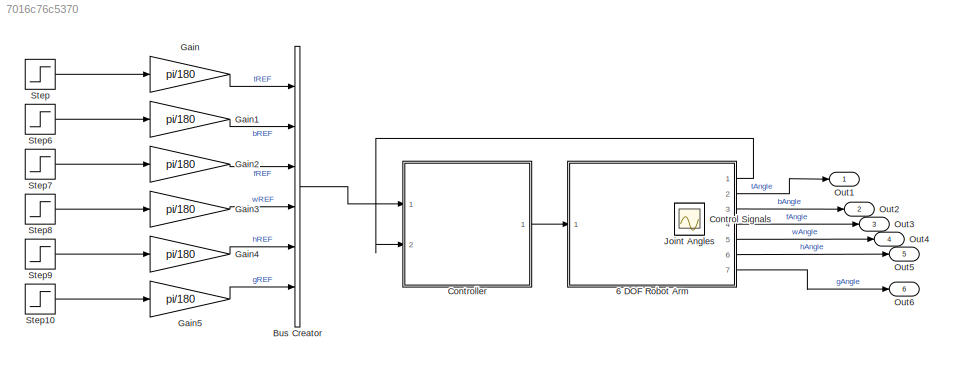
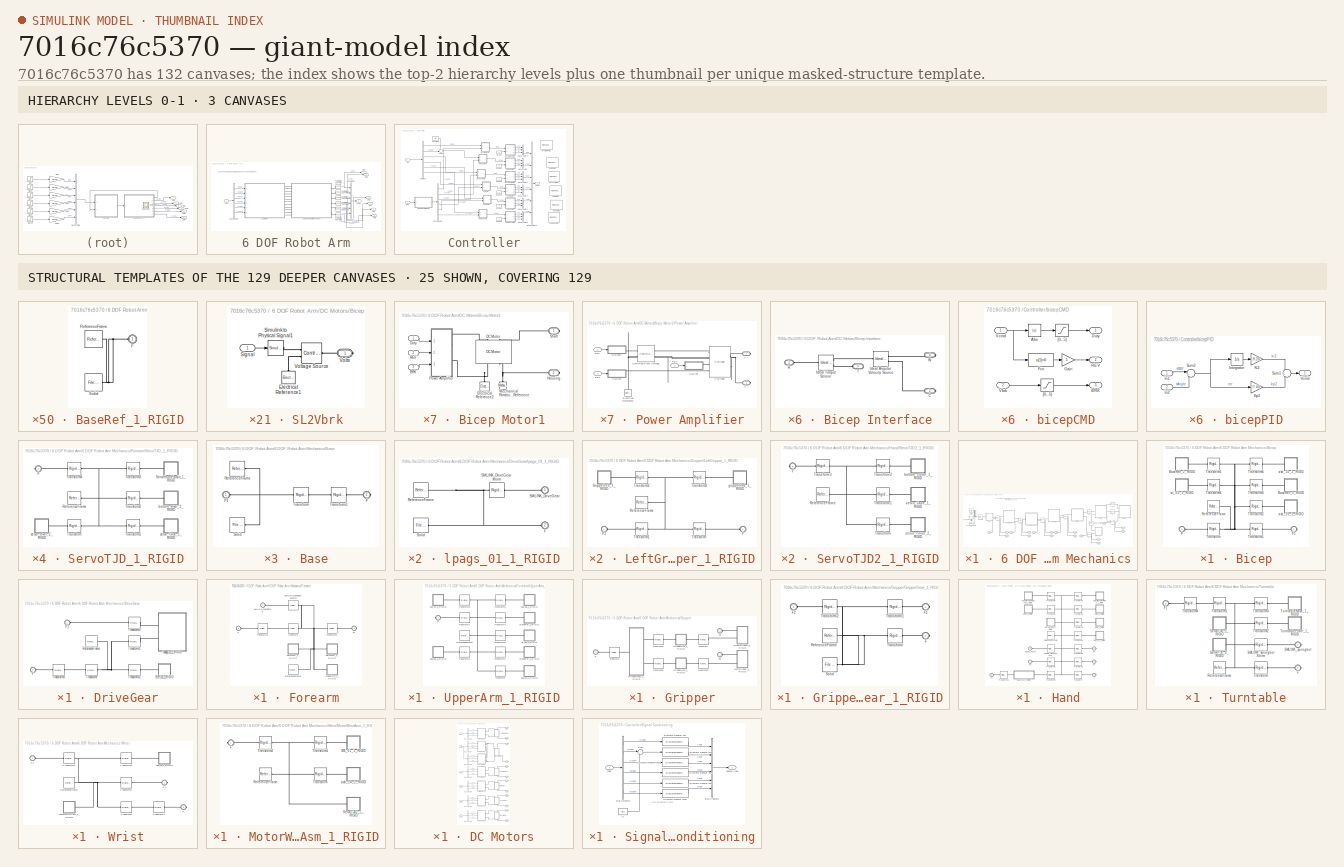
[diagram: thumbnail index - top-2 hierarchy levels (3 canvases) + 25 structural-template representatives of the remaining 129 canvases]
MODEL slx_7016c76c5370
KIND model
CONFIG AbsTol = auto
CONFIG EnableMultiTasking = on
CONFIG FixedStep = 0.0001
CONFIG MaxStep = 0.05
CONFIG MinStep = auto
CONFIG RelTol = 1e-3
CONFIG SampleTimeConstraint = Unconstrained
CONFIG Solver = ode23t
CONFIG SolverName = ode23t
CONFIG StartTime = 0.0
CONFIG StopTime = 5
WORKSPACE source: mxarray member
WORKSPACE DCMotor_J = 0.0946866703633
WORKSPACE DCMotor_K = 0.477771340295
WORKSPACE DCMotor_Kf = 0.921434142151
WORKSPACE DCMotor_L = 0.000316454712175
WORKSPACE DCMotor_R = 4.99938152603
WORKSPACE Ts = 0.1
WORKSPACE dFilt = [1 -0.1202]
WORKSPACE nFilt = [0.4399 0.4399]
BLOCK [SubSystem] 6 DOF Robot Arm
  Ports = [1, 7]
  RequestExecContextInheritance = off
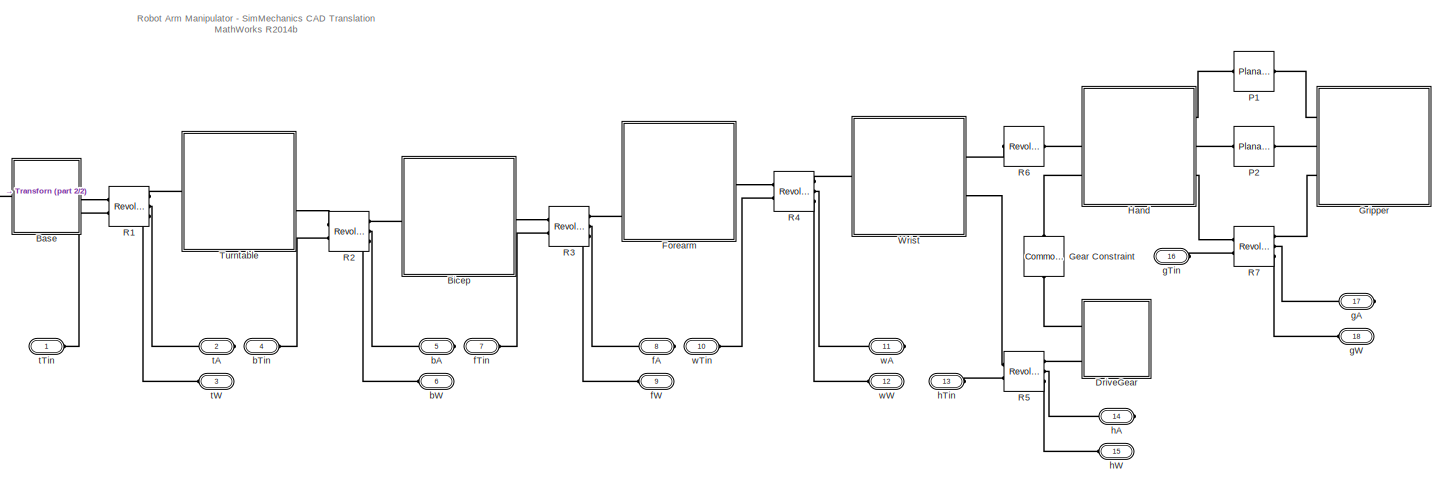
[diagram: 6 DOF Robot Arm/6 DOF Robot Arm Mechanics - part 1/2, most of the canvas]
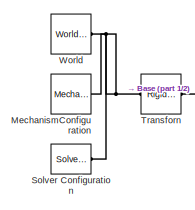
[diagram: 6 DOF Robot Arm/6 DOF Robot Arm Mechanics - part 2/2, middle left region]
BLOCK [SubSystem] 6 DOF Robot Arm/6 DOF Robot Arm Mechanics
  Ports = [0, 0, 0, 0, 0, 12, 6]
  RequestExecContextInheritance = off
BLOCK [SubSystem] 6 DOF Robot Arm/6 DOF Robot Arm Mechanics/Base
  Ports = [0, 0, 0, 0, 0, 1, 1]
  RequestExecContextInheritance = off
BLOCK [PMIOPort] 6 DOF Robot Arm/6 DOF Robot Arm Mechanics/Base/F
  Port = 2
  Side = Right
BLOCK [PMIOPort] 6 DOF Robot Arm/6 DOF Robot Arm Mechanics/Base/F1
  Side = Left
BLOCK [Reference] 6 DOF Robot Arm/6 DOF Robot Arm Mechanics/Base/ReferenceFrame  REF=sm_lib/Frames and
Transforms/Reference
Frame
  Ports = [0, 0, 0, 0, 0, 0, 1]
  SourceBlock = sm_lib/Frames and\nTransforms/Reference\nFrame
  SourceProductBaseCode = MS
  SourceType = Reference\nFrame
BLOCK [Reference] 6 DOF Robot Arm/6 DOF Robot Arm Mechanics/Base/Solid  REF=sm_lib/Body Elements/File Solid
  Ports = [0, 0, 0, 0, 0, 0, 1]
  SourceBlock = sm_lib/Body Elements/File Solid
  SourceProductBaseCode = MS
  SourceType = File Solid
BLOCK [Reference] 6 DOF Robot Arm/6 DOF Robot Arm Mechanics/Base/Transform  REF=sm_lib/Frames and
Transforms/Rigid
Transform
  Ports = [0, 0, 0, 0, 0, 1, 1]
  SourceBlock = sm_lib/Frames and\nTransforms/Rigid\nTransform
  SourceProductBaseCode = MS
  SourceType = Rigid\nTransform
BLOCK [Reference] 6 DOF Robot Arm/6 DOF Robot Arm Mechanics/Base/Transform1  REF=sm_lib/Frames and
Transforms/Rigid
Transform
  Ports = [0, 0, 0, 0, 0, 1, 1]
  SourceBlock = sm_lib/Frames and\nTransforms/Rigid\nTransform
  SourceProductBaseCode = MS
  SourceType = Rigid\nTransform
BLOCK [SubSystem] 6 DOF Robot Arm/6 DOF Robot Arm Mechanics/Bicep
  Ports = [0, 0, 0, 0, 0, 1, 1]
  RequestExecContextInheritance = off
BLOCK [SubSystem] 6 DOF Robot Arm/6 DOF Robot Arm Mechanics/Bicep/BaseRef_1_RIGID
  Ports = [0, 0, 0, 0, 0, 1]
  RequestExecContextInheritance = off
BLOCK [PMIOPort] 6 DOF Robot Arm/6 DOF Robot Arm Mechanics/Bicep/BaseRef_1_RIGID/F
  Side = Left
BLOCK [Reference] 6 DOF Robot Arm/6 DOF Robot Arm Mechanics/Bicep/BaseRef_1_RIGID/ReferenceFrame  REF=sm_lib/Frames and
Transforms/Reference
Frame
  Ports = [0, 0, 0, 0, 0, 0, 1]
  SourceBlock = sm_lib/Frames and\nTransforms/Reference\nFrame
  SourceProductBaseCode = MS
  SourceType = Reference\nFrame
BLOCK [Reference] 6 DOF Robot Arm/6 DOF Robot Arm Mechanics/Bicep/BaseRef_1_RIGID/Solid  REF=sm_lib/Body Elements/File Solid
  Ports = [0, 0, 0, 0, 0, 0, 1]
  SourceBlock = sm_lib/Body Elements/File Solid
  SourceProductBaseCode = MS
  SourceType = File Solid
BLOCK [SubSystem] 6 DOF Robot Arm/6 DOF Robot Arm Mechanics/Bicep/BaseRef_2_RIGID
  Ports = [0, 0, 0, 0, 0, 1]
  RequestExecContextInheritance = off
BLOCK [PMIOPort] 6 DOF Robot Arm/6 DOF Robot Arm Mechanics/Bicep/BaseRef_2_RIGID/F
  Side = Left
BLOCK [Reference] 6 DOF Robot Arm/6 DOF Robot Arm Mechanics/Bicep/BaseRef_2_RIGID/ReferenceFrame  REF=sm_lib/Frames and
Transforms/Reference
Frame
  Ports = [0, 0, 0, 0, 0, 0, 1]
  SourceBlock = sm_lib/Frames and\nTransforms/Reference\nFrame
  SourceProductBaseCode = MS
  SourceType = Reference\nFrame
BLOCK [Reference] 6 DOF Robot Arm/6 DOF Robot Arm Mechanics/Bicep/BaseRef_2_RIGID/Solid  REF=sm_lib/Body Elements/File Solid
  Ports = [0, 0, 0, 0, 0, 0, 1]
  SourceBlock = sm_lib/Body Elements/File Solid
  SourceProductBaseCode = MS
  SourceType = File Solid
BLOCK [PMIOPort] 6 DOF Robot Arm/6 DOF Robot Arm Mechanics/Bicep/F
  Side = Left
BLOCK [PMIOPort] 6 DOF Robot Arm/6 DOF Robot Arm Mechanics/Bicep/F1
  Port = 2
  Side = Right
BLOCK [Reference] 6 DOF Robot Arm/6 DOF Robot Arm Mechanics/Bicep/ReferenceFrame  REF=sm_lib/Frames and
Transforms/Reference
Frame
  Ports = [0, 0, 0, 0, 0, 0, 1]
  SourceBlock = sm_lib/Frames and\nTransforms/Reference\nFrame
  SourceProductBaseCode = MS
  SourceType = Reference\nFrame
BLOCK [Reference] 6 DOF Robot Arm/6 DOF Robot Arm Mechanics/Bicep/Transform  REF=sm_lib/Frames and
Transforms/Rigid
Transform
  Ports = [0, 0, 0, 0, 0, 1, 1]
  SourceBlock = sm_lib/Frames and\nTransforms/Rigid\nTransform
  SourceProductBaseCode = MS
  SourceType = Rigid\nTransform
BLOCK [Reference] 6 DOF Robot Arm/6 DOF Robot Arm Mechanics/Bicep/Transform1  REF=sm_lib/Frames and
Transforms/Rigid
Transform
  Ports = [0, 0, 0, 0, 0, 1, 1]
  SourceBlock = sm_lib/Frames and\nTransforms/Rigid\nTransform
  SourceProductBaseCode = MS
  SourceType = Rigid\nTransform
BLOCK [Reference] 6 DOF Robot Arm/6 DOF Robot Arm Mechanics/Bicep/Transform2  REF=sm_lib/Frames and
Transforms/Rigid
Transform
  Ports = [0, 0, 0, 0, 0, 1, 1]
  SourceBlock = sm_lib/Frames and\nTransforms/Rigid\nTransform
  SourceProductBaseCode = MS
  SourceType = Rigid\nTransform
BLOCK [Reference] 6 DOF Robot Arm/6 DOF Robot Arm Mechanics/Bicep/Transform3  REF=sm_lib/Frames and
Transforms/Rigid
Transform
  Ports = [0, 0, 0, 0, 0, 1, 1]
  SourceBlock = sm_lib/Frames and\nTransforms/Rigid\nTransform
  SourceProductBaseCode = MS
  SourceType = Rigid\nTransform
BLOCK [Reference] 6 DOF Robot Arm/6 DOF Robot Arm Mechanics/Bicep/Transform4  REF=sm_lib/Frames and
Transforms/Rigid
Transform
  Ports = [0, 0, 0, 0, 0, 1, 1]
  SourceBlock = sm_lib/Frames and\nTransforms/Rigid\nTransform
  SourceProductBaseCode = MS
  SourceType = Rigid\nTransform
BLOCK [Reference] 6 DOF Robot Arm/6 DOF Robot Arm Mechanics/Bicep/Transform5  REF=sm_lib/Frames and
Transforms/Rigid
Transform
  Ports = [0, 0, 0, 0, 0, 1, 1]
  SourceBlock = sm_lib/Frames and\nTransforms/Rigid\nTransform
  SourceProductBaseCode = MS
  SourceType = Rigid\nTransform
BLOCK [Reference] 6 DOF Robot Arm/6 DOF Robot Arm Mechanics/Bicep/Transform6  REF=sm_lib/Frames and
Transforms/Rigid
Transform
  Ports = [0, 0, 0, 0, 0, 1, 1]
  SourceBlock = sm_lib/Frames and\nTransforms/Rigid\nTransform
  SourceProductBaseCode = MS
  SourceType = Rigid\nTransform
BLOCK [SubSystem] 6 DOF Robot Arm/6 DOF Robot Arm Mechanics/Bicep/asb_10_1_RIGID
  Ports = [0, 0, 0, 0, 0, 1]
  RequestExecContextInheritance = off
BLOCK [PMIOPort] 6 DOF Robot Arm/6 DOF Robot Arm Mechanics/Bicep/asb_10_1_RIGID/F
  Side = Left
BLOCK [Reference] 6 DOF Robot Arm/6 DOF Robot Arm Mechanics/Bicep/asb_10_1_RIGID/ReferenceFrame  REF=sm_lib/Frames and
Transforms/Reference
Frame
  Ports = [0, 0, 0, 0, 0, 0, 1]
  SourceBlock = sm_lib/Frames and\nTransforms/Reference\nFrame
  SourceProductBaseCode = MS
  SourceType = Reference\nFrame
BLOCK [Reference] 6 DOF Robot Arm/6 DOF Robot Arm Mechanics/Bicep/asb_10_1_RIGID/Solid  REF=sm_lib/Body Elements/File Solid
  Ports = [0, 0, 0, 0, 0, 0, 1]
  SourceBlock = sm_lib/Body Elements/File Solid
  SourceProductBaseCode = MS
  SourceType = File Solid
BLOCK [SubSystem] 6 DOF Robot Arm/6 DOF Robot Arm Mechanics/Bicep/asb_10_2_RIGID
  Ports = [0, 0, 0, 0, 0, 1]
  RequestExecContextInheritance = off
BLOCK [PMIOPort] 6 DOF Robot Arm/6 DOF Robot Arm Mechanics/Bicep/asb_10_2_RIGID/F
  Side = Left
BLOCK [Reference] 6 DOF Robot Arm/6 DOF Robot Arm Mechanics/Bicep/asb_10_2_RIGID/ReferenceFrame  REF=sm_lib/Frames and
Transforms/Reference
Frame
  Ports = [0, 0, 0, 0, 0, 0, 1]
  SourceBlock = sm_lib/Frames and\nTransforms/Reference\nFrame
  SourceProductBaseCode = MS
  SourceType = Reference\nFrame
BLOCK [Reference] 6 DOF Robot Arm/6 DOF Robot Arm Mechanics/Bicep/asb_10_2_RIGID/Solid  REF=sm_lib/Body Elements/File Solid
  Ports = [0, 0, 0, 0, 0, 0, 1]
  SourceBlock = sm_lib/Body Elements/File Solid
  SourceProductBaseCode = MS
  SourceType = File Solid
BLOCK [SubSystem] 6 DOF Robot Arm/6 DOF Robot Arm Mechanics/Bicep/at_05_1_RIGID
  Ports = [0, 0, 0, 0, 0, 1]
  RequestExecContextInheritance = off
BLOCK [PMIOPort] 6 DOF Robot Arm/6 DOF Robot Arm Mechanics/Bicep/at_05_1_RIGID/F
  Side = Left
BLOCK [Reference] 6 DOF Robot Arm/6 DOF Robot Arm Mechanics/Bicep/at_05_1_RIGID/ReferenceFrame  REF=sm_lib/Frames and
Transforms/Reference
Frame
  Ports = [0, 0, 0, 0, 0, 0, 1]
  SourceBlock = sm_lib/Frames and\nTransforms/Reference\nFrame
  SourceProductBaseCode = MS
  SourceType = Reference\nFrame
BLOCK [Reference] 6 DOF Robot Arm/6 DOF Robot Arm Mechanics/Bicep/at_05_1_RIGID/Solid  REF=sm_lib/Body Elements/File Solid
  Ports = [0, 0, 0, 0, 0, 0, 1]
  SourceBlock = sm_lib/Body Elements/File Solid
  SourceProductBaseCode = MS
  SourceType = File Solid
BLOCK [SubSystem] 6 DOF Robot Arm/6 DOF Robot Arm Mechanics/DriveGear
  Ports = [0, 0, 0, 0, 0, 2]
  RequestExecContextInheritance = off
BLOCK [SubSystem] 6 DOF Robot Arm/6 DOF Robot Arm Mechanics/DriveGear/BB_03_1_RIGID
  Ports = [0, 0, 0, 0, 0, 1]
  RequestExecContextInheritance = off
BLOCK [PMIOPort] 6 DOF Robot Arm/6 DOF Robot Arm Mechanics/DriveGear/BB_03_1_RIGID/F
  Side = Left
BLOCK [Reference] 6 DOF Robot Arm/6 DOF Robot Arm Mechanics/DriveGear/BB_03_1_RIGID/ReferenceFrame  REF=sm_lib/Frames and
Transforms/Reference
Frame
  Ports = [0, 0, 0, 0, 0, 0, 1]
  SourceBlock = sm_lib/Frames and\nTransforms/Reference\nFrame
  SourceProductBaseCode = MS
  SourceType = Reference\nFrame
BLOCK [Reference] 6 DOF Robot Arm/6 DOF Robot Arm Mechanics/DriveGear/BB_03_1_RIGID/Solid  REF=sm_lib/Body Elements/File Solid
  Ports = [0, 0, 0, 0, 0, 0, 1]
  SourceBlock = sm_lib/Body Elements/File Solid
  SourceProductBaseCode = MS
  SourceType = File Solid
BLOCK [PMIOPort] 6 DOF Robot Arm/6 DOF Robot Arm Mechanics/DriveGear/F
  Port = 2
  Side = Left
BLOCK [PMIOPort] 6 DOF Robot Arm/6 DOF Robot Arm Mechanics/DriveGear/F1
  Side = Left
BLOCK [Reference] 6 DOF Robot Arm/6 DOF Robot Arm Mechanics/DriveGear/ReferenceFrame  REF=sm_lib/Frames and
Transforms/Reference
Frame
  Ports = [0, 0, 0, 0, 0, 0, 1]
  SourceBlock = sm_lib/Frames and\nTransforms/Reference\nFrame
  SourceProductBaseCode = MS
  SourceType = Reference\nFrame
BLOCK [Reference] 6 DOF Robot Arm/6 DOF Robot Arm Mechanics/DriveGear/Transform  REF=sm_lib/Frames and
Transforms/Rigid
Transform
  Ports = [0, 0, 0, 0, 0, 1, 1]
  SourceBlock = sm_lib/Frames and\nTransforms/Rigid\nTransform
  SourceProductBaseCode = MS
  SourceType = Rigid\nTransform
BLOCK [Reference] 6 DOF Robot Arm/6 DOF Robot Arm Mechanics/DriveGear/Transform1  REF=sm_lib/Frames and
Transforms/Rigid
Transform
  Ports = [0, 0, 0, 0, 0, 1, 1]
  SourceBlock = sm_lib/Frames and\nTransforms/Rigid\nTransform
  SourceProductBaseCode = MS
  SourceType = Rigid\nTransform
BLOCK [Reference] 6 DOF Robot Arm/6 DOF Robot Arm Mechanics/DriveGear/Transform2  REF=sm_lib/Frames and
Transforms/Rigid
Transform
  Ports = [0, 0, 0, 0, 0, 1, 1]
  SourceBlock = sm_lib/Frames and\nTransforms/Rigid\nTransform
  SourceProductBaseCode = MS
  SourceType = Rigid\nTransform
BLOCK [Reference] 6 DOF Robot Arm/6 DOF Robot Arm Mechanics/DriveGear/Transform3  REF=sm_lib/Frames and
Transforms/Rigid
Transform
  Ports = [0, 0, 0, 0, 0, 1, 1]
  SourceBlock = sm_lib/Frames and\nTransforms/Rigid\nTransform
  SourceProductBaseCode = MS
  SourceType = Rigid\nTransform
BLOCK [Reference] 6 DOF Robot Arm/6 DOF Robot Arm Mechanics/DriveGear/Transform4  REF=sm_lib/Frames and
Transforms/Rigid
Transform
  Ports = [0, 0, 0, 0, 0, 1, 1]
  SourceBlock = sm_lib/Frames and\nTransforms/Rigid\nTransform
  SourceProductBaseCode = MS
  SourceType = Rigid\nTransform
BLOCK [SubSystem] 6 DOF Robot Arm/6 DOF Robot Arm Mechanics/DriveGear/lpags_01_1_RIGID
  Ports = [0, 0, 0, 0, 0, 2]
  RequestExecContextInheritance = off
BLOCK [PMIOPort] 6 DOF Robot Arm/6 DOF Robot Arm Mechanics/DriveGear/lpags_01_1_RIGID/F
  Port = 2
  Side = Left
BLOCK [Reference] 6 DOF Robot Arm/6 DOF Robot Arm Mechanics/DriveGear/lpags_01_1_RIGID/ReferenceFrame  REF=sm_lib/Frames and
Transforms/Reference
Frame
  Ports = [0, 0, 0, 0, 0, 0, 1]
  SourceBlock = sm_lib/Frames and\nTransforms/Reference\nFrame
  SourceProductBaseCode = MS
  SourceType = Reference\nFrame
BLOCK [PMIOPort] 6 DOF Robot Arm/6 DOF Robot Arm Mechanics/DriveGear/lpags_01_1_RIGID/SMLINK_DriveGear
  Side = Left
BLOCK [Reference] 6 DOF Robot Arm/6 DOF Robot Arm Mechanics/DriveGear/lpags_01_1_RIGID/SMLINK_DriveGearXform  REF=sm_lib/Frames and
Transforms/Rigid
Transform
  Ports = [0, 0, 0, 0, 0, 1, 1]
  SourceBlock = sm_lib/Frames and\nTransforms/Rigid\nTransform
  SourceProductBaseCode = MS
  SourceType = Rigid\nTransform
BLOCK [Reference] 6 DOF Robot Arm/6 DOF Robot Arm Mechanics/DriveGear/lpags_01_1_RIGID/Solid  REF=sm_lib/Body Elements/File Solid
  Ports = [0, 0, 0, 0, 0, 0, 1]
  SourceBlock = sm_lib/Body Elements/File Solid
  SourceProductBaseCode = MS
  SourceType = File Solid
BLOCK [SubSystem] 6 DOF Robot Arm/6 DOF Robot Arm Mechanics/Forearm
  Ports = [0, 0, 0, 0, 0, 2, 1]
  RequestExecContextInheritance = off
BLOCK [PMIOPort] 6 DOF Robot Arm/6 DOF Robot Arm Mechanics/Forearm/F
  Port = 2
  Side = Left
BLOCK [PMIOPort] 6 DOF Robot Arm/6 DOF Robot Arm Mechanics/Forearm/F1
  Port = 3
  Side = Right
BLOCK [Reference] 6 DOF Robot Arm/6 DOF Robot Arm Mechanics/Forearm/ReferenceFrame  REF=sm_lib/Frames and
Transforms/Reference
Frame
  Ports = [0, 0, 0, 0, 0, 0, 1]
  SourceBlock = sm_lib/Frames and\nTransforms/Reference\nFrame
  SourceProductBaseCode = MS
  SourceType = Reference\nFrame
BLOCK [PMIOPort] 6 DOF Robot Arm/6 DOF Robot Arm Mechanics/Forearm/SMLINK_sspringtop
  Side = Left
BLOCK [Reference] 6 DOF Robot Arm/6 DOF Robot Arm Mechanics/Forearm/SMLINK_sspringtopXform  REF=sm_lib/Frames and
Transforms/Rigid
Transform
  Ports = [0, 0, 0, 0, 0, 1, 1]
  SourceBlock = sm_lib/Frames and\nTransforms/Rigid\nTransform
  SourceProductBaseCode = MS
  SourceType = Rigid\nTransform
BLOCK [SubSystem] 6 DOF Robot Arm/6 DOF Robot Arm Mechanics/Forearm/ServoTJD_1_RIGID
  Ports = [0, 0, 0, 0, 0, 0, 1]
  RequestExecContextInheritance = off
BLOCK [PMIOPort] 6 DOF Robot Arm/6 DOF Robot Arm Mechanics/Forearm/ServoTJD_1_RIGID/F
  Side = Right
BLOCK [Reference] 6 DOF Robot Arm/6 DOF Robot Arm Mechanics/Forearm/ServoTJD_1_RIGID/ReferenceFrame  REF=sm_lib/Frames and
Transforms/Reference
Frame
  Ports = [0, 0, 0, 0, 0, 0, 1]
  SourceBlock = sm_lib/Frames and\nTransforms/Reference\nFrame
  SourceProductBaseCode = MS
  SourceType = Reference\nFrame
BLOCK [SubSystem] 6 DOF Robot Arm/6 DOF Robot Arm Mechanics/Forearm/ServoTJD_1_RIGID/ServoHornPlastic_1_RIGID
  Ports = [0, 0, 0, 0, 0, 1]
  RequestExecContextInheritance = off
BLOCK [PMIOPort] 6 DOF Robot Arm/6 DOF Robot Arm Mechanics/Forearm/ServoTJD_1_RIGID/ServoHornPlastic_1_RIGID/F
  Side = Left
BLOCK [Reference] 6 DOF Robot Arm/6 DOF Robot Arm Mechanics/Forearm/ServoTJD_1_RIGID/ServoHornPlastic_1_RIGID/ReferenceFrame  REF=sm_lib/Frames and
Transforms/Reference
Frame
  Ports = [0, 0, 0, 0, 0, 0, 1]
  SourceBlock = sm_lib/Frames and\nTransforms/Reference\nFrame
  SourceProductBaseCode = MS
  SourceType = Reference\nFrame
BLOCK [Reference] 6 DOF Robot Arm/6 DOF Robot Arm Mechanics/Forearm/ServoTJD_1_RIGID/ServoHornPlastic_1_RIGID/Solid  REF=sm_lib/Body Elements/File Solid
  Ports = [0, 0, 0, 0, 0, 0, 1]
  SourceBlock = sm_lib/Body Elements/File Solid
  SourceProductBaseCode = MS
  SourceType = File Solid
BLOCK [Reference] 6 DOF Robot Arm/6 DOF Robot Arm Mechanics/Forearm/ServoTJD_1_RIGID/Transform  REF=sm_lib/Frames and
Transforms/Rigid
Transform
  Ports = [0, 0, 0, 0, 0, 1, 1]
  SourceBlock = sm_lib/Frames and\nTransforms/Rigid\nTransform
  SourceProductBaseCode = MS
  SourceType = Rigid\nTransform
BLOCK [Reference] 6 DOF Robot Arm/6 DOF Robot Arm Mechanics/Forearm/ServoTJD_1_RIGID/Transform1  REF=sm_lib/Frames and
Transforms/Rigid
Transform
  Ports = [0, 0, 0, 0, 0, 1, 1]
  SourceBlock = sm_lib/Frames and\nTransforms/Rigid\nTransform
  SourceProductBaseCode = MS
  SourceType = Rigid\nTransform
BLOCK [Reference] 6 DOF Robot Arm/6 DOF Robot Arm Mechanics/Forearm/ServoTJD_1_RIGID/Transform2  REF=sm_lib/Frames and
Transforms/Rigid
Transform
  Ports = [0, 0, 0, 0, 0, 1, 1]
  SourceBlock = sm_lib/Frames and\nTransforms/Rigid\nTransform
  SourceProductBaseCode = MS
  SourceType = Rigid\nTransform
BLOCK [Reference] 6 DOF Robot Arm/6 DOF Robot Arm Mechanics/Forearm/ServoTJD_1_RIGID/Transform3  REF=sm_lib/Frames and
Transforms/Rigid
Transform
  Ports = [0, 0, 0, 0, 0, 1, 1]
  SourceBlock = sm_lib/Frames and\nTransforms/Rigid\nTransform
  SourceProductBaseCode = MS
  SourceType = Rigid\nTransform
BLOCK [Reference] 6 DOF Robot Arm/6 DOF Robot Arm Mechanics/Forearm/ServoTJD_1_RIGID/Transform4  REF=sm_lib/Frames and
Transforms/Rigid
Transform
  Ports = [0, 0, 0, 0, 0, 1, 1]
  SourceBlock = sm_lib/Frames and\nTransforms/Rigid\nTransform
  SourceProductBaseCode = MS
  SourceType = Rigid\nTransform
BLOCK [SubSystem] 6 DOF Robot Arm/6 DOF Robot Arm Mechanics/Forearm/ServoTJD_1_RIGID/bottom_cover_1_RIGID
  Ports = [0, 0, 0, 0, 0, 1]
  RequestExecContextInheritance = off
BLOCK [PMIOPort] 6 DOF Robot Arm/6 DOF Robot Arm Mechanics/Forearm/ServoTJD_1_RIGID/bottom_cover_1_RIGID/F
  Side = Left
BLOCK [Reference] 6 DOF Robot Arm/6 DOF Robot Arm Mechanics/Forearm/ServoTJD_1_RIGID/bottom_cover_1_RIGID/ReferenceFrame  REF=sm_lib/Frames and
Transforms/Reference
Frame
  Ports = [0, 0, 0, 0, 0, 0, 1]
  SourceBlock = sm_lib/Frames and\nTransforms/Reference\nFrame
  SourceProductBaseCode = MS
  SourceType = Reference\nFrame
BLOCK [Reference] 6 DOF Robot Arm/6 DOF Robot Arm Mechanics/Forearm/ServoTJD_1_RIGID/bottom_cover_1_RIGID/Solid  REF=sm_lib/Body Elements/File Solid
  Ports = [0, 0, 0, 0, 0, 0, 1]
  SourceBlock = sm_lib/Body Elements/File Solid
  SourceProductBaseCode = MS
  SourceType = File Solid
BLOCK [SubSystem] 6 DOF Robot Arm/6 DOF Robot Arm Mechanics/Forearm/ServoTJD_1_RIGID/servo_Case_1_RIGID
  Ports = [0, 0, 0, 0, 0, 1]
  RequestExecContextInheritance = off
BLOCK [PMIOPort] 6 DOF Robot Arm/6 DOF Robot Arm Mechanics/Forearm/ServoTJD_1_RIGID/servo_Case_1_RIGID/F
  Side = Left
BLOCK [Reference] 6 DOF Robot Arm/6 DOF Robot Arm Mechanics/Forearm/ServoTJD_1_RIGID/servo_Case_1_RIGID/ReferenceFrame  REF=sm_lib/Frames and
Transforms/Reference
Frame
  Ports = [0, 0, 0, 0, 0, 0, 1]
  SourceBlock = sm_lib/Frames and\nTransforms/Reference\nFrame
  SourceProductBaseCode = MS
  SourceType = Reference\nFrame
BLOCK [Reference] 6 DOF Robot Arm/6 DOF Robot Arm Mechanics/Forearm/ServoTJD_1_RIGID/servo_Case_1_RIGID/Solid  REF=sm_lib/Body Elements/File Solid
  Ports = [0, 0, 0, 0, 0, 0, 1]
  SourceBlock = sm_lib/Body Elements/File Solid
  SourceProductBaseCode = MS
  SourceType = File Solid
BLOCK [SubSystem] 6 DOF Robot Arm/6 DOF Robot Arm Mechanics/Forearm/ServoTJD_1_RIGID/servo_cover_2_RIGID
  Ports = [0, 0, 0, 0, 0, 1]
  RequestExecContextInheritance = off
BLOCK [PMIOPort] 6 DOF Robot Arm/6 DOF Robot Arm Mechanics/Forearm/ServoTJD_1_RIGID/servo_cover_2_RIGID/F
  Side = Left
BLOCK [Reference] 6 DOF Robot Arm/6 DOF Robot Arm Mechanics/Forearm/ServoTJD_1_RIGID/servo_cover_2_RIGID/ReferenceFrame  REF=sm_lib/Frames and
Transforms/Reference
Frame
  Ports = [0, 0, 0, 0, 0, 0, 1]
  SourceBlock = sm_lib/Frames and\nTransforms/Reference\nFrame
  SourceProductBaseCode = MS
  SourceType = Reference\nFrame
BLOCK [Reference] 6 DOF Robot Arm/6 DOF Robot Arm Mechanics/Forearm/ServoTJD_1_RIGID/servo_cover_2_RIGID/Solid  REF=sm_lib/Body Elements/File Solid
  Ports = [0, 0, 0, 0, 0, 0, 1]
  SourceBlock = sm_lib/Body Elements/File Solid
  SourceProductBaseCode = MS
  SourceType = File Solid
BLOCK [SubSystem] 6 DOF Robot Arm/6 DOF Robot Arm Mechanics/Forearm/ServoTJD_2_RIGID
  Ports = [0, 0, 0, 0, 0, 0, 1]
  RequestExecContextInheritance = off
BLOCK [PMIOPort] 6 DOF Robot Arm/6 DOF Robot Arm Mechanics/Forearm/ServoTJD_2_RIGID/F
  Side = Right
BLOCK [Reference] 6 DOF Robot Arm/6 DOF Robot Arm Mechanics/Forearm/ServoTJD_2_RIGID/ReferenceFrame  REF=sm_lib/Frames and
Transforms/Reference
Frame
  Ports = [0, 0, 0, 0, 0, 0, 1]
  SourceBlock = sm_lib/Frames and\nTransforms/Reference\nFrame
  SourceProductBaseCode = MS
  SourceType = Reference\nFrame
BLOCK [SubSystem] 6 DOF Robot Arm/6 DOF Robot Arm Mechanics/Forearm/ServoTJD_2_RIGID/ServoHornPlastic_1_RIGID
  Ports = [0, 0, 0, 0, 0, 1]
  RequestExecContextInheritance = off
BLOCK [PMIOPort] 6 DOF Robot Arm/6 DOF Robot Arm Mechanics/Forearm/ServoTJD_2_RIGID/ServoHornPlastic_1_RIGID/F
  Side = Left
BLOCK [Reference] 6 DOF Robot Arm/6 DOF Robot Arm Mechanics/Forearm/ServoTJD_2_RIGID/ServoHornPlastic_1_RIGID/ReferenceFrame  REF=sm_lib/Frames and
Transforms/Reference
Frame
  Ports = [0, 0, 0, 0, 0, 0, 1]
  SourceBlock = sm_lib/Frames and\nTransforms/Reference\nFrame
  SourceProductBaseCode = MS
  SourceType = Reference\nFrame
BLOCK [Reference] 6 DOF Robot Arm/6 DOF Robot Arm Mechanics/Forearm/ServoTJD_2_RIGID/ServoHornPlastic_1_RIGID/Solid  REF=sm_lib/Body Elements/File Solid
  Ports = [0, 0, 0, 0, 0, 0, 1]
  SourceBlock = sm_lib/Body Elements/File Solid
  SourceProductBaseCode = MS
  SourceType = File Solid
BLOCK [Reference] 6 DOF Robot Arm/6 DOF Robot Arm Mechanics/Forearm/ServoTJD_2_RIGID/Transform  REF=sm_lib/Frames and
Transforms/Rigid
Transform
  Ports = [0, 0, 0, 0, 0, 1, 1]
  SourceBlock = sm_lib/Frames and\nTransforms/Rigid\nTransform
  SourceProductBaseCode = MS
  SourceType = Rigid\nTransform
BLOCK [Reference] 6 DOF Robot Arm/6 DOF Robot Arm Mechanics/Forearm/ServoTJD_2_RIGID/Transform1  REF=sm_lib/Frames and
Transforms/Rigid
Transform
  Ports = [0, 0, 0, 0, 0, 1, 1]
  SourceBlock = sm_lib/Frames and\nTransforms/Rigid\nTransform
  SourceProductBaseCode = MS
  SourceType = Rigid\nTransform
BLOCK [Reference] 6 DOF Robot Arm/6 DOF Robot Arm Mechanics/Forearm/ServoTJD_2_RIGID/Transform2  REF=sm_lib/Frames and
Transforms/Rigid
Transform
  Ports = [0, 0, 0, 0, 0, 1, 1]
  SourceBlock = sm_lib/Frames and\nTransforms/Rigid\nTransform
  SourceProductBaseCode = MS
  SourceType = Rigid\nTransform
BLOCK [Reference] 6 DOF Robot Arm/6 DOF Robot Arm Mechanics/Forearm/ServoTJD_2_RIGID/Transform3  REF=sm_lib/Frames and
Transforms/Rigid
Transform
  Ports = [0, 0, 0, 0, 0, 1, 1]
  SourceBlock = sm_lib/Frames and\nTransforms/Rigid\nTransform
  SourceProductBaseCode = MS
  SourceType = Rigid\nTransform
BLOCK [Reference] 6 DOF Robot Arm/6 DOF Robot Arm Mechanics/Forearm/ServoTJD_2_RIGID/Transform4  REF=sm_lib/Frames and
Transforms/Rigid
Transform
  Ports = [0, 0, 0, 0, 0, 1, 1]
  SourceBlock = sm_lib/Frames and\nTransforms/Rigid\nTransform
  SourceProductBaseCode = MS
  SourceType = Rigid\nTransform
BLOCK [SubSystem] 6 DOF Robot Arm/6 DOF Robot Arm Mechanics/Forearm/ServoTJD_2_RIGID/bottom_cover_1_RIGID
  Ports = [0, 0, 0, 0, 0, 1]
  RequestExecContextInheritance = off
BLOCK [PMIOPort] 6 DOF Robot Arm/6 DOF Robot Arm Mechanics/Forearm/ServoTJD_2_RIGID/bottom_cover_1_RIGID/F
  Side = Left
BLOCK [Reference] 6 DOF Robot Arm/6 DOF Robot Arm Mechanics/Forearm/ServoTJD_2_RIGID/bottom_cover_1_RIGID/ReferenceFrame  REF=sm_lib/Frames and
Transforms/Reference
Frame
  Ports = [0, 0, 0, 0, 0, 0, 1]
  SourceBlock = sm_lib/Frames and\nTransforms/Reference\nFrame
  SourceProductBaseCode = MS
  SourceType = Reference\nFrame
BLOCK [Reference] 6 DOF Robot Arm/6 DOF Robot Arm Mechanics/Forearm/ServoTJD_2_RIGID/bottom_cover_1_RIGID/Solid  REF=sm_lib/Body Elements/File Solid
  Ports = [0, 0, 0, 0, 0, 0, 1]
  SourceBlock = sm_lib/Body Elements/File Solid
  SourceProductBaseCode = MS
  SourceType = File Solid
BLOCK [SubSystem] 6 DOF Robot Arm/6 DOF Robot Arm Mechanics/Forearm/ServoTJD_2_RIGID/servo_Case_1_RIGID
  Ports = [0, 0, 0, 0, 0, 1]
  RequestExecContextInheritance = off
BLOCK [PMIOPort] 6 DOF Robot Arm/6 DOF Robot Arm Mechanics/Forearm/ServoTJD_2_RIGID/servo_Case_1_RIGID/F
  Side = Left
BLOCK [Reference] 6 DOF Robot Arm/6 DOF Robot Arm Mechanics/Forearm/ServoTJD_2_RIGID/servo_Case_1_RIGID/ReferenceFrame  REF=sm_lib/Frames and
Transforms/Reference
Frame
  Ports = [0, 0, 0, 0, 0, 0, 1]
  SourceBlock = sm_lib/Frames and\nTransforms/Reference\nFrame
  SourceProductBaseCode = MS
  SourceType = Reference\nFrame
BLOCK [Reference] 6 DOF Robot Arm/6 DOF Robot Arm Mechanics/Forearm/ServoTJD_2_RIGID/servo_Case_1_RIGID/Solid  REF=sm_lib/Body Elements/File Solid
  Ports = [0, 0, 0, 0, 0, 0, 1]
  SourceBlock = sm_lib/Body Elements/File Solid
  SourceProductBaseCode = MS
  SourceType = File Solid
BLOCK [SubSystem] 6 DOF Robot Arm/6 DOF Robot Arm Mechanics/Forearm/ServoTJD_2_RIGID/servo_cover_2_RIGID
  Ports = [0, 0, 0, 0, 0, 1]
  RequestExecContextInheritance = off
BLOCK [PMIOPort] 6 DOF Robot Arm/6 DOF Robot Arm Mechanics/Forearm/ServoTJD_2_RIGID/servo_cover_2_RIGID/F
  Side = Left
BLOCK [Reference] 6 DOF Robot Arm/6 DOF Robot Arm Mechanics/Forearm/ServoTJD_2_RIGID/servo_cover_2_RIGID/ReferenceFrame  REF=sm_lib/Frames and
Transforms/Reference
Frame
  Ports = [0, 0, 0, 0, 0, 0, 1]
  SourceBlock = sm_lib/Frames and\nTransforms/Reference\nFrame
  SourceProductBaseCode = MS
  SourceType = Reference\nFrame
BLOCK [Reference] 6 DOF Robot Arm/6 DOF Robot Arm Mechanics/Forearm/ServoTJD_2_RIGID/servo_cover_2_RIGID/Solid  REF=sm_lib/Body Elements/File Solid
  Ports = [0, 0, 0, 0, 0, 0, 1]
  SourceBlock = sm_lib/Body Elements/File Solid
  SourceProductBaseCode = MS
  SourceType = File Solid
BLOCK [Reference] 6 DOF Robot Arm/6 DOF Robot Arm Mechanics/Forearm/Transform  REF=sm_lib/Frames and
Transforms/Rigid
Transform
  Ports = [0, 0, 0, 0, 0, 1, 1]
  SourceBlock = sm_lib/Frames and\nTransforms/Rigid\nTransform
  SourceProductBaseCode = MS
  SourceType = Rigid\nTransform
BLOCK [Reference] 6 DOF Robot Arm/6 DOF Robot Arm Mechanics/Forearm/Transform1  REF=sm_lib/Frames and
Transforms/Rigid
Transform
  Ports = [0, 0, 0, 0, 0, 1, 1]
  SourceBlock = sm_lib/Frames and\nTransforms/Rigid\nTransform
  SourceProductBaseCode = MS
  SourceType = Rigid\nTransform
BLOCK [Reference] 6 DOF Robot Arm/6 DOF Robot Arm Mechanics/Forearm/Transform2  REF=sm_lib/Frames and
Transforms/Rigid
Transform
  Ports = [0, 0, 0, 0, 0, 1, 1]
  SourceBlock = sm_lib/Frames and\nTransforms/Rigid\nTransform
  SourceProductBaseCode = MS
  SourceType = Rigid\nTransform
BLOCK [SubSystem] 6 DOF Robot Arm/6 DOF Robot Arm Mechanics/Forearm/UpperArm_1_RIGID
  Ports = [0, 0, 0, 0, 0, 0, 1]
  RequestExecContextInheritance = off
BLOCK [SubSystem] 6 DOF Robot Arm/6 DOF Robot Arm Mechanics/Forearm/UpperArm_1_RIGID/BaseRef_1_RIGID
  Ports = [0, 0, 0, 0, 0, 1]
  RequestExecContextInheritance = off
BLOCK [PMIOPort] 6 DOF Robot Arm/6 DOF Robot Arm Mechanics/Forearm/UpperArm_1_RIGID/BaseRef_1_RIGID/F
  Side = Left
BLOCK [Reference] 6 DOF Robot Arm/6 DOF Robot Arm Mechanics/Forearm/UpperArm_1_RIGID/BaseRef_1_RIGID/ReferenceFrame  REF=sm_lib/Frames and
Transforms/Reference
Frame
  Ports = [0, 0, 0, 0, 0, 0, 1]
  SourceBlock = sm_lib/Frames and\nTransforms/Reference\nFrame
  SourceProductBaseCode = MS
  SourceType = Reference\nFrame
BLOCK [Reference] 6 DOF Robot Arm/6 DOF Robot Arm Mechanics/Forearm/UpperArm_1_RIGID/BaseRef_1_RIGID/Solid  REF=sm_lib/Body Elements/File Solid
  Ports = [0, 0, 0, 0, 0, 0, 1]
  SourceBlock = sm_lib/Body Elements/File Solid
  SourceProductBaseCode = MS
  SourceType = File Solid
BLOCK [SubSystem] 6 DOF Robot Arm/6 DOF Robot Arm Mechanics/Forearm/UpperArm_1_RIGID/BaseRef_2_RIGID
  Ports = [0, 0, 0, 0, 0, 1]
  RequestExecContextInheritance = off
BLOCK [PMIOPort] 6 DOF Robot Arm/6 DOF Robot Arm Mechanics/Forearm/UpperArm_1_RIGID/BaseRef_2_RIGID/F
  Side = Left
BLOCK [Reference] 6 DOF Robot Arm/6 DOF Robot Arm Mechanics/Forearm/UpperArm_1_RIGID/BaseRef_2_RIGID/ReferenceFrame  REF=sm_lib/Frames and
Transforms/Reference
Frame
  Ports = [0, 0, 0, 0, 0, 0, 1]
  SourceBlock = sm_lib/Frames and\nTransforms/Reference\nFrame
  SourceProductBaseCode = MS
  SourceType = Reference\nFrame
BLOCK [Reference] 6 DOF Robot Arm/6 DOF Robot Arm Mechanics/Forearm/UpperArm_1_RIGID/BaseRef_2_RIGID/Solid  REF=sm_lib/Body Elements/File Solid
  Ports = [0, 0, 0, 0, 0, 0, 1]
  SourceBlock = sm_lib/Body Elements/File Solid
  SourceProductBaseCode = MS
  SourceType = File Solid
BLOCK [PMIOPort] 6 DOF Robot Arm/6 DOF Robot Arm Mechanics/Forearm/UpperArm_1_RIGID/F
  Side = Right
BLOCK [Reference] 6 DOF Robot Arm/6 DOF Robot Arm Mechanics/Forearm/UpperArm_1_RIGID/ReferenceFrame  REF=sm_lib/Frames and
Transforms/Reference
Frame
  Ports = [0, 0, 0, 0, 0, 0, 1]
  SourceBlock = sm_lib/Frames and\nTransforms/Reference\nFrame
  SourceProductBaseCode = MS
  SourceType = Reference\nFrame
BLOCK [Reference] 6 DOF Robot Arm/6 DOF Robot Arm Mechanics/Forearm/UpperArm_1_RIGID/Transform  REF=sm_lib/Frames and
Transforms/Rigid
Transform
  Ports = [0, 0, 0, 0, 0, 1, 1]
  SourceBlock = sm_lib/Frames and\nTransforms/Rigid\nTransform
  SourceProductBaseCode = MS
  SourceType = Rigid\nTransform
BLOCK [Reference] 6 DOF Robot Arm/6 DOF Robot Arm Mechanics/Forearm/UpperArm_1_RIGID/Transform1  REF=sm_lib/Frames and
Transforms/Rigid
Transform
  Ports = [0, 0, 0, 0, 0, 1, 1]
  SourceBlock = sm_lib/Frames and\nTransforms/Rigid\nTransform
  SourceProductBaseCode = MS
  SourceType = Rigid\nTransform
BLOCK [Reference] 6 DOF Robot Arm/6 DOF Robot Arm Mechanics/Forearm/UpperArm_1_RIGID/Transform2  REF=sm_lib/Frames and
Transforms/Rigid
Transform
  Ports = [0, 0, 0, 0, 0, 1, 1]
  SourceBlock = sm_lib/Frames and\nTransforms/Rigid\nTransform
  SourceProductBaseCode = MS
  SourceType = Rigid\nTransform
BLOCK [Reference] 6 DOF Robot Arm/6 DOF Robot Arm Mechanics/Forearm/UpperArm_1_RIGID/Transform3  REF=sm_lib/Frames and
Transforms/Rigid
Transform
  Ports = [0, 0, 0, 0, 0, 1, 1]
  SourceBlock = sm_lib/Frames and\nTransforms/Rigid\nTransform
  SourceProductBaseCode = MS
  SourceType = Rigid\nTransform
BLOCK [Reference] 6 DOF Robot Arm/6 DOF Robot Arm Mechanics/Forearm/UpperArm_1_RIGID/Transform4  REF=sm_lib/Frames and
Transforms/Rigid
Transform
  Ports = [0, 0, 0, 0, 0, 1, 1]
  SourceBlock = sm_lib/Frames and\nTransforms/Rigid\nTransform
  SourceProductBaseCode = MS
  SourceType = Rigid\nTransform
BLOCK [Reference] 6 DOF Robot Arm/6 DOF Robot Arm Mechanics/Forearm/UpperArm_1_RIGID/Transform5  REF=sm_lib/Frames and
Transforms/Rigid
Transform
  Ports = [0, 0, 0, 0, 0, 1, 1]
  SourceBlock = sm_lib/Frames and\nTransforms/Rigid\nTransform
  SourceProductBaseCode = MS
  SourceType = Rigid\nTransform
BLOCK [Reference] 6 DOF Robot Arm/6 DOF Robot Arm Mechanics/Forearm/UpperArm_1_RIGID/Transform6  REF=sm_lib/Frames and
Transforms/Rigid
Transform
  Ports = [0, 0, 0, 0, 0, 1, 1]
  SourceBlock = sm_lib/Frames and\nTransforms/Rigid\nTransform
  SourceProductBaseCode = MS
  SourceType = Rigid\nTransform
BLOCK [Reference] 6 DOF Robot Arm/6 DOF Robot Arm Mechanics/Forearm/UpperArm_1_RIGID/Transform7  REF=sm_lib/Frames and
Transforms/Rigid
Transform
  Ports = [0, 0, 0, 0, 0, 1, 1]
  SourceBlock = sm_lib/Frames and\nTransforms/Rigid\nTransform
  SourceProductBaseCode = MS
  SourceType = Rigid\nTransform
BLOCK [SubSystem] 6 DOF Robot Arm/6 DOF Robot Arm Mechanics/Forearm/UpperArm_1_RIGID/asb_04_1_RIGID
  Ports = [0, 0, 0, 0, 0, 1]
  RequestExecContextInheritance = off
BLOCK [PMIOPort] 6 DOF Robot Arm/6 DOF Robot Arm Mechanics/Forearm/UpperArm_1_RIGID/asb_04_1_RIGID/F
  Side = Left
BLOCK [Reference] 6 DOF Robot Arm/6 DOF Robot Arm Mechanics/Forearm/UpperArm_1_RIGID/asb_04_1_RIGID/ReferenceFrame  REF=sm_lib/Frames and
Transforms/Reference
Frame
  Ports = [0, 0, 0, 0, 0, 0, 1]
  SourceBlock = sm_lib/Frames and\nTransforms/Reference\nFrame
  SourceProductBaseCode = MS
  SourceType = Reference\nFrame
BLOCK [Reference] 6 DOF Robot Arm/6 DOF Robot Arm Mechanics/Forearm/UpperArm_1_RIGID/asb_04_1_RIGID/Solid  REF=sm_lib/Body Elements/File Solid
  Ports = [0, 0, 0, 0, 0, 0, 1]
  SourceBlock = sm_lib/Body Elements/File Solid
  SourceProductBaseCode = MS
  SourceType = File Solid
BLOCK [SubSystem] 6 DOF Robot Arm/6 DOF Robot Arm Mechanics/Forearm/UpperArm_1_RIGID/asb_04_2_RIGID
  Ports = [0, 0, 0, 0, 0, 1]
  RequestExecContextInheritance = off
BLOCK [PMIOPort] 6 DOF Robot Arm/6 DOF Robot Arm Mechanics/Forearm/UpperArm_1_RIGID/asb_04_2_RIGID/F
  Side = Left
BLOCK [Reference] 6 DOF Robot Arm/6 DOF Robot Arm Mechanics/Forearm/UpperArm_1_RIGID/asb_04_2_RIGID/ReferenceFrame  REF=sm_lib/Frames and
Transforms/Reference
Frame
  Ports = [0, 0, 0, 0, 0, 0, 1]
  SourceBlock = sm_lib/Frames and\nTransforms/Reference\nFrame
  SourceProductBaseCode = MS
  SourceType = Reference\nFrame
BLOCK [Reference] 6 DOF Robot Arm/6 DOF Robot Arm Mechanics/Forearm/UpperArm_1_RIGID/asb_04_2_RIGID/Solid  REF=sm_lib/Body Elements/File Solid
  Ports = [0, 0, 0, 0, 0, 0, 1]
  SourceBlock = sm_lib/Body Elements/File Solid
  SourceProductBaseCode = MS
  SourceType = File Solid
BLOCK [SubSystem] 6 DOF Robot Arm/6 DOF Robot Arm Mechanics/Forearm/UpperArm_1_RIGID/asb_06_1_RIGID
  Ports = [0, 0, 0, 0, 0, 1]
  RequestExecContextInheritance = off
BLOCK [PMIOPort] 6 DOF Robot Arm/6 DOF Robot Arm Mechanics/Forearm/UpperArm_1_RIGID/asb_06_1_RIGID/F
  Side = Left
BLOCK [Reference] 6 DOF Robot Arm/6 DOF Robot Arm Mechanics/Forearm/UpperArm_1_RIGID/asb_06_1_RIGID/ReferenceFrame  REF=sm_lib/Frames and
Transforms/Reference
Frame
  Ports = [0, 0, 0, 0, 0, 0, 1]
  SourceBlock = sm_lib/Frames and\nTransforms/Reference\nFrame
  SourceProductBaseCode = MS
  SourceType = Reference\nFrame
BLOCK [Reference] 6 DOF Robot Arm/6 DOF Robot Arm Mechanics/Forearm/UpperArm_1_RIGID/asb_06_1_RIGID/Solid  REF=sm_lib/Body Elements/File Solid
  Ports = [0, 0, 0, 0, 0, 0, 1]
  SourceBlock = sm_lib/Body Elements/File Solid
  SourceProductBaseCode = MS
  SourceType = File Solid
BLOCK [SubSystem] 6 DOF Robot Arm/6 DOF Robot Arm Mechanics/Forearm/UpperArm_1_RIGID/asb_06_2_RIGID
  Ports = [0, 0, 0, 0, 0, 1]
  RequestExecContextInheritance = off
BLOCK [PMIOPort] 6 DOF Robot Arm/6 DOF Robot Arm Mechanics/Forearm/UpperArm_1_RIGID/asb_06_2_RIGID/F
  Side = Left
BLOCK [Reference] 6 DOF Robot Arm/6 DOF Robot Arm Mechanics/Forearm/UpperArm_1_RIGID/asb_06_2_RIGID/ReferenceFrame  REF=sm_lib/Frames and
Transforms/Reference
Frame
  Ports = [0, 0, 0, 0, 0, 0, 1]
  SourceBlock = sm_lib/Frames and\nTransforms/Reference\nFrame
  SourceProductBaseCode = MS
  SourceType = Reference\nFrame
BLOCK [Reference] 6 DOF Robot Arm/6 DOF Robot Arm Mechanics/Forearm/UpperArm_1_RIGID/asb_06_2_RIGID/Solid  REF=sm_lib/Body Elements/File Solid
  Ports = [0, 0, 0, 0, 0, 0, 1]
  SourceBlock = sm_lib/Body Elements/File Solid
  SourceProductBaseCode = MS
  SourceType = File Solid
BLOCK [SubSystem] 6 DOF Robot Arm/6 DOF Robot Arm Mechanics/Forearm/UpperArm_1_RIGID/at_06_1_RIGID
  Ports = [0, 0, 0, 0, 0, 1]
  RequestExecContextInheritance = off
BLOCK [PMIOPort] 6 DOF Robot Arm/6 DOF Robot Arm Mechanics/Forearm/UpperArm_1_RIGID/at_06_1_RIGID/F
  Side = Left
BLOCK [Reference] 6 DOF Robot Arm/6 DOF Robot Arm Mechanics/Forearm/UpperArm_1_RIGID/at_06_1_RIGID/ReferenceFrame  REF=sm_lib/Frames and
Transforms/Reference
Frame
  Ports = [0, 0, 0, 0, 0, 0, 1]
  SourceBlock = sm_lib/Frames and\nTransforms/Reference\nFrame
  SourceProductBaseCode = MS
  SourceType = Reference\nFrame
BLOCK [Reference] 6 DOF Robot Arm/6 DOF Robot Arm Mechanics/Forearm/UpperArm_1_RIGID/at_06_1_RIGID/Solid  REF=sm_lib/Body Elements/File Solid
  Ports = [0, 0, 0, 0, 0, 0, 1]
  SourceBlock = sm_lib/Body Elements/File Solid
  SourceProductBaseCode = MS
  SourceType = File Solid
BLOCK [Reference] 6 DOF Robot Arm/6 DOF Robot Arm Mechanics/Gear Constraint  REF=sm_lib/Gears and
Couplings/Gears/Common Gear
Constraint
  NameLocation = right
  Ports = [0, 0, 0, 0, 0, 1, 1]
  SourceBlock = sm_lib/Gears and\nCouplings/Gears/Common Gear\nConstraint
  SourceProductBaseCode = MS
  SourceType = Common Gear\nConstraint
BLOCK [SubSystem] 6 DOF Robot Arm/6 DOF Robot Arm Mechanics/Gripper
  Ports = [0, 0, 0, 0, 0, 3]
  RequestExecContextInheritance = off
BLOCK [PMIOPort] 6 DOF Robot Arm/6 DOF Robot Arm Mechanics/Gripper/F
  Port = 3
  Side = Left
BLOCK [PMIOPort] 6 DOF Robot Arm/6 DOF Robot Arm Mechanics/Gripper/F1
  Port = 2
  Side = Left
BLOCK [PMIOPort] 6 DOF Robot Arm/6 DOF Robot Arm Mechanics/Gripper/F2
  Side = Left
BLOCK [SubSystem] 6 DOF Robot Arm/6 DOF Robot Arm Mechanics/Gripper/GripperGear_1_RIGID
  Ports = [0, 0, 0, 0, 0, 1, 2]
  RequestExecContextInheritance = off
BLOCK [PMIOPort] 6 DOF Robot Arm/6 DOF Robot Arm Mechanics/Gripper/GripperGear_1_RIGID/F
  Port = 3
  Side = Right
BLOCK [PMIOPort] 6 DOF Robot Arm/6 DOF Robot Arm Mechanics/Gripper/GripperGear_1_RIGID/F1
  Port = 2
  Side = Right
BLOCK [PMIOPort] 6 DOF Robot Arm/6 DOF Robot Arm Mechanics/Gripper/GripperGear_1_RIGID/F2
  Side = Left
BLOCK [Reference] 6 DOF Robot Arm/6 DOF Robot Arm Mechanics/Gripper/GripperGear_1_RIGID/ReferenceFrame  REF=sm_lib/Frames and
Transforms/Reference
Frame
  Ports = [0, 0, 0, 0, 0, 0, 1]
  SourceBlock = sm_lib/Frames and\nTransforms/Reference\nFrame
  SourceProductBaseCode = MS
  SourceType = Reference\nFrame
BLOCK [Reference] 6 DOF Robot Arm/6 DOF Robot Arm Mechanics/Gripper/GripperGear_1_RIGID/Solid  REF=sm_lib/Body Elements/File Solid
  Ports = [0, 0, 0, 0, 0, 0, 1]
  SourceBlock = sm_lib/Body Elements/File Solid
  SourceProductBaseCode = MS
  SourceType = File Solid
BLOCK [Reference] 6 DOF Robot Arm/6 DOF Robot Arm Mechanics/Gripper/GripperGear_1_RIGID/Transform  REF=sm_lib/Frames and
Transforms/Rigid
Transform
  Ports = [0, 0, 0, 0, 0, 1, 1]
  SourceBlock = sm_lib/Frames and\nTransforms/Rigid\nTransform
  SourceProductBaseCode = MS
  SourceType = Rigid\nTransform
BLOCK [Reference] 6 DOF Robot Arm/6 DOF Robot Arm Mechanics/Gripper/GripperGear_1_RIGID/Transform1  REF=sm_lib/Frames and
Transforms/Rigid
Transform
  Ports = [0, 0, 0, 0, 0, 1, 1]
  SourceBlock = sm_lib/Frames and\nTransforms/Rigid\nTransform
  SourceProductBaseCode = MS
  SourceType = Rigid\nTransform
BLOCK [Reference] 6 DOF Robot Arm/6 DOF Robot Arm Mechanics/Gripper/GripperGear_1_RIGID/Transform2  REF=sm_lib/Frames and
Transforms/Rigid
Transform
  Ports = [0, 0, 0, 0, 0, 1, 1]
  SourceBlock = sm_lib/Frames and\nTransforms/Rigid\nTransform
  SourceProductBaseCode = MS
  SourceType = Rigid\nTransform
BLOCK [SubSystem] 6 DOF Robot Arm/6 DOF Robot Arm Mechanics/Gripper/GripperLink_1_RIGID
  Ports = [0, 0, 0, 0, 0, 1, 1]
  RequestExecContextInheritance = off
BLOCK [PMIOPort] 6 DOF Robot Arm/6 DOF Robot Arm Mechanics/Gripper/GripperLink_1_RIGID/F
  Side = Left
BLOCK [PMIOPort] 6 DOF Robot Arm/6 DOF Robot Arm Mechanics/Gripper/GripperLink_1_RIGID/F1
  Port = 2
  Side = Right
BLOCK [Reference] 6 DOF Robot Arm/6 DOF Robot Arm Mechanics/Gripper/GripperLink_1_RIGID/ReferenceFrame  REF=sm_lib/Frames and
Transforms/Reference
Frame
  Ports = [0, 0, 0, 0, 0, 0, 1]
  SourceBlock = sm_lib/Frames and\nTransforms/Reference\nFrame
  SourceProductBaseCode = MS
  SourceType = Reference\nFrame
BLOCK [Reference] 6 DOF Robot Arm/6 DOF Robot Arm Mechanics/Gripper/GripperLink_1_RIGID/Solid  REF=sm_lib/Body Elements/File Solid
  Ports = [0, 0, 0, 0, 0, 0, 1]
  SourceBlock = sm_lib/Body Elements/File Solid
  SourceProductBaseCode = MS
  SourceType = File Solid
BLOCK [Reference] 6 DOF Robot Arm/6 DOF Robot Arm Mechanics/Gripper/GripperLink_1_RIGID/Transform  REF=sm_lib/Frames and
Transforms/Rigid
Transform
  Ports = [0, 0, 0, 0, 0, 1, 1]
  SourceBlock = sm_lib/Frames and\nTransforms/Rigid\nTransform
  SourceProductBaseCode = MS
  SourceType = Rigid\nTransform
BLOCK [Reference] 6 DOF Robot Arm/6 DOF Robot Arm Mechanics/Gripper/GripperLink_1_RIGID/Transform1  REF=sm_lib/Frames and
Transforms/Rigid
Transform
  Ports = [0, 0, 0, 0, 0, 1, 1]
  SourceBlock = sm_lib/Frames and\nTransforms/Rigid\nTransform
  SourceProductBaseCode = MS
  SourceType = Rigid\nTransform
BLOCK [SubSystem] 6 DOF Robot Arm/6 DOF Robot Arm Mechanics/Gripper/GripperLink_2_RIGID
  Ports = [0, 0, 0, 0, 0, 1, 1]
  RequestExecContextInheritance = off
BLOCK [PMIOPort] 6 DOF Robot Arm/6 DOF Robot Arm Mechanics/Gripper/GripperLink_2_RIGID/F
  Port = 2
  Side = Right
BLOCK [PMIOPort] 6 DOF Robot Arm/6 DOF Robot Arm Mechanics/Gripper/GripperLink_2_RIGID/F1
  Side = Left
BLOCK [Reference] 6 DOF Robot Arm/6 DOF Robot Arm Mechanics/Gripper/GripperLink_2_RIGID/ReferenceFrame  REF=sm_lib/Frames and
Transforms/Reference
Frame
  Ports = [0, 0, 0, 0, 0, 0, 1]
  SourceBlock = sm_lib/Frames and\nTransforms/Reference\nFrame
  SourceProductBaseCode = MS
  SourceType = Reference\nFrame
BLOCK [Reference] 6 DOF Robot Arm/6 DOF Robot Arm Mechanics/Gripper/GripperLink_2_RIGID/Solid  REF=sm_lib/Body Elements/File Solid
  Ports = [0, 0, 0, 0, 0, 0, 1]
  SourceBlock = sm_lib/Body Elements/File Solid
  SourceProductBaseCode = MS
  SourceType = File Solid
BLOCK [Reference] 6 DOF Robot Arm/6 DOF Robot Arm Mechanics/Gripper/GripperLink_2_RIGID/Transform  REF=sm_lib/Frames and
Transforms/Rigid
Transform
  Ports = [0, 0, 0, 0, 0, 1, 1]
  SourceBlock = sm_lib/Frames and\nTransforms/Rigid\nTransform
  SourceProductBaseCode = MS
  SourceType = Rigid\nTransform
BLOCK [Reference] 6 DOF Robot Arm/6 DOF Robot Arm Mechanics/Gripper/GripperLink_2_RIGID/Transform1  REF=sm_lib/Frames and
Transforms/Rigid
Transform
  Ports = [0, 0, 0, 0, 0, 1, 1]
  SourceBlock = sm_lib/Frames and\nTransforms/Rigid\nTransform
  SourceProductBaseCode = MS
  SourceType = Rigid\nTransform
BLOCK [SubSystem] 6 DOF Robot Arm/6 DOF Robot Arm Mechanics/Gripper/LeftGripper_1_RIGID
  Ports = [0, 0, 0, 0, 0, 2]
  RequestExecContextInheritance = off
BLOCK [PMIOPort] 6 DOF Robot Arm/6 DOF Robot Arm Mechanics/Gripper/LeftGripper_1_RIGID/F
  Port = 2
  Side = Left
BLOCK [PMIOPort] 6 DOF Robot Arm/6 DOF Robot Arm Mechanics/Gripper/LeftGripper_1_RIGID/F1
  Side = Left
BLOCK [SubSystem] 6 DOF Robot Arm/6 DOF Robot Arm Mechanics/Gripper/LeftGripper_1_RIGID/GripperLeft_1_RIGID
  Ports = [0, 0, 0, 0, 0, 1]
  RequestExecContextInheritance = off
BLOCK [PMIOPort] 6 DOF Robot Arm/6 DOF Robot Arm Mechanics/Gripper/LeftGripper_1_RIGID/GripperLeft_1_RIGID/F
  Side = Left
BLOCK [Reference] 6 DOF Robot Arm/6 DOF Robot Arm Mechanics/Gripper/LeftGripper_1_RIGID/GripperLeft_1_RIGID/ReferenceFrame  REF=sm_lib/Frames and
Transforms/Reference
Frame
  Ports = [0, 0, 0, 0, 0, 0, 1]
  SourceBlock = sm_lib/Frames and\nTransforms/Reference\nFrame
  SourceProductBaseCode = MS
  SourceType = Reference\nFrame
BLOCK [Reference] 6 DOF Robot Arm/6 DOF Robot Arm Mechanics/Gripper/LeftGripper_1_RIGID/GripperLeft_1_RIGID/Solid  REF=sm_lib/Body Elements/File Solid
  Ports = [0, 0, 0, 0, 0, 0, 1]
  SourceBlock = sm_lib/Body Elements/File Solid
  SourceProductBaseCode = MS
  SourceType = File Solid
BLOCK [Reference] 6 DOF Robot Arm/6 DOF Robot Arm Mechanics/Gripper/LeftGripper_1_RIGID/ReferenceFrame  REF=sm_lib/Frames and
Transforms/Reference
Frame
  Ports = [0, 0, 0, 0, 0, 0, 1]
  SourceBlock = sm_lib/Frames and\nTransforms/Reference\nFrame
  SourceProductBaseCode = MS
  SourceType = Reference\nFrame
BLOCK [Reference] 6 DOF Robot Arm/6 DOF Robot Arm Mechanics/Gripper/LeftGripper_1_RIGID/Transform  REF=sm_lib/Frames and
Transforms/Rigid
Transform
  Ports = [0, 0, 0, 0, 0, 1, 1]
  SourceBlock = sm_lib/Frames and\nTransforms/Rigid\nTransform
  SourceProductBaseCode = MS
  SourceType = Rigid\nTransform
BLOCK [Reference] 6 DOF Robot Arm/6 DOF Robot Arm Mechanics/Gripper/LeftGripper_1_RIGID/Transform1  REF=sm_lib/Frames and
Transforms/Rigid
Transform
  Ports = [0, 0, 0, 0, 0, 1, 1]
  SourceBlock = sm_lib/Frames and\nTransforms/Rigid\nTransform
  SourceProductBaseCode = MS
  SourceType = Rigid\nTransform
BLOCK [Reference] 6 DOF Robot Arm/6 DOF Robot Arm Mechanics/Gripper/LeftGripper_1_RIGID/Transform2  REF=sm_lib/Frames and
Transforms/Rigid
Transform
  Ports = [0, 0, 0, 0, 0, 1, 1]
  SourceBlock = sm_lib/Frames and\nTransforms/Rigid\nTransform
  SourceProductBaseCode = MS
  SourceType = Rigid\nTransform
BLOCK [Reference] 6 DOF Robot Arm/6 DOF Robot Arm Mechanics/Gripper/LeftGripper_1_RIGID/Transform3  REF=sm_lib/Frames and
Transforms/Rigid
Transform
  Ports = [0, 0, 0, 0, 0, 1, 1]
  SourceBlock = sm_lib/Frames and\nTransforms/Rigid\nTransform
  SourceProductBaseCode = MS
  SourceType = Rigid\nTransform
BLOCK [SubSystem] 6 DOF Robot Arm/6 DOF Robot Arm Mechanics/Gripper/LeftGripper_1_RIGID/gripperPad_1_RIGID
  Ports = [0, 0, 0, 0, 0, 1]
  RequestExecContextInheritance = off
BLOCK [PMIOPort] 6 DOF Robot Arm/6 DOF Robot Arm Mechanics/Gripper/LeftGripper_1_RIGID/gripperPad_1_RIGID/F
  Side = Left
BLOCK [Reference] 6 DOF Robot Arm/6 DOF Robot Arm Mechanics/Gripper/LeftGripper_1_RIGID/gripperPad_1_RIGID/ReferenceFrame  REF=sm_lib/Frames and
Transforms/Reference
Frame
  Ports = [0, 0, 0, 0, 0, 0, 1]
  SourceBlock = sm_lib/Frames and\nTransforms/Reference\nFrame
  SourceProductBaseCode = MS
  SourceType = Reference\nFrame
BLOCK [Reference] 6 DOF Robot Arm/6 DOF Robot Arm Mechanics/Gripper/LeftGripper_1_RIGID/gripperPad_1_RIGID/Solid  REF=sm_lib/Body Elements/File Solid
  Ports = [0, 0, 0, 0, 0, 0, 1]
  SourceBlock = sm_lib/Body Elements/File Solid
  SourceProductBaseCode = MS
  SourceType = File Solid
BLOCK [Reference] 6 DOF Robot Arm/6 DOF Robot Arm Mechanics/Gripper/Revolute  REF=sm_lib/Joints/Revolute Joint
  Ports = [0, 0, 0, 0, 0, 1, 1]
  SourceBlock = sm_lib/Joints/Revolute Joint
  SourceProductBaseCode = MS
  SourceType = Revolute Joint
BLOCK [Reference] 6 DOF Robot Arm/6 DOF Robot Arm Mechanics/Gripper/Revolute1  REF=sm_lib/Joints/Revolute Joint
  Ports = [0, 0, 0, 0, 0, 1, 1]
  SourceBlock = sm_lib/Joints/Revolute Joint
  SourceProductBaseCode = MS
  SourceType = Revolute Joint
BLOCK [Reference] 6 DOF Robot Arm/6 DOF Robot Arm Mechanics/Gripper/Revolute2  REF=sm_lib/Joints/Revolute Joint
  Ports = [0, 0, 0, 0, 0, 1, 1]
  SourceBlock = sm_lib/Joints/Revolute Joint
  SourceProductBaseCode = MS
  SourceType = Revolute Joint
BLOCK [Reference] 6 DOF Robot Arm/6 DOF Robot Arm Mechanics/Gripper/Revolute3  REF=sm_lib/Joints/Revolute Joint
  Ports = [0, 0, 0, 0, 0, 1, 1]
  SourceBlock = sm_lib/Joints/Revolute Joint
  SourceProductBaseCode = MS
  SourceType = Revolute Joint
BLOCK [SubSystem] 6 DOF Robot Arm/6 DOF Robot Arm Mechanics/Gripper/RightGripper_1_RIGID
  Ports = [0, 0, 0, 0, 0, 2]
  RequestExecContextInheritance = off
BLOCK [PMIOPort] 6 DOF Robot Arm/6 DOF Robot Arm Mechanics/Gripper/RightGripper_1_RIGID/F
  Port = 2
  Side = Left
BLOCK [PMIOPort] 6 DOF Robot Arm/6 DOF Robot Arm Mechanics/Gripper/RightGripper_1_RIGID/F1
  Side = Left
BLOCK [SubSystem] 6 DOF Robot Arm/6 DOF Robot Arm Mechanics/Gripper/RightGripper_1_RIGID/GripperRight_1_RIGID
  Ports = [0, 0, 0, 0, 0, 1]
  RequestExecContextInheritance = off
BLOCK [PMIOPort] 6 DOF Robot Arm/6 DOF Robot Arm Mechanics/Gripper/RightGripper_1_RIGID/GripperRight_1_RIGID/F
  Side = Left
BLOCK [Reference] 6 DOF Robot Arm/6 DOF Robot Arm Mechanics/Gripper/RightGripper_1_RIGID/GripperRight_1_RIGID/ReferenceFrame  REF=sm_lib/Frames and
Transforms/Reference
Frame
  Ports = [0, 0, 0, 0, 0, 0, 1]
  SourceBlock = sm_lib/Frames and\nTransforms/Reference\nFrame
  SourceProductBaseCode = MS
  SourceType = Reference\nFrame
BLOCK [Reference] 6 DOF Robot Arm/6 DOF Robot Arm Mechanics/Gripper/RightGripper_1_RIGID/GripperRight_1_RIGID/Solid  REF=sm_lib/Body Elements/File Solid
  Ports = [0, 0, 0, 0, 0, 0, 1]
  SourceBlock = sm_lib/Body Elements/File Solid
  SourceProductBaseCode = MS
  SourceType = File Solid
BLOCK [Reference] 6 DOF Robot Arm/6 DOF Robot Arm Mechanics/Gripper/RightGripper_1_RIGID/ReferenceFrame  REF=sm_lib/Frames and
Transforms/Reference
Frame
  Ports = [0, 0, 0, 0, 0, 0, 1]
  SourceBlock = sm_lib/Frames and\nTransforms/Reference\nFrame
  SourceProductBaseCode = MS
  SourceType = Reference\nFrame
BLOCK [Reference] 6 DOF Robot Arm/6 DOF Robot Arm Mechanics/Gripper/RightGripper_1_RIGID/Transform  REF=sm_lib/Frames and
Transforms/Rigid
Transform
  Ports = [0, 0, 0, 0, 0, 1, 1]
  SourceBlock = sm_lib/Frames and\nTransforms/Rigid\nTransform
  SourceProductBaseCode = MS
  SourceType = Rigid\nTransform
BLOCK [Reference] 6 DOF Robot Arm/6 DOF Robot Arm Mechanics/Gripper/RightGripper_1_RIGID/Transform1  REF=sm_lib/Frames and
Transforms/Rigid
Transform
  Ports = [0, 0, 0, 0, 0, 1, 1]
  SourceBlock = sm_lib/Frames and\nTransforms/Rigid\nTransform
  SourceProductBaseCode = MS
  SourceType = Rigid\nTransform
BLOCK [Reference] 6 DOF Robot Arm/6 DOF Robot Arm Mechanics/Gripper/RightGripper_1_RIGID/Transform2  REF=sm_lib/Frames and
Transforms/Rigid
Transform
  Ports = [0, 0, 0, 0, 0, 1, 1]
  SourceBlock = sm_lib/Frames and\nTransforms/Rigid\nTransform
  SourceProductBaseCode = MS
  SourceType = Rigid\nTransform
BLOCK [Reference] 6 DOF Robot Arm/6 DOF Robot Arm Mechanics/Gripper/RightGripper_1_RIGID/Transform3  REF=sm_lib/Frames and
Transforms/Rigid
Transform
  Ports = [0, 0, 0, 0, 0, 1, 1]
  SourceBlock = sm_lib/Frames and\nTransforms/Rigid\nTransform
  SourceProductBaseCode = MS
  SourceType = Rigid\nTransform
BLOCK [SubSystem] 6 DOF Robot Arm/6 DOF Robot Arm Mechanics/Gripper/RightGripper_1_RIGID/gripperPad_1_RIGID
  Ports = [0, 0, 0, 0, 0, 1]
  RequestExecContextInheritance = off
BLOCK [PMIOPort] 6 DOF Robot Arm/6 DOF Robot Arm Mechanics/Gripper/RightGripper_1_RIGID/gripperPad_1_RIGID/F
  Side = Left
BLOCK [Reference] 6 DOF Robot Arm/6 DOF Robot Arm Mechanics/Gripper/RightGripper_1_RIGID/gripperPad_1_RIGID/ReferenceFrame  REF=sm_lib/Frames and
Transforms/Reference
Frame
  Ports = [0, 0, 0, 0, 0, 0, 1]
  SourceBlock = sm_lib/Frames and\nTransforms/Reference\nFrame
  SourceProductBaseCode = MS
  SourceType = Reference\nFrame
BLOCK [Reference] 6 DOF Robot Arm/6 DOF Robot Arm Mechanics/Gripper/RightGripper_1_RIGID/gripperPad_1_RIGID/Solid  REF=sm_lib/Body Elements/File Solid
  Ports = [0, 0, 0, 0, 0, 0, 1]
  SourceBlock = sm_lib/Body Elements/File Solid
  SourceProductBaseCode = MS
  SourceType = File Solid
BLOCK [Reference] 6 DOF Robot Arm/6 DOF Robot Arm Mechanics/Gripper/Transform  REF=sm_lib/Frames and
Transforms/Rigid
Transform
  Ports = [0, 0, 0, 0, 0, 1, 1]
  SourceBlock = sm_lib/Frames and\nTransforms/Rigid\nTransform
  SourceProductBaseCode = MS
  SourceType = Rigid\nTransform
BLOCK [SubSystem] 6 DOF Robot Arm/6 DOF Robot Arm Mechanics/Hand
  Ports = [0, 0, 0, 0, 0, 3, 3]
  RequestExecContextInheritance = off
BLOCK [SubSystem] 6 DOF Robot Arm/6 DOF Robot Arm Mechanics/Hand/BB_02_1_RIGID
  Ports = [0, 0, 0, 0, 0, 1]
  RequestExecContextInheritance = off
BLOCK [PMIOPort] 6 DOF Robot Arm/6 DOF Robot Arm Mechanics/Hand/BB_02_1_RIGID/F
  Side = Left
BLOCK [Reference] 6 DOF Robot Arm/6 DOF Robot Arm Mechanics/Hand/BB_02_1_RIGID/ReferenceFrame  REF=sm_lib/Frames and
Transforms/Reference
Frame
  Ports = [0, 0, 0, 0, 0, 0, 1]
  SourceBlock = sm_lib/Frames and\nTransforms/Reference\nFrame
  SourceProductBaseCode = MS
  SourceType = Reference\nFrame
BLOCK [Reference] 6 DOF Robot Arm/6 DOF Robot Arm Mechanics/Hand/BB_02_1_RIGID/Solid  REF=sm_lib/Body Elements/File Solid
  Ports = [0, 0, 0, 0, 0, 0, 1]
  SourceBlock = sm_lib/Body Elements/File Solid
  SourceProductBaseCode = MS
  SourceType = File Solid
BLOCK [PMIOPort] 6 DOF Robot Arm/6 DOF Robot Arm Mechanics/Hand/F
  Port = 6
  Side = Right
BLOCK [PMIOPort] 6 DOF Robot Arm/6 DOF Robot Arm Mechanics/Hand/F1
  Port = 5
  Side = Right
BLOCK [PMIOPort] 6 DOF Robot Arm/6 DOF Robot Arm Mechanics/Hand/F2
  Port = 2
  Side = Left
BLOCK [PMIOPort] 6 DOF Robot Arm/6 DOF Robot Arm Mechanics/Hand/F3
  Port = 4
  Side = Right
BLOCK [PMIOPort] 6 DOF Robot Arm/6 DOF Robot Arm Mechanics/Hand/F4
  Port = 3
  Side = Left
BLOCK [SubSystem] 6 DOF Robot Arm/6 DOF Robot Arm Mechanics/Hand/GripAttachmentGasket_1_RIGID
  Ports = [0, 0, 0, 0, 0, 1]
  RequestExecContextInheritance = off
BLOCK [PMIOPort] 6 DOF Robot Arm/6 DOF Robot Arm Mechanics/Hand/GripAttachmentGasket_1_RIGID/F
  Side = Left
BLOCK [Reference] 6 DOF Robot Arm/6 DOF Robot Arm Mechanics/Hand/GripAttachmentGasket_1_RIGID/ReferenceFrame  REF=sm_lib/Frames and
Transforms/Reference
Frame
  Ports = [0, 0, 0, 0, 0, 0, 1]
  SourceBlock = sm_lib/Frames and\nTransforms/Reference\nFrame
  SourceProductBaseCode = MS
  SourceType = Reference\nFrame
BLOCK [Reference] 6 DOF Robot Arm/6 DOF Robot Arm Mechanics/Hand/GripAttachmentGasket_1_RIGID/Solid  REF=sm_lib/Body Elements/File Solid
  Ports = [0, 0, 0, 0, 0, 0, 1]
  SourceBlock = sm_lib/Body Elements/File Solid
  SourceProductBaseCode = MS
  SourceType = File Solid
BLOCK [SubSystem] 6 DOF Robot Arm/6 DOF Robot Arm Mechanics/Hand/GripAttachmentPlate_1_RIGID
  Ports = [0, 0, 0, 0, 0, 1]
  RequestExecContextInheritance = off
BLOCK [PMIOPort] 6 DOF Robot Arm/6 DOF Robot Arm Mechanics/Hand/GripAttachmentPlate_1_RIGID/F
  Side = Left
BLOCK [Reference] 6 DOF Robot Arm/6 DOF Robot Arm Mechanics/Hand/GripAttachmentPlate_1_RIGID/ReferenceFrame  REF=sm_lib/Frames and
Transforms/Reference
Frame
  Ports = [0, 0, 0, 0, 0, 0, 1]
  SourceBlock = sm_lib/Frames and\nTransforms/Reference\nFrame
  SourceProductBaseCode = MS
  SourceType = Reference\nFrame
BLOCK [Reference] 6 DOF Robot Arm/6 DOF Robot Arm Mechanics/Hand/GripAttachmentPlate_1_RIGID/Solid  REF=sm_lib/Body Elements/File Solid
  Ports = [0, 0, 0, 0, 0, 0, 1]
  SourceBlock = sm_lib/Body Elements/File Solid
  SourceProductBaseCode = MS
  SourceType = File Solid
BLOCK [Reference] 6 DOF Robot Arm/6 DOF Robot Arm Mechanics/Hand/ReferenceFrame  REF=sm_lib/Frames and
Transforms/Reference
Frame
  Ports = [0, 0, 0, 0, 0, 0, 1]
  SourceBlock = sm_lib/Frames and\nTransforms/Reference\nFrame
  SourceProductBaseCode = MS
  SourceType = Reference\nFrame
BLOCK [PMIOPort] 6 DOF Robot Arm/6 DOF Robot Arm Mechanics/Hand/SMLINK_TipXYZ
  Side = Left
BLOCK [Reference] 6 DOF Robot Arm/6 DOF Robot Arm Mechanics/Hand/SMLINK_TipXYZXform  REF=sm_lib/Frames and
Transforms/Rigid
Transform
  Ports = [0, 0, 0, 0, 0, 1, 1]
  SourceBlock = sm_lib/Frames and\nTransforms/Rigid\nTransform
  SourceProductBaseCode = MS
  SourceType = Rigid\nTransform
BLOCK [SubSystem] 6 DOF Robot Arm/6 DOF Robot Arm Mechanics/Hand/ServoTJD2_1_RIGID
  Ports = [0, 0, 0, 0, 0, 0, 1]
  RequestExecContextInheritance = off
BLOCK [PMIOPort] 6 DOF Robot Arm/6 DOF Robot Arm Mechanics/Hand/ServoTJD2_1_RIGID/F
  Side = Right
BLOCK [Reference] 6 DOF Robot Arm/6 DOF Robot Arm Mechanics/Hand/ServoTJD2_1_RIGID/ReferenceFrame  REF=sm_lib/Frames and
Transforms/Reference
Frame
  Ports = [0, 0, 0, 0, 0, 0, 1]
  SourceBlock = sm_lib/Frames and\nTransforms/Reference\nFrame
  SourceProductBaseCode = MS
  SourceType = Reference\nFrame
BLOCK [Reference] 6 DOF Robot Arm/6 DOF Robot Arm Mechanics/Hand/ServoTJD2_1_RIGID/Transform  REF=sm_lib/Frames and
Transforms/Rigid
Transform
  Ports = [0, 0, 0, 0, 0, 1, 1]
  SourceBlock = sm_lib/Frames and\nTransforms/Rigid\nTransform
  SourceProductBaseCode = MS
  SourceType = Rigid\nTransform
BLOCK [Reference] 6 DOF Robot Arm/6 DOF Robot Arm Mechanics/Hand/ServoTJD2_1_RIGID/Transform1  REF=sm_lib/Frames and
Transforms/Rigid
Transform
  Ports = [0, 0, 0, 0, 0, 1, 1]
  SourceBlock = sm_lib/Frames and\nTransforms/Rigid\nTransform
  SourceProductBaseCode = MS
  SourceType = Rigid\nTransform
BLOCK [Reference] 6 DOF Robot Arm/6 DOF Robot Arm Mechanics/Hand/ServoTJD2_1_RIGID/Transform2  REF=sm_lib/Frames and
Transforms/Rigid
Transform
  Ports = [0, 0, 0, 0, 0, 1, 1]
  SourceBlock = sm_lib/Frames and\nTransforms/Rigid\nTransform
  SourceProductBaseCode = MS
  SourceType = Rigid\nTransform
BLOCK [Reference] 6 DOF Robot Arm/6 DOF Robot Arm Mechanics/Hand/ServoTJD2_1_RIGID/Transform3  REF=sm_lib/Frames and
Transforms/Rigid
Transform
  Ports = [0, 0, 0, 0, 0, 1, 1]
  SourceBlock = sm_lib/Frames and\nTransforms/Rigid\nTransform
  SourceProductBaseCode = MS
  SourceType = Rigid\nTransform
BLOCK [SubSystem] 6 DOF Robot Arm/6 DOF Robot Arm Mechanics/Hand/ServoTJD2_1_RIGID/bottom_cover_1_RIGID
  Ports = [0, 0, 0, 0, 0, 1]
  RequestExecContextInheritance = off
BLOCK [PMIOPort] 6 DOF Robot Arm/6 DOF Robot Arm Mechanics/Hand/ServoTJD2_1_RIGID/bottom_cover_1_RIGID/F
  Side = Left
BLOCK [Reference] 6 DOF Robot Arm/6 DOF Robot Arm Mechanics/Hand/ServoTJD2_1_RIGID/bottom_cover_1_RIGID/ReferenceFrame  REF=sm_lib/Frames and
Transforms/Reference
Frame
  Ports = [0, 0, 0, 0, 0, 0, 1]
  SourceBlock = sm_lib/Frames and\nTransforms/Reference\nFrame
  SourceProductBaseCode = MS
  SourceType = Reference\nFrame
BLOCK [Reference] 6 DOF Robot Arm/6 DOF Robot Arm Mechanics/Hand/ServoTJD2_1_RIGID/bottom_cover_1_RIGID/Solid  REF=sm_lib/Body Elements/File Solid
  Ports = [0, 0, 0, 0, 0, 0, 1]
  SourceBlock = sm_lib/Body Elements/File Solid
  SourceProductBaseCode = MS
  SourceType = File Solid
BLOCK [SubSystem] 6 DOF Robot Arm/6 DOF Robot Arm Mechanics/Hand/ServoTJD2_1_RIGID/servo_Case_1_RIGID
  Ports = [0, 0, 0, 0, 0, 1]
  RequestExecContextInheritance = off
BLOCK [PMIOPort] 6 DOF Robot Arm/6 DOF Robot Arm Mechanics/Hand/ServoTJD2_1_RIGID/servo_Case_1_RIGID/F
  Side = Left
BLOCK [Reference] 6 DOF Robot Arm/6 DOF Robot Arm Mechanics/Hand/ServoTJD2_1_RIGID/servo_Case_1_RIGID/ReferenceFrame  REF=sm_lib/Frames and
Transforms/Reference
Frame
  Ports = [0, 0, 0, 0, 0, 0, 1]
  SourceBlock = sm_lib/Frames and\nTransforms/Reference\nFrame
  SourceProductBaseCode = MS
  SourceType = Reference\nFrame
BLOCK [Reference] 6 DOF Robot Arm/6 DOF Robot Arm Mechanics/Hand/ServoTJD2_1_RIGID/servo_Case_1_RIGID/Solid  REF=sm_lib/Body Elements/File Solid
  Ports = [0, 0, 0, 0, 0, 0, 1]
  SourceBlock = sm_lib/Body Elements/File Solid
  SourceProductBaseCode = MS
  SourceType = File Solid
BLOCK [SubSystem] 6 DOF Robot Arm/6 DOF Robot Arm Mechanics/Hand/ServoTJD2_1_RIGID/servo_cover_2_RIGID
  Ports = [0, 0, 0, 0, 0, 1]
  RequestExecContextInheritance = off
BLOCK [PMIOPort] 6 DOF Robot Arm/6 DOF Robot Arm Mechanics/Hand/ServoTJD2_1_RIGID/servo_cover_2_RIGID/F
  Side = Left
BLOCK [Reference] 6 DOF Robot Arm/6 DOF Robot Arm Mechanics/Hand/ServoTJD2_1_RIGID/servo_cover_2_RIGID/ReferenceFrame  REF=sm_lib/Frames and
Transforms/Reference
Frame
  Ports = [0, 0, 0, 0, 0, 0, 1]
  SourceBlock = sm_lib/Frames and\nTransforms/Reference\nFrame
  SourceProductBaseCode = MS
  SourceType = Reference\nFrame
BLOCK [Reference] 6 DOF Robot Arm/6 DOF Robot Arm Mechanics/Hand/ServoTJD2_1_RIGID/servo_cover_2_RIGID/Solid  REF=sm_lib/Body Elements/File Solid
  Ports = [0, 0, 0, 0, 0, 0, 1]
  SourceBlock = sm_lib/Body Elements/File Solid
  SourceProductBaseCode = MS
  SourceType = File Solid
BLOCK [Reference] 6 DOF Robot Arm/6 DOF Robot Arm Mechanics/Hand/Transform  REF=sm_lib/Frames and
Transforms/Rigid
Transform
  Ports = [0, 0, 0, 0, 0, 1, 1]
  SourceBlock = sm_lib/Frames and\nTransforms/Rigid\nTransform
  SourceProductBaseCode = MS
  SourceType = Rigid\nTransform
BLOCK [Reference] 6 DOF Robot Arm/6 DOF Robot Arm Mechanics/Hand/Transform1  REF=sm_lib/Frames and
Transforms/Rigid
Transform
  Ports = [0, 0, 0, 0, 0, 1, 1]
  SourceBlock = sm_lib/Frames and\nTransforms/Rigid\nTransform
  SourceProductBaseCode = MS
  SourceType = Rigid\nTransform
BLOCK [Reference] 6 DOF Robot Arm/6 DOF Robot Arm Mechanics/Hand/Transform10  REF=sm_lib/Frames and
Transforms/Rigid
Transform
  Ports = [0, 0, 0, 0, 0, 1, 1]
  SourceBlock = sm_lib/Frames and\nTransforms/Rigid\nTransform
  SourceProductBaseCode = MS
  SourceType = Rigid\nTransform
BLOCK [Reference] 6 DOF Robot Arm/6 DOF Robot Arm Mechanics/Hand/Transform11  REF=sm_lib/Frames and
Transforms/Rigid
Transform
  Ports = [0, 0, 0, 0, 0, 1, 1]
  SourceBlock = sm_lib/Frames and\nTransforms/Rigid\nTransform
  SourceProductBaseCode = MS
  SourceType = Rigid\nTransform
BLOCK [Reference] 6 DOF Robot Arm/6 DOF Robot Arm Mechanics/Hand/Transform2  REF=sm_lib/Frames and
Transforms/Rigid
Transform
  Ports = [0, 0, 0, 0, 0, 1, 1]
  SourceBlock = sm_lib/Frames and\nTransforms/Rigid\nTransform
  SourceProductBaseCode = MS
  SourceType = Rigid\nTransform
BLOCK [Reference] 6 DOF Robot Arm/6 DOF Robot Arm Mechanics/Hand/Transform3  REF=sm_lib/Frames and
Transforms/Rigid
Transform
  Ports = [0, 0, 0, 0, 0, 1, 1]
  SourceBlock = sm_lib/Frames and\nTransforms/Rigid\nTransform
  SourceProductBaseCode = MS
  SourceType = Rigid\nTransform
BLOCK [Reference] 6 DOF Robot Arm/6 DOF Robot Arm Mechanics/Hand/Transform4  REF=sm_lib/Frames and
Transforms/Rigid
Transform
  Ports = [0, 0, 0, 0, 0, 1, 1]
  SourceBlock = sm_lib/Frames and\nTransforms/Rigid\nTransform
  SourceProductBaseCode = MS
  SourceType = Rigid\nTransform
BLOCK [Reference] 6 DOF Robot Arm/6 DOF Robot Arm Mechanics/Hand/Transform5  REF=sm_lib/Frames and
Transforms/Rigid
Transform
  Ports = [0, 0, 0, 0, 0, 1, 1]
  SourceBlock = sm_lib/Frames and\nTransforms/Rigid\nTransform
  SourceProductBaseCode = MS
  SourceType = Rigid\nTransform
BLOCK [Reference] 6 DOF Robot Arm/6 DOF Robot Arm Mechanics/Hand/Transform6  REF=sm_lib/Frames and
Transforms/Rigid
Transform
  Ports = [0, 0, 0, 0, 0, 1, 1]
  SourceBlock = sm_lib/Frames and\nTransforms/Rigid\nTransform
  SourceProductBaseCode = MS
  SourceType = Rigid\nTransform
BLOCK [Reference] 6 DOF Robot Arm/6 DOF Robot Arm Mechanics/Hand/Transform7  REF=sm_lib/Frames and
Transforms/Rigid
Transform
  Ports = [0, 0, 0, 0, 0, 1, 1]
  SourceBlock = sm_lib/Frames and\nTransforms/Rigid\nTransform
  SourceProductBaseCode = MS
  SourceType = Rigid\nTransform
BLOCK [Reference] 6 DOF Robot Arm/6 DOF Robot Arm Mechanics/Hand/Transform8  REF=sm_lib/Frames and
Transforms/Rigid
Transform
  Ports = [0, 0, 0, 0, 0, 1, 1]
  SourceBlock = sm_lib/Frames and\nTransforms/Rigid\nTransform
  SourceProductBaseCode = MS
  SourceType = Rigid\nTransform
BLOCK [Reference] 6 DOF Robot Arm/6 DOF Robot Arm Mechanics/Hand/Transform9  REF=sm_lib/Frames and
Transforms/Rigid
Transform
  Ports = [0, 0, 0, 0, 0, 1, 1]
  SourceBlock = sm_lib/Frames and\nTransforms/Rigid\nTransform
  SourceProductBaseCode = MS
  SourceType = Rigid\nTransform
BLOCK [SubSystem] 6 DOF Robot Arm/6 DOF Robot Arm Mechanics/Hand/gat2_1_RIGID
  Ports = [0, 0, 0, 0, 0, 1]
  RequestExecContextInheritance = off
BLOCK [PMIOPort] 6 DOF Robot Arm/6 DOF Robot Arm Mechanics/Hand/gat2_1_RIGID/F
  Side = Left
BLOCK [Reference] 6 DOF Robot Arm/6 DOF Robot Arm Mechanics/Hand/gat2_1_RIGID/ReferenceFrame  REF=sm_lib/Frames and
Transforms/Reference
Frame
  Ports = [0, 0, 0, 0, 0, 0, 1]
  SourceBlock = sm_lib/Frames and\nTransforms/Reference\nFrame
  SourceProductBaseCode = MS
  SourceType = Reference\nFrame
BLOCK [Reference] 6 DOF Robot Arm/6 DOF Robot Arm Mechanics/Hand/gat2_1_RIGID/Solid  REF=sm_lib/Body Elements/File Solid
  Ports = [0, 0, 0, 0, 0, 0, 1]
  SourceBlock = sm_lib/Body Elements/File Solid
  SourceProductBaseCode = MS
  SourceType = File Solid
BLOCK [SubSystem] 6 DOF Robot Arm/6 DOF Robot Arm Mechanics/Hand/gat2_2_RIGID
  Ports = [0, 0, 0, 0, 0, 1]
  RequestExecContextInheritance = off
BLOCK [PMIOPort] 6 DOF Robot Arm/6 DOF Robot Arm Mechanics/Hand/gat2_2_RIGID/F
  Side = Left
BLOCK [Reference] 6 DOF Robot Arm/6 DOF Robot Arm Mechanics/Hand/gat2_2_RIGID/ReferenceFrame  REF=sm_lib/Frames and
Transforms/Reference
Frame
  Ports = [0, 0, 0, 0, 0, 0, 1]
  SourceBlock = sm_lib/Frames and\nTransforms/Reference\nFrame
  SourceProductBaseCode = MS
  SourceType = Reference\nFrame
BLOCK [Reference] 6 DOF Robot Arm/6 DOF Robot Arm Mechanics/Hand/gat2_2_RIGID/Solid  REF=sm_lib/Body Elements/File Solid
  Ports = [0, 0, 0, 0, 0, 0, 1]
  SourceBlock = sm_lib/Body Elements/File Solid
  SourceProductBaseCode = MS
  SourceType = File Solid
BLOCK [SubSystem] 6 DOF Robot Arm/6 DOF Robot Arm Mechanics/Hand/gat3_1_RIGID
  Ports = [0, 0, 0, 0, 0, 1]
  RequestExecContextInheritance = off
BLOCK [PMIOPort] 6 DOF Robot Arm/6 DOF Robot Arm Mechanics/Hand/gat3_1_RIGID/F
  Side = Left
BLOCK [Reference] 6 DOF Robot Arm/6 DOF Robot Arm Mechanics/Hand/gat3_1_RIGID/ReferenceFrame  REF=sm_lib/Frames and
Transforms/Reference
Frame
  Ports = [0, 0, 0, 0, 0, 0, 1]
  SourceBlock = sm_lib/Frames and\nTransforms/Reference\nFrame
  SourceProductBaseCode = MS
  SourceType = Reference\nFrame
BLOCK [Reference] 6 DOF Robot Arm/6 DOF Robot Arm Mechanics/Hand/gat3_1_RIGID/Solid  REF=sm_lib/Body Elements/File Solid
  Ports = [0, 0, 0, 0, 0, 0, 1]
  SourceBlock = sm_lib/Body Elements/File Solid
  SourceProductBaseCode = MS
  SourceType = File Solid
BLOCK [SubSystem] 6 DOF Robot Arm/6 DOF Robot Arm Mechanics/Hand/lpags_02_1_RIGID
  Ports = [0, 0, 0, 0, 0, 1, 1]
  RequestExecContextInheritance = off
BLOCK [PMIOPort] 6 DOF Robot Arm/6 DOF Robot Arm Mechanics/Hand/lpags_02_1_RIGID/F
  Side = Left
BLOCK [Reference] 6 DOF Robot Arm/6 DOF Robot Arm Mechanics/Hand/lpags_02_1_RIGID/ReferenceFrame  REF=sm_lib/Frames and
Transforms/Reference
Frame
  Ports = [0, 0, 0, 0, 0, 0, 1]
  SourceBlock = sm_lib/Frames and\nTransforms/Reference\nFrame
  SourceProductBaseCode = MS
  SourceType = Reference\nFrame
BLOCK [PMIOPort] 6 DOF Robot Arm/6 DOF Robot Arm Mechanics/Hand/lpags_02_1_RIGID/SMLINK_HandGear
  Port = 2
  Side = Right
BLOCK [Reference] 6 DOF Robot Arm/6 DOF Robot Arm Mechanics/Hand/lpags_02_1_RIGID/SMLINK_HandGearXform  REF=sm_lib/Frames and
Transforms/Rigid
Transform
  Ports = [0, 0, 0, 0, 0, 1, 1]
  SourceBlock = sm_lib/Frames and\nTransforms/Rigid\nTransform
  SourceProductBaseCode = MS
  SourceType = Rigid\nTransform
BLOCK [Reference] 6 DOF Robot Arm/6 DOF Robot Arm Mechanics/Hand/lpags_02_1_RIGID/Solid  REF=sm_lib/Body Elements/File Solid
  Ports = [0, 0, 0, 0, 0, 0, 1]
  SourceBlock = sm_lib/Body Elements/File Solid
  SourceProductBaseCode = MS
  SourceType = File Solid
BLOCK [Reference] 6 DOF Robot Arm/6 DOF Robot Arm Mechanics/MechanismConfiguration  REF=sm_lib/Utilities/Mechanism
Configuration
  Ports = [0, 0, 0, 0, 0, 0, 1]
  SourceBlock = sm_lib/Utilities/Mechanism\nConfiguration
  SourceProductBaseCode = MS
  SourceType = Mechanism\nConfiguration
BLOCK [Reference] 6 DOF Robot Arm/6 DOF Robot Arm Mechanics/P1  REF=sm_lib/Joints/Planar Joint
  Ports = [0, 0, 0, 0, 0, 1, 1]
  SourceBlock = sm_lib/Joints/Planar Joint
  SourceProductBaseCode = MS
  SourceType = Planar Joint
BLOCK [Reference] 6 DOF Robot Arm/6 DOF Robot Arm Mechanics/P2  REF=sm_lib/Joints/Planar Joint
  Ports = [0, 0, 0, 0, 0, 1, 1]
  SourceBlock = sm_lib/Joints/Planar Joint
  SourceProductBaseCode = MS
  SourceType = Planar Joint
BLOCK [Reference] 6 DOF Robot Arm/6 DOF Robot Arm Mechanics/R1  REF=sm_lib/Joints/Revolute Joint
  Ports = [0, 0, 0, 0, 0, 2, 3]
  SourceBlock = sm_lib/Joints/Revolute Joint
  SourceProductBaseCode = MS
  SourceType = Revolute Joint
BLOCK [Reference] 6 DOF Robot Arm/6 DOF Robot Arm Mechanics/R2  REF=sm_lib/Joints/Revolute Joint
  Ports = [0, 0, 0, 0, 0, 2, 3]
  SourceBlock = sm_lib/Joints/Revolute Joint
  SourceProductBaseCode = MS
  SourceType = Revolute Joint
BLOCK [Reference] 6 DOF Robot Arm/6 DOF Robot Arm Mechanics/R3  REF=sm_lib/Joints/Revolute Joint
  Ports = [0, 0, 0, 0, 0, 2, 3]
  SourceBlock = sm_lib/Joints/Revolute Joint
  SourceProductBaseCode = MS
  SourceType = Revolute Joint
BLOCK [Reference] 6 DOF Robot Arm/6 DOF Robot Arm Mechanics/R4  REF=sm_lib/Joints/Revolute Joint
  Ports = [0, 0, 0, 0, 0, 2, 3]
  SourceBlock = sm_lib/Joints/Revolute Joint
  SourceProductBaseCode = MS
  SourceType = Revolute Joint
BLOCK [Reference] 6 DOF Robot Arm/6 DOF Robot Arm Mechanics/R5  REF=sm_lib/Joints/Revolute Joint
  Ports = [0, 0, 0, 0, 0, 2, 3]
  SourceBlock = sm_lib/Joints/Revolute Joint
  SourceProductBaseCode = MS
  SourceType = Revolute Joint
BLOCK [Reference] 6 DOF Robot Arm/6 DOF Robot Arm Mechanics/R6  REF=sm_lib/Joints/Revolute Joint
  Ports = [0, 0, 0, 0, 0, 1, 1]
  SourceBlock = sm_lib/Joints/Revolute Joint
  SourceProductBaseCode = MS
  SourceType = Revolute Joint
BLOCK [Reference] 6 DOF Robot Arm/6 DOF Robot Arm Mechanics/R7  REF=sm_lib/Joints/Revolute Joint
  Ports = [0, 0, 0, 0, 0, 2, 3]
  SourceBlock = sm_lib/Joints/Revolute Joint
  SourceProductBaseCode = MS
  SourceType = Revolute Joint
BLOCK [Reference] 6 DOF Robot Arm/6 DOF Robot Arm Mechanics/Solver Configuration  REF=nesl_utility/Solver
Configuration
  Ports = [0, 0, 0, 0, 0, 0, 1]
  SourceBlock = nesl_utility/Solver\nConfiguration
  SourceProductBaseCode = MT,SS
  SourceType = Solver\nConfiguration
BLOCK [Reference] 6 DOF Robot Arm/6 DOF Robot Arm Mechanics/Transforn  REF=sm_lib/Frames and
Transforms/Rigid
Transform
  Ports = [0, 0, 0, 0, 0, 1, 1]
  SourceBlock = sm_lib/Frames and\nTransforms/Rigid\nTransform
  SourceProductBaseCode = MS
  SourceType = Rigid\nTransform
BLOCK [SubSystem] 6 DOF Robot Arm/6 DOF Robot Arm Mechanics/Turntable
  Ports = [0, 0, 0, 0, 0, 1, 2]
  RequestExecContextInheritance = off
BLOCK [PMIOPort] 6 DOF Robot Arm/6 DOF Robot Arm Mechanics/Turntable/F
  Port = 3
  Side = Right
BLOCK [PMIOPort] 6 DOF Robot Arm/6 DOF Robot Arm Mechanics/Turntable/F1
  Side = Left
BLOCK [Reference] 6 DOF Robot Arm/6 DOF Robot Arm Mechanics/Turntable/ReferenceFrame  REF=sm_lib/Frames and
Transforms/Reference
Frame
  Ports = [0, 0, 0, 0, 0, 0, 1]
  SourceBlock = sm_lib/Frames and\nTransforms/Reference\nFrame
  SourceProductBaseCode = MS
  SourceType = Reference\nFrame
BLOCK [PMIOPort] 6 DOF Robot Arm/6 DOF Robot Arm Mechanics/Turntable/SMLINK_springbot
  Port = 2
  Side = Right
BLOCK [Reference] 6 DOF Robot Arm/6 DOF Robot Arm Mechanics/Turntable/SMLINK_springbotXform  REF=sm_lib/Frames and
Transforms/Rigid
Transform
  Ports = [0, 0, 0, 0, 0, 1, 1]
  SourceBlock = sm_lib/Frames and\nTransforms/Rigid\nTransform
  SourceProductBaseCode = MS
  SourceType = Rigid\nTransform
BLOCK [SubSystem] 6 DOF Robot Arm/6 DOF Robot Arm Mechanics/Turntable/ServoTJD_1_RIGID
  Ports = [0, 0, 0, 0, 0, 0, 1]
  RequestExecContextInheritance = off
BLOCK [PMIOPort] 6 DOF Robot Arm/6 DOF Robot Arm Mechanics/Turntable/ServoTJD_1_RIGID/F
  Side = Right
BLOCK [Reference] 6 DOF Robot Arm/6 DOF Robot Arm Mechanics/Turntable/ServoTJD_1_RIGID/ReferenceFrame  REF=sm_lib/Frames and
Transforms/Reference
Frame
  Ports = [0, 0, 0, 0, 0, 0, 1]
  SourceBlock = sm_lib/Frames and\nTransforms/Reference\nFrame
  SourceProductBaseCode = MS
  SourceType = Reference\nFrame
BLOCK [SubSystem] 6 DOF Robot Arm/6 DOF Robot Arm Mechanics/Turntable/ServoTJD_1_RIGID/ServoHornPlastic_1_RIGID
  Ports = [0, 0, 0, 0, 0, 1]
  RequestExecContextInheritance = off
BLOCK [PMIOPort] 6 DOF Robot Arm/6 DOF Robot Arm Mechanics/Turntable/ServoTJD_1_RIGID/ServoHornPlastic_1_RIGID/F
  Side = Left
BLOCK [Reference] 6 DOF Robot Arm/6 DOF Robot Arm Mechanics/Turntable/ServoTJD_1_RIGID/ServoHornPlastic_1_RIGID/ReferenceFrame  REF=sm_lib/Frames and
Transforms/Reference
Frame
  Ports = [0, 0, 0, 0, 0, 0, 1]
  SourceBlock = sm_lib/Frames and\nTransforms/Reference\nFrame
  SourceProductBaseCode = MS
  SourceType = Reference\nFrame
BLOCK [Reference] 6 DOF Robot Arm/6 DOF Robot Arm Mechanics/Turntable/ServoTJD_1_RIGID/ServoHornPlastic_1_RIGID/Solid  REF=sm_lib/Body Elements/File Solid
  Ports = [0, 0, 0, 0, 0, 0, 1]
  SourceBlock = sm_lib/Body Elements/File Solid
  SourceProductBaseCode = MS
  SourceType = File Solid
BLOCK [Reference] 6 DOF Robot Arm/6 DOF Robot Arm Mechanics/Turntable/ServoTJD_1_RIGID/Transform  REF=sm_lib/Frames and
Transforms/Rigid
Transform
  Ports = [0, 0, 0, 0, 0, 1, 1]
  SourceBlock = sm_lib/Frames and\nTransforms/Rigid\nTransform
  SourceProductBaseCode = MS
  SourceType = Rigid\nTransform
BLOCK [Reference] 6 DOF Robot Arm/6 DOF Robot Arm Mechanics/Turntable/ServoTJD_1_RIGID/Transform1  REF=sm_lib/Frames and
Transforms/Rigid
Transform
  Ports = [0, 0, 0, 0, 0, 1, 1]
  SourceBlock = sm_lib/Frames and\nTransforms/Rigid\nTransform
  SourceProductBaseCode = MS
  SourceType = Rigid\nTransform
BLOCK [Reference] 6 DOF Robot Arm/6 DOF Robot Arm Mechanics/Turntable/ServoTJD_1_RIGID/Transform2  REF=sm_lib/Frames and
Transforms/Rigid
Transform
  Ports = [0, 0, 0, 0, 0, 1, 1]
  SourceBlock = sm_lib/Frames and\nTransforms/Rigid\nTransform
  SourceProductBaseCode = MS
  SourceType = Rigid\nTransform
BLOCK [Reference] 6 DOF Robot Arm/6 DOF Robot Arm Mechanics/Turntable/ServoTJD_1_RIGID/Transform3  REF=sm_lib/Frames and
Transforms/Rigid
Transform
  Ports = [0, 0, 0, 0, 0, 1, 1]
  SourceBlock = sm_lib/Frames and\nTransforms/Rigid\nTransform
  SourceProductBaseCode = MS
  SourceType = Rigid\nTransform
BLOCK [Reference] 6 DOF Robot Arm/6 DOF Robot Arm Mechanics/Turntable/ServoTJD_1_RIGID/Transform4  REF=sm_lib/Frames and
Transforms/Rigid
Transform
  Ports = [0, 0, 0, 0, 0, 1, 1]
  SourceBlock = sm_lib/Frames and\nTransforms/Rigid\nTransform
  SourceProductBaseCode = MS
  SourceType = Rigid\nTransform
BLOCK [SubSystem] 6 DOF Robot Arm/6 DOF Robot Arm Mechanics/Turntable/ServoTJD_1_RIGID/bottom_cover_1_RIGID
  Ports = [0, 0, 0, 0, 0, 1]
  RequestExecContextInheritance = off
BLOCK [PMIOPort] 6 DOF Robot Arm/6 DOF Robot Arm Mechanics/Turntable/ServoTJD_1_RIGID/bottom_cover_1_RIGID/F
  Side = Left
BLOCK [Reference] 6 DOF Robot Arm/6 DOF Robot Arm Mechanics/Turntable/ServoTJD_1_RIGID/bottom_cover_1_RIGID/ReferenceFrame  REF=sm_lib/Frames and
Transforms/Reference
Frame
  Ports = [0, 0, 0, 0, 0, 0, 1]
  SourceBlock = sm_lib/Frames and\nTransforms/Reference\nFrame
  SourceProductBaseCode = MS
  SourceType = Reference\nFrame
BLOCK [Reference] 6 DOF Robot Arm/6 DOF Robot Arm Mechanics/Turntable/ServoTJD_1_RIGID/bottom_cover_1_RIGID/Solid  REF=sm_lib/Body Elements/File Solid
  Ports = [0, 0, 0, 0, 0, 0, 1]
  SourceBlock = sm_lib/Body Elements/File Solid
  SourceProductBaseCode = MS
  SourceType = File Solid
BLOCK [SubSystem] 6 DOF Robot Arm/6 DOF Robot Arm Mechanics/Turntable/ServoTJD_1_RIGID/servo_Case_1_RIGID
  Ports = [0, 0, 0, 0, 0, 1]
  RequestExecContextInheritance = off
BLOCK [PMIOPort] 6 DOF Robot Arm/6 DOF Robot Arm Mechanics/Turntable/ServoTJD_1_RIGID/servo_Case_1_RIGID/F
  Side = Left
BLOCK [Reference] 6 DOF Robot Arm/6 DOF Robot Arm Mechanics/Turntable/ServoTJD_1_RIGID/servo_Case_1_RIGID/ReferenceFrame  REF=sm_lib/Frames and
Transforms/Reference
Frame
  Ports = [0, 0, 0, 0, 0, 0, 1]
  SourceBlock = sm_lib/Frames and\nTransforms/Reference\nFrame
  SourceProductBaseCode = MS
  SourceType = Reference\nFrame
BLOCK [Reference] 6 DOF Robot Arm/6 DOF Robot Arm Mechanics/Turntable/ServoTJD_1_RIGID/servo_Case_1_RIGID/Solid  REF=sm_lib/Body Elements/File Solid
  Ports = [0, 0, 0, 0, 0, 0, 1]
  SourceBlock = sm_lib/Body Elements/File Solid
  SourceProductBaseCode = MS
  SourceType = File Solid
BLOCK [SubSystem] 6 DOF Robot Arm/6 DOF Robot Arm Mechanics/Turntable/ServoTJD_1_RIGID/servo_cover_2_RIGID
  Ports = [0, 0, 0, 0, 0, 1]
  RequestExecContextInheritance = off
BLOCK [PMIOPort] 6 DOF Robot Arm/6 DOF Robot Arm Mechanics/Turntable/ServoTJD_1_RIGID/servo_cover_2_RIGID/F
  Side = Left
BLOCK [Reference] 6 DOF Robot Arm/6 DOF Robot Arm Mechanics/Turntable/ServoTJD_1_RIGID/servo_cover_2_RIGID/ReferenceFrame  REF=sm_lib/Frames and
Transforms/Reference
Frame
  Ports = [0, 0, 0, 0, 0, 0, 1]
  SourceBlock = sm_lib/Frames and\nTransforms/Reference\nFrame
  SourceProductBaseCode = MS
  SourceType = Reference\nFrame
BLOCK [Reference] 6 DOF Robot Arm/6 DOF Robot Arm Mechanics/Turntable/ServoTJD_1_RIGID/servo_cover_2_RIGID/Solid  REF=sm_lib/Body Elements/File Solid
  Ports = [0, 0, 0, 0, 0, 0, 1]
  SourceBlock = sm_lib/Body Elements/File Solid
  SourceProductBaseCode = MS
  SourceType = File Solid
BLOCK [SubSystem] 6 DOF Robot Arm/6 DOF Robot Arm Mechanics/Turntable/ServoTJD_2_RIGID
  Ports = [0, 0, 0, 0, 0, 0, 1]
  RequestExecContextInheritance = off
BLOCK [PMIOPort] 6 DOF Robot Arm/6 DOF Robot Arm Mechanics/Turntable/ServoTJD_2_RIGID/F
  Side = Right
BLOCK [Reference] 6 DOF Robot Arm/6 DOF Robot Arm Mechanics/Turntable/ServoTJD_2_RIGID/ReferenceFrame  REF=sm_lib/Frames and
Transforms/Reference
Frame
  Ports = [0, 0, 0, 0, 0, 0, 1]
  SourceBlock = sm_lib/Frames and\nTransforms/Reference\nFrame
  SourceProductBaseCode = MS
  SourceType = Reference\nFrame
BLOCK [SubSystem] 6 DOF Robot Arm/6 DOF Robot Arm Mechanics/Turntable/ServoTJD_2_RIGID/ServoHornPlastic_1_RIGID
  Ports = [0, 0, 0, 0, 0, 1]
  RequestExecContextInheritance = off
BLOCK [PMIOPort] 6 DOF Robot Arm/6 DOF Robot Arm Mechanics/Turntable/ServoTJD_2_RIGID/ServoHornPlastic_1_RIGID/F
  Side = Left
BLOCK [Reference] 6 DOF Robot Arm/6 DOF Robot Arm Mechanics/Turntable/ServoTJD_2_RIGID/ServoHornPlastic_1_RIGID/ReferenceFrame  REF=sm_lib/Frames and
Transforms/Reference
Frame
  Ports = [0, 0, 0, 0, 0, 0, 1]
  SourceBlock = sm_lib/Frames and\nTransforms/Reference\nFrame
  SourceProductBaseCode = MS
  SourceType = Reference\nFrame
BLOCK [Reference] 6 DOF Robot Arm/6 DOF Robot Arm Mechanics/Turntable/ServoTJD_2_RIGID/ServoHornPlastic_1_RIGID/Solid  REF=sm_lib/Body Elements/File Solid
  Ports = [0, 0, 0, 0, 0, 0, 1]
  SourceBlock = sm_lib/Body Elements/File Solid
  SourceProductBaseCode = MS
  SourceType = File Solid
BLOCK [Reference] 6 DOF Robot Arm/6 DOF Robot Arm Mechanics/Turntable/ServoTJD_2_RIGID/Transform  REF=sm_lib/Frames and
Transforms/Rigid
Transform
  Ports = [0, 0, 0, 0, 0, 1, 1]
  SourceBlock = sm_lib/Frames and\nTransforms/Rigid\nTransform
  SourceProductBaseCode = MS
  SourceType = Rigid\nTransform
BLOCK [Reference] 6 DOF Robot Arm/6 DOF Robot Arm Mechanics/Turntable/ServoTJD_2_RIGID/Transform1  REF=sm_lib/Frames and
Transforms/Rigid
Transform
  Ports = [0, 0, 0, 0, 0, 1, 1]
  SourceBlock = sm_lib/Frames and\nTransforms/Rigid\nTransform
  SourceProductBaseCode = MS
  SourceType = Rigid\nTransform
BLOCK [Reference] 6 DOF Robot Arm/6 DOF Robot Arm Mechanics/Turntable/ServoTJD_2_RIGID/Transform2  REF=sm_lib/Frames and
Transforms/Rigid
Transform
  Ports = [0, 0, 0, 0, 0, 1, 1]
  SourceBlock = sm_lib/Frames and\nTransforms/Rigid\nTransform
  SourceProductBaseCode = MS
  SourceType = Rigid\nTransform
BLOCK [Reference] 6 DOF Robot Arm/6 DOF Robot Arm Mechanics/Turntable/ServoTJD_2_RIGID/Transform3  REF=sm_lib/Frames and
Transforms/Rigid
Transform
  Ports = [0, 0, 0, 0, 0, 1, 1]
  SourceBlock = sm_lib/Frames and\nTransforms/Rigid\nTransform
  SourceProductBaseCode = MS
  SourceType = Rigid\nTransform
BLOCK [Reference] 6 DOF Robot Arm/6 DOF Robot Arm Mechanics/Turntable/ServoTJD_2_RIGID/Transform4  REF=sm_lib/Frames and
Transforms/Rigid
Transform
  Ports = [0, 0, 0, 0, 0, 1, 1]
  SourceBlock = sm_lib/Frames and\nTransforms/Rigid\nTransform
  SourceProductBaseCode = MS
  SourceType = Rigid\nTransform
BLOCK [SubSystem] 6 DOF Robot Arm/6 DOF Robot Arm Mechanics/Turntable/ServoTJD_2_RIGID/bottom_cover_1_RIGID
  Ports = [0, 0, 0, 0, 0, 1]
  RequestExecContextInheritance = off
BLOCK [PMIOPort] 6 DOF Robot Arm/6 DOF Robot Arm Mechanics/Turntable/ServoTJD_2_RIGID/bottom_cover_1_RIGID/F
  Side = Left
BLOCK [Reference] 6 DOF Robot Arm/6 DOF Robot Arm Mechanics/Turntable/ServoTJD_2_RIGID/bottom_cover_1_RIGID/ReferenceFrame  REF=sm_lib/Frames and
Transforms/Reference
Frame
  Ports = [0, 0, 0, 0, 0, 0, 1]
  SourceBlock = sm_lib/Frames and\nTransforms/Reference\nFrame
  SourceProductBaseCode = MS
  SourceType = Reference\nFrame
BLOCK [Reference] 6 DOF Robot Arm/6 DOF Robot Arm Mechanics/Turntable/ServoTJD_2_RIGID/bottom_cover_1_RIGID/Solid  REF=sm_lib/Body Elements/File Solid
  Ports = [0, 0, 0, 0, 0, 0, 1]
  SourceBlock = sm_lib/Body Elements/File Solid
  SourceProductBaseCode = MS
  SourceType = File Solid
BLOCK [SubSystem] 6 DOF Robot Arm/6 DOF Robot Arm Mechanics/Turntable/ServoTJD_2_RIGID/servo_Case_1_RIGID
  Ports = [0, 0, 0, 0, 0, 1]
  RequestExecContextInheritance = off
BLOCK [PMIOPort] 6 DOF Robot Arm/6 DOF Robot Arm Mechanics/Turntable/ServoTJD_2_RIGID/servo_Case_1_RIGID/F
  Side = Left
BLOCK [Reference] 6 DOF Robot Arm/6 DOF Robot Arm Mechanics/Turntable/ServoTJD_2_RIGID/servo_Case_1_RIGID/ReferenceFrame  REF=sm_lib/Frames and
Transforms/Reference
Frame
  Ports = [0, 0, 0, 0, 0, 0, 1]
  SourceBlock = sm_lib/Frames and\nTransforms/Reference\nFrame
  SourceProductBaseCode = MS
  SourceType = Reference\nFrame
BLOCK [Reference] 6 DOF Robot Arm/6 DOF Robot Arm Mechanics/Turntable/ServoTJD_2_RIGID/servo_Case_1_RIGID/Solid  REF=sm_lib/Body Elements/File Solid
  Ports = [0, 0, 0, 0, 0, 0, 1]
  SourceBlock = sm_lib/Body Elements/File Solid
  SourceProductBaseCode = MS
  SourceType = File Solid
BLOCK [SubSystem] 6 DOF Robot Arm/6 DOF Robot Arm Mechanics/Turntable/ServoTJD_2_RIGID/servo_cover_2_RIGID
  Ports = [0, 0, 0, 0, 0, 1]
  RequestExecContextInheritance = off
BLOCK [PMIOPort] 6 DOF Robot Arm/6 DOF Robot Arm Mechanics/Turntable/ServoTJD_2_RIGID/servo_cover_2_RIGID/F
  Side = Left
BLOCK [Reference] 6 DOF Robot Arm/6 DOF Robot Arm Mechanics/Turntable/ServoTJD_2_RIGID/servo_cover_2_RIGID/ReferenceFrame  REF=sm_lib/Frames and
Transforms/Reference
Frame
  Ports = [0, 0, 0, 0, 0, 0, 1]
  SourceBlock = sm_lib/Frames and\nTransforms/Reference\nFrame
  SourceProductBaseCode = MS
  SourceType = Reference\nFrame
BLOCK [Reference] 6 DOF Robot Arm/6 DOF Robot Arm Mechanics/Turntable/ServoTJD_2_RIGID/servo_cover_2_RIGID/Solid  REF=sm_lib/Body Elements/File Solid
  Ports = [0, 0, 0, 0, 0, 0, 1]
  SourceBlock = sm_lib/Body Elements/File Solid
  SourceProductBaseCode = MS
  SourceType = File Solid
BLOCK [Reference] 6 DOF Robot Arm/6 DOF Robot Arm Mechanics/Turntable/Transform  REF=sm_lib/Frames and
Transforms/Rigid
Transform
  Ports = [0, 0, 0, 0, 0, 1, 1]
  SourceBlock = sm_lib/Frames and\nTransforms/Rigid\nTransform
  SourceProductBaseCode = MS
  SourceType = Rigid\nTransform
BLOCK [Reference] 6 DOF Robot Arm/6 DOF Robot Arm Mechanics/Turntable/Transform1  REF=sm_lib/Frames and
Transforms/Rigid
Transform
  Ports = [0, 0, 0, 0, 0, 1, 1]
  SourceBlock = sm_lib/Frames and\nTransforms/Rigid\nTransform
  SourceProductBaseCode = MS
  SourceType = Rigid\nTransform
BLOCK [Reference] 6 DOF Robot Arm/6 DOF Robot Arm Mechanics/Turntable/Transform2  REF=sm_lib/Frames and
Transforms/Rigid
Transform
  Ports = [0, 0, 0, 0, 0, 1, 1]
  SourceBlock = sm_lib/Frames and\nTransforms/Rigid\nTransform
  SourceProductBaseCode = MS
  SourceType = Rigid\nTransform
BLOCK [Reference] 6 DOF Robot Arm/6 DOF Robot Arm Mechanics/Turntable/Transform3  REF=sm_lib/Frames and
Transforms/Rigid
Transform
  Ports = [0, 0, 0, 0, 0, 1, 1]
  SourceBlock = sm_lib/Frames and\nTransforms/Rigid\nTransform
  SourceProductBaseCode = MS
  SourceType = Rigid\nTransform
BLOCK [Reference] 6 DOF Robot Arm/6 DOF Robot Arm Mechanics/Turntable/Transform4  REF=sm_lib/Frames and
Transforms/Rigid
Transform
  Ports = [0, 0, 0, 0, 0, 1, 1]
  SourceBlock = sm_lib/Frames and\nTransforms/Rigid\nTransform
  SourceProductBaseCode = MS
  SourceType = Rigid\nTransform
BLOCK [SubSystem] 6 DOF Robot Arm/6 DOF Robot Arm Mechanics/Turntable/TurntableBase_1_RIGID
  Ports = [0, 0, 0, 0, 0, 1]
  RequestExecContextInheritance = off
BLOCK [PMIOPort] 6 DOF Robot Arm/6 DOF Robot Arm Mechanics/Turntable/TurntableBase_1_RIGID/F
  Side = Left
BLOCK [Reference] 6 DOF Robot Arm/6 DOF Robot Arm Mechanics/Turntable/TurntableBase_1_RIGID/ReferenceFrame  REF=sm_lib/Frames and
Transforms/Reference
Frame
  Ports = [0, 0, 0, 0, 0, 0, 1]
  SourceBlock = sm_lib/Frames and\nTransforms/Reference\nFrame
  SourceProductBaseCode = MS
  SourceType = Reference\nFrame
BLOCK [Reference] 6 DOF Robot Arm/6 DOF Robot Arm Mechanics/Turntable/TurntableBase_1_RIGID/Solid  REF=sm_lib/Body Elements/File Solid
  Ports = [0, 0, 0, 0, 0, 0, 1]
  SourceBlock = sm_lib/Body Elements/File Solid
  SourceProductBaseCode = MS
  SourceType = File Solid
BLOCK [SubSystem] 6 DOF Robot Arm/6 DOF Robot Arm Mechanics/Turntable/TurntablePlate_1_RIGID
  Ports = [0, 0, 0, 0, 0, 1]
  RequestExecContextInheritance = off
BLOCK [PMIOPort] 6 DOF Robot Arm/6 DOF Robot Arm Mechanics/Turntable/TurntablePlate_1_RIGID/F
  Side = Left
BLOCK [Reference] 6 DOF Robot Arm/6 DOF Robot Arm Mechanics/Turntable/TurntablePlate_1_RIGID/ReferenceFrame  REF=sm_lib/Frames and
Transforms/Reference
Frame
  Ports = [0, 0, 0, 0, 0, 0, 1]
  SourceBlock = sm_lib/Frames and\nTransforms/Reference\nFrame
  SourceProductBaseCode = MS
  SourceType = Reference\nFrame
BLOCK [Reference] 6 DOF Robot Arm/6 DOF Robot Arm Mechanics/Turntable/TurntablePlate_1_RIGID/Solid  REF=sm_lib/Body Elements/File Solid
  Ports = [0, 0, 0, 0, 0, 0, 1]
  SourceBlock = sm_lib/Body Elements/File Solid
  SourceProductBaseCode = MS
  SourceType = File Solid
BLOCK [Reference] 6 DOF Robot Arm/6 DOF Robot Arm Mechanics/World  REF=sm_lib/Frames and
Transforms/World Frame
  Ports = [0, 0, 0, 0, 0, 0, 1]
  SourceBlock = sm_lib/Frames and\nTransforms/World Frame
  SourceProductBaseCode = MS
  SourceType = World Frame
BLOCK [SubSystem] 6 DOF Robot Arm/6 DOF Robot Arm Mechanics/Wrist
  Ports = [0, 0, 0, 0, 0, 1, 2]
  RequestExecContextInheritance = off
BLOCK [PMIOPort] 6 DOF Robot Arm/6 DOF Robot Arm Mechanics/Wrist/F
  Port = 3
  Side = Right
BLOCK [PMIOPort] 6 DOF Robot Arm/6 DOF Robot Arm Mechanics/Wrist/F1
  Port = 2
  Side = Right
BLOCK [PMIOPort] 6 DOF Robot Arm/6 DOF Robot Arm Mechanics/Wrist/F2
  Side = Left
BLOCK [SubSystem] 6 DOF Robot Arm/6 DOF Robot Arm Mechanics/Wrist/MotorWristAsm_1_RIGID
  Ports = [0, 0, 0, 0, 0, 0, 1]
  RequestExecContextInheritance = off
BLOCK [SubSystem] 6 DOF Robot Arm/6 DOF Robot Arm Mechanics/Wrist/MotorWristAsm_1_RIGID/BB_01_1_RIGID
  Ports = [0, 0, 0, 0, 0, 1]
  RequestExecContextInheritance = off
BLOCK [PMIOPort] 6 DOF Robot Arm/6 DOF Robot Arm Mechanics/Wrist/MotorWristAsm_1_RIGID/BB_01_1_RIGID/F
  Side = Left
BLOCK [Reference] 6 DOF Robot Arm/6 DOF Robot Arm Mechanics/Wrist/MotorWristAsm_1_RIGID/BB_01_1_RIGID/ReferenceFrame  REF=sm_lib/Frames and
Transforms/Reference
Frame
  Ports = [0, 0, 0, 0, 0, 0, 1]
  SourceBlock = sm_lib/Frames and\nTransforms/Reference\nFrame
  SourceProductBaseCode = MS
  SourceType = Reference\nFrame
BLOCK [Reference] 6 DOF Robot Arm/6 DOF Robot Arm Mechanics/Wrist/MotorWristAsm_1_RIGID/BB_01_1_RIGID/Solid  REF=sm_lib/Body Elements/File Solid
  Ports = [0, 0, 0, 0, 0, 0, 1]
  SourceBlock = sm_lib/Body Elements/File Solid
  SourceProductBaseCode = MS
  SourceType = File Solid
BLOCK [PMIOPort] 6 DOF Robot Arm/6 DOF Robot Arm Mechanics/Wrist/MotorWristAsm_1_RIGID/F
  Side = Right
BLOCK [Reference] 6 DOF Robot Arm/6 DOF Robot Arm Mechanics/Wrist/MotorWristAsm_1_RIGID/ReferenceFrame  REF=sm_lib/Frames and
Transforms/Reference
Frame
  Ports = [0, 0, 0, 0, 0, 0, 1]
  SourceBlock = sm_lib/Frames and\nTransforms/Reference\nFrame
  SourceProductBaseCode = MS
  SourceType = Reference\nFrame
BLOCK [SubSystem] 6 DOF Robot Arm/6 DOF Robot Arm Mechanics/Wrist/MotorWristAsm_1_RIGID/ServoTJD2_1_RIGID
  Ports = [0, 0, 0, 0, 0, 1]
  RequestExecContextInheritance = off
BLOCK [PMIOPort] 6 DOF Robot Arm/6 DOF Robot Arm Mechanics/Wrist/MotorWristAsm_1_RIGID/ServoTJD2_1_RIGID/F
  Side = Left
BLOCK [Reference] 6 DOF Robot Arm/6 DOF Robot Arm Mechanics/Wrist/MotorWristAsm_1_RIGID/ServoTJD2_1_RIGID/ReferenceFrame  REF=sm_lib/Frames and
Transforms/Reference
Frame
  Ports = [0, 0, 0, 0, 0, 0, 1]
  SourceBlock = sm_lib/Frames and\nTransforms/Reference\nFrame
  SourceProductBaseCode = MS
  SourceType = Reference\nFrame
BLOCK [Reference] 6 DOF Robot Arm/6 DOF Robot Arm Mechanics/Wrist/MotorWristAsm_1_RIGID/ServoTJD2_1_RIGID/Transform  REF=sm_lib/Frames and
Transforms/Rigid
Transform
  Ports = [0, 0, 0, 0, 0, 1, 1]
  SourceBlock = sm_lib/Frames and\nTransforms/Rigid\nTransform
  SourceProductBaseCode = MS
  SourceType = Rigid\nTransform
BLOCK [Reference] 6 DOF Robot Arm/6 DOF Robot Arm Mechanics/Wrist/MotorWristAsm_1_RIGID/ServoTJD2_1_RIGID/Transform1  REF=sm_lib/Frames and
Transforms/Rigid
Transform
  Ports = [0, 0, 0, 0, 0, 1, 1]
  SourceBlock = sm_lib/Frames and\nTransforms/Rigid\nTransform
  SourceProductBaseCode = MS
  SourceType = Rigid\nTransform
BLOCK [Reference] 6 DOF Robot Arm/6 DOF Robot Arm Mechanics/Wrist/MotorWristAsm_1_RIGID/ServoTJD2_1_RIGID/Transform2  REF=sm_lib/Frames and
Transforms/Rigid
Transform
  Ports = [0, 0, 0, 0, 0, 1, 1]
  SourceBlock = sm_lib/Frames and\nTransforms/Rigid\nTransform
  SourceProductBaseCode = MS
  SourceType = Rigid\nTransform
BLOCK [Reference] 6 DOF Robot Arm/6 DOF Robot Arm Mechanics/Wrist/MotorWristAsm_1_RIGID/ServoTJD2_1_RIGID/Transform3  REF=sm_lib/Frames and
Transforms/Rigid
Transform
  Ports = [0, 0, 0, 0, 0, 1, 1]
  SourceBlock = sm_lib/Frames and\nTransforms/Rigid\nTransform
  SourceProductBaseCode = MS
  SourceType = Rigid\nTransform
BLOCK [SubSystem] 6 DOF Robot Arm/6 DOF Robot Arm Mechanics/Wrist/MotorWristAsm_1_RIGID/ServoTJD2_1_RIGID/bottom_cover_1_RIGID
  Ports = [0, 0, 0, 0, 0, 1]
  RequestExecContextInheritance = off
BLOCK [PMIOPort] 6 DOF Robot Arm/6 DOF Robot Arm Mechanics/Wrist/MotorWristAsm_1_RIGID/ServoTJD2_1_RIGID/bottom_cover_1_RIGID/F
  Side = Left
BLOCK [Reference] 6 DOF Robot Arm/6 DOF Robot Arm Mechanics/Wrist/MotorWristAsm_1_RIGID/ServoTJD2_1_RIGID/bottom_cover_1_RIGID/ReferenceFrame  REF=sm_lib/Frames and
Transforms/Reference
Frame
  Ports = [0, 0, 0, 0, 0, 0, 1]
  SourceBlock = sm_lib/Frames and\nTransforms/Reference\nFrame
  SourceProductBaseCode = MS
  SourceType = Reference\nFrame
BLOCK [Reference] 6 DOF Robot Arm/6 DOF Robot Arm Mechanics/Wrist/MotorWristAsm_1_RIGID/ServoTJD2_1_RIGID/bottom_cover_1_RIGID/Solid  REF=sm_lib/Body Elements/File Solid
  Ports = [0, 0, 0, 0, 0, 0, 1]
  SourceBlock = sm_lib/Body Elements/File Solid
  SourceProductBaseCode = MS
  SourceType = File Solid
BLOCK [SubSystem] 6 DOF Robot Arm/6 DOF Robot Arm Mechanics/Wrist/MotorWristAsm_1_RIGID/ServoTJD2_1_RIGID/servo_Case_1_RIGID
  Ports = [0, 0, 0, 0, 0, 1]
  RequestExecContextInheritance = off
BLOCK [PMIOPort] 6 DOF Robot Arm/6 DOF Robot Arm Mechanics/Wrist/MotorWristAsm_1_RIGID/ServoTJD2_1_RIGID/servo_Case_1_RIGID/F
  Side = Left
BLOCK [Reference] 6 DOF Robot Arm/6 DOF Robot Arm Mechanics/Wrist/MotorWristAsm_1_RIGID/ServoTJD2_1_RIGID/servo_Case_1_RIGID/ReferenceFrame  REF=sm_lib/Frames and
Transforms/Reference
Frame
  Ports = [0, 0, 0, 0, 0, 0, 1]
  SourceBlock = sm_lib/Frames and\nTransforms/Reference\nFrame
  SourceProductBaseCode = MS
  SourceType = Reference\nFrame
BLOCK [Reference] 6 DOF Robot Arm/6 DOF Robot Arm Mechanics/Wrist/MotorWristAsm_1_RIGID/ServoTJD2_1_RIGID/servo_Case_1_RIGID/Solid  REF=sm_lib/Body Elements/File Solid
  Ports = [0, 0, 0, 0, 0, 0, 1]
  SourceBlock = sm_lib/Body Elements/File Solid
  SourceProductBaseCode = MS
  SourceType = File Solid
BLOCK [SubSystem] 6 DOF Robot Arm/6 DOF Robot Arm Mechanics/Wrist/MotorWristAsm_1_RIGID/ServoTJD2_1_RIGID/servo_cover_2_RIGID
  Ports = [0, 0, 0, 0, 0, 1]
  RequestExecContextInheritance = off
BLOCK [PMIOPort] 6 DOF Robot Arm/6 DOF Robot Arm Mechanics/Wrist/MotorWristAsm_1_RIGID/ServoTJD2_1_RIGID/servo_cover_2_RIGID/F
  Side = Left
BLOCK [Reference] 6 DOF Robot Arm/6 DOF Robot Arm Mechanics/Wrist/MotorWristAsm_1_RIGID/ServoTJD2_1_RIGID/servo_cover_2_RIGID/ReferenceFrame  REF=sm_lib/Frames and
Transforms/Reference
Frame
  Ports = [0, 0, 0, 0, 0, 0, 1]
  SourceBlock = sm_lib/Frames and\nTransforms/Reference\nFrame
  SourceProductBaseCode = MS
  SourceType = Reference\nFrame
BLOCK [Reference] 6 DOF Robot Arm/6 DOF Robot Arm Mechanics/Wrist/MotorWristAsm_1_RIGID/ServoTJD2_1_RIGID/servo_cover_2_RIGID/Solid  REF=sm_lib/Body Elements/File Solid
  Ports = [0, 0, 0, 0, 0, 0, 1]
  SourceBlock = sm_lib/Body Elements/File Solid
  SourceProductBaseCode = MS
  SourceType = File Solid
BLOCK [Reference] 6 DOF Robot Arm/6 DOF Robot Arm Mechanics/Wrist/MotorWristAsm_1_RIGID/Transform  REF=sm_lib/Frames and
Transforms/Rigid
Transform
  Ports = [0, 0, 0, 0, 0, 1, 1]
  SourceBlock = sm_lib/Frames and\nTransforms/Rigid\nTransform
  SourceProductBaseCode = MS
  SourceType = Rigid\nTransform
BLOCK [Reference] 6 DOF Robot Arm/6 DOF Robot Arm Mechanics/Wrist/MotorWristAsm_1_RIGID/Transform1  REF=sm_lib/Frames and
Transforms/Rigid
Transform
  Ports = [0, 0, 0, 0, 0, 1, 1]
  SourceBlock = sm_lib/Frames and\nTransforms/Rigid\nTransform
  SourceProductBaseCode = MS
  SourceType = Rigid\nTransform
BLOCK [Reference] 6 DOF Robot Arm/6 DOF Robot Arm Mechanics/Wrist/MotorWristAsm_1_RIGID/Transform2  REF=sm_lib/Frames and
Transforms/Rigid
Transform
  Ports = [0, 0, 0, 0, 0, 1, 1]
  SourceBlock = sm_lib/Frames and\nTransforms/Rigid\nTransform
  SourceProductBaseCode = MS
  SourceType = Rigid\nTransform
BLOCK [SubSystem] 6 DOF Robot Arm/6 DOF Robot Arm Mechanics/Wrist/MotorWristAsm_1_RIGID/asb_14_2_RIGID
  Ports = [0, 0, 0, 0, 0, 1]
  RequestExecContextInheritance = off
BLOCK [PMIOPort] 6 DOF Robot Arm/6 DOF Robot Arm Mechanics/Wrist/MotorWristAsm_1_RIGID/asb_14_2_RIGID/F
  Side = Left
BLOCK [Reference] 6 DOF Robot Arm/6 DOF Robot Arm Mechanics/Wrist/MotorWristAsm_1_RIGID/asb_14_2_RIGID/ReferenceFrame  REF=sm_lib/Frames and
Transforms/Reference
Frame
  Ports = [0, 0, 0, 0, 0, 0, 1]
  SourceBlock = sm_lib/Frames and\nTransforms/Reference\nFrame
  SourceProductBaseCode = MS
  SourceType = Reference\nFrame
BLOCK [Reference] 6 DOF Robot Arm/6 DOF Robot Arm Mechanics/Wrist/MotorWristAsm_1_RIGID/asb_14_2_RIGID/Solid  REF=sm_lib/Body Elements/File Solid
  Ports = [0, 0, 0, 0, 0, 0, 1]
  SourceBlock = sm_lib/Body Elements/File Solid
  SourceProductBaseCode = MS
  SourceType = File Solid
BLOCK [Reference] 6 DOF Robot Arm/6 DOF Robot Arm Mechanics/Wrist/ReferenceFrame  REF=sm_lib/Frames and
Transforms/Reference
Frame
  Ports = [0, 0, 0, 0, 0, 0, 1]
  SourceBlock = sm_lib/Frames and\nTransforms/Reference\nFrame
  SourceProductBaseCode = MS
  SourceType = Reference\nFrame
BLOCK [Reference] 6 DOF Robot Arm/6 DOF Robot Arm Mechanics/Wrist/Transform  REF=sm_lib/Frames and
Transforms/Rigid
Transform
  Ports = [0, 0, 0, 0, 0, 1, 1]
  SourceBlock = sm_lib/Frames and\nTransforms/Rigid\nTransform
  SourceProductBaseCode = MS
  SourceType = Rigid\nTransform
BLOCK [Reference] 6 DOF Robot Arm/6 DOF Robot Arm Mechanics/Wrist/Transform1  REF=sm_lib/Frames and
Transforms/Rigid
Transform
  Ports = [0, 0, 0, 0, 0, 1, 1]
  SourceBlock = sm_lib/Frames and\nTransforms/Rigid\nTransform
  SourceProductBaseCode = MS
  SourceType = Rigid\nTransform
BLOCK [Reference] 6 DOF Robot Arm/6 DOF Robot Arm Mechanics/Wrist/Transform2  REF=sm_lib/Frames and
Transforms/Rigid
Transform
  Ports = [0, 0, 0, 0, 0, 1, 1]
  SourceBlock = sm_lib/Frames and\nTransforms/Rigid\nTransform
  SourceProductBaseCode = MS
  SourceType = Rigid\nTransform
BLOCK [Reference] 6 DOF Robot Arm/6 DOF Robot Arm Mechanics/Wrist/Transform3  REF=sm_lib/Frames and
Transforms/Rigid
Transform
  Ports = [0, 0, 0, 0, 0, 1, 1]
  SourceBlock = sm_lib/Frames and\nTransforms/Rigid\nTransform
  SourceProductBaseCode = MS
  SourceType = Rigid\nTransform
BLOCK [Reference] 6 DOF Robot Arm/6 DOF Robot Arm Mechanics/Wrist/Transform4  REF=sm_lib/Frames and
Transforms/Rigid
Transform
  Ports = [0, 0, 0, 0, 0, 1, 1]
  SourceBlock = sm_lib/Frames and\nTransforms/Rigid\nTransform
  SourceProductBaseCode = MS
  SourceType = Rigid\nTransform
BLOCK [SubSystem] 6 DOF Robot Arm/6 DOF Robot Arm Mechanics/Wrist/asb_09_1_RIGID
  Ports = [0, 0, 0, 0, 0, 1]
  RequestExecContextInheritance = off
BLOCK [PMIOPort] 6 DOF Robot Arm/6 DOF Robot Arm Mechanics/Wrist/asb_09_1_RIGID/F
  Side = Left
BLOCK [Reference] 6 DOF Robot Arm/6 DOF Robot Arm Mechanics/Wrist/asb_09_1_RIGID/ReferenceFrame  REF=sm_lib/Frames and
Transforms/Reference
Frame
  Ports = [0, 0, 0, 0, 0, 0, 1]
  SourceBlock = sm_lib/Frames and\nTransforms/Reference\nFrame
  SourceProductBaseCode = MS
  SourceType = Reference\nFrame
BLOCK [Reference] 6 DOF Robot Arm/6 DOF Robot Arm Mechanics/Wrist/asb_09_1_RIGID/Solid  REF=sm_lib/Body Elements/File Solid
  Ports = [0, 0, 0, 0, 0, 0, 1]
  SourceBlock = sm_lib/Body Elements/File Solid
  SourceProductBaseCode = MS
  SourceType = File Solid
BLOCK [PMIOPort] 6 DOF Robot Arm/6 DOF Robot Arm Mechanics/bA
  Port = 5
  Side = Right
BLOCK [PMIOPort] 6 DOF Robot Arm/6 DOF Robot Arm Mechanics/bTin
  Port = 4
  Side = Left
BLOCK [PMIOPort] 6 DOF Robot Arm/6 DOF Robot Arm Mechanics/bW
  Port = 6
  Side = Left
BLOCK [PMIOPort] 6 DOF Robot Arm/6 DOF Robot Arm Mechanics/fA
  Port = 8
  Side = Right
BLOCK [PMIOPort] 6 DOF Robot Arm/6 DOF Robot Arm Mechanics/fTin
  Port = 7
  Side = Left
BLOCK [PMIOPort] 6 DOF Robot Arm/6 DOF Robot Arm Mechanics/fW
  Port = 9
  Side = Left
BLOCK [PMIOPort] 6 DOF Robot Arm/6 DOF Robot Arm Mechanics/gA
  Port = 17
  Side = Right
BLOCK [PMIOPort] 6 DOF Robot Arm/6 DOF Robot Arm Mechanics/gTin
  Port = 16
  Side = Left
BLOCK [PMIOPort] 6 DOF Robot Arm/6 DOF Robot Arm Mechanics/gW
  Port = 18
  Side = Left
BLOCK [PMIOPort] 6 DOF Robot Arm/6 DOF Robot Arm Mechanics/hA
  Port = 14
  Side = Right
BLOCK [PMIOPort] 6 DOF Robot Arm/6 DOF Robot Arm Mechanics/hTin
  Port = 13
  Side = Left
BLOCK [PMIOPort] 6 DOF Robot Arm/6 DOF Robot Arm Mechanics/hW
  Port = 15
  Side = Left
BLOCK [PMIOPort] 6 DOF Robot Arm/6 DOF Robot Arm Mechanics/tA
  Port = 2
  Side = Right
BLOCK [PMIOPort] 6 DOF Robot Arm/6 DOF Robot Arm Mechanics/tTin
  Side = Left
BLOCK [PMIOPort] 6 DOF Robot Arm/6 DOF Robot Arm Mechanics/tW
  Port = 3
  Side = Left
BLOCK [PMIOPort] 6 DOF Robot Arm/6 DOF Robot Arm Mechanics/wA
  Port = 11
  Side = Right
BLOCK [PMIOPort] 6 DOF Robot Arm/6 DOF Robot Arm Mechanics/wTin
  Port = 10
  Side = Left
BLOCK [PMIOPort] 6 DOF Robot Arm/6 DOF Robot Arm Mechanics/wW
  Port = 12
  Side = Left
BLOCK [BusCreator] 6 DOF Robot Arm/Bus Creator
  DisplayOption = bar
  InheritFromInputs = on
  Inputs = 6
  Ports = [6, 1]
BLOCK [BusSelector] 6 DOF Robot Arm/Bus Selector
  OutputSignals = tCMD,bCMD,fCMD,wCMD,hCMD,gCMD
  Ports = [1, 6]
BLOCK [SubSystem] 6 DOF Robot Arm/DC Motors
  Ports = [6, 0, 0, 0, 0, 0, 12]
  RequestExecContextInheritance = off
BLOCK [SubSystem] 6 DOF Robot Arm/DC Motors/Bicep Interface
  NameLocation = left
  Ports = [0, 0, 0, 0, 0, 2, 2]
  RequestExecContextInheritance = off
BLOCK [PMIOPort] 6 DOF Robot Arm/DC Motors/Bicep Interface/C
  Port = 2
  Side = Right
BLOCK [Reference] 6 DOF Robot Arm/DC Motors/Bicep Interface/Ideal Angular Velocity Source  REF=fl_lib/Mechanical/Mechanical Sources/Ideal Angular
Velocity Source
  Ports = [0, 0, 0, 0, 0, 1, 2]
  SourceBlock = fl_lib/Mechanical/Mechanical Sources/Ideal Angular\nVelocity Source
  SourceProductBaseCode = MT,SS
  SourceType = Ideal Angular\nVelocity Source
BLOCK [Reference] 6 DOF Robot Arm/DC Motors/Bicep Interface/Ideal Torque Sensor  REF=fl_lib/Mechanical/Mechanical Sensors/Ideal Torque Sensor
  Ports = [0, 0, 0, 0, 0, 1, 2]
  SourceBlock = fl_lib/Mechanical/Mechanical Sensors/Ideal Torque Sensor
  SourceProductBaseCode = MT,SS
  SourceType = Ideal Torque Sensor
BLOCK [PMIOPort] 6 DOF Robot Arm/DC Motors/Bicep Interface/R
  Side = Left
BLOCK [PMIOPort] 6 DOF Robot Arm/DC Motors/Bicep Interface/T
  Port = 3
  Side = Left
BLOCK [PMIOPort] 6 DOF Robot Arm/DC Motors/Bicep Interface/W
  Port = 4
  Side = Right
BLOCK [SubSystem] 6 DOF Robot Arm/DC Motors/Bicep Motor1
  Ports = [3, 0, 0, 0, 0, 0, 2]
  RequestExecContextInheritance = off
BLOCK [Inport] 6 DOF Robot Arm/DC Motors/Bicep Motor1/BRK
  Port = 3
BLOCK [Reference] 6 DOF Robot Arm/DC Motors/Bicep Motor1/DC Motor  REF=ee_lib/Electromechanical/Brushed Motors/DC Motor
  NameLocation = right
  Ports = [0, 0, 0, 0, 0, 2, 2]
  SourceBlock = ee_lib/Electromechanical/Brushed Motors/DC Motor
  SourceProductBaseCode = PS
  SourceType = DC Motor
BLOCK [Inport] 6 DOF Robot Arm/DC Motors/Bicep Motor1/Duty
BLOCK [Reference] 6 DOF Robot Arm/DC Motors/Bicep Motor1/Electrical Reference2  REF=fl_lib/Electrical/Electrical Elements/Electrical Reference
  NameLocation = right
  Ports = [0, 0, 0, 0, 0, 1]
  SourceBlock = fl_lib/Electrical/Electrical Elements/Electrical Reference
  SourceProductBaseCode = MT,SS
  SourceType = Electrical Reference
BLOCK [PMIOPort] 6 DOF Robot Arm/DC Motors/Bicep Motor1/Housing
  Port = 2
  Side = Right
  Tag = PMCPort
BLOCK [Reference] 6 DOF Robot Arm/DC Motors/Bicep Motor1/Mechanical Rotational Reference  REF=fl_lib/Mechanical/Rotational Elements/Mechanical
Rotational Reference
  NameLocation = right
  Ports = [0, 0, 0, 0, 0, 1]
  SourceBlock = fl_lib/Mechanical/Rotational Elements/Mechanical\nRotational Reference
  SourceProductBaseCode = MT,SS
  SourceType = Mechanical\nRotational Reference
BLOCK [SubSystem] 6 DOF Robot Arm/DC Motors/Bicep Motor1/Power Amplifier
  Ports = [3, 0, 0, 0, 0, 0, 2]
  RequestExecContextInheritance = off
BLOCK [Inport] 6 DOF Robot Arm/DC Motors/Bicep Motor1/Power Amplifier/BRK
  Port = 3
BLOCK [Reference] 6 DOF Robot Arm/DC Motors/Bicep Motor1/Power Amplifier/Controlled PWM Voltage  REF=ee_lib/Integrated Circuits/Controlled PWM
Voltage
  Ports = [0, 0, 0, 0, 0, 2, 2]
  SourceBlock = ee_lib/Integrated Circuits/Controlled PWM\nVoltage
  SourceProductBaseCode = PS
  SourceType = Controlled PWM\nVoltage
BLOCK [Inport] 6 DOF Robot Arm/DC Motors/Bicep Motor1/Power Amplifier/Duty
BLOCK [Reference] 6 DOF Robot Arm/DC Motors/Bicep Motor1/Power Amplifier/Electrical Reference1  REF=fl_lib/Electrical/Electrical Elements/Electrical Reference
  NameLocation = right
  Ports = [0, 0, 0, 0, 0, 1]
  SourceBlock = fl_lib/Electrical/Electrical Elements/Electrical Reference
  SourceProductBaseCode = MT,SS
  SourceType = Electrical Reference
BLOCK [Reference] 6 DOF Robot Arm/DC Motors/Bicep Motor1/Power Amplifier/H-Bridge  REF=ee_lib/Semiconductors &
Converters/Converters/H-Bridge
  Ports = [0, 0, 0, 0, 0, 4, 2]
  SourceBlock = ee_lib/Semiconductors &\nConverters/Converters/H-Bridge
  SourceProductBaseCode = PS
  SourceType = H-Bridge
BLOCK [Inport] 6 DOF Robot Arm/DC Motors/Bicep Motor1/Power Amplifier/REV
  Port = 2
BLOCK [SubSystem] 6 DOF Robot Arm/DC Motors/Bicep Motor1/Power Amplifier/SL2Vbrk
  Ports = [1, 0, 0, 0, 0, 0, 1]
  RequestExecContextInheritance = off
BLOCK [Reference] 6 DOF Robot Arm/DC Motors/Bicep Motor1/Power Amplifier/SL2Vbrk/Electrical Reference1  REF=fl_lib/Electrical/Electrical Elements/Electrical Reference
  NameLocation = right
  Ports = [0, 0, 0, 0, 0, 1]
  SourceBlock = fl_lib/Electrical/Electrical Elements/Electrical Reference
  SourceProductBaseCode = MT,SS
  SourceType = Electrical Reference
BLOCK [Inport] 6 DOF Robot Arm/DC Motors/Bicep Motor1/Power Amplifier/SL2Vbrk/Signal
BLOCK [Reference] 6 DOF Robot Arm/DC Motors/Bicep Motor1/Power Amplifier/SL2Vbrk/Simulink to Physical Signal1  REF=nesl_utility/Simulink-PS
Converter
  NameLocation = top
  Ports = [1, 0, 0, 0, 0, 0, 1]
  SourceBlock = nesl_utility/Simulink-PS\nConverter
  SourceProductBaseCode = MT,SS
  SourceType = Simulink-PS\nConverter
BLOCK [Reference] 6 DOF Robot Arm/DC Motors/Bicep Motor1/Power Amplifier/SL2Vbrk/Voltage Source  REF=fl_lib/Electrical/Electrical Sources/Controlled Voltage
Source
  Ports = [0, 0, 0, 0, 0, 1, 2]
  SourceBlock = fl_lib/Electrical/Electrical Sources/Controlled Voltage\nSource
  SourceProductBaseCode = MT,SS
  SourceType = Controlled Voltage\nSource
BLOCK [PMIOPort] 6 DOF Robot Arm/DC Motors/Bicep Motor1/Power Amplifier/SL2Vbrk/Volts
  Side = Right
  Tag = PMCPort
BLOCK [SubSystem] 6 DOF Robot Arm/DC Motors/Bicep Motor1/Power Amplifier/SL2Vduty
  Ports = [1, 0, 0, 0, 0, 0, 1]
  RequestExecContextInheritance = off
BLOCK [Reference] 6 DOF Robot Arm/DC Motors/Bicep Motor1/Power Amplifier/SL2Vduty/Electrical Reference1  REF=fl_lib/Electrical/Electrical Elements/Electrical Reference
  NameLocation = right
  Ports = [0, 0, 0, 0, 0, 1]
  SourceBlock = fl_lib/Electrical/Electrical Elements/Electrical Reference
  SourceProductBaseCode = MT,SS
  SourceType = Electrical Reference
BLOCK [Inport] 6 DOF Robot Arm/DC Motors/Bicep Motor1/Power Amplifier/SL2Vduty/Signal
BLOCK [Reference] 6 DOF Robot Arm/DC Motors/Bicep Motor1/Power Amplifier/SL2Vduty/Simulink to Physical Signal1  REF=nesl_utility/Simulink-PS
Converter
  NameLocation = top
  Ports = [1, 0, 0, 0, 0, 0, 1]
  SourceBlock = nesl_utility/Simulink-PS\nConverter
  SourceProductBaseCode = MT,SS
  SourceType = Simulink-PS\nConverter
BLOCK [Reference] 6 DOF Robot Arm/DC Motors/Bicep Motor1/Power Amplifier/SL2Vduty/Voltage Source  REF=fl_lib/Electrical/Electrical Sources/Controlled Voltage
Source
  Ports = [0, 0, 0, 0, 0, 1, 2]
  SourceBlock = fl_lib/Electrical/Electrical Sources/Controlled Voltage\nSource
  SourceProductBaseCode = MT,SS
  SourceType = Controlled Voltage\nSource
BLOCK [PMIOPort] 6 DOF Robot Arm/DC Motors/Bicep Motor1/Power Amplifier/SL2Vduty/Volts
  Side = Right
  Tag = PMCPort
BLOCK [SubSystem] 6 DOF Robot Arm/DC Motors/Bicep Motor1/Power Amplifier/SL2Vrev
  Ports = [1, 0, 0, 0, 0, 0, 1]
  RequestExecContextInheritance = off
BLOCK [Reference] 6 DOF Robot Arm/DC Motors/Bicep Motor1/Power Amplifier/SL2Vrev/Electrical Reference1  REF=fl_lib/Electrical/Electrical Elements/Electrical Reference
  NameLocation = right
  Ports = [0, 0, 0, 0, 0, 1]
  SourceBlock = fl_lib/Electrical/Electrical Elements/Electrical Reference
  SourceProductBaseCode = MT,SS
  SourceType = Electrical Reference
BLOCK [Inport] 6 DOF Robot Arm/DC Motors/Bicep Motor1/Power Amplifier/SL2Vrev/Signal
BLOCK [Reference] 6 DOF Robot Arm/DC Motors/Bicep Motor1/Power Amplifier/SL2Vrev/Simulink to Physical Signal1  REF=nesl_utility/Simulink-PS
Converter
  NameLocation = top
  Ports = [1, 0, 0, 0, 0, 0, 1]
  SourceBlock = nesl_utility/Simulink-PS\nConverter
  SourceProductBaseCode = MT,SS
  SourceType = Simulink-PS\nConverter
BLOCK [Reference] 6 DOF Robot Arm/DC Motors/Bicep Motor1/Power Amplifier/SL2Vrev/Voltage Source  REF=fl_lib/Electrical/Electrical Sources/Controlled Voltage
Source
  Ports = [0, 0, 0, 0, 0, 1, 2]
  SourceBlock = fl_lib/Electrical/Electrical Sources/Controlled Voltage\nSource
  SourceProductBaseCode = MT,SS
  SourceType = Controlled Voltage\nSource
BLOCK [PMIOPort] 6 DOF Robot Arm/DC Motors/Bicep Motor1/Power Amplifier/SL2Vrev/Volts
  Side = Right
  Tag = PMCPort
BLOCK [PMIOPort] 6 DOF Robot Arm/DC Motors/Bicep Motor1/Power Amplifier/V +
  Side = Right
  Tag = PMCPort
BLOCK [PMIOPort] 6 DOF Robot Arm/DC Motors/Bicep Motor1/Power Amplifier/V --
  Port = 2
  Side = Right
  Tag = PMCPort
BLOCK [Inport] 6 DOF Robot Arm/DC Motors/Bicep Motor1/REV
  Port = 2
BLOCK [PMIOPort] 6 DOF Robot Arm/DC Motors/Bicep Motor1/Shaft
  Side = Right
  Tag = PMCPort
BLOCK [SubSystem] 6 DOF Robot Arm/DC Motors/Bicep Motor2
  Ports = [3, 0, 0, 0, 0, 0, 2]
  RequestExecContextInheritance = off
BLOCK [Inport] 6 DOF Robot Arm/DC Motors/Bicep Motor2/BRK
  Port = 3
BLOCK [Reference] 6 DOF Robot Arm/DC Motors/Bicep Motor2/DC Motor  REF=ee_lib/Electromechanical/Brushed Motors/DC Motor
  NameLocation = right
  Ports = [0, 0, 0, 0, 0, 2, 2]
  SourceBlock = ee_lib/Electromechanical/Brushed Motors/DC Motor
  SourceProductBaseCode = PS
  SourceType = DC Motor
BLOCK [Inport] 6 DOF Robot Arm/DC Motors/Bicep Motor2/Duty
BLOCK [Reference] 6 DOF Robot Arm/DC Motors/Bicep Motor2/Electrical Reference2  REF=fl_lib/Electrical/Electrical Elements/Electrical Reference
  NameLocation = right
  Ports = [0, 0, 0, 0, 0, 1]
  SourceBlock = fl_lib/Electrical/Electrical Elements/Electrical Reference
  SourceProductBaseCode = MT,SS
  SourceType = Electrical Reference
BLOCK [PMIOPort] 6 DOF Robot Arm/DC Motors/Bicep Motor2/Housing
  Port = 2
  Side = Right
  Tag = PMCPort
BLOCK [Reference] 6 DOF Robot Arm/DC Motors/Bicep Motor2/Mechanical Rotational Reference  REF=fl_lib/Mechanical/Rotational Elements/Mechanical
Rotational Reference
  NameLocation = right
  Ports = [0, 0, 0, 0, 0, 1]
  SourceBlock = fl_lib/Mechanical/Rotational Elements/Mechanical\nRotational Reference
  SourceProductBaseCode = MT,SS
  SourceType = Mechanical\nRotational Reference
BLOCK [SubSystem] 6 DOF Robot Arm/DC Motors/Bicep Motor2/Power Amplifier
  Ports = [3, 0, 0, 0, 0, 0, 2]
  RequestExecContextInheritance = off
BLOCK [Inport] 6 DOF Robot Arm/DC Motors/Bicep Motor2/Power Amplifier/BRK
  Port = 3
BLOCK [Reference] 6 DOF Robot Arm/DC Motors/Bicep Motor2/Power Amplifier/Controlled PWM Voltage  REF=ee_lib/Integrated Circuits/Controlled PWM
Voltage
  Ports = [0, 0, 0, 0, 0, 2, 2]
  SourceBlock = ee_lib/Integrated Circuits/Controlled PWM\nVoltage
  SourceProductBaseCode = PS
  SourceType = Controlled PWM\nVoltage
BLOCK [Inport] 6 DOF Robot Arm/DC Motors/Bicep Motor2/Power Amplifier/Duty
BLOCK [Reference] 6 DOF Robot Arm/DC Motors/Bicep Motor2/Power Amplifier/Electrical Reference1  REF=fl_lib/Electrical/Electrical Elements/Electrical Reference
  NameLocation = right
  Ports = [0, 0, 0, 0, 0, 1]
  SourceBlock = fl_lib/Electrical/Electrical Elements/Electrical Reference
  SourceProductBaseCode = MT,SS
  SourceType = Electrical Reference
BLOCK [Reference] 6 DOF Robot Arm/DC Motors/Bicep Motor2/Power Amplifier/H-Bridge  REF=ee_lib/Semiconductors &
Converters/Converters/H-Bridge
  Ports = [0, 0, 0, 0, 0, 4, 2]
  SourceBlock = ee_lib/Semiconductors &\nConverters/Converters/H-Bridge
  SourceProductBaseCode = PS
  SourceType = H-Bridge
BLOCK [Inport] 6 DOF Robot Arm/DC Motors/Bicep Motor2/Power Amplifier/REV
  Port = 2
BLOCK [SubSystem] 6 DOF Robot Arm/DC Motors/Bicep Motor2/Power Amplifier/SL2Vbrk
  Ports = [1, 0, 0, 0, 0, 0, 1]
  RequestExecContextInheritance = off
BLOCK [Reference] 6 DOF Robot Arm/DC Motors/Bicep Motor2/Power Amplifier/SL2Vbrk/Electrical Reference1  REF=fl_lib/Electrical/Electrical Elements/Electrical Reference
  NameLocation = right
  Ports = [0, 0, 0, 0, 0, 1]
  SourceBlock = fl_lib/Electrical/Electrical Elements/Electrical Reference
  SourceProductBaseCode = MT,SS
  SourceType = Electrical Reference
BLOCK [Inport] 6 DOF Robot Arm/DC Motors/Bicep Motor2/Power Amplifier/SL2Vbrk/Signal
BLOCK [Reference] 6 DOF Robot Arm/DC Motors/Bicep Motor2/Power Amplifier/SL2Vbrk/Simulink to Physical Signal1  REF=nesl_utility/Simulink-PS
Converter
  NameLocation = top
  Ports = [1, 0, 0, 0, 0, 0, 1]
  SourceBlock = nesl_utility/Simulink-PS\nConverter
  SourceProductBaseCode = MT,SS
  SourceType = Simulink-PS\nConverter
BLOCK [Reference] 6 DOF Robot Arm/DC Motors/Bicep Motor2/Power Amplifier/SL2Vbrk/Voltage Source  REF=fl_lib/Electrical/Electrical Sources/Controlled Voltage
Source
  Ports = [0, 0, 0, 0, 0, 1, 2]
  SourceBlock = fl_lib/Electrical/Electrical Sources/Controlled Voltage\nSource
  SourceProductBaseCode = MT,SS
  SourceType = Controlled Voltage\nSource
BLOCK [PMIOPort] 6 DOF Robot Arm/DC Motors/Bicep Motor2/Power Amplifier/SL2Vbrk/Volts
  Side = Right
  Tag = PMCPort
BLOCK [SubSystem] 6 DOF Robot Arm/DC Motors/Bicep Motor2/Power Amplifier/SL2Vduty
  Ports = [1, 0, 0, 0, 0, 0, 1]
  RequestExecContextInheritance = off
BLOCK [Reference] 6 DOF Robot Arm/DC Motors/Bicep Motor2/Power Amplifier/SL2Vduty/Electrical Reference1  REF=fl_lib/Electrical/Electrical Elements/Electrical Reference
  NameLocation = right
  Ports = [0, 0, 0, 0, 0, 1]
  SourceBlock = fl_lib/Electrical/Electrical Elements/Electrical Reference
  SourceProductBaseCode = MT,SS
  SourceType = Electrical Reference
BLOCK [Inport] 6 DOF Robot Arm/DC Motors/Bicep Motor2/Power Amplifier/SL2Vduty/Signal
BLOCK [Reference] 6 DOF Robot Arm/DC Motors/Bicep Motor2/Power Amplifier/SL2Vduty/Simulink to Physical Signal1  REF=nesl_utility/Simulink-PS
Converter
  NameLocation = top
  Ports = [1, 0, 0, 0, 0, 0, 1]
  SourceBlock = nesl_utility/Simulink-PS\nConverter
  SourceProductBaseCode = MT,SS
  SourceType = Simulink-PS\nConverter
BLOCK [Reference] 6 DOF Robot Arm/DC Motors/Bicep Motor2/Power Amplifier/SL2Vduty/Voltage Source  REF=fl_lib/Electrical/Electrical Sources/Controlled Voltage
Source
  Ports = [0, 0, 0, 0, 0, 1, 2]
  SourceBlock = fl_lib/Electrical/Electrical Sources/Controlled Voltage\nSource
  SourceProductBaseCode = MT,SS
  SourceType = Controlled Voltage\nSource
BLOCK [PMIOPort] 6 DOF Robot Arm/DC Motors/Bicep Motor2/Power Amplifier/SL2Vduty/Volts
  Side = Right
  Tag = PMCPort
BLOCK [SubSystem] 6 DOF Robot Arm/DC Motors/Bicep Motor2/Power Amplifier/SL2Vrev
  Ports = [1, 0, 0, 0, 0, 0, 1]
  RequestExecContextInheritance = off
BLOCK [Reference] 6 DOF Robot Arm/DC Motors/Bicep Motor2/Power Amplifier/SL2Vrev/Electrical Reference1  REF=fl_lib/Electrical/Electrical Elements/Electrical Reference
  NameLocation = right
  Ports = [0, 0, 0, 0, 0, 1]
  SourceBlock = fl_lib/Electrical/Electrical Elements/Electrical Reference
  SourceProductBaseCode = MT,SS
  SourceType = Electrical Reference
BLOCK [Inport] 6 DOF Robot Arm/DC Motors/Bicep Motor2/Power Amplifier/SL2Vrev/Signal
BLOCK [Reference] 6 DOF Robot Arm/DC Motors/Bicep Motor2/Power Amplifier/SL2Vrev/Simulink to Physical Signal1  REF=nesl_utility/Simulink-PS
Converter
  NameLocation = top
  Ports = [1, 0, 0, 0, 0, 0, 1]
  SourceBlock = nesl_utility/Simulink-PS\nConverter
  SourceProductBaseCode = MT,SS
  SourceType = Simulink-PS\nConverter
BLOCK [Reference] 6 DOF Robot Arm/DC Motors/Bicep Motor2/Power Amplifier/SL2Vrev/Voltage Source  REF=fl_lib/Electrical/Electrical Sources/Controlled Voltage
Source
  Ports = [0, 0, 0, 0, 0, 1, 2]
  SourceBlock = fl_lib/Electrical/Electrical Sources/Controlled Voltage\nSource
  SourceProductBaseCode = MT,SS
  SourceType = Controlled Voltage\nSource
BLOCK [PMIOPort] 6 DOF Robot Arm/DC Motors/Bicep Motor2/Power Amplifier/SL2Vrev/Volts
  Side = Right
  Tag = PMCPort
BLOCK [PMIOPort] 6 DOF Robot Arm/DC Motors/Bicep Motor2/Power Amplifier/V +
  Side = Right
  Tag = PMCPort
BLOCK [PMIOPort] 6 DOF Robot Arm/DC Motors/Bicep Motor2/Power Amplifier/V --
  Port = 2
  Side = Right
  Tag = PMCPort
BLOCK [Inport] 6 DOF Robot Arm/DC Motors/Bicep Motor2/REV
  Port = 2
BLOCK [PMIOPort] 6 DOF Robot Arm/DC Motors/Bicep Motor2/Shaft
  Side = Right
  Tag = PMCPort
BLOCK [BusSelector] 6 DOF Robot Arm/DC Motors/Bus Selector
  OutputSignals = duty,rev,brk
  Ports = [1, 3]
BLOCK [BusSelector] 6 DOF Robot Arm/DC Motors/Bus Selector1
  OutputSignals = duty,rev,brk
  Ports = [1, 3]
BLOCK [BusSelector] 6 DOF Robot Arm/DC Motors/Bus Selector2
  OutputSignals = duty,rev,brk
  Ports = [1, 3]
BLOCK [BusSelector] 6 DOF Robot Arm/DC Motors/Bus Selector3
  OutputSignals = duty,rev,brk
  Ports = [1, 3]
BLOCK [BusSelector] 6 DOF Robot Arm/DC Motors/Bus Selector4
  OutputSignals = duty,rev,brk
  Ports = [1, 3]
BLOCK [BusSelector] 6 DOF Robot Arm/DC Motors/Bus Selector5
  OutputSignals = duty,rev,brk
  Ports = [1, 3]
BLOCK [BusSelector] 6 DOF Robot Arm/DC Motors/Bus Selector6
  OutputSignals = duty,rev,brk
  Ports = [1, 3]
BLOCK [SubSystem] 6 DOF Robot Arm/DC Motors/Forearm Interface
  NameLocation = left
  Ports = [0, 0, 0, 0, 0, 2, 2]
  RequestExecContextInheritance = off
BLOCK [PMIOPort] 6 DOF Robot Arm/DC Motors/Forearm Interface/C
  Port = 2
  Side = Right
BLOCK [Reference] 6 DOF Robot Arm/DC Motors/Forearm Interface/Ideal Angular Velocity Source  REF=fl_lib/Mechanical/Mechanical Sources/Ideal Angular
Velocity Source
  Ports = [0, 0, 0, 0, 0, 1, 2]
  SourceBlock = fl_lib/Mechanical/Mechanical Sources/Ideal Angular\nVelocity Source
  SourceProductBaseCode = MT,SS
  SourceType = Ideal Angular\nVelocity Source
BLOCK [Reference] 6 DOF Robot Arm/DC Motors/Forearm Interface/Ideal Torque Sensor  REF=fl_lib/Mechanical/Mechanical Sensors/Ideal Torque Sensor
  Ports = [0, 0, 0, 0, 0, 1, 2]
  SourceBlock = fl_lib/Mechanical/Mechanical Sensors/Ideal Torque Sensor
  SourceProductBaseCode = MT,SS
  SourceType = Ideal Torque Sensor
BLOCK [PMIOPort] 6 DOF Robot Arm/DC Motors/Forearm Interface/R
  Side = Left
BLOCK [PMIOPort] 6 DOF Robot Arm/DC Motors/Forearm Interface/T
  Port = 3
  Side = Left
BLOCK [PMIOPort] 6 DOF Robot Arm/DC Motors/Forearm Interface/W
  Port = 4
  Side = Right
BLOCK [SubSystem] 6 DOF Robot Arm/DC Motors/Forearm Motor
  Ports = [3, 0, 0, 0, 0, 0, 2]
  RequestExecContextInheritance = off
BLOCK [Inport] 6 DOF Robot Arm/DC Motors/Forearm Motor/BRK
  Port = 3
BLOCK [Reference] 6 DOF Robot Arm/DC Motors/Forearm Motor/DC Motor  REF=ee_lib/Electromechanical/Brushed Motors/DC Motor
  NameLocation = right
  Ports = [0, 0, 0, 0, 0, 2, 2]
  SourceBlock = ee_lib/Electromechanical/Brushed Motors/DC Motor
  SourceProductBaseCode = PS
  SourceType = DC Motor
BLOCK [Inport] 6 DOF Robot Arm/DC Motors/Forearm Motor/Duty
BLOCK [Reference] 6 DOF Robot Arm/DC Motors/Forearm Motor/Electrical Reference2  REF=fl_lib/Electrical/Electrical Elements/Electrical Reference
  NameLocation = right
  Ports = [0, 0, 0, 0, 0, 1]
  SourceBlock = fl_lib/Electrical/Electrical Elements/Electrical Reference
  SourceProductBaseCode = MT,SS
  SourceType = Electrical Reference
BLOCK [PMIOPort] 6 DOF Robot Arm/DC Motors/Forearm Motor/Housing
  Port = 2
  Side = Right
  Tag = PMCPort
BLOCK [Reference] 6 DOF Robot Arm/DC Motors/Forearm Motor/Mechanical Rotational Reference  REF=fl_lib/Mechanical/Rotational Elements/Mechanical
Rotational Reference
  NameLocation = right
  Ports = [0, 0, 0, 0, 0, 1]
  SourceBlock = fl_lib/Mechanical/Rotational Elements/Mechanical\nRotational Reference
  SourceProductBaseCode = MT,SS
  SourceType = Mechanical\nRotational Reference
BLOCK [SubSystem] 6 DOF Robot Arm/DC Motors/Forearm Motor/Power Amplifier
  Ports = [3, 0, 0, 0, 0, 0, 2]
  RequestExecContextInheritance = off
BLOCK [Inport] 6 DOF Robot Arm/DC Motors/Forearm Motor/Power Amplifier/BRK
  Port = 3
BLOCK [Reference] 6 DOF Robot Arm/DC Motors/Forearm Motor/Power Amplifier/Controlled PWM Voltage  REF=ee_lib/Integrated Circuits/Controlled PWM
Voltage
  Ports = [0, 0, 0, 0, 0, 2, 2]
  SourceBlock = ee_lib/Integrated Circuits/Controlled PWM\nVoltage
  SourceProductBaseCode = PS
  SourceType = Controlled PWM\nVoltage
BLOCK [Inport] 6 DOF Robot Arm/DC Motors/Forearm Motor/Power Amplifier/Duty
BLOCK [Reference] 6 DOF Robot Arm/DC Motors/Forearm Motor/Power Amplifier/Electrical Reference1  REF=fl_lib/Electrical/Electrical Elements/Electrical Reference
  NameLocation = right
  Ports = [0, 0, 0, 0, 0, 1]
  SourceBlock = fl_lib/Electrical/Electrical Elements/Electrical Reference
  SourceProductBaseCode = MT,SS
  SourceType = Electrical Reference
BLOCK [Reference] 6 DOF Robot Arm/DC Motors/Forearm Motor/Power Amplifier/H-Bridge  REF=ee_lib/Semiconductors &
Converters/Converters/H-Bridge
  Ports = [0, 0, 0, 0, 0, 4, 2]
  SourceBlock = ee_lib/Semiconductors &\nConverters/Converters/H-Bridge
  SourceProductBaseCode = PS
  SourceType = H-Bridge
BLOCK [Inport] 6 DOF Robot Arm/DC Motors/Forearm Motor/Power Amplifier/REV
  Port = 2
BLOCK [SubSystem] 6 DOF Robot Arm/DC Motors/Forearm Motor/Power Amplifier/SL2Vbrk
  Ports = [1, 0, 0, 0, 0, 0, 1]
  RequestExecContextInheritance = off
BLOCK [Reference] 6 DOF Robot Arm/DC Motors/Forearm Motor/Power Amplifier/SL2Vbrk/Electrical Reference1  REF=fl_lib/Electrical/Electrical Elements/Electrical Reference
  NameLocation = right
  Ports = [0, 0, 0, 0, 0, 1]
  SourceBlock = fl_lib/Electrical/Electrical Elements/Electrical Reference
  SourceProductBaseCode = MT,SS
  SourceType = Electrical Reference
BLOCK [Inport] 6 DOF Robot Arm/DC Motors/Forearm Motor/Power Amplifier/SL2Vbrk/Signal
BLOCK [Reference] 6 DOF Robot Arm/DC Motors/Forearm Motor/Power Amplifier/SL2Vbrk/Simulink to Physical Signal1  REF=nesl_utility/Simulink-PS
Converter
  NameLocation = top
  Ports = [1, 0, 0, 0, 0, 0, 1]
  SourceBlock = nesl_utility/Simulink-PS\nConverter
  SourceProductBaseCode = MT,SS
  SourceType = Simulink-PS\nConverter
BLOCK [Reference] 6 DOF Robot Arm/DC Motors/Forearm Motor/Power Amplifier/SL2Vbrk/Voltage Source  REF=fl_lib/Electrical/Electrical Sources/Controlled Voltage
Source
  Ports = [0, 0, 0, 0, 0, 1, 2]
  SourceBlock = fl_lib/Electrical/Electrical Sources/Controlled Voltage\nSource
  SourceProductBaseCode = MT,SS
  SourceType = Controlled Voltage\nSource
BLOCK [PMIOPort] 6 DOF Robot Arm/DC Motors/Forearm Motor/Power Amplifier/SL2Vbrk/Volts
  Side = Right
  Tag = PMCPort
BLOCK [SubSystem] 6 DOF Robot Arm/DC Motors/Forearm Motor/Power Amplifier/SL2Vduty
  Ports = [1, 0, 0, 0, 0, 0, 1]
  RequestExecContextInheritance = off
BLOCK [Reference] 6 DOF Robot Arm/DC Motors/Forearm Motor/Power Amplifier/SL2Vduty/Electrical Reference1  REF=fl_lib/Electrical/Electrical Elements/Electrical Reference
  NameLocation = right
  Ports = [0, 0, 0, 0, 0, 1]
  SourceBlock = fl_lib/Electrical/Electrical Elements/Electrical Reference
  SourceProductBaseCode = MT,SS
  SourceType = Electrical Reference
BLOCK [Inport] 6 DOF Robot Arm/DC Motors/Forearm Motor/Power Amplifier/SL2Vduty/Signal
BLOCK [Reference] 6 DOF Robot Arm/DC Motors/Forearm Motor/Power Amplifier/SL2Vduty/Simulink to Physical Signal1  REF=nesl_utility/Simulink-PS
Converter
  NameLocation = top
  Ports = [1, 0, 0, 0, 0, 0, 1]
  SourceBlock = nesl_utility/Simulink-PS\nConverter
  SourceProductBaseCode = MT,SS
  SourceType = Simulink-PS\nConverter
BLOCK [Reference] 6 DOF Robot Arm/DC Motors/Forearm Motor/Power Amplifier/SL2Vduty/Voltage Source  REF=fl_lib/Electrical/Electrical Sources/Controlled Voltage
Source
  Ports = [0, 0, 0, 0, 0, 1, 2]
  SourceBlock = fl_lib/Electrical/Electrical Sources/Controlled Voltage\nSource
  SourceProductBaseCode = MT,SS
  SourceType = Controlled Voltage\nSource
BLOCK [PMIOPort] 6 DOF Robot Arm/DC Motors/Forearm Motor/Power Amplifier/SL2Vduty/Volts
  Side = Right
  Tag = PMCPort
BLOCK [SubSystem] 6 DOF Robot Arm/DC Motors/Forearm Motor/Power Amplifier/SL2Vrev
  Ports = [1, 0, 0, 0, 0, 0, 1]
  RequestExecContextInheritance = off
BLOCK [Reference] 6 DOF Robot Arm/DC Motors/Forearm Motor/Power Amplifier/SL2Vrev/Electrical Reference1  REF=fl_lib/Electrical/Electrical Elements/Electrical Reference
  NameLocation = right
  Ports = [0, 0, 0, 0, 0, 1]
  SourceBlock = fl_lib/Electrical/Electrical Elements/Electrical Reference
  SourceProductBaseCode = MT,SS
  SourceType = Electrical Reference
BLOCK [Inport] 6 DOF Robot Arm/DC Motors/Forearm Motor/Power Amplifier/SL2Vrev/Signal
BLOCK [Reference] 6 DOF Robot Arm/DC Motors/Forearm Motor/Power Amplifier/SL2Vrev/Simulink to Physical Signal1  REF=nesl_utility/Simulink-PS
Converter
  NameLocation = top
  Ports = [1, 0, 0, 0, 0, 0, 1]
  SourceBlock = nesl_utility/Simulink-PS\nConverter
  SourceProductBaseCode = MT,SS
  SourceType = Simulink-PS\nConverter
BLOCK [Reference] 6 DOF Robot Arm/DC Motors/Forearm Motor/Power Amplifier/SL2Vrev/Voltage Source  REF=fl_lib/Electrical/Electrical Sources/Controlled Voltage
Source
  Ports = [0, 0, 0, 0, 0, 1, 2]
  SourceBlock = fl_lib/Electrical/Electrical Sources/Controlled Voltage\nSource
  SourceProductBaseCode = MT,SS
  SourceType = Controlled Voltage\nSource
BLOCK [PMIOPort] 6 DOF Robot Arm/DC Motors/Forearm Motor/Power Amplifier/SL2Vrev/Volts
  Side = Right
  Tag = PMCPort
BLOCK [PMIOPort] 6 DOF Robot Arm/DC Motors/Forearm Motor/Power Amplifier/V +
  Side = Right
  Tag = PMCPort
BLOCK [PMIOPort] 6 DOF Robot Arm/DC Motors/Forearm Motor/Power Amplifier/V --
  Port = 2
  Side = Right
  Tag = PMCPort
BLOCK [Inport] 6 DOF Robot Arm/DC Motors/Forearm Motor/REV
  Port = 2
BLOCK [PMIOPort] 6 DOF Robot Arm/DC Motors/Forearm Motor/Shaft
  Side = Right
  Tag = PMCPort
BLOCK [SubSystem] 6 DOF Robot Arm/DC Motors/Gripper Interface
  NameLocation = left
  Ports = [0, 0, 0, 0, 0, 2, 2]
  RequestExecContextInheritance = off
BLOCK [PMIOPort] 6 DOF Robot Arm/DC Motors/Gripper Interface/C
  Port = 2
  Side = Right
BLOCK [Reference] 6 DOF Robot Arm/DC Motors/Gripper Interface/Ideal Angular Velocity Source  REF=fl_lib/Mechanical/Mechanical Sources/Ideal Angular
Velocity Source
  Ports = [0, 0, 0, 0, 0, 1, 2]
  SourceBlock = fl_lib/Mechanical/Mechanical Sources/Ideal Angular\nVelocity Source
  SourceProductBaseCode = MT,SS
  SourceType = Ideal Angular\nVelocity Source
BLOCK [Reference] 6 DOF Robot Arm/DC Motors/Gripper Interface/Ideal Torque Sensor  REF=fl_lib/Mechanical/Mechanical Sensors/Ideal Torque Sensor
  Ports = [0, 0, 0, 0, 0, 1, 2]
  SourceBlock = fl_lib/Mechanical/Mechanical Sensors/Ideal Torque Sensor
  SourceProductBaseCode = MT,SS
  SourceType = Ideal Torque Sensor
BLOCK [PMIOPort] 6 DOF Robot Arm/DC Motors/Gripper Interface/R
  Side = Left
BLOCK [PMIOPort] 6 DOF Robot Arm/DC Motors/Gripper Interface/T
  Port = 3
  Side = Left
BLOCK [PMIOPort] 6 DOF Robot Arm/DC Motors/Gripper Interface/W
  Port = 4
  Side = Right
BLOCK [SubSystem] 6 DOF Robot Arm/DC Motors/Hand Interface
  NameLocation = left
  Ports = [0, 0, 0, 0, 0, 2, 2]
  RequestExecContextInheritance = off
BLOCK [PMIOPort] 6 DOF Robot Arm/DC Motors/Hand Interface/C
  Port = 2
  Side = Right
BLOCK [Reference] 6 DOF Robot Arm/DC Motors/Hand Interface/Ideal Angular Velocity Source  REF=fl_lib/Mechanical/Mechanical Sources/Ideal Angular
Velocity Source
  Ports = [0, 0, 0, 0, 0, 1, 2]
  SourceBlock = fl_lib/Mechanical/Mechanical Sources/Ideal Angular\nVelocity Source
  SourceProductBaseCode = MT,SS
  SourceType = Ideal Angular\nVelocity Source
BLOCK [Reference] 6 DOF Robot Arm/DC Motors/Hand Interface/Ideal Torque Sensor  REF=fl_lib/Mechanical/Mechanical Sensors/Ideal Torque Sensor
  Ports = [0, 0, 0, 0, 0, 1, 2]
  SourceBlock = fl_lib/Mechanical/Mechanical Sensors/Ideal Torque Sensor
  SourceProductBaseCode = MT,SS
  SourceType = Ideal Torque Sensor
BLOCK [PMIOPort] 6 DOF Robot Arm/DC Motors/Hand Interface/R
  Side = Left
BLOCK [PMIOPort] 6 DOF Robot Arm/DC Motors/Hand Interface/T
  Port = 3
  Side = Left
BLOCK [PMIOPort] 6 DOF Robot Arm/DC Motors/Hand Interface/W
  Port = 4
  Side = Right
BLOCK [SubSystem] 6 DOF Robot Arm/DC Motors/Hand Motor
  Ports = [3, 0, 0, 0, 0, 0, 2]
  RequestExecContextInheritance = off
BLOCK [Inport] 6 DOF Robot Arm/DC Motors/Hand Motor/BRK
  Port = 3
BLOCK [Reference] 6 DOF Robot Arm/DC Motors/Hand Motor/DC Motor  REF=ee_lib/Electromechanical/Brushed Motors/DC Motor
  NameLocation = right
  Ports = [0, 0, 0, 0, 0, 2, 2]
  SourceBlock = ee_lib/Electromechanical/Brushed Motors/DC Motor
  SourceProductBaseCode = PS
  SourceType = DC Motor
BLOCK [Inport] 6 DOF Robot Arm/DC Motors/Hand Motor/Duty
BLOCK [Reference] 6 DOF Robot Arm/DC Motors/Hand Motor/Electrical Reference2  REF=fl_lib/Electrical/Electrical Elements/Electrical Reference
  NameLocation = right
  Ports = [0, 0, 0, 0, 0, 1]
  SourceBlock = fl_lib/Electrical/Electrical Elements/Electrical Reference
  SourceProductBaseCode = MT,SS
  SourceType = Electrical Reference
BLOCK [PMIOPort] 6 DOF Robot Arm/DC Motors/Hand Motor/Housing
  Port = 2
  Side = Right
  Tag = PMCPort
BLOCK [Reference] 6 DOF Robot Arm/DC Motors/Hand Motor/Mechanical Rotational Reference  REF=fl_lib/Mechanical/Rotational Elements/Mechanical
Rotational Reference
  NameLocation = right
  Ports = [0, 0, 0, 0, 0, 1]
  SourceBlock = fl_lib/Mechanical/Rotational Elements/Mechanical\nRotational Reference
  SourceProductBaseCode = MT,SS
  SourceType = Mechanical\nRotational Reference
BLOCK [SubSystem] 6 DOF Robot Arm/DC Motors/Hand Motor/Power Amplifier
  Ports = [3, 0, 0, 0, 0, 0, 2]
  RequestExecContextInheritance = off
BLOCK [Inport] 6 DOF Robot Arm/DC Motors/Hand Motor/Power Amplifier/BRK
  Port = 3
BLOCK [Reference] 6 DOF Robot Arm/DC Motors/Hand Motor/Power Amplifier/Controlled PWM Voltage  REF=ee_lib/Integrated Circuits/Controlled PWM
Voltage
  Ports = [0, 0, 0, 0, 0, 2, 2]
  SourceBlock = ee_lib/Integrated Circuits/Controlled PWM\nVoltage
  SourceProductBaseCode = PS
  SourceType = Controlled PWM\nVoltage
BLOCK [Inport] 6 DOF Robot Arm/DC Motors/Hand Motor/Power Amplifier/Duty
BLOCK [Reference] 6 DOF Robot Arm/DC Motors/Hand Motor/Power Amplifier/Electrical Reference1  REF=fl_lib/Electrical/Electrical Elements/Electrical Reference
  NameLocation = right
  Ports = [0, 0, 0, 0, 0, 1]
  SourceBlock = fl_lib/Electrical/Electrical Elements/Electrical Reference
  SourceProductBaseCode = MT,SS
  SourceType = Electrical Reference
BLOCK [Reference] 6 DOF Robot Arm/DC Motors/Hand Motor/Power Amplifier/H-Bridge  REF=ee_lib/Semiconductors &
Converters/Converters/H-Bridge
  Ports = [0, 0, 0, 0, 0, 4, 2]
  SourceBlock = ee_lib/Semiconductors &\nConverters/Converters/H-Bridge
  SourceProductBaseCode = PS
  SourceType = H-Bridge
BLOCK [Inport] 6 DOF Robot Arm/DC Motors/Hand Motor/Power Amplifier/REV
  Port = 2
BLOCK [SubSystem] 6 DOF Robot Arm/DC Motors/Hand Motor/Power Amplifier/SL2Vbrk
  Ports = [1, 0, 0, 0, 0, 0, 1]
  RequestExecContextInheritance = off
BLOCK [Reference] 6 DOF Robot Arm/DC Motors/Hand Motor/Power Amplifier/SL2Vbrk/Electrical Reference1  REF=fl_lib/Electrical/Electrical Elements/Electrical Reference
  NameLocation = right
  Ports = [0, 0, 0, 0, 0, 1]
  SourceBlock = fl_lib/Electrical/Electrical Elements/Electrical Reference
  SourceProductBaseCode = MT,SS
  SourceType = Electrical Reference
BLOCK [Inport] 6 DOF Robot Arm/DC Motors/Hand Motor/Power Amplifier/SL2Vbrk/Signal
BLOCK [Reference] 6 DOF Robot Arm/DC Motors/Hand Motor/Power Amplifier/SL2Vbrk/Simulink to Physical Signal1  REF=nesl_utility/Simulink-PS
Converter
  NameLocation = top
  Ports = [1, 0, 0, 0, 0, 0, 1]
  SourceBlock = nesl_utility/Simulink-PS\nConverter
  SourceProductBaseCode = MT,SS
  SourceType = Simulink-PS\nConverter
BLOCK [Reference] 6 DOF Robot Arm/DC Motors/Hand Motor/Power Amplifier/SL2Vbrk/Voltage Source  REF=fl_lib/Electrical/Electrical Sources/Controlled Voltage
Source
  Ports = [0, 0, 0, 0, 0, 1, 2]
  SourceBlock = fl_lib/Electrical/Electrical Sources/Controlled Voltage\nSource
  SourceProductBaseCode = MT,SS
  SourceType = Controlled Voltage\nSource
BLOCK [PMIOPort] 6 DOF Robot Arm/DC Motors/Hand Motor/Power Amplifier/SL2Vbrk/Volts
  Side = Right
  Tag = PMCPort
BLOCK [SubSystem] 6 DOF Robot Arm/DC Motors/Hand Motor/Power Amplifier/SL2Vduty
  Ports = [1, 0, 0, 0, 0, 0, 1]
  RequestExecContextInheritance = off
BLOCK [Reference] 6 DOF Robot Arm/DC Motors/Hand Motor/Power Amplifier/SL2Vduty/Electrical Reference1  REF=fl_lib/Electrical/Electrical Elements/Electrical Reference
  NameLocation = right
  Ports = [0, 0, 0, 0, 0, 1]
  SourceBlock = fl_lib/Electrical/Electrical Elements/Electrical Reference
  SourceProductBaseCode = MT,SS
  SourceType = Electrical Reference
BLOCK [Inport] 6 DOF Robot Arm/DC Motors/Hand Motor/Power Amplifier/SL2Vduty/Signal
BLOCK [Reference] 6 DOF Robot Arm/DC Motors/Hand Motor/Power Amplifier/SL2Vduty/Simulink to Physical Signal1  REF=nesl_utility/Simulink-PS
Converter
  NameLocation = top
  Ports = [1, 0, 0, 0, 0, 0, 1]
  SourceBlock = nesl_utility/Simulink-PS\nConverter
  SourceProductBaseCode = MT,SS
  SourceType = Simulink-PS\nConverter
BLOCK [Reference] 6 DOF Robot Arm/DC Motors/Hand Motor/Power Amplifier/SL2Vduty/Voltage Source  REF=fl_lib/Electrical/Electrical Sources/Controlled Voltage
Source
  Ports = [0, 0, 0, 0, 0, 1, 2]
  SourceBlock = fl_lib/Electrical/Electrical Sources/Controlled Voltage\nSource
  SourceProductBaseCode = MT,SS
  SourceType = Controlled Voltage\nSource
BLOCK [PMIOPort] 6 DOF Robot Arm/DC Motors/Hand Motor/Power Amplifier/SL2Vduty/Volts
  Side = Right
  Tag = PMCPort
BLOCK [SubSystem] 6 DOF Robot Arm/DC Motors/Hand Motor/Power Amplifier/SL2Vrev
  Ports = [1, 0, 0, 0, 0, 0, 1]
  RequestExecContextInheritance = off
BLOCK [Reference] 6 DOF Robot Arm/DC Motors/Hand Motor/Power Amplifier/SL2Vrev/Electrical Reference1  REF=fl_lib/Electrical/Electrical Elements/Electrical Reference
  NameLocation = right
  Ports = [0, 0, 0, 0, 0, 1]
  SourceBlock = fl_lib/Electrical/Electrical Elements/Electrical Reference
  SourceProductBaseCode = MT,SS
  SourceType = Electrical Reference
BLOCK [Inport] 6 DOF Robot Arm/DC Motors/Hand Motor/Power Amplifier/SL2Vrev/Signal
BLOCK [Reference] 6 DOF Robot Arm/DC Motors/Hand Motor/Power Amplifier/SL2Vrev/Simulink to Physical Signal1  REF=nesl_utility/Simulink-PS
Converter
  NameLocation = top
  Ports = [1, 0, 0, 0, 0, 0, 1]
  SourceBlock = nesl_utility/Simulink-PS\nConverter
  SourceProductBaseCode = MT,SS
  SourceType = Simulink-PS\nConverter
BLOCK [Reference] 6 DOF Robot Arm/DC Motors/Hand Motor/Power Amplifier/SL2Vrev/Voltage Source  REF=fl_lib/Electrical/Electrical Sources/Controlled Voltage
Source
  Ports = [0, 0, 0, 0, 0, 1, 2]
  SourceBlock = fl_lib/Electrical/Electrical Sources/Controlled Voltage\nSource
  SourceProductBaseCode = MT,SS
  SourceType = Controlled Voltage\nSource
BLOCK [PMIOPort] 6 DOF Robot Arm/DC Motors/Hand Motor/Power Amplifier/SL2Vrev/Volts
  Side = Right
  Tag = PMCPort
BLOCK [PMIOPort] 6 DOF Robot Arm/DC Motors/Hand Motor/Power Amplifier/V +
  Side = Right
  Tag = PMCPort
BLOCK [PMIOPort] 6 DOF Robot Arm/DC Motors/Hand Motor/Power Amplifier/V --
  Port = 2
  Side = Right
  Tag = PMCPort
BLOCK [Inport] 6 DOF Robot Arm/DC Motors/Hand Motor/REV
  Port = 2
BLOCK [PMIOPort] 6 DOF Robot Arm/DC Motors/Hand Motor/Shaft
  Side = Right
  Tag = PMCPort
BLOCK [SubSystem] 6 DOF Robot Arm/DC Motors/Hand Motor1
  Ports = [3, 0, 0, 0, 0, 0, 2]
  RequestExecContextInheritance = off
BLOCK [Inport] 6 DOF Robot Arm/DC Motors/Hand Motor1/BRK
  Port = 3
BLOCK [Reference] 6 DOF Robot Arm/DC Motors/Hand Motor1/DC Motor  REF=ee_lib/Electromechanical/Brushed Motors/DC Motor
  NameLocation = right
  Ports = [0, 0, 0, 0, 0, 2, 2]
  SourceBlock = ee_lib/Electromechanical/Brushed Motors/DC Motor
  SourceProductBaseCode = PS
  SourceType = DC Motor
BLOCK [Inport] 6 DOF Robot Arm/DC Motors/Hand Motor1/Duty
BLOCK [Reference] 6 DOF Robot Arm/DC Motors/Hand Motor1/Electrical Reference2  REF=fl_lib/Electrical/Electrical Elements/Electrical Reference
  NameLocation = right
  Ports = [0, 0, 0, 0, 0, 1]
  SourceBlock = fl_lib/Electrical/Electrical Elements/Electrical Reference
  SourceProductBaseCode = MT,SS
  SourceType = Electrical Reference
BLOCK [PMIOPort] 6 DOF Robot Arm/DC Motors/Hand Motor1/Housing
  Port = 2
  Side = Right
  Tag = PMCPort
BLOCK [Reference] 6 DOF Robot Arm/DC Motors/Hand Motor1/Mechanical Rotational Reference  REF=fl_lib/Mechanical/Rotational Elements/Mechanical
Rotational Reference
  NameLocation = right
  Ports = [0, 0, 0, 0, 0, 1]
  SourceBlock = fl_lib/Mechanical/Rotational Elements/Mechanical\nRotational Reference
  SourceProductBaseCode = MT,SS
  SourceType = Mechanical\nRotational Reference
BLOCK [SubSystem] 6 DOF Robot Arm/DC Motors/Hand Motor1/Power Amplifier
  Ports = [3, 0, 0, 0, 0, 0, 2]
  RequestExecContextInheritance = off
BLOCK [Inport] 6 DOF Robot Arm/DC Motors/Hand Motor1/Power Amplifier/BRK
  Port = 3
BLOCK [Reference] 6 DOF Robot Arm/DC Motors/Hand Motor1/Power Amplifier/Controlled PWM Voltage  REF=ee_lib/Integrated Circuits/Controlled PWM
Voltage
  Ports = [0, 0, 0, 0, 0, 2, 2]
  SourceBlock = ee_lib/Integrated Circuits/Controlled PWM\nVoltage
  SourceProductBaseCode = PS
  SourceType = Controlled PWM\nVoltage
BLOCK [Inport] 6 DOF Robot Arm/DC Motors/Hand Motor1/Power Amplifier/Duty
BLOCK [Reference] 6 DOF Robot Arm/DC Motors/Hand Motor1/Power Amplifier/Electrical Reference1  REF=fl_lib/Electrical/Electrical Elements/Electrical Reference
  NameLocation = right
  Ports = [0, 0, 0, 0, 0, 1]
  SourceBlock = fl_lib/Electrical/Electrical Elements/Electrical Reference
  SourceProductBaseCode = MT,SS
  SourceType = Electrical Reference
BLOCK [Reference] 6 DOF Robot Arm/DC Motors/Hand Motor1/Power Amplifier/H-Bridge  REF=ee_lib/Semiconductors &
Converters/Converters/H-Bridge
  Ports = [0, 0, 0, 0, 0, 4, 2]
  SourceBlock = ee_lib/Semiconductors &\nConverters/Converters/H-Bridge
  SourceProductBaseCode = PS
  SourceType = H-Bridge
BLOCK [Inport] 6 DOF Robot Arm/DC Motors/Hand Motor1/Power Amplifier/REV
  Port = 2
BLOCK [SubSystem] 6 DOF Robot Arm/DC Motors/Hand Motor1/Power Amplifier/SL2Vbrk
  Ports = [1, 0, 0, 0, 0, 0, 1]
  RequestExecContextInheritance = off
BLOCK [Reference] 6 DOF Robot Arm/DC Motors/Hand Motor1/Power Amplifier/SL2Vbrk/Electrical Reference1  REF=fl_lib/Electrical/Electrical Elements/Electrical Reference
  NameLocation = right
  Ports = [0, 0, 0, 0, 0, 1]
  SourceBlock = fl_lib/Electrical/Electrical Elements/Electrical Reference
  SourceProductBaseCode = MT,SS
  SourceType = Electrical Reference
BLOCK [Inport] 6 DOF Robot Arm/DC Motors/Hand Motor1/Power Amplifier/SL2Vbrk/Signal
BLOCK [Reference] 6 DOF Robot Arm/DC Motors/Hand Motor1/Power Amplifier/SL2Vbrk/Simulink to Physical Signal1  REF=nesl_utility/Simulink-PS
Converter
  NameLocation = top
  Ports = [1, 0, 0, 0, 0, 0, 1]
  SourceBlock = nesl_utility/Simulink-PS\nConverter
  SourceProductBaseCode = MT,SS
  SourceType = Simulink-PS\nConverter
BLOCK [Reference] 6 DOF Robot Arm/DC Motors/Hand Motor1/Power Amplifier/SL2Vbrk/Voltage Source  REF=fl_lib/Electrical/Electrical Sources/Controlled Voltage
Source
  Ports = [0, 0, 0, 0, 0, 1, 2]
  SourceBlock = fl_lib/Electrical/Electrical Sources/Controlled Voltage\nSource
  SourceProductBaseCode = MT,SS
  SourceType = Controlled Voltage\nSource
BLOCK [PMIOPort] 6 DOF Robot Arm/DC Motors/Hand Motor1/Power Amplifier/SL2Vbrk/Volts
  Side = Right
  Tag = PMCPort
BLOCK [SubSystem] 6 DOF Robot Arm/DC Motors/Hand Motor1/Power Amplifier/SL2Vduty
  Ports = [1, 0, 0, 0, 0, 0, 1]
  RequestExecContextInheritance = off
BLOCK [Reference] 6 DOF Robot Arm/DC Motors/Hand Motor1/Power Amplifier/SL2Vduty/Electrical Reference1  REF=fl_lib/Electrical/Electrical Elements/Electrical Reference
  NameLocation = right
  Ports = [0, 0, 0, 0, 0, 1]
  SourceBlock = fl_lib/Electrical/Electrical Elements/Electrical Reference
  SourceProductBaseCode = MT,SS
  SourceType = Electrical Reference
BLOCK [Inport] 6 DOF Robot Arm/DC Motors/Hand Motor1/Power Amplifier/SL2Vduty/Signal
BLOCK [Reference] 6 DOF Robot Arm/DC Motors/Hand Motor1/Power Amplifier/SL2Vduty/Simulink to Physical Signal1  REF=nesl_utility/Simulink-PS
Converter
  NameLocation = top
  Ports = [1, 0, 0, 0, 0, 0, 1]
  SourceBlock = nesl_utility/Simulink-PS\nConverter
  SourceProductBaseCode = MT,SS
  SourceType = Simulink-PS\nConverter
BLOCK [Reference] 6 DOF Robot Arm/DC Motors/Hand Motor1/Power Amplifier/SL2Vduty/Voltage Source  REF=fl_lib/Electrical/Electrical Sources/Controlled Voltage
Source
  Ports = [0, 0, 0, 0, 0, 1, 2]
  SourceBlock = fl_lib/Electrical/Electrical Sources/Controlled Voltage\nSource
  SourceProductBaseCode = MT,SS
  SourceType = Controlled Voltage\nSource
BLOCK [PMIOPort] 6 DOF Robot Arm/DC Motors/Hand Motor1/Power Amplifier/SL2Vduty/Volts
  Side = Right
  Tag = PMCPort
BLOCK [SubSystem] 6 DOF Robot Arm/DC Motors/Hand Motor1/Power Amplifier/SL2Vrev
  Ports = [1, 0, 0, 0, 0, 0, 1]
  RequestExecContextInheritance = off
BLOCK [Reference] 6 DOF Robot Arm/DC Motors/Hand Motor1/Power Amplifier/SL2Vrev/Electrical Reference1  REF=fl_lib/Electrical/Electrical Elements/Electrical Reference
  NameLocation = right
  Ports = [0, 0, 0, 0, 0, 1]
  SourceBlock = fl_lib/Electrical/Electrical Elements/Electrical Reference
  SourceProductBaseCode = MT,SS
  SourceType = Electrical Reference
BLOCK [Inport] 6 DOF Robot Arm/DC Motors/Hand Motor1/Power Amplifier/SL2Vrev/Signal
BLOCK [Reference] 6 DOF Robot Arm/DC Motors/Hand Motor1/Power Amplifier/SL2Vrev/Simulink to Physical Signal1  REF=nesl_utility/Simulink-PS
Converter
  NameLocation = top
  Ports = [1, 0, 0, 0, 0, 0, 1]
  SourceBlock = nesl_utility/Simulink-PS\nConverter
  SourceProductBaseCode = MT,SS
  SourceType = Simulink-PS\nConverter
BLOCK [Reference] 6 DOF Robot Arm/DC Motors/Hand Motor1/Power Amplifier/SL2Vrev/Voltage Source  REF=fl_lib/Electrical/Electrical Sources/Controlled Voltage
Source
  Ports = [0, 0, 0, 0, 0, 1, 2]
  SourceBlock = fl_lib/Electrical/Electrical Sources/Controlled Voltage\nSource
  SourceProductBaseCode = MT,SS
  SourceType = Controlled Voltage\nSource
BLOCK [PMIOPort] 6 DOF Robot Arm/DC Motors/Hand Motor1/Power Amplifier/SL2Vrev/Volts
  Side = Right
  Tag = PMCPort
BLOCK [PMIOPort] 6 DOF Robot Arm/DC Motors/Hand Motor1/Power Amplifier/V +
  Side = Right
  Tag = PMCPort
BLOCK [PMIOPort] 6 DOF Robot Arm/DC Motors/Hand Motor1/Power Amplifier/V --
  Port = 2
  Side = Right
  Tag = PMCPort
BLOCK [Inport] 6 DOF Robot Arm/DC Motors/Hand Motor1/REV
  Port = 2
BLOCK [PMIOPort] 6 DOF Robot Arm/DC Motors/Hand Motor1/Shaft
  Side = Right
  Tag = PMCPort
BLOCK [SubSystem] 6 DOF Robot Arm/DC Motors/Turntable Interface
  NameLocation = left
  Ports = [0, 0, 0, 0, 0, 2, 2]
  RequestExecContextInheritance = off
BLOCK [PMIOPort] 6 DOF Robot Arm/DC Motors/Turntable Interface/C
  Port = 2
  Side = Right
BLOCK [Reference] 6 DOF Robot Arm/DC Motors/Turntable Interface/Ideal Angular Velocity Source  REF=fl_lib/Mechanical/Mechanical Sources/Ideal Angular
Velocity Source
  Ports = [0, 0, 0, 0, 0, 1, 2]
  SourceBlock = fl_lib/Mechanical/Mechanical Sources/Ideal Angular\nVelocity Source
  SourceProductBaseCode = MT,SS
  SourceType = Ideal Angular\nVelocity Source
BLOCK [Reference] 6 DOF Robot Arm/DC Motors/Turntable Interface/Ideal Torque Sensor  REF=fl_lib/Mechanical/Mechanical Sensors/Ideal Torque Sensor
  Ports = [0, 0, 0, 0, 0, 1, 2]
  SourceBlock = fl_lib/Mechanical/Mechanical Sensors/Ideal Torque Sensor
  SourceProductBaseCode = MT,SS
  SourceType = Ideal Torque Sensor
BLOCK [PMIOPort] 6 DOF Robot Arm/DC Motors/Turntable Interface/R
  Side = Left
BLOCK [PMIOPort] 6 DOF Robot Arm/DC Motors/Turntable Interface/T
  Port = 3
  Side = Left
BLOCK [PMIOPort] 6 DOF Robot Arm/DC Motors/Turntable Interface/W
  Port = 4
  Side = Right
BLOCK [SubSystem] 6 DOF Robot Arm/DC Motors/Turntable Motor
  Ports = [3, 0, 0, 0, 0, 0, 2]
  RequestExecContextInheritance = off
BLOCK [Inport] 6 DOF Robot Arm/DC Motors/Turntable Motor/BRK
  Port = 3
BLOCK [Reference] 6 DOF Robot Arm/DC Motors/Turntable Motor/DC Motor  REF=ee_lib/Electromechanical/Brushed Motors/DC Motor
  NameLocation = right
  Ports = [0, 0, 0, 0, 0, 2, 2]
  SourceBlock = ee_lib/Electromechanical/Brushed Motors/DC Motor
  SourceProductBaseCode = PS
  SourceType = DC Motor
BLOCK [Inport] 6 DOF Robot Arm/DC Motors/Turntable Motor/Duty
BLOCK [Reference] 6 DOF Robot Arm/DC Motors/Turntable Motor/Electrical Reference2  REF=fl_lib/Electrical/Electrical Elements/Electrical Reference
  NameLocation = right
  Ports = [0, 0, 0, 0, 0, 1]
  SourceBlock = fl_lib/Electrical/Electrical Elements/Electrical Reference
  SourceProductBaseCode = MT,SS
  SourceType = Electrical Reference
BLOCK [PMIOPort] 6 DOF Robot Arm/DC Motors/Turntable Motor/Housing
  Port = 2
  Side = Right
  Tag = PMCPort
BLOCK [Reference] 6 DOF Robot Arm/DC Motors/Turntable Motor/Mechanical Rotational Reference  REF=fl_lib/Mechanical/Rotational Elements/Mechanical
Rotational Reference
  NameLocation = right
  Ports = [0, 0, 0, 0, 0, 1]
  SourceBlock = fl_lib/Mechanical/Rotational Elements/Mechanical\nRotational Reference
  SourceProductBaseCode = MT,SS
  SourceType = Mechanical\nRotational Reference
BLOCK [SubSystem] 6 DOF Robot Arm/DC Motors/Turntable Motor/Power Amplifier
  Ports = [3, 0, 0, 0, 0, 0, 2]
  RequestExecContextInheritance = off
BLOCK [Inport] 6 DOF Robot Arm/DC Motors/Turntable Motor/Power Amplifier/BRK
  Port = 3
BLOCK [Reference] 6 DOF Robot Arm/DC Motors/Turntable Motor/Power Amplifier/Controlled PWM Voltage  REF=ee_lib/Integrated Circuits/Controlled PWM
Voltage
  Ports = [0, 0, 0, 0, 0, 2, 2]
  SourceBlock = ee_lib/Integrated Circuits/Controlled PWM\nVoltage
  SourceProductBaseCode = PS
  SourceType = Controlled PWM\nVoltage
BLOCK [Inport] 6 DOF Robot Arm/DC Motors/Turntable Motor/Power Amplifier/Duty
BLOCK [Reference] 6 DOF Robot Arm/DC Motors/Turntable Motor/Power Amplifier/Electrical Reference1  REF=fl_lib/Electrical/Electrical Elements/Electrical Reference
  NameLocation = right
  Ports = [0, 0, 0, 0, 0, 1]
  SourceBlock = fl_lib/Electrical/Electrical Elements/Electrical Reference
  SourceProductBaseCode = MT,SS
  SourceType = Electrical Reference
BLOCK [Reference] 6 DOF Robot Arm/DC Motors/Turntable Motor/Power Amplifier/H-Bridge  REF=ee_lib/Semiconductors &
Converters/Converters/H-Bridge
  Ports = [0, 0, 0, 0, 0, 4, 2]
  SourceBlock = ee_lib/Semiconductors &\nConverters/Converters/H-Bridge
  SourceProductBaseCode = PS
  SourceType = H-Bridge
BLOCK [Inport] 6 DOF Robot Arm/DC Motors/Turntable Motor/Power Amplifier/REV
  Port = 2
BLOCK [SubSystem] 6 DOF Robot Arm/DC Motors/Turntable Motor/Power Amplifier/SL2Vbrk
  Ports = [1, 0, 0, 0, 0, 0, 1]
  RequestExecContextInheritance = off
BLOCK [Reference] 6 DOF Robot Arm/DC Motors/Turntable Motor/Power Amplifier/SL2Vbrk/Electrical Reference1  REF=fl_lib/Electrical/Electrical Elements/Electrical Reference
  NameLocation = right
  Ports = [0, 0, 0, 0, 0, 1]
  SourceBlock = fl_lib/Electrical/Electrical Elements/Electrical Reference
  SourceProductBaseCode = MT,SS
  SourceType = Electrical Reference
BLOCK [Inport] 6 DOF Robot Arm/DC Motors/Turntable Motor/Power Amplifier/SL2Vbrk/Signal
BLOCK [Reference] 6 DOF Robot Arm/DC Motors/Turntable Motor/Power Amplifier/SL2Vbrk/Simulink to Physical Signal1  REF=nesl_utility/Simulink-PS
Converter
  NameLocation = top
  Ports = [1, 0, 0, 0, 0, 0, 1]
  SourceBlock = nesl_utility/Simulink-PS\nConverter
  SourceProductBaseCode = MT,SS
  SourceType = Simulink-PS\nConverter
BLOCK [Reference] 6 DOF Robot Arm/DC Motors/Turntable Motor/Power Amplifier/SL2Vbrk/Voltage Source  REF=fl_lib/Electrical/Electrical Sources/Controlled Voltage
Source
  Ports = [0, 0, 0, 0, 0, 1, 2]
  SourceBlock = fl_lib/Electrical/Electrical Sources/Controlled Voltage\nSource
  SourceProductBaseCode = MT,SS
  SourceType = Controlled Voltage\nSource
BLOCK [PMIOPort] 6 DOF Robot Arm/DC Motors/Turntable Motor/Power Amplifier/SL2Vbrk/Volts
  Side = Right
  Tag = PMCPort
BLOCK [SubSystem] 6 DOF Robot Arm/DC Motors/Turntable Motor/Power Amplifier/SL2Vduty
  Ports = [1, 0, 0, 0, 0, 0, 1]
  RequestExecContextInheritance = off
BLOCK [Reference] 6 DOF Robot Arm/DC Motors/Turntable Motor/Power Amplifier/SL2Vduty/Electrical Reference1  REF=fl_lib/Electrical/Electrical Elements/Electrical Reference
  NameLocation = right
  Ports = [0, 0, 0, 0, 0, 1]
  SourceBlock = fl_lib/Electrical/Electrical Elements/Electrical Reference
  SourceProductBaseCode = MT,SS
  SourceType = Electrical Reference
BLOCK [Inport] 6 DOF Robot Arm/DC Motors/Turntable Motor/Power Amplifier/SL2Vduty/Signal
BLOCK [Reference] 6 DOF Robot Arm/DC Motors/Turntable Motor/Power Amplifier/SL2Vduty/Simulink to Physical Signal1  REF=nesl_utility/Simulink-PS
Converter
  NameLocation = top
  Ports = [1, 0, 0, 0, 0, 0, 1]
  SourceBlock = nesl_utility/Simulink-PS\nConverter
  SourceProductBaseCode = MT,SS
  SourceType = Simulink-PS\nConverter
BLOCK [Reference] 6 DOF Robot Arm/DC Motors/Turntable Motor/Power Amplifier/SL2Vduty/Voltage Source  REF=fl_lib/Electrical/Electrical Sources/Controlled Voltage
Source
  Ports = [0, 0, 0, 0, 0, 1, 2]
  SourceBlock = fl_lib/Electrical/Electrical Sources/Controlled Voltage\nSource
  SourceProductBaseCode = MT,SS
  SourceType = Controlled Voltage\nSource
BLOCK [PMIOPort] 6 DOF Robot Arm/DC Motors/Turntable Motor/Power Amplifier/SL2Vduty/Volts
  Side = Right
  Tag = PMCPort
BLOCK [SubSystem] 6 DOF Robot Arm/DC Motors/Turntable Motor/Power Amplifier/SL2Vrev
  Ports = [1, 0, 0, 0, 0, 0, 1]
  RequestExecContextInheritance = off
BLOCK [Reference] 6 DOF Robot Arm/DC Motors/Turntable Motor/Power Amplifier/SL2Vrev/Electrical Reference1  REF=fl_lib/Electrical/Electrical Elements/Electrical Reference
  NameLocation = right
  Ports = [0, 0, 0, 0, 0, 1]
  SourceBlock = fl_lib/Electrical/Electrical Elements/Electrical Reference
  SourceProductBaseCode = MT,SS
  SourceType = Electrical Reference
BLOCK [Inport] 6 DOF Robot Arm/DC Motors/Turntable Motor/Power Amplifier/SL2Vrev/Signal
BLOCK [Reference] 6 DOF Robot Arm/DC Motors/Turntable Motor/Power Amplifier/SL2Vrev/Simulink to Physical Signal1  REF=nesl_utility/Simulink-PS
Converter
  NameLocation = top
  Ports = [1, 0, 0, 0, 0, 0, 1]
  SourceBlock = nesl_utility/Simulink-PS\nConverter
  SourceProductBaseCode = MT,SS
  SourceType = Simulink-PS\nConverter
BLOCK [Reference] 6 DOF Robot Arm/DC Motors/Turntable Motor/Power Amplifier/SL2Vrev/Voltage Source  REF=fl_lib/Electrical/Electrical Sources/Controlled Voltage
Source
  Ports = [0, 0, 0, 0, 0, 1, 2]
  SourceBlock = fl_lib/Electrical/Electrical Sources/Controlled Voltage\nSource
  SourceProductBaseCode = MT,SS
  SourceType = Controlled Voltage\nSource
BLOCK [PMIOPort] 6 DOF Robot Arm/DC Motors/Turntable Motor/Power Amplifier/SL2Vrev/Volts
  Side = Right
  Tag = PMCPort
BLOCK [PMIOPort] 6 DOF Robot Arm/DC Motors/Turntable Motor/Power Amplifier/V +
  Side = Right
  Tag = PMCPort
BLOCK [PMIOPort] 6 DOF Robot Arm/DC Motors/Turntable Motor/Power Amplifier/V --
  Port = 2
  Side = Right
  Tag = PMCPort
BLOCK [Inport] 6 DOF Robot Arm/DC Motors/Turntable Motor/REV
  Port = 2
BLOCK [PMIOPort] 6 DOF Robot Arm/DC Motors/Turntable Motor/Shaft
  Side = Right
  Tag = PMCPort
BLOCK [SubSystem] 6 DOF Robot Arm/DC Motors/Wrist Interface
  NameLocation = left
  Ports = [0, 0, 0, 0, 0, 2, 2]
  RequestExecContextInheritance = off
BLOCK [PMIOPort] 6 DOF Robot Arm/DC Motors/Wrist Interface/C
  Port = 2
  Side = Right
BLOCK [Reference] 6 DOF Robot Arm/DC Motors/Wrist Interface/Ideal Angular Velocity Source  REF=fl_lib/Mechanical/Mechanical Sources/Ideal Angular
Velocity Source
  Ports = [0, 0, 0, 0, 0, 1, 2]
  SourceBlock = fl_lib/Mechanical/Mechanical Sources/Ideal Angular\nVelocity Source
  SourceProductBaseCode = MT,SS
  SourceType = Ideal Angular\nVelocity Source
BLOCK [Reference] 6 DOF Robot Arm/DC Motors/Wrist Interface/Ideal Torque Sensor  REF=fl_lib/Mechanical/Mechanical Sensors/Ideal Torque Sensor
  Ports = [0, 0, 0, 0, 0, 1, 2]
  SourceBlock = fl_lib/Mechanical/Mechanical Sensors/Ideal Torque Sensor
  SourceProductBaseCode = MT,SS
  SourceType = Ideal Torque Sensor
BLOCK [PMIOPort] 6 DOF Robot Arm/DC Motors/Wrist Interface/R
  Side = Left
BLOCK [PMIOPort] 6 DOF Robot Arm/DC Motors/Wrist Interface/T
  Port = 3
  Side = Left
BLOCK [PMIOPort] 6 DOF Robot Arm/DC Motors/Wrist Interface/W
  Port = 4
  Side = Right
BLOCK [SubSystem] 6 DOF Robot Arm/DC Motors/Wrist Motor
  Ports = [3, 0, 0, 0, 0, 0, 2]
  RequestExecContextInheritance = off
BLOCK [Inport] 6 DOF Robot Arm/DC Motors/Wrist Motor/BRK
  Port = 3
BLOCK [Reference] 6 DOF Robot Arm/DC Motors/Wrist Motor/DC Motor  REF=ee_lib/Electromechanical/Brushed Motors/DC Motor
  NameLocation = right
  Ports = [0, 0, 0, 0, 0, 2, 2]
  SourceBlock = ee_lib/Electromechanical/Brushed Motors/DC Motor
  SourceProductBaseCode = PS
  SourceType = DC Motor
BLOCK [Inport] 6 DOF Robot Arm/DC Motors/Wrist Motor/Duty
BLOCK [Reference] 6 DOF Robot Arm/DC Motors/Wrist Motor/Electrical Reference2  REF=fl_lib/Electrical/Electrical Elements/Electrical Reference
  NameLocation = right
  Ports = [0, 0, 0, 0, 0, 1]
  SourceBlock = fl_lib/Electrical/Electrical Elements/Electrical Reference
  SourceProductBaseCode = MT,SS
  SourceType = Electrical Reference
BLOCK [PMIOPort] 6 DOF Robot Arm/DC Motors/Wrist Motor/Housing
  Port = 2
  Side = Right
  Tag = PMCPort
BLOCK [Reference] 6 DOF Robot Arm/DC Motors/Wrist Motor/Mechanical Rotational Reference  REF=fl_lib/Mechanical/Rotational Elements/Mechanical
Rotational Reference
  NameLocation = right
  Ports = [0, 0, 0, 0, 0, 1]
  SourceBlock = fl_lib/Mechanical/Rotational Elements/Mechanical\nRotational Reference
  SourceProductBaseCode = MT,SS
  SourceType = Mechanical\nRotational Reference
BLOCK [SubSystem] 6 DOF Robot Arm/DC Motors/Wrist Motor/Power Amplifier
  Ports = [3, 0, 0, 0, 0, 0, 2]
  RequestExecContextInheritance = off
BLOCK [Inport] 6 DOF Robot Arm/DC Motors/Wrist Motor/Power Amplifier/BRK
  Port = 3
BLOCK [Reference] 6 DOF Robot Arm/DC Motors/Wrist Motor/Power Amplifier/Controlled PWM Voltage  REF=ee_lib/Integrated Circuits/Controlled PWM
Voltage
  Ports = [0, 0, 0, 0, 0, 2, 2]
  SourceBlock = ee_lib/Integrated Circuits/Controlled PWM\nVoltage
  SourceProductBaseCode = PS
  SourceType = Controlled PWM\nVoltage
BLOCK [Inport] 6 DOF Robot Arm/DC Motors/Wrist Motor/Power Amplifier/Duty
BLOCK [Reference] 6 DOF Robot Arm/DC Motors/Wrist Motor/Power Amplifier/Electrical Reference1  REF=fl_lib/Electrical/Electrical Elements/Electrical Reference
  NameLocation = right
  Ports = [0, 0, 0, 0, 0, 1]
  SourceBlock = fl_lib/Electrical/Electrical Elements/Electrical Reference
  SourceProductBaseCode = MT,SS
  SourceType = Electrical Reference
BLOCK [Reference] 6 DOF Robot Arm/DC Motors/Wrist Motor/Power Amplifier/H-Bridge  REF=ee_lib/Semiconductors &
Converters/Converters/H-Bridge
  Ports = [0, 0, 0, 0, 0, 4, 2]
  SourceBlock = ee_lib/Semiconductors &\nConverters/Converters/H-Bridge
  SourceProductBaseCode = PS
  SourceType = H-Bridge
BLOCK [Inport] 6 DOF Robot Arm/DC Motors/Wrist Motor/Power Amplifier/REV
  Port = 2
BLOCK [SubSystem] 6 DOF Robot Arm/DC Motors/Wrist Motor/Power Amplifier/SL2Vbrk
  Ports = [1, 0, 0, 0, 0, 0, 1]
  RequestExecContextInheritance = off
BLOCK [Reference] 6 DOF Robot Arm/DC Motors/Wrist Motor/Power Amplifier/SL2Vbrk/Electrical Reference1  REF=fl_lib/Electrical/Electrical Elements/Electrical Reference
  NameLocation = right
  Ports = [0, 0, 0, 0, 0, 1]
  SourceBlock = fl_lib/Electrical/Electrical Elements/Electrical Reference
  SourceProductBaseCode = MT,SS
  SourceType = Electrical Reference
BLOCK [Inport] 6 DOF Robot Arm/DC Motors/Wrist Motor/Power Amplifier/SL2Vbrk/Signal
BLOCK [Reference] 6 DOF Robot Arm/DC Motors/Wrist Motor/Power Amplifier/SL2Vbrk/Simulink to Physical Signal1  REF=nesl_utility/Simulink-PS
Converter
  NameLocation = top
  Ports = [1, 0, 0, 0, 0, 0, 1]
  SourceBlock = nesl_utility/Simulink-PS\nConverter
  SourceProductBaseCode = MT,SS
  SourceType = Simulink-PS\nConverter
BLOCK [Reference] 6 DOF Robot Arm/DC Motors/Wrist Motor/Power Amplifier/SL2Vbrk/Voltage Source  REF=fl_lib/Electrical/Electrical Sources/Controlled Voltage
Source
  Ports = [0, 0, 0, 0, 0, 1, 2]
  SourceBlock = fl_lib/Electrical/Electrical Sources/Controlled Voltage\nSource
  SourceProductBaseCode = MT,SS
  SourceType = Controlled Voltage\nSource
BLOCK [PMIOPort] 6 DOF Robot Arm/DC Motors/Wrist Motor/Power Amplifier/SL2Vbrk/Volts
  Side = Right
  Tag = PMCPort
BLOCK [SubSystem] 6 DOF Robot Arm/DC Motors/Wrist Motor/Power Amplifier/SL2Vduty
  Ports = [1, 0, 0, 0, 0, 0, 1]
  RequestExecContextInheritance = off
BLOCK [Reference] 6 DOF Robot Arm/DC Motors/Wrist Motor/Power Amplifier/SL2Vduty/Electrical Reference1  REF=fl_lib/Electrical/Electrical Elements/Electrical Reference
  NameLocation = right
  Ports = [0, 0, 0, 0, 0, 1]
  SourceBlock = fl_lib/Electrical/Electrical Elements/Electrical Reference
  SourceProductBaseCode = MT,SS
  SourceType = Electrical Reference
BLOCK [Inport] 6 DOF Robot Arm/DC Motors/Wrist Motor/Power Amplifier/SL2Vduty/Signal
BLOCK [Reference] 6 DOF Robot Arm/DC Motors/Wrist Motor/Power Amplifier/SL2Vduty/Simulink to Physical Signal1  REF=nesl_utility/Simulink-PS
Converter
  NameLocation = top
  Ports = [1, 0, 0, 0, 0, 0, 1]
  SourceBlock = nesl_utility/Simulink-PS\nConverter
  SourceProductBaseCode = MT,SS
  SourceType = Simulink-PS\nConverter
BLOCK [Reference] 6 DOF Robot Arm/DC Motors/Wrist Motor/Power Amplifier/SL2Vduty/Voltage Source  REF=fl_lib/Electrical/Electrical Sources/Controlled Voltage
Source
  Ports = [0, 0, 0, 0, 0, 1, 2]
  SourceBlock = fl_lib/Electrical/Electrical Sources/Controlled Voltage\nSource
  SourceProductBaseCode = MT,SS
  SourceType = Controlled Voltage\nSource
BLOCK [PMIOPort] 6 DOF Robot Arm/DC Motors/Wrist Motor/Power Amplifier/SL2Vduty/Volts
  Side = Right
  Tag = PMCPort
BLOCK [SubSystem] 6 DOF Robot Arm/DC Motors/Wrist Motor/Power Amplifier/SL2Vrev
  Ports = [1, 0, 0, 0, 0, 0, 1]
  RequestExecContextInheritance = off
BLOCK [Reference] 6 DOF Robot Arm/DC Motors/Wrist Motor/Power Amplifier/SL2Vrev/Electrical Reference1  REF=fl_lib/Electrical/Electrical Elements/Electrical Reference
  NameLocation = right
  Ports = [0, 0, 0, 0, 0, 1]
  SourceBlock = fl_lib/Electrical/Electrical Elements/Electrical Reference
  SourceProductBaseCode = MT,SS
  SourceType = Electrical Reference
BLOCK [Inport] 6 DOF Robot Arm/DC Motors/Wrist Motor/Power Amplifier/SL2Vrev/Signal
BLOCK [Reference] 6 DOF Robot Arm/DC Motors/Wrist Motor/Power Amplifier/SL2Vrev/Simulink to Physical Signal1  REF=nesl_utility/Simulink-PS
Converter
  NameLocation = top
  Ports = [1, 0, 0, 0, 0, 0, 1]
  SourceBlock = nesl_utility/Simulink-PS\nConverter
  SourceProductBaseCode = MT,SS
  SourceType = Simulink-PS\nConverter
BLOCK [Reference] 6 DOF Robot Arm/DC Motors/Wrist Motor/Power Amplifier/SL2Vrev/Voltage Source  REF=fl_lib/Electrical/Electrical Sources/Controlled Voltage
Source
  Ports = [0, 0, 0, 0, 0, 1, 2]
  SourceBlock = fl_lib/Electrical/Electrical Sources/Controlled Voltage\nSource
  SourceProductBaseCode = MT,SS
  SourceType = Controlled Voltage\nSource
BLOCK [PMIOPort] 6 DOF Robot Arm/DC Motors/Wrist Motor/Power Amplifier/SL2Vrev/Volts
  Side = Right
  Tag = PMCPort
BLOCK [PMIOPort] 6 DOF Robot Arm/DC Motors/Wrist Motor/Power Amplifier/V +
  Side = Right
  Tag = PMCPort
BLOCK [PMIOPort] 6 DOF Robot Arm/DC Motors/Wrist Motor/Power Amplifier/V --
  Port = 2
  Side = Right
  Tag = PMCPort
BLOCK [Inport] 6 DOF Robot Arm/DC Motors/Wrist Motor/REV
  Port = 2
BLOCK [PMIOPort] 6 DOF Robot Arm/DC Motors/Wrist Motor/Shaft
  Side = Right
  Tag = PMCPort
BLOCK [Inport] 6 DOF Robot Arm/DC Motors/bCMD
  Port = 2
BLOCK [PMIOPort] 6 DOF Robot Arm/DC Motors/bTin
  Port = 3
  Side = Right
BLOCK [PMIOPort] 6 DOF Robot Arm/DC Motors/bW
  Port = 4
  Side = Right
BLOCK [Inport] 6 DOF Robot Arm/DC Motors/fCMD
  Port = 3
BLOCK [PMIOPort] 6 DOF Robot Arm/DC Motors/fTin
  Port = 5
  Side = Right
BLOCK [PMIOPort] 6 DOF Robot Arm/DC Motors/fW
  Port = 6
  Side = Right
BLOCK [Inport] 6 DOF Robot Arm/DC Motors/gCMD
  Port = 6
BLOCK [PMIOPort] 6 DOF Robot Arm/DC Motors/gTin
  Port = 11
  Side = Right
BLOCK [PMIOPort] 6 DOF Robot Arm/DC Motors/gW
  Port = 12
  Side = Right
BLOCK [Inport] 6 DOF Robot Arm/DC Motors/hCMD
  Port = 5
BLOCK [PMIOPort] 6 DOF Robot Arm/DC Motors/hTin
  Port = 9
  Side = Right
BLOCK [PMIOPort] 6 DOF Robot Arm/DC Motors/hW
  Port = 10
  Side = Right
BLOCK [Inport] 6 DOF Robot Arm/DC Motors/tCMD
BLOCK [PMIOPort] 6 DOF Robot Arm/DC Motors/tTin
  Side = Right
BLOCK [PMIOPort] 6 DOF Robot Arm/DC Motors/tW
  Port = 2
  Side = Right
BLOCK [Inport] 6 DOF Robot Arm/DC Motors/wCMD
  Port = 4
BLOCK [PMIOPort] 6 DOF Robot Arm/DC Motors/wTin
  Port = 7
  Side = Right
BLOCK [PMIOPort] 6 DOF Robot Arm/DC Motors/wW
  Port = 8
  Side = Right
BLOCK [Outport] 6 DOF Robot Arm/Out1
  Port = 2
BLOCK [Outport] 6 DOF Robot Arm/Out2
  Port = 3
BLOCK [Outport] 6 DOF Robot Arm/Out3
  Port = 4
BLOCK [Outport] 6 DOF Robot Arm/Out4
  Port = 5
BLOCK [Outport] 6 DOF Robot Arm/Out5
  Port = 6
BLOCK [Outport] 6 DOF Robot Arm/Out6
  Port = 7
BLOCK [Reference] 6 DOF Robot Arm/PS-Simulink Converter  REF=nesl_utility/PS-Simulink
Converter
  Ports = [0, 1, 0, 0, 0, 1]
  SourceBlock = nesl_utility/PS-Simulink\nConverter
  SourceProductBaseCode = MT,SS
  SourceType = PS-Simulink\nConverter
BLOCK [Reference] 6 DOF Robot Arm/PS-Simulink Converter1  REF=nesl_utility/PS-Simulink
Converter
  Ports = [0, 1, 0, 0, 0, 1]
  SourceBlock = nesl_utility/PS-Simulink\nConverter
  SourceProductBaseCode = MT,SS
  SourceType = PS-Simulink\nConverter
BLOCK [Reference] 6 DOF Robot Arm/PS-Simulink Converter2  REF=nesl_utility/PS-Simulink
Converter
  Ports = [0, 1, 0, 0, 0, 1]
  SourceBlock = nesl_utility/PS-Simulink\nConverter
  SourceProductBaseCode = MT,SS
  SourceType = PS-Simulink\nConverter
BLOCK [Reference] 6 DOF Robot Arm/PS-Simulink Converter3  REF=nesl_utility/PS-Simulink
Converter
  Ports = [0, 1, 0, 0, 0, 1]
  SourceBlock = nesl_utility/PS-Simulink\nConverter
  SourceProductBaseCode = MT,SS
  SourceType = PS-Simulink\nConverter
BLOCK [Reference] 6 DOF Robot Arm/PS-Simulink Converter4  REF=nesl_utility/PS-Simulink
Converter
  Ports = [0, 1, 0, 0, 0, 1]
  SourceBlock = nesl_utility/PS-Simulink\nConverter
  SourceProductBaseCode = MT,SS
  SourceType = PS-Simulink\nConverter
BLOCK [Reference] 6 DOF Robot Arm/PS-Simulink Converter5  REF=nesl_utility/PS-Simulink
Converter
  Ports = [0, 1, 0, 0, 0, 1]
  SourceBlock = nesl_utility/PS-Simulink\nConverter
  SourceProductBaseCode = MT,SS
  SourceType = PS-Simulink\nConverter
BLOCK [Outport] 6 DOF Robot Arm/angles
  VectorParamsAs1DForOutWhenUnconnected = off
BLOCK [Inport] 6 DOF Robot Arm/cmds
BLOCK [BusCreator] Bus Creator
  DisplayOption = bar
  InheritFromInputs = on
  Inputs = 6
  Ports = [6, 1]
BLOCK [Scope] Control Signals
  Floating = off
  IOType = viewer
  NumInputPorts = 1
  Ports = []
  ScopeSpecificationString = Simulink.scopes.TimeScopeBlockCfg('CurrentConfiguration', extmgr.ConfigurationSet(extmgr.Configuration('Core','General UI',true,'FigureColor',[0.313725490196078 0.313725490196078 0.313725490196078]),extmgr.Configuration('Core','Source UI',true),extmgr.Configuration('Sources','WiredSimulink',true,'DataLoggingVariableName','ScopeData1'),extmgr.Configuration('Visuals','Time Domain',true,'SerializedDi...<+5900ch>
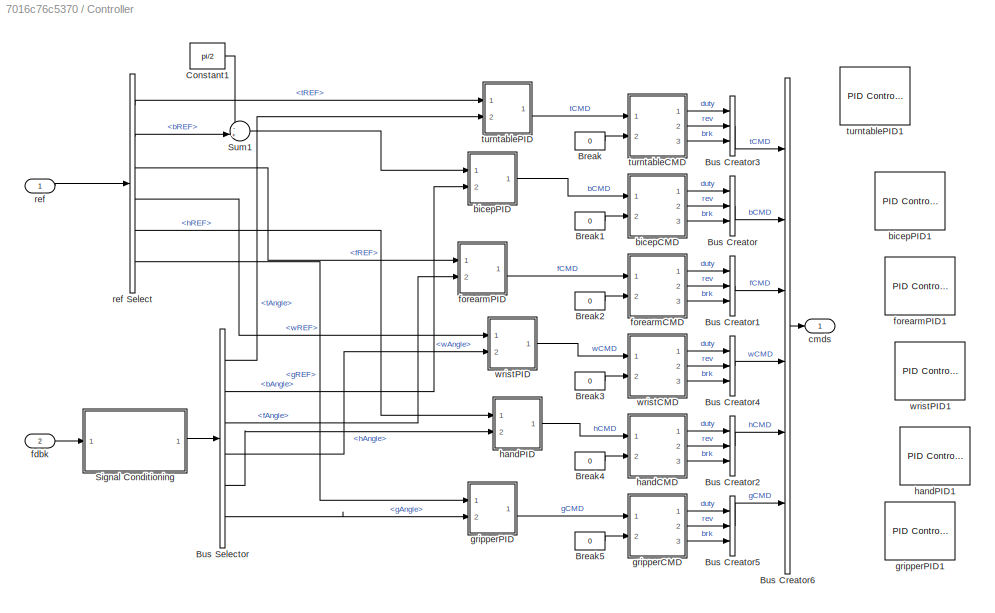
BLOCK [SubSystem] Controller
  Ports = [2, 1]
  RequestExecContextInheritance = off
BLOCK [Constant] Controller/Break
  Value = 0
BLOCK [Constant] Controller/Break1
  Value = 0
BLOCK [Constant] Controller/Break2
  Value = 0
BLOCK [Constant] Controller/Break3
  Value = 0
BLOCK [Constant] Controller/Break4
  Value = 0
BLOCK [Constant] Controller/Break5
  Value = 0
BLOCK [BusCreator] Controller/Bus Creator
  DisplayOption = bar
  InheritFromInputs = on
  Inputs = 3
  Ports = [3, 1]
BLOCK [BusCreator] Controller/Bus Creator1
  DisplayOption = bar
  InheritFromInputs = on
  Inputs = 3
  Ports = [3, 1]
BLOCK [BusCreator] Controller/Bus Creator2
  DisplayOption = bar
  InheritFromInputs = on
  Inputs = 3
  Ports = [3, 1]
BLOCK [BusCreator] Controller/Bus Creator3
  DisplayOption = bar
  InheritFromInputs = on
  Inputs = 3
  Ports = [3, 1]
BLOCK [BusCreator] Controller/Bus Creator4
  DisplayOption = bar
  InheritFromInputs = on
  Inputs = 3
  Ports = [3, 1]
BLOCK [BusCreator] Controller/Bus Creator5
  DisplayOption = bar
  InheritFromInputs = on
  Inputs = 3
  Ports = [3, 1]
BLOCK [BusCreator] Controller/Bus Creator6
  DisplayOption = bar
  InheritFromInputs = on
  Inputs = 6
  Ports = [6, 1]
BLOCK [BusSelector] Controller/Bus Selector
  OutputSignals = tAngle,bAngle,fAngle,wAngle,hAngle,gAngle
  Ports = [1, 6]
BLOCK [Constant] Controller/Constant1
  Value = pi/2
BLOCK [SubSystem] Controller/Signal Conditioning
  Ports = [1, 1]
  RequestExecContextInheritance = off
BLOCK [BusCreator] Controller/Signal Conditioning/Bus Creator3
  DisplayOption = bar
  InheritFromInputs = on
  Inputs = 6
  Ports = [6, 1]
BLOCK [BusSelector] Controller/Signal Conditioning/Bus Selector
  OutputSignals = tAngle,bAngle,fAngle,wAngle,hAngle,gAngle
  Ports = [1, 6]
BLOCK [DiscreteTransferFcn] Controller/Signal Conditioning/Discrete Transfer Fcn
  Denominator = dFilt
  InputPortMap = u0
  Numerator = nFilt
  Ports = [1, 1]
  SampleTime = Ts
BLOCK [DiscreteTransferFcn] Controller/Signal Conditioning/Discrete Transfer Fcn1
  Denominator = dFilt
  InputPortMap = u0
  Numerator = nFilt
  Ports = [1, 1]
  SampleTime = Ts
BLOCK [DiscreteTransferFcn] Controller/Signal Conditioning/Discrete Transfer Fcn2
  Denominator = dFilt
  InputPortMap = u0
  Numerator = nFilt
  Ports = [1, 1]
  SampleTime = Ts
BLOCK [DiscreteTransferFcn] Controller/Signal Conditioning/Discrete Transfer Fcn3
  Denominator = dFilt
  InputPortMap = u0
  Numerator = nFilt
  Ports = [1, 1]
  SampleTime = Ts
BLOCK [DiscreteTransferFcn] Controller/Signal Conditioning/Discrete Transfer Fcn4
  Denominator = dFilt
  InputPortMap = u0
  Numerator = nFilt
  Ports = [1, 1]
  SampleTime = Ts
BLOCK [DiscreteTransferFcn] Controller/Signal Conditioning/Discrete Transfer Fcn5
  Denominator = dFilt
  InputPortMap = u0
  Numerator = nFilt
  Ports = [1, 1]
  SampleTime = Ts
BLOCK [Constant] Controller/Signal Conditioning/IC
  Value = pi/2
BLOCK [Sum] Controller/Signal Conditioning/Sum
  Inputs = |+-
  Ports = [2, 1]
BLOCK [Outport] Controller/Signal Conditioning/angles (rad)
  VectorParamsAs1DForOutWhenUnconnected = off
BLOCK [Inport] Controller/Signal Conditioning/fddk
BLOCK [Sum] Controller/Sum1
  Inputs = -+|
  Ports = [2, 1]
BLOCK [SubSystem] Controller/bicepCMD
  Ports = [2, 3]
  RequestExecContextInheritance = off
BLOCK [Abs] Controller/bicepCMD/Abs
  SaturateOnIntegerOverflow = off
BLOCK [Outport] Controller/bicepCMD/BRK
  Port = 3
  VectorParamsAs1DForOutWhenUnconnected = off
BLOCK [Outport] Controller/bicepCMD/Duty
  VectorParamsAs1DForOutWhenUnconnected = off
BLOCK [Fcn] Controller/bicepCMD/Fcn
  Expr = u(1)<0
BLOCK [Gain] Controller/bicepCMD/Gain
  Gain = 5
BLOCK [Outport] Controller/bicepCMD/REV
  Port = 2
  VectorParamsAs1DForOutWhenUnconnected = off
BLOCK [Inport] Controller/bicepCMD/Vbrk
  Port = 2
BLOCK [Inport] Controller/bicepCMD/Vcmd
BLOCK [Saturate] Controller/bicepCMD/[0...5]
  LowerLimit = 0
  UpperLimit = 5
BLOCK [Saturate] Controller/bicepCMD/[0...5] 
  LowerLimit = 0
  UpperLimit = 5
BLOCK [SubSystem] Controller/bicepPID
  Ports = [2, 1]
  RequestExecContextInheritance = off
BLOCK [Inport] Controller/bicepPID/In1
BLOCK [Inport] Controller/bicepPID/In2
  Port = 2
BLOCK [Integrator] Controller/bicepPID/Integrator
  Ports = [1, 1]
BLOCK [Gain] Controller/bicepPID/Ki2
  Gain = 19.28
BLOCK [Gain] Controller/bicepPID/Kp2
  Gain = 17.40
BLOCK [Sum] Controller/bicepPID/Sum1
  Ports = [2, 1]
BLOCK [Sum] Controller/bicepPID/Sum2
  Inputs = |+-
  Ports = [2, 1]
BLOCK [Outport] Controller/bicepPID/Vcmd
BLOCK [Reference] Controller/bicepPID1  REF=simulink/Continuous/PID Controller (2DOF)
  Commented = on
  Ports = [2, 1]
  SourceBlock = simulink/Continuous/PID Controller (2DOF)
  SourceProductBaseCode = SL
  SourceType = PID 2dof
BLOCK [Outport] Controller/cmds
  VectorParamsAs1DForOutWhenUnconnected = off
BLOCK [Inport] Controller/fdbk
  Port = 2
BLOCK [SubSystem] Controller/forearmCMD
  Ports = [2, 3]
  RequestExecContextInheritance = off
BLOCK [Abs] Controller/forearmCMD/Abs
  SaturateOnIntegerOverflow = off
BLOCK [Outport] Controller/forearmCMD/BRK
  Port = 3
  VectorParamsAs1DForOutWhenUnconnected = off
BLOCK [Outport] Controller/forearmCMD/Duty
  VectorParamsAs1DForOutWhenUnconnected = off
BLOCK [Fcn] Controller/forearmCMD/Fcn
  Expr = u(1)<0
BLOCK [Gain] Controller/forearmCMD/Gain
  Gain = 5
BLOCK [Outport] Controller/forearmCMD/REV
  Port = 2
  VectorParamsAs1DForOutWhenUnconnected = off
BLOCK [Inport] Controller/forearmCMD/Vbrk
  Port = 2
BLOCK [Inport] Controller/forearmCMD/Vcmd
BLOCK [Saturate] Controller/forearmCMD/[0...5]
  LowerLimit = 0
  UpperLimit = 5
BLOCK [Saturate] Controller/forearmCMD/[0...5] 
  LowerLimit = 0
  UpperLimit = 5
BLOCK [SubSystem] Controller/forearmPID
  Ports = [2, 1]
  RequestExecContextInheritance = off
BLOCK [Inport] Controller/forearmPID/In1
BLOCK [Inport] Controller/forearmPID/In2
  Port = 2
BLOCK [Integrator] Controller/forearmPID/Integrator
  Ports = [1, 1]
BLOCK [Gain] Controller/forearmPID/Ki3
  Gain = 11.69
BLOCK [Gain] Controller/forearmPID/Kp3
  Gain = 12.40
BLOCK [Sum] Controller/forearmPID/Sum1
  Ports = [2, 1]
BLOCK [Sum] Controller/forearmPID/Sum2
  Inputs = |+-
  Ports = [2, 1]
BLOCK [Outport] Controller/forearmPID/Vcmd
BLOCK [Reference] Controller/forearmPID1  REF=simulink/Continuous/PID Controller (2DOF)
  Commented = on
  Ports = [2, 1]
  SourceBlock = simulink/Continuous/PID Controller (2DOF)
  SourceProductBaseCode = SL
  SourceType = PID 2dof
BLOCK [SubSystem] Controller/gripperCMD
  Ports = [2, 3]
  RequestExecContextInheritance = off
BLOCK [Abs] Controller/gripperCMD/Abs
  SaturateOnIntegerOverflow = off
BLOCK [Outport] Controller/gripperCMD/BRK
  Port = 3
  VectorParamsAs1DForOutWhenUnconnected = off
BLOCK [Outport] Controller/gripperCMD/Duty
  VectorParamsAs1DForOutWhenUnconnected = off
BLOCK [Fcn] Controller/gripperCMD/Fcn
  Expr = u(1)<0
BLOCK [Gain] Controller/gripperCMD/Gain
  Gain = 5
BLOCK [Outport] Controller/gripperCMD/REV
  Port = 2
  VectorParamsAs1DForOutWhenUnconnected = off
BLOCK [Inport] Controller/gripperCMD/Vbrk
  Port = 2
BLOCK [Inport] Controller/gripperCMD/Vcmd
BLOCK [Saturate] Controller/gripperCMD/[0...5]
  LowerLimit = 0
  UpperLimit = 5
BLOCK [Saturate] Controller/gripperCMD/[0...5] 
  LowerLimit = 0
  UpperLimit = 5
BLOCK [SubSystem] Controller/gripperPID
  Ports = [2, 1]
  RequestExecContextInheritance = off
BLOCK [Inport] Controller/gripperPID/In1
BLOCK [Inport] Controller/gripperPID/In2
  Port = 2
BLOCK [Integrator] Controller/gripperPID/Integrator
  Ports = [1, 1]
BLOCK [Gain] Controller/gripperPID/Ki6
  Gain = 10.84
BLOCK [Gain] Controller/gripperPID/Kp6
  Gain = 12.06
BLOCK [Sum] Controller/gripperPID/Sum1
  Ports = [2, 1]
BLOCK [Sum] Controller/gripperPID/Sum2
  Inputs = |+-
  Ports = [2, 1]
BLOCK [Outport] Controller/gripperPID/Vcmd
BLOCK [Reference] Controller/gripperPID1  REF=simulink/Continuous/PID Controller (2DOF)
  Commented = on
  Ports = [2, 1]
  SourceBlock = simulink/Continuous/PID Controller (2DOF)
  SourceProductBaseCode = SL
  SourceType = PID 2dof
BLOCK [SubSystem] Controller/handCMD
  Ports = [2, 3]
  RequestExecContextInheritance = off
BLOCK [Abs] Controller/handCMD/Abs
  SaturateOnIntegerOverflow = off
BLOCK [Outport] Controller/handCMD/BRK
  Port = 3
  VectorParamsAs1DForOutWhenUnconnected = off
BLOCK [Outport] Controller/handCMD/Duty
  VectorParamsAs1DForOutWhenUnconnected = off
BLOCK [Fcn] Controller/handCMD/Fcn
  Expr = u(1)<0
BLOCK [Gain] Controller/handCMD/Gain
  Gain = 5
BLOCK [Outport] Controller/handCMD/REV
  Port = 2
  VectorParamsAs1DForOutWhenUnconnected = off
BLOCK [Inport] Controller/handCMD/Vbrk
  Port = 2
BLOCK [Inport] Controller/handCMD/Vcmd
BLOCK [Saturate] Controller/handCMD/[0...5]
  LowerLimit = 0
  UpperLimit = 5
BLOCK [Saturate] Controller/handCMD/[0...5] 
  LowerLimit = 0
  UpperLimit = 5
BLOCK [SubSystem] Controller/handPID
  Ports = [2, 1]
  RequestExecContextInheritance = off
BLOCK [Inport] Controller/handPID/In1
BLOCK [Inport] Controller/handPID/In2
  Port = 2
BLOCK [Integrator] Controller/handPID/Integrator
  Ports = [1, 1]
BLOCK [Gain] Controller/handPID/Ki5
  Gain = 11.18
BLOCK [Gain] Controller/handPID/Kp5
  Gain = 12.27
BLOCK [Sum] Controller/handPID/Sum1
  Ports = [2, 1]
BLOCK [Sum] Controller/handPID/Sum2
  Inputs = |+-
  Ports = [2, 1]
BLOCK [Outport] Controller/handPID/Vcmd
BLOCK [Reference] Controller/handPID1  REF=simulink/Continuous/PID Controller (2DOF)
  Commented = on
  Ports = [2, 1]
  SourceBlock = simulink/Continuous/PID Controller (2DOF)
  SourceProductBaseCode = SL
  SourceType = PID 2dof
BLOCK [Inport] Controller/ref
BLOCK [BusSelector] Controller/ref Select
  OutputSignals = tREF,bREF,fREF,wREF,hREF,gREF
  Ports = [1, 6]
BLOCK [SubSystem] Controller/turntableCMD
  Ports = [2, 3]
  RequestExecContextInheritance = off
BLOCK [Abs] Controller/turntableCMD/Abs
  SaturateOnIntegerOverflow = off
BLOCK [Outport] Controller/turntableCMD/BRK
  Port = 3
  VectorParamsAs1DForOutWhenUnconnected = off
BLOCK [Outport] Controller/turntableCMD/Duty
  VectorParamsAs1DForOutWhenUnconnected = off
BLOCK [Fcn] Controller/turntableCMD/Fcn
  Expr = u(1)<0
BLOCK [Gain] Controller/turntableCMD/Gain
  Gain = 5
BLOCK [Outport] Controller/turntableCMD/REV
  Port = 2
  VectorParamsAs1DForOutWhenUnconnected = off
BLOCK [Inport] Controller/turntableCMD/Vbrk
  Port = 2
BLOCK [Inport] Controller/turntableCMD/Vcmd
BLOCK [Saturate] Controller/turntableCMD/[0...5]
  LowerLimit = 0
  UpperLimit = 5
BLOCK [Saturate] Controller/turntableCMD/[0...5] 
  LowerLimit = 0
  UpperLimit = 5
BLOCK [SubSystem] Controller/turntablePID
  Ports = [2, 1]
  RequestExecContextInheritance = off
BLOCK [Inport] Controller/turntablePID/In1
BLOCK [Inport] Controller/turntablePID/In2
  Port = 2
BLOCK [Integrator] Controller/turntablePID/Integrator
  Ports = [1, 1]
BLOCK [Gain] Controller/turntablePID/Ki1
  Gain = 10.19
BLOCK [Gain] Controller/turntablePID/Kp1
  Gain = 11.76
BLOCK [Sum] Controller/turntablePID/Sum1
  Ports = [2, 1]
BLOCK [Sum] Controller/turntablePID/Sum2
  Inputs = |+-
  Ports = [2, 1]
BLOCK [Outport] Controller/turntablePID/Vcmd
BLOCK [Reference] Controller/turntablePID1  REF=simulink/Continuous/PID Controller (2DOF)
  Commented = on
  Ports = [2, 1]
  SourceBlock = simulink/Continuous/PID Controller (2DOF)
  SourceProductBaseCode = SL
  SourceType = PID 2dof
BLOCK [SubSystem] Controller/wristCMD
  Ports = [2, 3]
  RequestExecContextInheritance = off
BLOCK [Abs] Controller/wristCMD/Abs
  SaturateOnIntegerOverflow = off
BLOCK [Outport] Controller/wristCMD/BRK
  Port = 3
  VectorParamsAs1DForOutWhenUnconnected = off
BLOCK [Outport] Controller/wristCMD/Duty
  VectorParamsAs1DForOutWhenUnconnected = off
BLOCK [Fcn] Controller/wristCMD/Fcn
  Expr = u(1)<0
BLOCK [Gain] Controller/wristCMD/Gain
  Gain = 5
BLOCK [Outport] Controller/wristCMD/REV
  Port = 2
  VectorParamsAs1DForOutWhenUnconnected = off
BLOCK [Inport] Controller/wristCMD/Vbrk
  Port = 2
BLOCK [Inport] Controller/wristCMD/Vcmd
BLOCK [Saturate] Controller/wristCMD/[0...5]
  LowerLimit = 0
  UpperLimit = 5
BLOCK [Saturate] Controller/wristCMD/[0...5] 
  LowerLimit = 0
  UpperLimit = 5
BLOCK [SubSystem] Controller/wristPID
  Ports = [2, 1]
  RequestExecContextInheritance = off
BLOCK [Inport] Controller/wristPID/In1
BLOCK [Inport] Controller/wristPID/In2
  Port = 2
BLOCK [Integrator] Controller/wristPID/Integrator
  Ports = [1, 1]
BLOCK [Gain] Controller/wristPID/Ki4
  Gain = 9.18
BLOCK [Gain] Controller/wristPID/Kp4
  Gain = 11.09
BLOCK [Sum] Controller/wristPID/Sum1
  Ports = [2, 1]
BLOCK [Sum] Controller/wristPID/Sum2
  Inputs = |+-
  Ports = [2, 1]
BLOCK [Outport] Controller/wristPID/Vcmd
BLOCK [Reference] Controller/wristPID1  REF=simulink/Continuous/PID Controller (2DOF)
  Commented = on
  Ports = [2, 1]
  SourceBlock = simulink/Continuous/PID Controller (2DOF)
  SourceProductBaseCode = SL
  SourceType = PID 2dof
BLOCK [Gain] Gain
  Gain = pi/180
BLOCK [Gain] Gain1
  Gain = pi/180
BLOCK [Gain] Gain2
  Gain = pi/180
BLOCK [Gain] Gain3
  Gain = pi/180
BLOCK [Gain] Gain4
  Gain = pi/180
BLOCK [Gain] Gain5
  Gain = pi/180
BLOCK [Scope] Joint Angles
  Floating = off
  IOType = viewer
  NumInputPorts = 1
  Ports = []
  ScopeSpecificationString = Simulink.scopes.TimeScopeBlockCfg('CurrentConfiguration', extmgr.ConfigurationSet(extmgr.Configuration('Core','General UI',true,'FigureColor',[0.313725490196078 0.313725490196078 0.313725490196078]),extmgr.Configuration('Core','Source UI',true),extmgr.Configuration('Sources','WiredSimulink',true,'DataLoggingSaveFormat','StructureWithTime','DataLoggingDecimation','1','DataLoggingDecimateData',true)...<+9973ch>
BLOCK [Outport] Out1
BLOCK [Outport] Out2
  Port = 2
BLOCK [Outport] Out3
  Port = 3
BLOCK [Outport] Out4
  Port = 4
BLOCK [Outport] Out5
  Port = 5
BLOCK [Outport] Out6
  Port = 6
BLOCK [Step] Step
  After = 60
  SampleTime = Ts
  Time = 0
BLOCK [Step] Step10
  After = 60
  SampleTime = Ts
  Time = 0
BLOCK [Step] Step6
  After = 80
  Before = 90
  SampleTime = Ts
  Time = 0
BLOCK [Step] Step7
  After = 60
  SampleTime = Ts
  Time = 0
BLOCK [Step] Step8
  After = 90
  SampleTime = Ts
  Time = 0
BLOCK [Step] Step9
  After = 90
  SampleTime = Ts
  Time = 0
ANNOTATION 6 DOF Robot Arm: 6 DOF Robot Arm Manipulator - Electrical + Mechanical Plant Model
ANNOTATION 6 DOF Robot Arm/6 DOF Robot Arm Mechanics: Robot Arm Manipulator - SimMechanics CAD Translation MathWorks R2014b
ANNOTATION Controller/Signal Conditioning: Anti-aliasing filters
LINE 6 DOF Robot Arm/Bus Creator:1 -> 6 DOF Robot Arm/angles:1
LINE 6 DOF Robot Arm/Bus Selector:1 -> 6 DOF Robot Arm/DC Motors:1
LINE 6 DOF Robot Arm/Bus Selector:2 -> 6 DOF Robot Arm/DC Motors:2
LINE 6 DOF Robot Arm/Bus Selector:3 -> 6 DOF Robot Arm/DC Motors:3
LINE 6 DOF Robot Arm/Bus Selector:4 -> 6 DOF Robot Arm/DC Motors:4
LINE 6 DOF Robot Arm/Bus Selector:5 -> 6 DOF Robot Arm/DC Motors:5
LINE 6 DOF Robot Arm/Bus Selector:6 -> 6 DOF Robot Arm/DC Motors:6
LINE 6 DOF Robot Arm/DC Motors/Bicep Motor1/BRK:1 -> 6 DOF Robot Arm/DC Motors/Bicep Motor1/Power Amplifier:3
LINE 6 DOF Robot Arm/DC Motors/Bicep Motor1/Duty:1 -> 6 DOF Robot Arm/DC Motors/Bicep Motor1/Power Amplifier:1
LINE 6 DOF Robot Arm/DC Motors/Bicep Motor1/Power Amplifier/BRK:1 -> 6 DOF Robot Arm/DC Motors/Bicep Motor1/Power Amplifier/SL2Vbrk:1
LINE 6 DOF Robot Arm/DC Motors/Bicep Motor1/Power Amplifier/Duty:1 -> 6 DOF Robot Arm/DC Motors/Bicep Motor1/Power Amplifier/SL2Vduty:1
LINE 6 DOF Robot Arm/DC Motors/Bicep Motor1/Power Amplifier/REV:1 -> 6 DOF Robot Arm/DC Motors/Bicep Motor1/Power Amplifier/SL2Vrev:1
LINE 6 DOF Robot Arm/DC Motors/Bicep Motor1/Power Amplifier/SL2Vbrk/Signal:1 -> 6 DOF Robot Arm/DC Motors/Bicep Motor1/Power Amplifier/SL2Vbrk/Simulink to Physical Signal1:1
LINE 6 DOF Robot Arm/DC Motors/Bicep Motor1/Power Amplifier/SL2Vduty/Signal:1 -> 6 DOF Robot Arm/DC Motors/Bicep Motor1/Power Amplifier/SL2Vduty/Simulink to Physical Signal1:1
LINE 6 DOF Robot Arm/DC Motors/Bicep Motor1/Power Amplifier/SL2Vrev/Signal:1 -> 6 DOF Robot Arm/DC Motors/Bicep Motor1/Power Amplifier/SL2Vrev/Simulink to Physical Signal1:1
LINE 6 DOF Robot Arm/DC Motors/Bicep Motor1/REV:1 -> 6 DOF Robot Arm/DC Motors/Bicep Motor1/Power Amplifier:2
LINE 6 DOF Robot Arm/DC Motors/Bicep Motor2/BRK:1 -> 6 DOF Robot Arm/DC Motors/Bicep Motor2/Power Amplifier:3
LINE 6 DOF Robot Arm/DC Motors/Bicep Motor2/Duty:1 -> 6 DOF Robot Arm/DC Motors/Bicep Motor2/Power Amplifier:1
LINE 6 DOF Robot Arm/DC Motors/Bicep Motor2/Power Amplifier/BRK:1 -> 6 DOF Robot Arm/DC Motors/Bicep Motor2/Power Amplifier/SL2Vbrk:1
LINE 6 DOF Robot Arm/DC Motors/Bicep Motor2/Power Amplifier/Duty:1 -> 6 DOF Robot Arm/DC Motors/Bicep Motor2/Power Amplifier/SL2Vduty:1
LINE 6 DOF Robot Arm/DC Motors/Bicep Motor2/Power Amplifier/REV:1 -> 6 DOF Robot Arm/DC Motors/Bicep Motor2/Power Amplifier/SL2Vrev:1
LINE 6 DOF Robot Arm/DC Motors/Bicep Motor2/Power Amplifier/SL2Vbrk/Signal:1 -> 6 DOF Robot Arm/DC Motors/Bicep Motor2/Power Amplifier/SL2Vbrk/Simulink to Physical Signal1:1
LINE 6 DOF Robot Arm/DC Motors/Bicep Motor2/Power Amplifier/SL2Vduty/Signal:1 -> 6 DOF Robot Arm/DC Motors/Bicep Motor2/Power Amplifier/SL2Vduty/Simulink to Physical Signal1:1
LINE 6 DOF Robot Arm/DC Motors/Bicep Motor2/Power Amplifier/SL2Vrev/Signal:1 -> 6 DOF Robot Arm/DC Motors/Bicep Motor2/Power Amplifier/SL2Vrev/Simulink to Physical Signal1:1
LINE 6 DOF Robot Arm/DC Motors/Bicep Motor2/REV:1 -> 6 DOF Robot Arm/DC Motors/Bicep Motor2/Power Amplifier:2
LINE 6 DOF Robot Arm/DC Motors/Bus Selector1:1 -> 6 DOF Robot Arm/DC Motors/Forearm Motor:1
LINE 6 DOF Robot Arm/DC Motors/Bus Selector1:2 -> 6 DOF Robot Arm/DC Motors/Forearm Motor:2
LINE 6 DOF Robot Arm/DC Motors/Bus Selector1:3 -> 6 DOF Robot Arm/DC Motors/Forearm Motor:3
LINE 6 DOF Robot Arm/DC Motors/Bus Selector2:1 -> 6 DOF Robot Arm/DC Motors/Wrist Motor:1
LINE 6 DOF Robot Arm/DC Motors/Bus Selector2:2 -> 6 DOF Robot Arm/DC Motors/Wrist Motor:2
LINE 6 DOF Robot Arm/DC Motors/Bus Selector2:3 -> 6 DOF Robot Arm/DC Motors/Wrist Motor:3
LINE 6 DOF Robot Arm/DC Motors/Bus Selector3:1 -> 6 DOF Robot Arm/DC Motors/Bicep Motor2:1
LINE 6 DOF Robot Arm/DC Motors/Bus Selector3:2 -> 6 DOF Robot Arm/DC Motors/Bicep Motor2:2
LINE 6 DOF Robot Arm/DC Motors/Bus Selector3:3 -> 6 DOF Robot Arm/DC Motors/Bicep Motor2:3
LINE 6 DOF Robot Arm/DC Motors/Bus Selector4:1 -> 6 DOF Robot Arm/DC Motors/Turntable Motor:1
LINE 6 DOF Robot Arm/DC Motors/Bus Selector4:2 -> 6 DOF Robot Arm/DC Motors/Turntable Motor:2
LINE 6 DOF Robot Arm/DC Motors/Bus Selector4:3 -> 6 DOF Robot Arm/DC Motors/Turntable Motor:3
LINE 6 DOF Robot Arm/DC Motors/Bus Selector5:1 -> 6 DOF Robot Arm/DC Motors/Hand Motor:1
LINE 6 DOF Robot Arm/DC Motors/Bus Selector5:2 -> 6 DOF Robot Arm/DC Motors/Hand Motor:2
LINE 6 DOF Robot Arm/DC Motors/Bus Selector5:3 -> 6 DOF Robot Arm/DC Motors/Hand Motor:3
LINE 6 DOF Robot Arm/DC Motors/Bus Selector6:1 -> 6 DOF Robot Arm/DC Motors/Hand Motor1:1
LINE 6 DOF Robot Arm/DC Motors/Bus Selector6:2 -> 6 DOF Robot Arm/DC Motors/Hand Motor1:2
LINE 6 DOF Robot Arm/DC Motors/Bus Selector6:3 -> 6 DOF Robot Arm/DC Motors/Hand Motor1:3
LINE 6 DOF Robot Arm/DC Motors/Bus Selector:1 -> 6 DOF Robot Arm/DC Motors/Bicep Motor1:1
LINE 6 DOF Robot Arm/DC Motors/Bus Selector:2 -> 6 DOF Robot Arm/DC Motors/Bicep Motor1:2
LINE 6 DOF Robot Arm/DC Motors/Bus Selector:3 -> 6 DOF Robot Arm/DC Motors/Bicep Motor1:3
LINE 6 DOF Robot Arm/DC Motors/Forearm Motor/BRK:1 -> 6 DOF Robot Arm/DC Motors/Forearm Motor/Power Amplifier:3
LINE 6 DOF Robot Arm/DC Motors/Forearm Motor/Duty:1 -> 6 DOF Robot Arm/DC Motors/Forearm Motor/Power Amplifier:1
LINE 6 DOF Robot Arm/DC Motors/Forearm Motor/Power Amplifier/BRK:1 -> 6 DOF Robot Arm/DC Motors/Forearm Motor/Power Amplifier/SL2Vbrk:1
LINE 6 DOF Robot Arm/DC Motors/Forearm Motor/Power Amplifier/Duty:1 -> 6 DOF Robot Arm/DC Motors/Forearm Motor/Power Amplifier/SL2Vduty:1
LINE 6 DOF Robot Arm/DC Motors/Forearm Motor/Power Amplifier/REV:1 -> 6 DOF Robot Arm/DC Motors/Forearm Motor/Power Amplifier/SL2Vrev:1
LINE 6 DOF Robot Arm/DC Motors/Forearm Motor/Power Amplifier/SL2Vbrk/Signal:1 -> 6 DOF Robot Arm/DC Motors/Forearm Motor/Power Amplifier/SL2Vbrk/Simulink to Physical Signal1:1
LINE 6 DOF Robot Arm/DC Motors/Forearm Motor/Power Amplifier/SL2Vduty/Signal:1 -> 6 DOF Robot Arm/DC Motors/Forearm Motor/Power Amplifier/SL2Vduty/Simulink to Physical Signal1:1
LINE 6 DOF Robot Arm/DC Motors/Forearm Motor/Power Amplifier/SL2Vrev/Signal:1 -> 6 DOF Robot Arm/DC Motors/Forearm Motor/Power Amplifier/SL2Vrev/Simulink to Physical Signal1:1
LINE 6 DOF Robot Arm/DC Motors/Forearm Motor/REV:1 -> 6 DOF Robot Arm/DC Motors/Forearm Motor/Power Amplifier:2
LINE 6 DOF Robot Arm/DC Motors/Hand Motor/BRK:1 -> 6 DOF Robot Arm/DC Motors/Hand Motor/Power Amplifier:3
LINE 6 DOF Robot Arm/DC Motors/Hand Motor/Duty:1 -> 6 DOF Robot Arm/DC Motors/Hand Motor/Power Amplifier:1
LINE 6 DOF Robot Arm/DC Motors/Hand Motor/Power Amplifier/BRK:1 -> 6 DOF Robot Arm/DC Motors/Hand Motor/Power Amplifier/SL2Vbrk:1
LINE 6 DOF Robot Arm/DC Motors/Hand Motor/Power Amplifier/Duty:1 -> 6 DOF Robot Arm/DC Motors/Hand Motor/Power Amplifier/SL2Vduty:1
LINE 6 DOF Robot Arm/DC Motors/Hand Motor/Power Amplifier/REV:1 -> 6 DOF Robot Arm/DC Motors/Hand Motor/Power Amplifier/SL2Vrev:1
LINE 6 DOF Robot Arm/DC Motors/Hand Motor/Power Amplifier/SL2Vbrk/Signal:1 -> 6 DOF Robot Arm/DC Motors/Hand Motor/Power Amplifier/SL2Vbrk/Simulink to Physical Signal1:1
LINE 6 DOF Robot Arm/DC Motors/Hand Motor/Power Amplifier/SL2Vduty/Signal:1 -> 6 DOF Robot Arm/DC Motors/Hand Motor/Power Amplifier/SL2Vduty/Simulink to Physical Signal1:1
LINE 6 DOF Robot Arm/DC Motors/Hand Motor/Power Amplifier/SL2Vrev/Signal:1 -> 6 DOF Robot Arm/DC Motors/Hand Motor/Power Amplifier/SL2Vrev/Simulink to Physical Signal1:1
LINE 6 DOF Robot Arm/DC Motors/Hand Motor/REV:1 -> 6 DOF Robot Arm/DC Motors/Hand Motor/Power Amplifier:2
LINE 6 DOF Robot Arm/DC Motors/Hand Motor1/BRK:1 -> 6 DOF Robot Arm/DC Motors/Hand Motor1/Power Amplifier:3
LINE 6 DOF Robot Arm/DC Motors/Hand Motor1/Duty:1 -> 6 DOF Robot Arm/DC Motors/Hand Motor1/Power Amplifier:1
LINE 6 DOF Robot Arm/DC Motors/Hand Motor1/Power Amplifier/BRK:1 -> 6 DOF Robot Arm/DC Motors/Hand Motor1/Power Amplifier/SL2Vbrk:1
LINE 6 DOF Robot Arm/DC Motors/Hand Motor1/Power Amplifier/Duty:1 -> 6 DOF Robot Arm/DC Motors/Hand Motor1/Power Amplifier/SL2Vduty:1
LINE 6 DOF Robot Arm/DC Motors/Hand Motor1/Power Amplifier/REV:1 -> 6 DOF Robot Arm/DC Motors/Hand Motor1/Power Amplifier/SL2Vrev:1
LINE 6 DOF Robot Arm/DC Motors/Hand Motor1/Power Amplifier/SL2Vbrk/Signal:1 -> 6 DOF Robot Arm/DC Motors/Hand Motor1/Power Amplifier/SL2Vbrk/Simulink to Physical Signal1:1
LINE 6 DOF Robot Arm/DC Motors/Hand Motor1/Power Amplifier/SL2Vduty/Signal:1 -> 6 DOF Robot Arm/DC Motors/Hand Motor1/Power Amplifier/SL2Vduty/Simulink to Physical Signal1:1
LINE 6 DOF Robot Arm/DC Motors/Hand Motor1/Power Amplifier/SL2Vrev/Signal:1 -> 6 DOF Robot Arm/DC Motors/Hand Motor1/Power Amplifier/SL2Vrev/Simulink to Physical Signal1:1
LINE 6 DOF Robot Arm/DC Motors/Hand Motor1/REV:1 -> 6 DOF Robot Arm/DC Motors/Hand Motor1/Power Amplifier:2
LINE 6 DOF Robot Arm/DC Motors/Turntable Motor/BRK:1 -> 6 DOF Robot Arm/DC Motors/Turntable Motor/Power Amplifier:3
LINE 6 DOF Robot Arm/DC Motors/Turntable Motor/Duty:1 -> 6 DOF Robot Arm/DC Motors/Turntable Motor/Power Amplifier:1
LINE 6 DOF Robot Arm/DC Motors/Turntable Motor/Power Amplifier/BRK:1 -> 6 DOF Robot Arm/DC Motors/Turntable Motor/Power Amplifier/SL2Vbrk:1
LINE 6 DOF Robot Arm/DC Motors/Turntable Motor/Power Amplifier/Duty:1 -> 6 DOF Robot Arm/DC Motors/Turntable Motor/Power Amplifier/SL2Vduty:1
LINE 6 DOF Robot Arm/DC Motors/Turntable Motor/Power Amplifier/REV:1 -> 6 DOF Robot Arm/DC Motors/Turntable Motor/Power Amplifier/SL2Vrev:1
LINE 6 DOF Robot Arm/DC Motors/Turntable Motor/Power Amplifier/SL2Vbrk/Signal:1 -> 6 DOF Robot Arm/DC Motors/Turntable Motor/Power Amplifier/SL2Vbrk/Simulink to Physical Signal1:1
LINE 6 DOF Robot Arm/DC Motors/Turntable Motor/Power Amplifier/SL2Vduty/Signal:1 -> 6 DOF Robot Arm/DC Motors/Turntable Motor/Power Amplifier/SL2Vduty/Simulink to Physical Signal1:1
LINE 6 DOF Robot Arm/DC Motors/Turntable Motor/Power Amplifier/SL2Vrev/Signal:1 -> 6 DOF Robot Arm/DC Motors/Turntable Motor/Power Amplifier/SL2Vrev/Simulink to Physical Signal1:1
LINE 6 DOF Robot Arm/DC Motors/Turntable Motor/REV:1 -> 6 DOF Robot Arm/DC Motors/Turntable Motor/Power Amplifier:2
LINE 6 DOF Robot Arm/DC Motors/Wrist Motor/BRK:1 -> 6 DOF Robot Arm/DC Motors/Wrist Motor/Power Amplifier:3
LINE 6 DOF Robot Arm/DC Motors/Wrist Motor/Duty:1 -> 6 DOF Robot Arm/DC Motors/Wrist Motor/Power Amplifier:1
LINE 6 DOF Robot Arm/DC Motors/Wrist Motor/Power Amplifier/BRK:1 -> 6 DOF Robot Arm/DC Motors/Wrist Motor/Power Amplifier/SL2Vbrk:1
LINE 6 DOF Robot Arm/DC Motors/Wrist Motor/Power Amplifier/Duty:1 -> 6 DOF Robot Arm/DC Motors/Wrist Motor/Power Amplifier/SL2Vduty:1
LINE 6 DOF Robot Arm/DC Motors/Wrist Motor/Power Amplifier/REV:1 -> 6 DOF Robot Arm/DC Motors/Wrist Motor/Power Amplifier/SL2Vrev:1
LINE 6 DOF Robot Arm/DC Motors/Wrist Motor/Power Amplifier/SL2Vbrk/Signal:1 -> 6 DOF Robot Arm/DC Motors/Wrist Motor/Power Amplifier/SL2Vbrk/Simulink to Physical Signal1:1
LINE 6 DOF Robot Arm/DC Motors/Wrist Motor/Power Amplifier/SL2Vduty/Signal:1 -> 6 DOF Robot Arm/DC Motors/Wrist Motor/Power Amplifier/SL2Vduty/Simulink to Physical Signal1:1
LINE 6 DOF Robot Arm/DC Motors/Wrist Motor/Power Amplifier/SL2Vrev/Signal:1 -> 6 DOF Robot Arm/DC Motors/Wrist Motor/Power Amplifier/SL2Vrev/Simulink to Physical Signal1:1
LINE 6 DOF Robot Arm/DC Motors/Wrist Motor/REV:1 -> 6 DOF Robot Arm/DC Motors/Wrist Motor/Power Amplifier:2
NET 6 DOF Robot Arm/DC Motors/bCMD:1 -> 6 DOF Robot Arm/DC Motors/Bus Selector3:1, 6 DOF Robot Arm/DC Motors/Bus Selector:1
LINE 6 DOF Robot Arm/DC Motors/fCMD:1 -> 6 DOF Robot Arm/DC Motors/Bus Selector1:1
LINE 6 DOF Robot Arm/DC Motors/gCMD:1 -> 6 DOF Robot Arm/DC Motors/Bus Selector6:1
LINE 6 DOF Robot Arm/DC Motors/hCMD:1 -> 6 DOF Robot Arm/DC Motors/Bus Selector5:1
LINE 6 DOF Robot Arm/DC Motors/tCMD:1 -> 6 DOF Robot Arm/DC Motors/Bus Selector4:1
LINE 6 DOF Robot Arm/DC Motors/wCMD:1 -> 6 DOF Robot Arm/DC Motors/Bus Selector2:1
NET 6 DOF Robot Arm/PS-Simulink Converter1:1 -> 6 DOF Robot Arm/Bus Creator:2, 6 DOF Robot Arm/Out2:1
NET 6 DOF Robot Arm/PS-Simulink Converter2:1 -> 6 DOF Robot Arm/Bus Creator:3, 6 DOF Robot Arm/Out3:1
NET 6 DOF Robot Arm/PS-Simulink Converter3:1 -> 6 DOF Robot Arm/Bus Creator:4, 6 DOF Robot Arm/Out4:1
NET 6 DOF Robot Arm/PS-Simulink Converter4:1 -> 6 DOF Robot Arm/Bus Creator:5, 6 DOF Robot Arm/Out5:1
NET 6 DOF Robot Arm/PS-Simulink Converter5:1 -> 6 DOF Robot Arm/Bus Creator:6, 6 DOF Robot Arm/Out6:1
NET 6 DOF Robot Arm/PS-Simulink Converter:1 -> 6 DOF Robot Arm/Bus Creator:1, 6 DOF Robot Arm/Out1:1
LINE 6 DOF Robot Arm/cmds:1 -> 6 DOF Robot Arm/Bus Selector:1
LINE 6 DOF Robot Arm:1 -> Controller:2
LINE 6 DOF Robot Arm:2 -> Out1:1
LINE 6 DOF Robot Arm:3 -> Out2:1
LINE 6 DOF Robot Arm:4 -> Out3:1
LINE 6 DOF Robot Arm:5 -> Out4:1
LINE 6 DOF Robot Arm:6 -> Out5:1
LINE 6 DOF Robot Arm:7 -> Out6:1
LINE Bus Creator:1 -> Controller:1
LINE Controller/Break1:1 -> Controller/bicepCMD:2
LINE Controller/Break2:1 -> Controller/forearmCMD:2
LINE Controller/Break3:1 -> Controller/wristCMD:2
LINE Controller/Break4:1 -> Controller/handCMD:2
LINE Controller/Break5:1 -> Controller/gripperCMD:2
LINE Controller/Break:1 -> Controller/turntableCMD:2
LINE Controller/Bus Creator1:1 -> Controller/Bus Creator6:3
LINE Controller/Bus Creator2:1 -> Controller/Bus Creator6:5
LINE Controller/Bus Creator3:1 -> Controller/Bus Creator6:1
LINE Controller/Bus Creator4:1 -> Controller/Bus Creator6:4
LINE Controller/Bus Creator5:1 -> Controller/Bus Creator6:6
LINE Controller/Bus Creator6:1 -> Controller/cmds:1
LINE Controller/Bus Creator:1 -> Controller/Bus Creator6:2
LINE Controller/Bus Selector:1 -> Controller/turntablePID:2
LINE Controller/Bus Selector:2 -> Controller/bicepPID:2
LINE Controller/Bus Selector:3 -> Controller/forearmPID:2
LINE Controller/Bus Selector:4 -> Controller/wristPID:2
LINE Controller/Bus Selector:5 -> Controller/handPID:2
LINE Controller/Bus Selector:6 -> Controller/gripperPID:2
LINE Controller/Constant1:1 -> Controller/Sum1:1
LINE Controller/Signal Conditioning/Bus Creator3:1 -> Controller/Signal Conditioning/angles (rad):1
LINE Controller/Signal Conditioning/Bus Selector:1 -> Controller/Signal Conditioning/Discrete Transfer Fcn:1
LINE Controller/Signal Conditioning/Bus Selector:2 -> Controller/Signal Conditioning/Sum:1
LINE Controller/Signal Conditioning/Bus Selector:3 -> Controller/Signal Conditioning/Discrete Transfer Fcn2:1
LINE Controller/Signal Conditioning/Bus Selector:4 -> Controller/Signal Conditioning/Discrete Transfer Fcn3:1
LINE Controller/Signal Conditioning/Bus Selector:5 -> Controller/Signal Conditioning/Discrete Transfer Fcn4:1
LINE Controller/Signal Conditioning/Bus Selector:6 -> Controller/Signal Conditioning/Discrete Transfer Fcn5:1
LINE Controller/Signal Conditioning/Discrete Transfer Fcn1:1 -> Controller/Signal Conditioning/Bus Creator3:2
LINE Controller/Signal Conditioning/Discrete Transfer Fcn2:1 -> Controller/Signal Conditioning/Bus Creator3:3
LINE Controller/Signal Conditioning/Discrete Transfer Fcn3:1 -> Controller/Signal Conditioning/Bus Creator3:4
LINE Controller/Signal Conditioning/Discrete Transfer Fcn4:1 -> Controller/Signal Conditioning/Bus Creator3:5
LINE Controller/Signal Conditioning/Discrete Transfer Fcn5:1 -> Controller/Signal Conditioning/Bus Creator3:6
LINE Controller/Signal Conditioning/Discrete Transfer Fcn:1 -> Controller/Signal Conditioning/Bus Creator3:1
LINE Controller/Signal Conditioning/IC:1 -> Controller/Signal Conditioning/Sum:2
LINE Controller/Signal Conditioning/Sum:1 -> Controller/Signal Conditioning/Discrete Transfer Fcn1:1
LINE Controller/Signal Conditioning/fddk:1 -> Controller/Signal Conditioning/Bus Selector:1
LINE Controller/Signal Conditioning:1 -> Controller/Bus Selector:1
LINE Controller/Sum1:1 -> Controller/bicepPID:1
LINE Controller/bicepCMD/Abs:1 -> Controller/bicepCMD/[0...5]:1
LINE Controller/bicepCMD/Fcn:1 -> Controller/bicepCMD/Gain:1
LINE Controller/bicepCMD/Gain:1 -> Controller/bicepCMD/REV:1
LINE Controller/bicepCMD/Vbrk:1 -> Controller/bicepCMD/[0...5] :1
NET Controller/bicepCMD/Vcmd:1 -> Controller/bicepCMD/Abs:1, Controller/bicepCMD/Fcn:1
LINE Controller/bicepCMD/[0...5] :1 -> Controller/bicepCMD/BRK:1
LINE Controller/bicepCMD/[0...5]:1 -> Controller/bicepCMD/Duty:1
LINE Controller/bicepCMD:1 -> Controller/Bus Creator:1
LINE Controller/bicepCMD:2 -> Controller/Bus Creator:2
LINE Controller/bicepCMD:3 -> Controller/Bus Creator:3
LINE Controller/bicepPID/In1:1 -> Controller/bicepPID/Sum2:1
LINE Controller/bicepPID/In2:1 -> Controller/bicepPID/Sum2:2
LINE Controller/bicepPID/Integrator:1 -> Controller/bicepPID/Ki2:1
LINE Controller/bicepPID/Ki2:1 -> Controller/bicepPID/Sum1:1
LINE Controller/bicepPID/Kp2:1 -> Controller/bicepPID/Sum1:2
LINE Controller/bicepPID/Sum1:1 -> Controller/bicepPID/Vcmd:1
NET Controller/bicepPID/Sum2:1 -> Controller/bicepPID/Integrator:1, Controller/bicepPID/Kp2:1
LINE Controller/bicepPID:1 -> Controller/bicepCMD:1
LINE Controller/fdbk:1 -> Controller/Signal Conditioning:1
LINE Controller/forearmCMD/Abs:1 -> Controller/forearmCMD/[0...5]:1
LINE Controller/forearmCMD/Fcn:1 -> Controller/forearmCMD/Gain:1
LINE Controller/forearmCMD/Gain:1 -> Controller/forearmCMD/REV:1
LINE Controller/forearmCMD/Vbrk:1 -> Controller/forearmCMD/[0...5] :1
NET Controller/forearmCMD/Vcmd:1 -> Controller/forearmCMD/Abs:1, Controller/forearmCMD/Fcn:1
LINE Controller/forearmCMD/[0...5] :1 -> Controller/forearmCMD/BRK:1
LINE Controller/forearmCMD/[0...5]:1 -> Controller/forearmCMD/Duty:1
LINE Controller/forearmCMD:1 -> Controller/Bus Creator1:1
LINE Controller/forearmCMD:2 -> Controller/Bus Creator1:2
LINE Controller/forearmCMD:3 -> Controller/Bus Creator1:3
LINE Controller/forearmPID/In1:1 -> Controller/forearmPID/Sum2:1
LINE Controller/forearmPID/In2:1 -> Controller/forearmPID/Sum2:2
LINE Controller/forearmPID/Integrator:1 -> Controller/forearmPID/Ki3:1
LINE Controller/forearmPID/Ki3:1 -> Controller/forearmPID/Sum1:1
LINE Controller/forearmPID/Kp3:1 -> Controller/forearmPID/Sum1:2
LINE Controller/forearmPID/Sum1:1 -> Controller/forearmPID/Vcmd:1
NET Controller/forearmPID/Sum2:1 -> Controller/forearmPID/Integrator:1, Controller/forearmPID/Kp3:1
LINE Controller/forearmPID:1 -> Controller/forearmCMD:1
LINE Controller/gripperCMD/Abs:1 -> Controller/gripperCMD/[0...5]:1
LINE Controller/gripperCMD/Fcn:1 -> Controller/gripperCMD/Gain:1
LINE Controller/gripperCMD/Gain:1 -> Controller/gripperCMD/REV:1
LINE Controller/gripperCMD/Vbrk:1 -> Controller/gripperCMD/[0...5] :1
NET Controller/gripperCMD/Vcmd:1 -> Controller/gripperCMD/Abs:1, Controller/gripperCMD/Fcn:1
LINE Controller/gripperCMD/[0...5] :1 -> Controller/gripperCMD/BRK:1
LINE Controller/gripperCMD/[0...5]:1 -> Controller/gripperCMD/Duty:1
LINE Controller/gripperCMD:1 -> Controller/Bus Creator5:1
LINE Controller/gripperCMD:2 -> Controller/Bus Creator5:2
LINE Controller/gripperCMD:3 -> Controller/Bus Creator5:3
LINE Controller/gripperPID/In1:1 -> Controller/gripperPID/Sum2:1
LINE Controller/gripperPID/In2:1 -> Controller/gripperPID/Sum2:2
LINE Controller/gripperPID/Integrator:1 -> Controller/gripperPID/Ki6:1
LINE Controller/gripperPID/Ki6:1 -> Controller/gripperPID/Sum1:1
LINE Controller/gripperPID/Kp6:1 -> Controller/gripperPID/Sum1:2
LINE Controller/gripperPID/Sum1:1 -> Controller/gripperPID/Vcmd:1
NET Controller/gripperPID/Sum2:1 -> Controller/gripperPID/Integrator:1, Controller/gripperPID/Kp6:1
LINE Controller/gripperPID:1 -> Controller/gripperCMD:1
LINE Controller/handCMD/Abs:1 -> Controller/handCMD/[0...5]:1
LINE Controller/handCMD/Fcn:1 -> Controller/handCMD/Gain:1
LINE Controller/handCMD/Gain:1 -> Controller/handCMD/REV:1
LINE Controller/handCMD/Vbrk:1 -> Controller/handCMD/[0...5] :1
NET Controller/handCMD/Vcmd:1 -> Controller/handCMD/Abs:1, Controller/handCMD/Fcn:1
LINE Controller/handCMD/[0...5] :1 -> Controller/handCMD/BRK:1
LINE Controller/handCMD/[0...5]:1 -> Controller/handCMD/Duty:1
LINE Controller/handCMD:1 -> Controller/Bus Creator2:1
LINE Controller/handCMD:2 -> Controller/Bus Creator2:2
LINE Controller/handCMD:3 -> Controller/Bus Creator2:3
LINE Controller/handPID/In1:1 -> Controller/handPID/Sum2:1
LINE Controller/handPID/In2:1 -> Controller/handPID/Sum2:2
LINE Controller/handPID/Integrator:1 -> Controller/handPID/Ki5:1
LINE Controller/handPID/Ki5:1 -> Controller/handPID/Sum1:1
LINE Controller/handPID/Kp5:1 -> Controller/handPID/Sum1:2
LINE Controller/handPID/Sum1:1 -> Controller/handPID/Vcmd:1
NET Controller/handPID/Sum2:1 -> Controller/handPID/Integrator:1, Controller/handPID/Kp5:1
LINE Controller/handPID:1 -> Controller/handCMD:1
LINE Controller/ref Select:1 -> Controller/turntablePID:1
LINE Controller/ref Select:2 -> Controller/Sum1:2
LINE Controller/ref Select:3 -> Controller/forearmPID:1
LINE Controller/ref Select:4 -> Controller/wristPID:1
LINE Controller/ref Select:5 -> Controller/handPID:1
LINE Controller/ref Select:6 -> Controller/gripperPID:1
LINE Controller/ref:1 -> Controller/ref Select:1
LINE Controller/turntableCMD/Abs:1 -> Controller/turntableCMD/[0...5]:1
LINE Controller/turntableCMD/Fcn:1 -> Controller/turntableCMD/Gain:1
LINE Controller/turntableCMD/Gain:1 -> Controller/turntableCMD/REV:1
LINE Controller/turntableCMD/Vbrk:1 -> Controller/turntableCMD/[0...5] :1
NET Controller/turntableCMD/Vcmd:1 -> Controller/turntableCMD/Abs:1, Controller/turntableCMD/Fcn:1
LINE Controller/turntableCMD/[0...5] :1 -> Controller/turntableCMD/BRK:1
LINE Controller/turntableCMD/[0...5]:1 -> Controller/turntableCMD/Duty:1
LINE Controller/turntableCMD:1 -> Controller/Bus Creator3:1
LINE Controller/turntableCMD:2 -> Controller/Bus Creator3:2
LINE Controller/turntableCMD:3 -> Controller/Bus Creator3:3
LINE Controller/turntablePID/In1:1 -> Controller/turntablePID/Sum2:1
LINE Controller/turntablePID/In2:1 -> Controller/turntablePID/Sum2:2
LINE Controller/turntablePID/Integrator:1 -> Controller/turntablePID/Ki1:1
LINE Controller/turntablePID/Ki1:1 -> Controller/turntablePID/Sum1:1
LINE Controller/turntablePID/Kp1:1 -> Controller/turntablePID/Sum1:2
LINE Controller/turntablePID/Sum1:1 -> Controller/turntablePID/Vcmd:1
NET Controller/turntablePID/Sum2:1 -> Controller/turntablePID/Integrator:1, Controller/turntablePID/Kp1:1
LINE Controller/turntablePID:1 -> Controller/turntableCMD:1
LINE Controller/wristCMD/Abs:1 -> Controller/wristCMD/[0...5]:1
LINE Controller/wristCMD/Fcn:1 -> Controller/wristCMD/Gain:1
LINE Controller/wristCMD/Gain:1 -> Controller/wristCMD/REV:1
LINE Controller/wristCMD/Vbrk:1 -> Controller/wristCMD/[0...5] :1
NET Controller/wristCMD/Vcmd:1 -> Controller/wristCMD/Abs:1, Controller/wristCMD/Fcn:1
LINE Controller/wristCMD/[0...5] :1 -> Controller/wristCMD/BRK:1
LINE Controller/wristCMD/[0...5]:1 -> Controller/wristCMD/Duty:1
LINE Controller/wristCMD:1 -> Controller/Bus Creator4:1
LINE Controller/wristCMD:2 -> Controller/Bus Creator4:2
LINE Controller/wristCMD:3 -> Controller/Bus Creator4:3
LINE Controller/wristPID/In1:1 -> Controller/wristPID/Sum2:1
LINE Controller/wristPID/In2:1 -> Controller/wristPID/Sum2:2
LINE Controller/wristPID/Integrator:1 -> Controller/wristPID/Ki4:1
LINE Controller/wristPID/Ki4:1 -> Controller/wristPID/Sum1:1
LINE Controller/wristPID/Kp4:1 -> Controller/wristPID/Sum1:2
LINE Controller/wristPID/Sum1:1 -> Controller/wristPID/Vcmd:1
NET Controller/wristPID/Sum2:1 -> Controller/wristPID/Integrator:1, Controller/wristPID/Kp4:1
LINE Controller/wristPID:1 -> Controller/wristCMD:1
LINE Controller:1 -> 6 DOF Robot Arm:1
LINE Gain1:1 -> Bus Creator:2
LINE Gain2:1 -> Bus Creator:3
LINE Gain3:1 -> Bus Creator:4
LINE Gain4:1 -> Bus Creator:5
LINE Gain5:1 -> Bus Creator:6
LINE Gain:1 -> Bus Creator:1
LINE Step10:1 -> Gain5:1
LINE Step6:1 -> Gain1:1
LINE Step7:1 -> Gain2:1
LINE Step8:1 -> Gain3:1
LINE Step9:1 -> Gain4:1
LINE Step:1 -> Gain:1
PNET net1: 6 DOF Robot Arm/6 DOF Robot Arm Mechanics/Base/F1:RConn1 -- 6 DOF Robot Arm/6 DOF Robot Arm Mechanics/Base/ReferenceFrame:RConn1 -- 6 DOF Robot Arm/6 DOF Robot Arm Mechanics/Base/Solid:RConn1 -- 6 DOF Robot Arm/6 DOF Robot Arm Mechanics/Base/Transform:LConn1
PLINE 6 DOF Robot Arm/6 DOF Robot Arm Mechanics/Base/F:RConn1 -- 6 DOF Robot Arm/6 DOF Robot Arm Mechanics/Base/Transform1:RConn1
PLINE 6 DOF Robot Arm/6 DOF Robot Arm Mechanics/Base/Transform1:LConn1 -- 6 DOF Robot Arm/6 DOF Robot Arm Mechanics/Base/Transform:RConn1
PLINE 6 DOF Robot Arm/6 DOF Robot Arm Mechanics/Base:LConn1 -- 6 DOF Robot Arm/6 DOF Robot Arm Mechanics/Transforn:RConn1
PLINE 6 DOF Robot Arm/6 DOF Robot Arm Mechanics/Base:RConn1 -- 6 DOF Robot Arm/6 DOF Robot Arm Mechanics/R1:LConn1
PNET net2: 6 DOF Robot Arm/6 DOF Robot Arm Mechanics/Bicep/BaseRef_1_RIGID/F:RConn1 -- 6 DOF Robot Arm/6 DOF Robot Arm Mechanics/Bicep/BaseRef_1_RIGID/ReferenceFrame:RConn1 -- 6 DOF Robot Arm/6 DOF Robot Arm Mechanics/Bicep/BaseRef_1_RIGID/Solid:RConn1
PLINE 6 DOF Robot Arm/6 DOF Robot Arm Mechanics/Bicep/BaseRef_1_RIGID:LConn1 -- 6 DOF Robot Arm/6 DOF Robot Arm Mechanics/Bicep/Transform3:RConn1
PNET net3: 6 DOF Robot Arm/6 DOF Robot Arm Mechanics/Bicep/BaseRef_2_RIGID/F:RConn1 -- 6 DOF Robot Arm/6 DOF Robot Arm Mechanics/Bicep/BaseRef_2_RIGID/ReferenceFrame:RConn1 -- 6 DOF Robot Arm/6 DOF Robot Arm Mechanics/Bicep/BaseRef_2_RIGID/Solid:RConn1
PLINE 6 DOF Robot Arm/6 DOF Robot Arm Mechanics/Bicep/BaseRef_2_RIGID:LConn1 -- 6 DOF Robot Arm/6 DOF Robot Arm Mechanics/Bicep/Transform5:RConn1
PLINE 6 DOF Robot Arm/6 DOF Robot Arm Mechanics/Bicep/F1:RConn1 -- 6 DOF Robot Arm/6 DOF Robot Arm Mechanics/Bicep/Transform1:RConn1
PLINE 6 DOF Robot Arm/6 DOF Robot Arm Mechanics/Bicep/F:RConn1 -- 6 DOF Robot Arm/6 DOF Robot Arm Mechanics/Bicep/Transform:RConn1
PNET net4: 6 DOF Robot Arm/6 DOF Robot Arm Mechanics/Bicep/ReferenceFrame:RConn1 -- 6 DOF Robot Arm/6 DOF Robot Arm Mechanics/Bicep/Transform1:LConn1 -- 6 DOF Robot Arm/6 DOF Robot Arm Mechanics/Bicep/Transform2:LConn1 -- 6 DOF Robot Arm/6 DOF Robot Arm Mechanics/Bicep/Transform3:LConn1 -- 6 DOF Robot Arm/6 DOF Robot Arm Mechanics/Bicep/Transform4:LConn1 -- 6 DOF Robot Arm/6 DOF Robot Arm Mechanics/Bicep/Transform5:LConn1 -- 6 DOF Robot Arm/6 DOF Robot Arm Mechanics/Bicep/Transform6:LConn1 -- 6 DOF Robot Arm/6 DOF Robot Arm Mechanics/Bicep/Transform:LConn1
PLINE 6 DOF Robot Arm/6 DOF Robot Arm Mechanics/Bicep/Transform2:RConn1 -- 6 DOF Robot Arm/6 DOF Robot Arm Mechanics/Bicep/asb_10_1_RIGID:LConn1
PLINE 6 DOF Robot Arm/6 DOF Robot Arm Mechanics/Bicep/Transform4:RConn1 -- 6 DOF Robot Arm/6 DOF Robot Arm Mechanics/Bicep/at_05_1_RIGID:LConn1
PLINE 6 DOF Robot Arm/6 DOF Robot Arm Mechanics/Bicep/Transform6:RConn1 -- 6 DOF Robot Arm/6 DOF Robot Arm Mechanics/Bicep/asb_10_2_RIGID:LConn1
PNET net5: 6 DOF Robot Arm/6 DOF Robot Arm Mechanics/Bicep/asb_10_1_RIGID/F:RConn1 -- 6 DOF Robot Arm/6 DOF Robot Arm Mechanics/Bicep/asb_10_1_RIGID/ReferenceFrame:RConn1 -- 6 DOF Robot Arm/6 DOF Robot Arm Mechanics/Bicep/asb_10_1_RIGID/Solid:RConn1
PNET net6: 6 DOF Robot Arm/6 DOF Robot Arm Mechanics/Bicep/asb_10_2_RIGID/F:RConn1 -- 6 DOF Robot Arm/6 DOF Robot Arm Mechanics/Bicep/asb_10_2_RIGID/ReferenceFrame:RConn1 -- 6 DOF Robot Arm/6 DOF Robot Arm Mechanics/Bicep/asb_10_2_RIGID/Solid:RConn1
PNET net7: 6 DOF Robot Arm/6 DOF Robot Arm Mechanics/Bicep/at_05_1_RIGID/F:RConn1 -- 6 DOF Robot Arm/6 DOF Robot Arm Mechanics/Bicep/at_05_1_RIGID/ReferenceFrame:RConn1 -- 6 DOF Robot Arm/6 DOF Robot Arm Mechanics/Bicep/at_05_1_RIGID/Solid:RConn1
PLINE 6 DOF Robot Arm/6 DOF Robot Arm Mechanics/Bicep:LConn1 -- 6 DOF Robot Arm/6 DOF Robot Arm Mechanics/R2:RConn1
PLINE 6 DOF Robot Arm/6 DOF Robot Arm Mechanics/Bicep:RConn1 -- 6 DOF Robot Arm/6 DOF Robot Arm Mechanics/R3:LConn1
PNET net8: 6 DOF Robot Arm/6 DOF Robot Arm Mechanics/DriveGear/BB_03_1_RIGID/F:RConn1 -- 6 DOF Robot Arm/6 DOF Robot Arm Mechanics/DriveGear/BB_03_1_RIGID/ReferenceFrame:RConn1 -- 6 DOF Robot Arm/6 DOF Robot Arm Mechanics/DriveGear/BB_03_1_RIGID/Solid:RConn1
PLINE 6 DOF Robot Arm/6 DOF Robot Arm Mechanics/DriveGear/BB_03_1_RIGID:LConn1 -- 6 DOF Robot Arm/6 DOF Robot Arm Mechanics/DriveGear/Transform2:RConn1
PLINE 6 DOF Robot Arm/6 DOF Robot Arm Mechanics/DriveGear/F1:RConn1 -- 6 DOF Robot Arm/6 DOF Robot Arm Mechanics/DriveGear/Transform3:RConn1
PLINE 6 DOF Robot Arm/6 DOF Robot Arm Mechanics/DriveGear/F:RConn1 -- 6 DOF Robot Arm/6 DOF Robot Arm Mechanics/DriveGear/Transform4:RConn1
PNET net9: 6 DOF Robot Arm/6 DOF Robot Arm Mechanics/DriveGear/ReferenceFrame:RConn1 -- 6 DOF Robot Arm/6 DOF Robot Arm Mechanics/DriveGear/Transform1:LConn1 -- 6 DOF Robot Arm/6 DOF Robot Arm Mechanics/DriveGear/Transform2:LConn1 -- 6 DOF Robot Arm/6 DOF Robot Arm Mechanics/DriveGear/Transform:LConn1
PLINE 6 DOF Robot Arm/6 DOF Robot Arm Mechanics/DriveGear/Transform1:RConn1 -- 6 DOF Robot Arm/6 DOF Robot Arm Mechanics/DriveGear/lpags_01_1_RIGID:LConn2
PLINE 6 DOF Robot Arm/6 DOF Robot Arm Mechanics/DriveGear/Transform3:LConn1 -- 6 DOF Robot Arm/6 DOF Robot Arm Mechanics/DriveGear/lpags_01_1_RIGID:LConn1
PLINE 6 DOF Robot Arm/6 DOF Robot Arm Mechanics/DriveGear/Transform4:LConn1 -- 6 DOF Robot Arm/6 DOF Robot Arm Mechanics/DriveGear/Transform:RConn1
PNET net10: 6 DOF Robot Arm/6 DOF Robot Arm Mechanics/DriveGear/lpags_01_1_RIGID/F:RConn1 -- 6 DOF Robot Arm/6 DOF Robot Arm Mechanics/DriveGear/lpags_01_1_RIGID/ReferenceFrame:RConn1 -- 6 DOF Robot Arm/6 DOF Robot Arm Mechanics/DriveGear/lpags_01_1_RIGID/SMLINK_DriveGearXform:LConn1 -- 6 DOF Robot Arm/6 DOF Robot Arm Mechanics/DriveGear/lpags_01_1_RIGID/Solid:RConn1
PLINE 6 DOF Robot Arm/6 DOF Robot Arm Mechanics/DriveGear/lpags_01_1_RIGID/SMLINK_DriveGear:RConn1 -- 6 DOF Robot Arm/6 DOF Robot Arm Mechanics/DriveGear/lpags_01_1_RIGID/SMLINK_DriveGearXform:RConn1
PLINE 6 DOF Robot Arm/6 DOF Robot Arm Mechanics/DriveGear:LConn1 -- 6 DOF Robot Arm/6 DOF Robot Arm Mechanics/Gear Constraint:LConn1
PLINE 6 DOF Robot Arm/6 DOF Robot Arm Mechanics/DriveGear:LConn2 -- 6 DOF Robot Arm/6 DOF Robot Arm Mechanics/R5:RConn1
PLINE 6 DOF Robot Arm/6 DOF Robot Arm Mechanics/Forearm/F1:RConn1 -- 6 DOF Robot Arm/6 DOF Robot Arm Mechanics/Forearm/Transform1:RConn1
PLINE 6 DOF Robot Arm/6 DOF Robot Arm Mechanics/Forearm/F:RConn1 -- 6 DOF Robot Arm/6 DOF Robot Arm Mechanics/Forearm/Transform2:RConn1
PNET net11: 6 DOF Robot Arm/6 DOF Robot Arm Mechanics/Forearm/ReferenceFrame:RConn1 -- 6 DOF Robot Arm/6 DOF Robot Arm Mechanics/Forearm/SMLINK_sspringtopXform:LConn1 -- 6 DOF Robot Arm/6 DOF Robot Arm Mechanics/Forearm/ServoTJD_1_RIGID:RConn1 -- 6 DOF Robot Arm/6 DOF Robot Arm Mechanics/Forearm/ServoTJD_2_RIGID:RConn1 -- 6 DOF Robot Arm/6 DOF Robot Arm Mechanics/Forearm/Transform1:LConn1 -- 6 DOF Robot Arm/6 DOF Robot Arm Mechanics/Forearm/Transform:LConn1 -- 6 DOF Robot Arm/6 DOF Robot Arm Mechanics/Forearm/UpperArm_1_RIGID:RConn1
PLINE 6 DOF Robot Arm/6 DOF Robot Arm Mechanics/Forearm/SMLINK_sspringtop:RConn1 -- 6 DOF Robot Arm/6 DOF Robot Arm Mechanics/Forearm/SMLINK_sspringtopXform:RConn1
PLINE 6 DOF Robot Arm/6 DOF Robot Arm Mechanics/Forearm/ServoTJD_1_RIGID/F:RConn1 -- 6 DOF Robot Arm/6 DOF Robot Arm Mechanics/Forearm/ServoTJD_1_RIGID/Transform4:LConn1
PNET net12: 6 DOF Robot Arm/6 DOF Robot Arm Mechanics/Forearm/ServoTJD_1_RIGID/ReferenceFrame:RConn1 -- 6 DOF Robot Arm/6 DOF Robot Arm Mechanics/Forearm/ServoTJD_1_RIGID/Transform1:LConn1 -- 6 DOF Robot Arm/6 DOF Robot Arm Mechanics/Forearm/ServoTJD_1_RIGID/Transform2:LConn1 -- 6 DOF Robot Arm/6 DOF Robot Arm Mechanics/Forearm/ServoTJD_1_RIGID/Transform3:LConn1 -- 6 DOF Robot Arm/6 DOF Robot Arm Mechanics/Forearm/ServoTJD_1_RIGID/Transform4:RConn1 -- 6 DOF Robot Arm/6 DOF Robot Arm Mechanics/Forearm/ServoTJD_1_RIGID/Transform:LConn1
PNET net13: 6 DOF Robot Arm/6 DOF Robot Arm Mechanics/Forearm/ServoTJD_1_RIGID/ServoHornPlastic_1_RIGID/F:RConn1 -- 6 DOF Robot Arm/6 DOF Robot Arm Mechanics/Forearm/ServoTJD_1_RIGID/ServoHornPlastic_1_RIGID/ReferenceFrame:RConn1 -- 6 DOF Robot Arm/6 DOF Robot Arm Mechanics/Forearm/ServoTJD_1_RIGID/ServoHornPlastic_1_RIGID/Solid:RConn1
PLINE 6 DOF Robot Arm/6 DOF Robot Arm Mechanics/Forearm/ServoTJD_1_RIGID/ServoHornPlastic_1_RIGID:LConn1 -- 6 DOF Robot Arm/6 DOF Robot Arm Mechanics/Forearm/ServoTJD_1_RIGID/Transform3:RConn1
PLINE 6 DOF Robot Arm/6 DOF Robot Arm Mechanics/Forearm/ServoTJD_1_RIGID/Transform1:RConn1 -- 6 DOF Robot Arm/6 DOF Robot Arm Mechanics/Forearm/ServoTJD_1_RIGID/servo_Case_1_RIGID:LConn1
PLINE 6 DOF Robot Arm/6 DOF Robot Arm Mechanics/Forearm/ServoTJD_1_RIGID/Transform2:RConn1 -- 6 DOF Robot Arm/6 DOF Robot Arm Mechanics/Forearm/ServoTJD_1_RIGID/bottom_cover_1_RIGID:LConn1
PLINE 6 DOF Robot Arm/6 DOF Robot Arm Mechanics/Forearm/ServoTJD_1_RIGID/Transform:RConn1 -- 6 DOF Robot Arm/6 DOF Robot Arm Mechanics/Forearm/ServoTJD_1_RIGID/servo_cover_2_RIGID:LConn1
PNET net14: 6 DOF Robot Arm/6 DOF Robot Arm Mechanics/Forearm/ServoTJD_1_RIGID/bottom_cover_1_RIGID/F:RConn1 -- 6 DOF Robot Arm/6 DOF Robot Arm Mechanics/Forearm/ServoTJD_1_RIGID/bottom_cover_1_RIGID/ReferenceFrame:RConn1 -- 6 DOF Robot Arm/6 DOF Robot Arm Mechanics/Forearm/ServoTJD_1_RIGID/bottom_cover_1_RIGID/Solid:RConn1
PNET net15: 6 DOF Robot Arm/6 DOF Robot Arm Mechanics/Forearm/ServoTJD_1_RIGID/servo_Case_1_RIGID/F:RConn1 -- 6 DOF Robot Arm/6 DOF Robot Arm Mechanics/Forearm/ServoTJD_1_RIGID/servo_Case_1_RIGID/ReferenceFrame:RConn1 -- 6 DOF Robot Arm/6 DOF Robot Arm Mechanics/Forearm/ServoTJD_1_RIGID/servo_Case_1_RIGID/Solid:RConn1
PNET net16: 6 DOF Robot Arm/6 DOF Robot Arm Mechanics/Forearm/ServoTJD_1_RIGID/servo_cover_2_RIGID/F:RConn1 -- 6 DOF Robot Arm/6 DOF Robot Arm Mechanics/Forearm/ServoTJD_1_RIGID/servo_cover_2_RIGID/ReferenceFrame:RConn1 -- 6 DOF Robot Arm/6 DOF Robot Arm Mechanics/Forearm/ServoTJD_1_RIGID/servo_cover_2_RIGID/Solid:RConn1
PLINE 6 DOF Robot Arm/6 DOF Robot Arm Mechanics/Forearm/ServoTJD_2_RIGID/F:RConn1 -- 6 DOF Robot Arm/6 DOF Robot Arm Mechanics/Forearm/ServoTJD_2_RIGID/Transform4:LConn1
PNET net17: 6 DOF Robot Arm/6 DOF Robot Arm Mechanics/Forearm/ServoTJD_2_RIGID/ReferenceFrame:RConn1 -- 6 DOF Robot Arm/6 DOF Robot Arm Mechanics/Forearm/ServoTJD_2_RIGID/Transform1:LConn1 -- 6 DOF Robot Arm/6 DOF Robot Arm Mechanics/Forearm/ServoTJD_2_RIGID/Transform2:LConn1 -- 6 DOF Robot Arm/6 DOF Robot Arm Mechanics/Forearm/ServoTJD_2_RIGID/Transform3:LConn1 -- 6 DOF Robot Arm/6 DOF Robot Arm Mechanics/Forearm/ServoTJD_2_RIGID/Transform4:RConn1 -- 6 DOF Robot Arm/6 DOF Robot Arm Mechanics/Forearm/ServoTJD_2_RIGID/Transform:LConn1
PNET net18: 6 DOF Robot Arm/6 DOF Robot Arm Mechanics/Forearm/ServoTJD_2_RIGID/ServoHornPlastic_1_RIGID/F:RConn1 -- 6 DOF Robot Arm/6 DOF Robot Arm Mechanics/Forearm/ServoTJD_2_RIGID/ServoHornPlastic_1_RIGID/ReferenceFrame:RConn1 -- 6 DOF Robot Arm/6 DOF Robot Arm Mechanics/Forearm/ServoTJD_2_RIGID/ServoHornPlastic_1_RIGID/Solid:RConn1
PLINE 6 DOF Robot Arm/6 DOF Robot Arm Mechanics/Forearm/ServoTJD_2_RIGID/ServoHornPlastic_1_RIGID:LConn1 -- 6 DOF Robot Arm/6 DOF Robot Arm Mechanics/Forearm/ServoTJD_2_RIGID/Transform3:RConn1
PLINE 6 DOF Robot Arm/6 DOF Robot Arm Mechanics/Forearm/ServoTJD_2_RIGID/Transform1:RConn1 -- 6 DOF Robot Arm/6 DOF Robot Arm Mechanics/Forearm/ServoTJD_2_RIGID/servo_Case_1_RIGID:LConn1
PLINE 6 DOF Robot Arm/6 DOF Robot Arm Mechanics/Forearm/ServoTJD_2_RIGID/Transform2:RConn1 -- 6 DOF Robot Arm/6 DOF Robot Arm Mechanics/Forearm/ServoTJD_2_RIGID/bottom_cover_1_RIGID:LConn1
PLINE 6 DOF Robot Arm/6 DOF Robot Arm Mechanics/Forearm/ServoTJD_2_RIGID/Transform:RConn1 -- 6 DOF Robot Arm/6 DOF Robot Arm Mechanics/Forearm/ServoTJD_2_RIGID/servo_cover_2_RIGID:LConn1
PNET net19: 6 DOF Robot Arm/6 DOF Robot Arm Mechanics/Forearm/ServoTJD_2_RIGID/bottom_cover_1_RIGID/F:RConn1 -- 6 DOF Robot Arm/6 DOF Robot Arm Mechanics/Forearm/ServoTJD_2_RIGID/bottom_cover_1_RIGID/ReferenceFrame:RConn1 -- 6 DOF Robot Arm/6 DOF Robot Arm Mechanics/Forearm/ServoTJD_2_RIGID/bottom_cover_1_RIGID/Solid:RConn1
PNET net20: 6 DOF Robot Arm/6 DOF Robot Arm Mechanics/Forearm/ServoTJD_2_RIGID/servo_Case_1_RIGID/F:RConn1 -- 6 DOF Robot Arm/6 DOF Robot Arm Mechanics/Forearm/ServoTJD_2_RIGID/servo_Case_1_RIGID/ReferenceFrame:RConn1 -- 6 DOF Robot Arm/6 DOF Robot Arm Mechanics/Forearm/ServoTJD_2_RIGID/servo_Case_1_RIGID/Solid:RConn1
PNET net21: 6 DOF Robot Arm/6 DOF Robot Arm Mechanics/Forearm/ServoTJD_2_RIGID/servo_cover_2_RIGID/F:RConn1 -- 6 DOF Robot Arm/6 DOF Robot Arm Mechanics/Forearm/ServoTJD_2_RIGID/servo_cover_2_RIGID/ReferenceFrame:RConn1 -- 6 DOF Robot Arm/6 DOF Robot Arm Mechanics/Forearm/ServoTJD_2_RIGID/servo_cover_2_RIGID/Solid:RConn1
PLINE 6 DOF Robot Arm/6 DOF Robot Arm Mechanics/Forearm/Transform2:LConn1 -- 6 DOF Robot Arm/6 DOF Robot Arm Mechanics/Forearm/Transform:RConn1
PNET net22: 6 DOF Robot Arm/6 DOF Robot Arm Mechanics/Forearm/UpperArm_1_RIGID/BaseRef_1_RIGID/F:RConn1 -- 6 DOF Robot Arm/6 DOF Robot Arm Mechanics/Forearm/UpperArm_1_RIGID/BaseRef_1_RIGID/ReferenceFrame:RConn1 -- 6 DOF Robot Arm/6 DOF Robot Arm Mechanics/Forearm/UpperArm_1_RIGID/BaseRef_1_RIGID/Solid:RConn1
PLINE 6 DOF Robot Arm/6 DOF Robot Arm Mechanics/Forearm/UpperArm_1_RIGID/BaseRef_1_RIGID:LConn1 -- 6 DOF Robot Arm/6 DOF Robot Arm Mechanics/Forearm/UpperArm_1_RIGID/Transform2:RConn1
PNET net23: 6 DOF Robot Arm/6 DOF Robot Arm Mechanics/Forearm/UpperArm_1_RIGID/BaseRef_2_RIGID/F:RConn1 -- 6 DOF Robot Arm/6 DOF Robot Arm Mechanics/Forearm/UpperArm_1_RIGID/BaseRef_2_RIGID/ReferenceFrame:RConn1 -- 6 DOF Robot Arm/6 DOF Robot Arm Mechanics/Forearm/UpperArm_1_RIGID/BaseRef_2_RIGID/Solid:RConn1
PLINE 6 DOF Robot Arm/6 DOF Robot Arm Mechanics/Forearm/UpperArm_1_RIGID/BaseRef_2_RIGID:LConn1 -- 6 DOF Robot Arm/6 DOF Robot Arm Mechanics/Forearm/UpperArm_1_RIGID/Transform4:RConn1
PLINE 6 DOF Robot Arm/6 DOF Robot Arm Mechanics/Forearm/UpperArm_1_RIGID/F:RConn1 -- 6 DOF Robot Arm/6 DOF Robot Arm Mechanics/Forearm/UpperArm_1_RIGID/Transform7:LConn1
PNET net24: 6 DOF Robot Arm/6 DOF Robot Arm Mechanics/Forearm/UpperArm_1_RIGID/ReferenceFrame:RConn1 -- 6 DOF Robot Arm/6 DOF Robot Arm Mechanics/Forearm/UpperArm_1_RIGID/Transform1:LConn1 -- 6 DOF Robot Arm/6 DOF Robot Arm Mechanics/Forearm/UpperArm_1_RIGID/Transform2:LConn1 -- 6 DOF Robot Arm/6 DOF Robot Arm Mechanics/Forearm/UpperArm_1_RIGID/Transform3:LConn1 -- 6 DOF Robot Arm/6 DOF Robot Arm Mechanics/Forearm/UpperArm_1_RIGID/Transform4:LConn1 -- 6 DOF Robot Arm/6 DOF Robot Arm Mechanics/Forearm/UpperArm_1_RIGID/Transform5:LConn1 -- 6 DOF Robot Arm/6 DOF Robot Arm Mechanics/Forearm/UpperArm_1_RIGID/Transform6:LConn1 -- 6 DOF Robot Arm/6 DOF Robot Arm Mechanics/Forearm/UpperArm_1_RIGID/Transform7:RConn1 -- 6 DOF Robot Arm/6 DOF Robot Arm Mechanics/Forearm/UpperArm_1_RIGID/Transform:LConn1
PLINE 6 DOF Robot Arm/6 DOF Robot Arm Mechanics/Forearm/UpperArm_1_RIGID/Transform1:RConn1 -- 6 DOF Robot Arm/6 DOF Robot Arm Mechanics/Forearm/UpperArm_1_RIGID/asb_06_1_RIGID:LConn1
PLINE 6 DOF Robot Arm/6 DOF Robot Arm Mechanics/Forearm/UpperArm_1_RIGID/Transform3:RConn1 -- 6 DOF Robot Arm/6 DOF Robot Arm Mechanics/Forearm/UpperArm_1_RIGID/at_06_1_RIGID:LConn1
PLINE 6 DOF Robot Arm/6 DOF Robot Arm Mechanics/Forearm/UpperArm_1_RIGID/Transform5:RConn1 -- 6 DOF Robot Arm/6 DOF Robot Arm Mechanics/Forearm/UpperArm_1_RIGID/asb_06_2_RIGID:LConn1
PLINE 6 DOF Robot Arm/6 DOF Robot Arm Mechanics/Forearm/UpperArm_1_RIGID/Transform6:RConn1 -- 6 DOF Robot Arm/6 DOF Robot Arm Mechanics/Forearm/UpperArm_1_RIGID/asb_04_2_RIGID:LConn1
PLINE 6 DOF Robot Arm/6 DOF Robot Arm Mechanics/Forearm/UpperArm_1_RIGID/Transform:RConn1 -- 6 DOF Robot Arm/6 DOF Robot Arm Mechanics/Forearm/UpperArm_1_RIGID/asb_04_1_RIGID:LConn1
PNET net25: 6 DOF Robot Arm/6 DOF Robot Arm Mechanics/Forearm/UpperArm_1_RIGID/asb_04_1_RIGID/F:RConn1 -- 6 DOF Robot Arm/6 DOF Robot Arm Mechanics/Forearm/UpperArm_1_RIGID/asb_04_1_RIGID/ReferenceFrame:RConn1 -- 6 DOF Robot Arm/6 DOF Robot Arm Mechanics/Forearm/UpperArm_1_RIGID/asb_04_1_RIGID/Solid:RConn1
PNET net26: 6 DOF Robot Arm/6 DOF Robot Arm Mechanics/Forearm/UpperArm_1_RIGID/asb_04_2_RIGID/F:RConn1 -- 6 DOF Robot Arm/6 DOF Robot Arm Mechanics/Forearm/UpperArm_1_RIGID/asb_04_2_RIGID/ReferenceFrame:RConn1 -- 6 DOF Robot Arm/6 DOF Robot Arm Mechanics/Forearm/UpperArm_1_RIGID/asb_04_2_RIGID/Solid:RConn1
PNET net27: 6 DOF Robot Arm/6 DOF Robot Arm Mechanics/Forearm/UpperArm_1_RIGID/asb_06_1_RIGID/F:RConn1 -- 6 DOF Robot Arm/6 DOF Robot Arm Mechanics/Forearm/UpperArm_1_RIGID/asb_06_1_RIGID/ReferenceFrame:RConn1 -- 6 DOF Robot Arm/6 DOF Robot Arm Mechanics/Forearm/UpperArm_1_RIGID/asb_06_1_RIGID/Solid:RConn1
PNET net28: 6 DOF Robot Arm/6 DOF Robot Arm Mechanics/Forearm/UpperArm_1_RIGID/asb_06_2_RIGID/F:RConn1 -- 6 DOF Robot Arm/6 DOF Robot Arm Mechanics/Forearm/UpperArm_1_RIGID/asb_06_2_RIGID/ReferenceFrame:RConn1 -- 6 DOF Robot Arm/6 DOF Robot Arm Mechanics/Forearm/UpperArm_1_RIGID/asb_06_2_RIGID/Solid:RConn1
PNET net29: 6 DOF Robot Arm/6 DOF Robot Arm Mechanics/Forearm/UpperArm_1_RIGID/at_06_1_RIGID/F:RConn1 -- 6 DOF Robot Arm/6 DOF Robot Arm Mechanics/Forearm/UpperArm_1_RIGID/at_06_1_RIGID/ReferenceFrame:RConn1 -- 6 DOF Robot Arm/6 DOF Robot Arm Mechanics/Forearm/UpperArm_1_RIGID/at_06_1_RIGID/Solid:RConn1
PLINE 6 DOF Robot Arm/6 DOF Robot Arm Mechanics/Forearm:LConn2 -- 6 DOF Robot Arm/6 DOF Robot Arm Mechanics/R3:RConn1
PLINE 6 DOF Robot Arm/6 DOF Robot Arm Mechanics/Forearm:RConn1 -- 6 DOF Robot Arm/6 DOF Robot Arm Mechanics/R4:LConn1
PLINE 6 DOF Robot Arm/6 DOF Robot Arm Mechanics/Gear Constraint:RConn1 -- 6 DOF Robot Arm/6 DOF Robot Arm Mechanics/Hand:LConn3
PLINE 6 DOF Robot Arm/6 DOF Robot Arm Mechanics/Gripper/F1:RConn1 -- 6 DOF Robot Arm/6 DOF Robot Arm Mechanics/Gripper/RightGripper_1_RIGID:LConn1
PLINE 6 DOF Robot Arm/6 DOF Robot Arm Mechanics/Gripper/F2:RConn1 -- 6 DOF Robot Arm/6 DOF Robot Arm Mechanics/Gripper/LeftGripper_1_RIGID:LConn1
PLINE 6 DOF Robot Arm/6 DOF Robot Arm Mechanics/Gripper/F:RConn1 -- 6 DOF Robot Arm/6 DOF Robot Arm Mechanics/Gripper/Transform:RConn1
PLINE 6 DOF Robot Arm/6 DOF Robot Arm Mechanics/Gripper/GripperGear_1_RIGID/F1:RConn1 -- 6 DOF Robot Arm/6 DOF Robot Arm Mechanics/Gripper/GripperGear_1_RIGID/Transform1:RConn1
PLINE 6 DOF Robot Arm/6 DOF Robot Arm Mechanics/Gripper/GripperGear_1_RIGID/F2:RConn1 -- 6 DOF Robot Arm/6 DOF Robot Arm Mechanics/Gripper/GripperGear_1_RIGID/Transform2:RConn1
PLINE 6 DOF Robot Arm/6 DOF Robot Arm Mechanics/Gripper/GripperGear_1_RIGID/F:RConn1 -- 6 DOF Robot Arm/6 DOF Robot Arm Mechanics/Gripper/GripperGear_1_RIGID/Transform:RConn1
PNET net30: 6 DOF Robot Arm/6 DOF Robot Arm Mechanics/Gripper/GripperGear_1_RIGID/ReferenceFrame:RConn1 -- 6 DOF Robot Arm/6 DOF Robot Arm Mechanics/Gripper/GripperGear_1_RIGID/Solid:RConn1 -- 6 DOF Robot Arm/6 DOF Robot Arm Mechanics/Gripper/GripperGear_1_RIGID/Transform1:LConn1 -- 6 DOF Robot Arm/6 DOF Robot Arm Mechanics/Gripper/GripperGear_1_RIGID/Transform2:LConn1 -- 6 DOF Robot Arm/6 DOF Robot Arm Mechanics/Gripper/GripperGear_1_RIGID/Transform:LConn1
PLINE 6 DOF Robot Arm/6 DOF Robot Arm Mechanics/Gripper/GripperGear_1_RIGID:LConn1 -- 6 DOF Robot Arm/6 DOF Robot Arm Mechanics/Gripper/Transform:LConn1
PLINE 6 DOF Robot Arm/6 DOF Robot Arm Mechanics/Gripper/GripperGear_1_RIGID:RConn1 -- 6 DOF Robot Arm/6 DOF Robot Arm Mechanics/Gripper/Revolute2:LConn1
PLINE 6 DOF Robot Arm/6 DOF Robot Arm Mechanics/Gripper/GripperGear_1_RIGID:RConn2 -- 6 DOF Robot Arm/6 DOF Robot Arm Mechanics/Gripper/Revolute1:LConn1
PLINE 6 DOF Robot Arm/6 DOF Robot Arm Mechanics/Gripper/GripperLink_1_RIGID/F1:RConn1 -- 6 DOF Robot Arm/6 DOF Robot Arm Mechanics/Gripper/GripperLink_1_RIGID/Transform1:RConn1
PLINE 6 DOF Robot Arm/6 DOF Robot Arm Mechanics/Gripper/GripperLink_1_RIGID/F:RConn1 -- 6 DOF Robot Arm/6 DOF Robot Arm Mechanics/Gripper/GripperLink_1_RIGID/Transform:RConn1
PNET net31: 6 DOF Robot Arm/6 DOF Robot Arm Mechanics/Gripper/GripperLink_1_RIGID/ReferenceFrame:RConn1 -- 6 DOF Robot Arm/6 DOF Robot Arm Mechanics/Gripper/GripperLink_1_RIGID/Solid:RConn1 -- 6 DOF Robot Arm/6 DOF Robot Arm Mechanics/Gripper/GripperLink_1_RIGID/Transform1:LConn1 -- 6 DOF Robot Arm/6 DOF Robot Arm Mechanics/Gripper/GripperLink_1_RIGID/Transform:LConn1
PLINE 6 DOF Robot Arm/6 DOF Robot Arm Mechanics/Gripper/GripperLink_1_RIGID:LConn1 -- 6 DOF Robot Arm/6 DOF Robot Arm Mechanics/Gripper/Revolute1:RConn1
PLINE 6 DOF Robot Arm/6 DOF Robot Arm Mechanics/Gripper/GripperLink_1_RIGID:RConn1 -- 6 DOF Robot Arm/6 DOF Robot Arm Mechanics/Gripper/Revolute3:LConn1
PLINE 6 DOF Robot Arm/6 DOF Robot Arm Mechanics/Gripper/GripperLink_2_RIGID/F1:RConn1 -- 6 DOF Robot Arm/6 DOF Robot Arm Mechanics/Gripper/GripperLink_2_RIGID/Transform1:RConn1
PLINE 6 DOF Robot Arm/6 DOF Robot Arm Mechanics/Gripper/GripperLink_2_RIGID/F:RConn1 -- 6 DOF Robot Arm/6 DOF Robot Arm Mechanics/Gripper/GripperLink_2_RIGID/Transform:RConn1
PNET net32: 6 DOF Robot Arm/6 DOF Robot Arm Mechanics/Gripper/GripperLink_2_RIGID/ReferenceFrame:RConn1 -- 6 DOF Robot Arm/6 DOF Robot Arm Mechanics/Gripper/GripperLink_2_RIGID/Solid:RConn1 -- 6 DOF Robot Arm/6 DOF Robot Arm Mechanics/Gripper/GripperLink_2_RIGID/Transform1:LConn1 -- 6 DOF Robot Arm/6 DOF Robot Arm Mechanics/Gripper/GripperLink_2_RIGID/Transform:LConn1
PLINE 6 DOF Robot Arm/6 DOF Robot Arm Mechanics/Gripper/GripperLink_2_RIGID:LConn1 -- 6 DOF Robot Arm/6 DOF Robot Arm Mechanics/Gripper/Revolute2:RConn1
PLINE 6 DOF Robot Arm/6 DOF Robot Arm Mechanics/Gripper/GripperLink_2_RIGID:RConn1 -- 6 DOF Robot Arm/6 DOF Robot Arm Mechanics/Gripper/Revolute:LConn1
PLINE 6 DOF Robot Arm/6 DOF Robot Arm Mechanics/Gripper/LeftGripper_1_RIGID/F1:RConn1 -- 6 DOF Robot Arm/6 DOF Robot Arm Mechanics/Gripper/LeftGripper_1_RIGID/Transform1:RConn1
PLINE 6 DOF Robot Arm/6 DOF Robot Arm Mechanics/Gripper/LeftGripper_1_RIGID/F:RConn1 -- 6 DOF Robot Arm/6 DOF Robot Arm Mechanics/Gripper/LeftGripper_1_RIGID/Transform:RConn1
PNET net33: 6 DOF Robot Arm/6 DOF Robot Arm Mechanics/Gripper/LeftGripper_1_RIGID/GripperLeft_1_RIGID/F:RConn1 -- 6 DOF Robot Arm/6 DOF Robot Arm Mechanics/Gripper/LeftGripper_1_RIGID/GripperLeft_1_RIGID/ReferenceFrame:RConn1 -- 6 DOF Robot Arm/6 DOF Robot Arm Mechanics/Gripper/LeftGripper_1_RIGID/GripperLeft_1_RIGID/Solid:RConn1
PLINE 6 DOF Robot Arm/6 DOF Robot Arm Mechanics/Gripper/LeftGripper_1_RIGID/GripperLeft_1_RIGID:LConn1 -- 6 DOF Robot Arm/6 DOF Robot Arm Mechanics/Gripper/LeftGripper_1_RIGID/Transform2:RConn1
PNET net34: 6 DOF Robot Arm/6 DOF Robot Arm Mechanics/Gripper/LeftGripper_1_RIGID/ReferenceFrame:RConn1 -- 6 DOF Robot Arm/6 DOF Robot Arm Mechanics/Gripper/LeftGripper_1_RIGID/Transform1:LConn1 -- 6 DOF Robot Arm/6 DOF Robot Arm Mechanics/Gripper/LeftGripper_1_RIGID/Transform2:LConn1 -- 6 DOF Robot Arm/6 DOF Robot Arm Mechanics/Gripper/LeftGripper_1_RIGID/Transform3:LConn1 -- 6 DOF Robot Arm/6 DOF Robot Arm Mechanics/Gripper/LeftGripper_1_RIGID/Transform:LConn1
PLINE 6 DOF Robot Arm/6 DOF Robot Arm Mechanics/Gripper/LeftGripper_1_RIGID/Transform3:RConn1 -- 6 DOF Robot Arm/6 DOF Robot Arm Mechanics/Gripper/LeftGripper_1_RIGID/gripperPad_1_RIGID:LConn1
PNET net35: 6 DOF Robot Arm/6 DOF Robot Arm Mechanics/Gripper/LeftGripper_1_RIGID/gripperPad_1_RIGID/F:RConn1 -- 6 DOF Robot Arm/6 DOF Robot Arm Mechanics/Gripper/LeftGripper_1_RIGID/gripperPad_1_RIGID/ReferenceFrame:RConn1 -- 6 DOF Robot Arm/6 DOF Robot Arm Mechanics/Gripper/LeftGripper_1_RIGID/gripperPad_1_RIGID/Solid:RConn1
PLINE 6 DOF Robot Arm/6 DOF Robot Arm Mechanics/Gripper/LeftGripper_1_RIGID:LConn2 -- 6 DOF Robot Arm/6 DOF Robot Arm Mechanics/Gripper/Revolute3:RConn1
PLINE 6 DOF Robot Arm/6 DOF Robot Arm Mechanics/Gripper/Revolute:RConn1 -- 6 DOF Robot Arm/6 DOF Robot Arm Mechanics/Gripper/RightGripper_1_RIGID:LConn2
PLINE 6 DOF Robot Arm/6 DOF Robot Arm Mechanics/Gripper/RightGripper_1_RIGID/F1:RConn1 -- 6 DOF Robot Arm/6 DOF Robot Arm Mechanics/Gripper/RightGripper_1_RIGID/Transform1:RConn1
PLINE 6 DOF Robot Arm/6 DOF Robot Arm Mechanics/Gripper/RightGripper_1_RIGID/F:RConn1 -- 6 DOF Robot Arm/6 DOF Robot Arm Mechanics/Gripper/RightGripper_1_RIGID/Transform:RConn1
PNET net36: 6 DOF Robot Arm/6 DOF Robot Arm Mechanics/Gripper/RightGripper_1_RIGID/GripperRight_1_RIGID/F:RConn1 -- 6 DOF Robot Arm/6 DOF Robot Arm Mechanics/Gripper/RightGripper_1_RIGID/GripperRight_1_RIGID/ReferenceFrame:RConn1 -- 6 DOF Robot Arm/6 DOF Robot Arm Mechanics/Gripper/RightGripper_1_RIGID/GripperRight_1_RIGID/Solid:RConn1
PLINE 6 DOF Robot Arm/6 DOF Robot Arm Mechanics/Gripper/RightGripper_1_RIGID/GripperRight_1_RIGID:LConn1 -- 6 DOF Robot Arm/6 DOF Robot Arm Mechanics/Gripper/RightGripper_1_RIGID/Transform2:RConn1
PNET net37: 6 DOF Robot Arm/6 DOF Robot Arm Mechanics/Gripper/RightGripper_1_RIGID/ReferenceFrame:RConn1 -- 6 DOF Robot Arm/6 DOF Robot Arm Mechanics/Gripper/RightGripper_1_RIGID/Transform1:LConn1 -- 6 DOF Robot Arm/6 DOF Robot Arm Mechanics/Gripper/RightGripper_1_RIGID/Transform2:LConn1 -- 6 DOF Robot Arm/6 DOF Robot Arm Mechanics/Gripper/RightGripper_1_RIGID/Transform3:LConn1 -- 6 DOF Robot Arm/6 DOF Robot Arm Mechanics/Gripper/RightGripper_1_RIGID/Transform:LConn1
PLINE 6 DOF Robot Arm/6 DOF Robot Arm Mechanics/Gripper/RightGripper_1_RIGID/Transform3:RConn1 -- 6 DOF Robot Arm/6 DOF Robot Arm Mechanics/Gripper/RightGripper_1_RIGID/gripperPad_1_RIGID:LConn1
PNET net38: 6 DOF Robot Arm/6 DOF Robot Arm Mechanics/Gripper/RightGripper_1_RIGID/gripperPad_1_RIGID/F:RConn1 -- 6 DOF Robot Arm/6 DOF Robot Arm Mechanics/Gripper/RightGripper_1_RIGID/gripperPad_1_RIGID/ReferenceFrame:RConn1 -- 6 DOF Robot Arm/6 DOF Robot Arm Mechanics/Gripper/RightGripper_1_RIGID/gripperPad_1_RIGID/Solid:RConn1
PLINE 6 DOF Robot Arm/6 DOF Robot Arm Mechanics/Gripper:LConn1 -- 6 DOF Robot Arm/6 DOF Robot Arm Mechanics/P1:RConn1
PLINE 6 DOF Robot Arm/6 DOF Robot Arm Mechanics/Gripper:LConn2 -- 6 DOF Robot Arm/6 DOF Robot Arm Mechanics/P2:RConn1
PLINE 6 DOF Robot Arm/6 DOF Robot Arm Mechanics/Gripper:LConn3 -- 6 DOF Robot Arm/6 DOF Robot Arm Mechanics/R7:RConn1
PNET net39: 6 DOF Robot Arm/6 DOF Robot Arm Mechanics/Hand/BB_02_1_RIGID/F:RConn1 -- 6 DOF Robot Arm/6 DOF Robot Arm Mechanics/Hand/BB_02_1_RIGID/ReferenceFrame:RConn1 -- 6 DOF Robot Arm/6 DOF Robot Arm Mechanics/Hand/BB_02_1_RIGID/Solid:RConn1
PLINE 6 DOF Robot Arm/6 DOF Robot Arm Mechanics/Hand/BB_02_1_RIGID:LConn1 -- 6 DOF Robot Arm/6 DOF Robot Arm Mechanics/Hand/Transform10:RConn1
PLINE 6 DOF Robot Arm/6 DOF Robot Arm Mechanics/Hand/F1:RConn1 -- 6 DOF Robot Arm/6 DOF Robot Arm Mechanics/Hand/Transform1:RConn1
PLINE 6 DOF Robot Arm/6 DOF Robot Arm Mechanics/Hand/F2:RConn1 -- 6 DOF Robot Arm/6 DOF Robot Arm Mechanics/Hand/Transform2:RConn1
PLINE 6 DOF Robot Arm/6 DOF Robot Arm Mechanics/Hand/F3:RConn1 -- 6 DOF Robot Arm/6 DOF Robot Arm Mechanics/Hand/Transform3:RConn1
PLINE 6 DOF Robot Arm/6 DOF Robot Arm Mechanics/Hand/F4:RConn1 -- 6 DOF Robot Arm/6 DOF Robot Arm Mechanics/Hand/Transform11:RConn1
PLINE 6 DOF Robot Arm/6 DOF Robot Arm Mechanics/Hand/F:RConn1 -- 6 DOF Robot Arm/6 DOF Robot Arm Mechanics/Hand/Transform:RConn1
PNET net40: 6 DOF Robot Arm/6 DOF Robot Arm Mechanics/Hand/GripAttachmentGasket_1_RIGID/F:RConn1 -- 6 DOF Robot Arm/6 DOF Robot Arm Mechanics/Hand/GripAttachmentGasket_1_RIGID/ReferenceFrame:RConn1 -- 6 DOF Robot Arm/6 DOF Robot Arm Mechanics/Hand/GripAttachmentGasket_1_RIGID/Solid:RConn1
PLINE 6 DOF Robot Arm/6 DOF Robot Arm Mechanics/Hand/GripAttachmentGasket_1_RIGID:LConn1 -- 6 DOF Robot Arm/6 DOF Robot Arm Mechanics/Hand/Transform8:RConn1
PNET net41: 6 DOF Robot Arm/6 DOF Robot Arm Mechanics/Hand/GripAttachmentPlate_1_RIGID/F:RConn1 -- 6 DOF Robot Arm/6 DOF Robot Arm Mechanics/Hand/GripAttachmentPlate_1_RIGID/ReferenceFrame:RConn1 -- 6 DOF Robot Arm/6 DOF Robot Arm Mechanics/Hand/GripAttachmentPlate_1_RIGID/Solid:RConn1
PLINE 6 DOF Robot Arm/6 DOF Robot Arm Mechanics/Hand/GripAttachmentPlate_1_RIGID:LConn1 -- 6 DOF Robot Arm/6 DOF Robot Arm Mechanics/Hand/Transform7:RConn1
PNET net42: 6 DOF Robot Arm/6 DOF Robot Arm Mechanics/Hand/ReferenceFrame:RConn1 -- 6 DOF Robot Arm/6 DOF Robot Arm Mechanics/Hand/SMLINK_TipXYZXform:LConn1 -- 6 DOF Robot Arm/6 DOF Robot Arm Mechanics/Hand/ServoTJD2_1_RIGID:RConn1 -- 6 DOF Robot Arm/6 DOF Robot Arm Mechanics/Hand/Transform10:LConn1 -- 6 DOF Robot Arm/6 DOF Robot Arm Mechanics/Hand/Transform1:LConn1 -- 6 DOF Robot Arm/6 DOF Robot Arm Mechanics/Hand/Transform2:LConn1 -- 6 DOF Robot Arm/6 DOF Robot Arm Mechanics/Hand/Transform3:LConn1 -- 6 DOF Robot Arm/6 DOF Robot Arm Mechanics/Hand/Transform4:LConn1 -- 6 DOF Robot Arm/6 DOF Robot Arm Mechanics/Hand/Transform5:LConn1 -- 6 DOF Robot Arm/6 DOF Robot Arm Mechanics/Hand/Transform6:LConn1 -- 6 DOF Robot Arm/6 DOF Robot Arm Mechanics/Hand/Transform7:LConn1 -- 6 DOF Robot Arm/6 DOF Robot Arm Mechanics/Hand/Transform8:LConn1 -- 6 DOF Robot Arm/6 DOF Robot Arm Mechanics/Hand/Transform9:LConn1 -- 6 DOF Robot Arm/6 DOF Robot Arm Mechanics/Hand/Transform:LConn1
PLINE 6 DOF Robot Arm/6 DOF Robot Arm Mechanics/Hand/SMLINK_TipXYZ:RConn1 -- 6 DOF Robot Arm/6 DOF Robot Arm Mechanics/Hand/SMLINK_TipXYZXform:RConn1
PLINE 6 DOF Robot Arm/6 DOF Robot Arm Mechanics/Hand/ServoTJD2_1_RIGID/F:RConn1 -- 6 DOF Robot Arm/6 DOF Robot Arm Mechanics/Hand/ServoTJD2_1_RIGID/Transform3:LConn1
PNET net43: 6 DOF Robot Arm/6 DOF Robot Arm Mechanics/Hand/ServoTJD2_1_RIGID/ReferenceFrame:RConn1 -- 6 DOF Robot Arm/6 DOF Robot Arm Mechanics/Hand/ServoTJD2_1_RIGID/Transform1:LConn1 -- 6 DOF Robot Arm/6 DOF Robot Arm Mechanics/Hand/ServoTJD2_1_RIGID/Transform2:LConn1 -- 6 DOF Robot Arm/6 DOF Robot Arm Mechanics/Hand/ServoTJD2_1_RIGID/Transform3:RConn1 -- 6 DOF Robot Arm/6 DOF Robot Arm Mechanics/Hand/ServoTJD2_1_RIGID/Transform:LConn1
PLINE 6 DOF Robot Arm/6 DOF Robot Arm Mechanics/Hand/ServoTJD2_1_RIGID/Transform1:RConn1 -- 6 DOF Robot Arm/6 DOF Robot Arm Mechanics/Hand/ServoTJD2_1_RIGID/servo_Case_1_RIGID:LConn1
PLINE 6 DOF Robot Arm/6 DOF Robot Arm Mechanics/Hand/ServoTJD2_1_RIGID/Transform2:RConn1 -- 6 DOF Robot Arm/6 DOF Robot Arm Mechanics/Hand/ServoTJD2_1_RIGID/bottom_cover_1_RIGID:LConn1
PLINE 6 DOF Robot Arm/6 DOF Robot Arm Mechanics/Hand/ServoTJD2_1_RIGID/Transform:RConn1 -- 6 DOF Robot Arm/6 DOF Robot Arm Mechanics/Hand/ServoTJD2_1_RIGID/servo_cover_2_RIGID:LConn1
PNET net44: 6 DOF Robot Arm/6 DOF Robot Arm Mechanics/Hand/ServoTJD2_1_RIGID/bottom_cover_1_RIGID/F:RConn1 -- 6 DOF Robot Arm/6 DOF Robot Arm Mechanics/Hand/ServoTJD2_1_RIGID/bottom_cover_1_RIGID/ReferenceFrame:RConn1 -- 6 DOF Robot Arm/6 DOF Robot Arm Mechanics/Hand/ServoTJD2_1_RIGID/bottom_cover_1_RIGID/Solid:RConn1
PNET net45: 6 DOF Robot Arm/6 DOF Robot Arm Mechanics/Hand/ServoTJD2_1_RIGID/servo_Case_1_RIGID/F:RConn1 -- 6 DOF Robot Arm/6 DOF Robot Arm Mechanics/Hand/ServoTJD2_1_RIGID/servo_Case_1_RIGID/ReferenceFrame:RConn1 -- 6 DOF Robot Arm/6 DOF Robot Arm Mechanics/Hand/ServoTJD2_1_RIGID/servo_Case_1_RIGID/Solid:RConn1
PNET net46: 6 DOF Robot Arm/6 DOF Robot Arm Mechanics/Hand/ServoTJD2_1_RIGID/servo_cover_2_RIGID/F:RConn1 -- 6 DOF Robot Arm/6 DOF Robot Arm Mechanics/Hand/ServoTJD2_1_RIGID/servo_cover_2_RIGID/ReferenceFrame:RConn1 -- 6 DOF Robot Arm/6 DOF Robot Arm Mechanics/Hand/ServoTJD2_1_RIGID/servo_cover_2_RIGID/Solid:RConn1
PLINE 6 DOF Robot Arm/6 DOF Robot Arm Mechanics/Hand/Transform11:LConn1 -- 6 DOF Robot Arm/6 DOF Robot Arm Mechanics/Hand/lpags_02_1_RIGID:RConn1
PLINE 6 DOF Robot Arm/6 DOF Robot Arm Mechanics/Hand/Transform4:RConn1 -- 6 DOF Robot Arm/6 DOF Robot Arm Mechanics/Hand/gat3_1_RIGID:LConn1
PLINE 6 DOF Robot Arm/6 DOF Robot Arm Mechanics/Hand/Transform5:RConn1 -- 6 DOF Robot Arm/6 DOF Robot Arm Mechanics/Hand/gat2_1_RIGID:LConn1
PLINE 6 DOF Robot Arm/6 DOF Robot Arm Mechanics/Hand/Transform6:RConn1 -- 6 DOF Robot Arm/6 DOF Robot Arm Mechanics/Hand/gat2_2_RIGID:LConn1
PLINE 6 DOF Robot Arm/6 DOF Robot Arm Mechanics/Hand/Transform9:RConn1 -- 6 DOF Robot Arm/6 DOF Robot Arm Mechanics/Hand/lpags_02_1_RIGID:LConn1
PNET net47: 6 DOF Robot Arm/6 DOF Robot Arm Mechanics/Hand/gat2_1_RIGID/F:RConn1 -- 6 DOF Robot Arm/6 DOF Robot Arm Mechanics/Hand/gat2_1_RIGID/ReferenceFrame:RConn1 -- 6 DOF Robot Arm/6 DOF Robot Arm Mechanics/Hand/gat2_1_RIGID/Solid:RConn1
PNET net48: 6 DOF Robot Arm/6 DOF Robot Arm Mechanics/Hand/gat2_2_RIGID/F:RConn1 -- 6 DOF Robot Arm/6 DOF Robot Arm Mechanics/Hand/gat2_2_RIGID/ReferenceFrame:RConn1 -- 6 DOF Robot Arm/6 DOF Robot Arm Mechanics/Hand/gat2_2_RIGID/Solid:RConn1
PNET net49: 6 DOF Robot Arm/6 DOF Robot Arm Mechanics/Hand/gat3_1_RIGID/F:RConn1 -- 6 DOF Robot Arm/6 DOF Robot Arm Mechanics/Hand/gat3_1_RIGID/ReferenceFrame:RConn1 -- 6 DOF Robot Arm/6 DOF Robot Arm Mechanics/Hand/gat3_1_RIGID/Solid:RConn1
PNET net50: 6 DOF Robot Arm/6 DOF Robot Arm Mechanics/Hand/lpags_02_1_RIGID/F:RConn1 -- 6 DOF Robot Arm/6 DOF Robot Arm Mechanics/Hand/lpags_02_1_RIGID/ReferenceFrame:RConn1 -- 6 DOF Robot Arm/6 DOF Robot Arm Mechanics/Hand/lpags_02_1_RIGID/SMLINK_HandGearXform:LConn1 -- 6 DOF Robot Arm/6 DOF Robot Arm Mechanics/Hand/lpags_02_1_RIGID/Solid:RConn1
PLINE 6 DOF Robot Arm/6 DOF Robot Arm Mechanics/Hand/lpags_02_1_RIGID/SMLINK_HandGear:RConn1 -- 6 DOF Robot Arm/6 DOF Robot Arm Mechanics/Hand/lpags_02_1_RIGID/SMLINK_HandGearXform:RConn1
PLINE 6 DOF Robot Arm/6 DOF Robot Arm Mechanics/Hand:LConn2 -- 6 DOF Robot Arm/6 DOF Robot Arm Mechanics/R6:RConn1
PLINE 6 DOF Robot Arm/6 DOF Robot Arm Mechanics/Hand:RConn1 -- 6 DOF Robot Arm/6 DOF Robot Arm Mechanics/P1:LConn1
PLINE 6 DOF Robot Arm/6 DOF Robot Arm Mechanics/Hand:RConn2 -- 6 DOF Robot Arm/6 DOF Robot Arm Mechanics/P2:LConn1
PLINE 6 DOF Robot Arm/6 DOF Robot Arm Mechanics/Hand:RConn3 -- 6 DOF Robot Arm/6 DOF Robot Arm Mechanics/R7:LConn1
PNET net51: 6 DOF Robot Arm/6 DOF Robot Arm Mechanics/MechanismConfiguration:RConn1 -- 6 DOF Robot Arm/6 DOF Robot Arm Mechanics/Solver Configuration:RConn1 -- 6 DOF Robot Arm/6 DOF Robot Arm Mechanics/Transforn:LConn1 -- 6 DOF Robot Arm/6 DOF Robot Arm Mechanics/World:RConn1
PLINE 6 DOF Robot Arm/6 DOF Robot Arm Mechanics/R1:LConn2 -- 6 DOF Robot Arm/6 DOF Robot Arm Mechanics/tTin:RConn1
PLINE 6 DOF Robot Arm/6 DOF Robot Arm Mechanics/R1:RConn1 -- 6 DOF Robot Arm/6 DOF Robot Arm Mechanics/Turntable:LConn1
PLINE 6 DOF Robot Arm/6 DOF Robot Arm Mechanics/R1:RConn2 -- 6 DOF Robot Arm/6 DOF Robot Arm Mechanics/tA:RConn1
PLINE 6 DOF Robot Arm/6 DOF Robot Arm Mechanics/R1:RConn3 -- 6 DOF Robot Arm/6 DOF Robot Arm Mechanics/tW:RConn1
PLINE 6 DOF Robot Arm/6 DOF Robot Arm Mechanics/R2:LConn1 -- 6 DOF Robot Arm/6 DOF Robot Arm Mechanics/Turntable:RConn2
PLINE 6 DOF Robot Arm/6 DOF Robot Arm Mechanics/R2:LConn2 -- 6 DOF Robot Arm/6 DOF Robot Arm Mechanics/bTin:RConn1
PLINE 6 DOF Robot Arm/6 DOF Robot Arm Mechanics/R2:RConn2 -- 6 DOF Robot Arm/6 DOF Robot Arm Mechanics/bA:RConn1
PLINE 6 DOF Robot Arm/6 DOF Robot Arm Mechanics/R2:RConn3 -- 6 DOF Robot Arm/6 DOF Robot Arm Mechanics/bW:RConn1
PLINE 6 DOF Robot Arm/6 DOF Robot Arm Mechanics/R3:LConn2 -- 6 DOF Robot Arm/6 DOF Robot Arm Mechanics/fTin:RConn1
PLINE 6 DOF Robot Arm/6 DOF Robot Arm Mechanics/R3:RConn2 -- 6 DOF Robot Arm/6 DOF Robot Arm Mechanics/fA:RConn1
PLINE 6 DOF Robot Arm/6 DOF Robot Arm Mechanics/R3:RConn3 -- 6 DOF Robot Arm/6 DOF Robot Arm Mechanics/fW:RConn1
PLINE 6 DOF Robot Arm/6 DOF Robot Arm Mechanics/R4:LConn2 -- 6 DOF Robot Arm/6 DOF Robot Arm Mechanics/wTin:RConn1
PLINE 6 DOF Robot Arm/6 DOF Robot Arm Mechanics/R4:RConn1 -- 6 DOF Robot Arm/6 DOF Robot Arm Mechanics/Wrist:LConn1
PLINE 6 DOF Robot Arm/6 DOF Robot Arm Mechanics/R4:RConn2 -- 6 DOF Robot Arm/6 DOF Robot Arm Mechanics/wA:RConn1
PLINE 6 DOF Robot Arm/6 DOF Robot Arm Mechanics/R4:RConn3 -- 6 DOF Robot Arm/6 DOF Robot Arm Mechanics/wW:RConn1
PLINE 6 DOF Robot Arm/6 DOF Robot Arm Mechanics/R5:LConn1 -- 6 DOF Robot Arm/6 DOF Robot Arm Mechanics/Wrist:RConn2
PLINE 6 DOF Robot Arm/6 DOF Robot Arm Mechanics/R5:LConn2 -- 6 DOF Robot Arm/6 DOF Robot Arm Mechanics/hTin:RConn1
PLINE 6 DOF Robot Arm/6 DOF Robot Arm Mechanics/R5:RConn2 -- 6 DOF Robot Arm/6 DOF Robot Arm Mechanics/hA:RConn1
PLINE 6 DOF Robot Arm/6 DOF Robot Arm Mechanics/R5:RConn3 -- 6 DOF Robot Arm/6 DOF Robot Arm Mechanics/hW:RConn1
PLINE 6 DOF Robot Arm/6 DOF Robot Arm Mechanics/R6:LConn1 -- 6 DOF Robot Arm/6 DOF Robot Arm Mechanics/Wrist:RConn1
PLINE 6 DOF Robot Arm/6 DOF Robot Arm Mechanics/R7:LConn2 -- 6 DOF Robot Arm/6 DOF Robot Arm Mechanics/gTin:RConn1
PLINE 6 DOF Robot Arm/6 DOF Robot Arm Mechanics/R7:RConn2 -- 6 DOF Robot Arm/6 DOF Robot Arm Mechanics/gA:RConn1
PLINE 6 DOF Robot Arm/6 DOF Robot Arm Mechanics/R7:RConn3 -- 6 DOF Robot Arm/6 DOF Robot Arm Mechanics/gW:RConn1
PLINE 6 DOF Robot Arm/6 DOF Robot Arm Mechanics/Turntable/F1:RConn1 -- 6 DOF Robot Arm/6 DOF Robot Arm Mechanics/Turntable/Transform4:RConn1
PLINE 6 DOF Robot Arm/6 DOF Robot Arm Mechanics/Turntable/F:RConn1 -- 6 DOF Robot Arm/6 DOF Robot Arm Mechanics/Turntable/Transform:RConn1
PNET net52: 6 DOF Robot Arm/6 DOF Robot Arm Mechanics/Turntable/ReferenceFrame:RConn1 -- 6 DOF Robot Arm/6 DOF Robot Arm Mechanics/Turntable/SMLINK_springbotXform:LConn1 -- 6 DOF Robot Arm/6 DOF Robot Arm Mechanics/Turntable/ServoTJD_1_RIGID:RConn1 -- 6 DOF Robot Arm/6 DOF Robot Arm Mechanics/Turntable/ServoTJD_2_RIGID:RConn1 -- 6 DOF Robot Arm/6 DOF Robot Arm Mechanics/Turntable/Transform1:LConn1 -- 6 DOF Robot Arm/6 DOF Robot Arm Mechanics/Turntable/Transform2:LConn1 -- 6 DOF Robot Arm/6 DOF Robot Arm Mechanics/Turntable/Transform3:LConn1 -- 6 DOF Robot Arm/6 DOF Robot Arm Mechanics/Turntable/Transform:LConn1
PLINE 6 DOF Robot Arm/6 DOF Robot Arm Mechanics/Turntable/SMLINK_springbot:RConn1 -- 6 DOF Robot Arm/6 DOF Robot Arm Mechanics/Turntable/SMLINK_springbotXform:RConn1
PLINE 6 DOF Robot Arm/6 DOF Robot Arm Mechanics/Turntable/ServoTJD_1_RIGID/F:RConn1 -- 6 DOF Robot Arm/6 DOF Robot Arm Mechanics/Turntable/ServoTJD_1_RIGID/Transform4:LConn1
PNET net53: 6 DOF Robot Arm/6 DOF Robot Arm Mechanics/Turntable/ServoTJD_1_RIGID/ReferenceFrame:RConn1 -- 6 DOF Robot Arm/6 DOF Robot Arm Mechanics/Turntable/ServoTJD_1_RIGID/Transform1:LConn1 -- 6 DOF Robot Arm/6 DOF Robot Arm Mechanics/Turntable/ServoTJD_1_RIGID/Transform2:LConn1 -- 6 DOF Robot Arm/6 DOF Robot Arm Mechanics/Turntable/ServoTJD_1_RIGID/Transform3:LConn1 -- 6 DOF Robot Arm/6 DOF Robot Arm Mechanics/Turntable/ServoTJD_1_RIGID/Transform4:RConn1 -- 6 DOF Robot Arm/6 DOF Robot Arm Mechanics/Turntable/ServoTJD_1_RIGID/Transform:LConn1
PNET net54: 6 DOF Robot Arm/6 DOF Robot Arm Mechanics/Turntable/ServoTJD_1_RIGID/ServoHornPlastic_1_RIGID/F:RConn1 -- 6 DOF Robot Arm/6 DOF Robot Arm Mechanics/Turntable/ServoTJD_1_RIGID/ServoHornPlastic_1_RIGID/ReferenceFrame:RConn1 -- 6 DOF Robot Arm/6 DOF Robot Arm Mechanics/Turntable/ServoTJD_1_RIGID/ServoHornPlastic_1_RIGID/Solid:RConn1
PLINE 6 DOF Robot Arm/6 DOF Robot Arm Mechanics/Turntable/ServoTJD_1_RIGID/ServoHornPlastic_1_RIGID:LConn1 -- 6 DOF Robot Arm/6 DOF Robot Arm Mechanics/Turntable/ServoTJD_1_RIGID/Transform3:RConn1
PLINE 6 DOF Robot Arm/6 DOF Robot Arm Mechanics/Turntable/ServoTJD_1_RIGID/Transform1:RConn1 -- 6 DOF Robot Arm/6 DOF Robot Arm Mechanics/Turntable/ServoTJD_1_RIGID/servo_Case_1_RIGID:LConn1
PLINE 6 DOF Robot Arm/6 DOF Robot Arm Mechanics/Turntable/ServoTJD_1_RIGID/Transform2:RConn1 -- 6 DOF Robot Arm/6 DOF Robot Arm Mechanics/Turntable/ServoTJD_1_RIGID/bottom_cover_1_RIGID:LConn1
PLINE 6 DOF Robot Arm/6 DOF Robot Arm Mechanics/Turntable/ServoTJD_1_RIGID/Transform:RConn1 -- 6 DOF Robot Arm/6 DOF Robot Arm Mechanics/Turntable/ServoTJD_1_RIGID/servo_cover_2_RIGID:LConn1
PNET net55: 6 DOF Robot Arm/6 DOF Robot Arm Mechanics/Turntable/ServoTJD_1_RIGID/bottom_cover_1_RIGID/F:RConn1 -- 6 DOF Robot Arm/6 DOF Robot Arm Mechanics/Turntable/ServoTJD_1_RIGID/bottom_cover_1_RIGID/ReferenceFrame:RConn1 -- 6 DOF Robot Arm/6 DOF Robot Arm Mechanics/Turntable/ServoTJD_1_RIGID/bottom_cover_1_RIGID/Solid:RConn1
PNET net56: 6 DOF Robot Arm/6 DOF Robot Arm Mechanics/Turntable/ServoTJD_1_RIGID/servo_Case_1_RIGID/F:RConn1 -- 6 DOF Robot Arm/6 DOF Robot Arm Mechanics/Turntable/ServoTJD_1_RIGID/servo_Case_1_RIGID/ReferenceFrame:RConn1 -- 6 DOF Robot Arm/6 DOF Robot Arm Mechanics/Turntable/ServoTJD_1_RIGID/servo_Case_1_RIGID/Solid:RConn1
PNET net57: 6 DOF Robot Arm/6 DOF Robot Arm Mechanics/Turntable/ServoTJD_1_RIGID/servo_cover_2_RIGID/F:RConn1 -- 6 DOF Robot Arm/6 DOF Robot Arm Mechanics/Turntable/ServoTJD_1_RIGID/servo_cover_2_RIGID/ReferenceFrame:RConn1 -- 6 DOF Robot Arm/6 DOF Robot Arm Mechanics/Turntable/ServoTJD_1_RIGID/servo_cover_2_RIGID/Solid:RConn1
PLINE 6 DOF Robot Arm/6 DOF Robot Arm Mechanics/Turntable/ServoTJD_2_RIGID/F:RConn1 -- 6 DOF Robot Arm/6 DOF Robot Arm Mechanics/Turntable/ServoTJD_2_RIGID/Transform4:LConn1
PNET net58: 6 DOF Robot Arm/6 DOF Robot Arm Mechanics/Turntable/ServoTJD_2_RIGID/ReferenceFrame:RConn1 -- 6 DOF Robot Arm/6 DOF Robot Arm Mechanics/Turntable/ServoTJD_2_RIGID/Transform1:LConn1 -- 6 DOF Robot Arm/6 DOF Robot Arm Mechanics/Turntable/ServoTJD_2_RIGID/Transform2:LConn1 -- 6 DOF Robot Arm/6 DOF Robot Arm Mechanics/Turntable/ServoTJD_2_RIGID/Transform3:LConn1 -- 6 DOF Robot Arm/6 DOF Robot Arm Mechanics/Turntable/ServoTJD_2_RIGID/Transform4:RConn1 -- 6 DOF Robot Arm/6 DOF Robot Arm Mechanics/Turntable/ServoTJD_2_RIGID/Transform:LConn1
PNET net59: 6 DOF Robot Arm/6 DOF Robot Arm Mechanics/Turntable/ServoTJD_2_RIGID/ServoHornPlastic_1_RIGID/F:RConn1 -- 6 DOF Robot Arm/6 DOF Robot Arm Mechanics/Turntable/ServoTJD_2_RIGID/ServoHornPlastic_1_RIGID/ReferenceFrame:RConn1 -- 6 DOF Robot Arm/6 DOF Robot Arm Mechanics/Turntable/ServoTJD_2_RIGID/ServoHornPlastic_1_RIGID/Solid:RConn1
PLINE 6 DOF Robot Arm/6 DOF Robot Arm Mechanics/Turntable/ServoTJD_2_RIGID/ServoHornPlastic_1_RIGID:LConn1 -- 6 DOF Robot Arm/6 DOF Robot Arm Mechanics/Turntable/ServoTJD_2_RIGID/Transform3:RConn1
PLINE 6 DOF Robot Arm/6 DOF Robot Arm Mechanics/Turntable/ServoTJD_2_RIGID/Transform1:RConn1 -- 6 DOF Robot Arm/6 DOF Robot Arm Mechanics/Turntable/ServoTJD_2_RIGID/servo_Case_1_RIGID:LConn1
PLINE 6 DOF Robot Arm/6 DOF Robot Arm Mechanics/Turntable/ServoTJD_2_RIGID/Transform2:RConn1 -- 6 DOF Robot Arm/6 DOF Robot Arm Mechanics/Turntable/ServoTJD_2_RIGID/bottom_cover_1_RIGID:LConn1
PLINE 6 DOF Robot Arm/6 DOF Robot Arm Mechanics/Turntable/ServoTJD_2_RIGID/Transform:RConn1 -- 6 DOF Robot Arm/6 DOF Robot Arm Mechanics/Turntable/ServoTJD_2_RIGID/servo_cover_2_RIGID:LConn1
PNET net60: 6 DOF Robot Arm/6 DOF Robot Arm Mechanics/Turntable/ServoTJD_2_RIGID/bottom_cover_1_RIGID/F:RConn1 -- 6 DOF Robot Arm/6 DOF Robot Arm Mechanics/Turntable/ServoTJD_2_RIGID/bottom_cover_1_RIGID/ReferenceFrame:RConn1 -- 6 DOF Robot Arm/6 DOF Robot Arm Mechanics/Turntable/ServoTJD_2_RIGID/bottom_cover_1_RIGID/Solid:RConn1
PNET net61: 6 DOF Robot Arm/6 DOF Robot Arm Mechanics/Turntable/ServoTJD_2_RIGID/servo_Case_1_RIGID/F:RConn1 -- 6 DOF Robot Arm/6 DOF Robot Arm Mechanics/Turntable/ServoTJD_2_RIGID/servo_Case_1_RIGID/ReferenceFrame:RConn1 -- 6 DOF Robot Arm/6 DOF Robot Arm Mechanics/Turntable/ServoTJD_2_RIGID/servo_Case_1_RIGID/Solid:RConn1
PNET net62: 6 DOF Robot Arm/6 DOF Robot Arm Mechanics/Turntable/ServoTJD_2_RIGID/servo_cover_2_RIGID/F:RConn1 -- 6 DOF Robot Arm/6 DOF Robot Arm Mechanics/Turntable/ServoTJD_2_RIGID/servo_cover_2_RIGID/ReferenceFrame:RConn1 -- 6 DOF Robot Arm/6 DOF Robot Arm Mechanics/Turntable/ServoTJD_2_RIGID/servo_cover_2_RIGID/Solid:RConn1
PLINE 6 DOF Robot Arm/6 DOF Robot Arm Mechanics/Turntable/Transform1:RConn1 -- 6 DOF Robot Arm/6 DOF Robot Arm Mechanics/Turntable/Transform4:LConn1
PLINE 6 DOF Robot Arm/6 DOF Robot Arm Mechanics/Turntable/Transform2:RConn1 -- 6 DOF Robot Arm/6 DOF Robot Arm Mechanics/Turntable/TurntablePlate_1_RIGID:LConn1
PLINE 6 DOF Robot Arm/6 DOF Robot Arm Mechanics/Turntable/Transform3:RConn1 -- 6 DOF Robot Arm/6 DOF Robot Arm Mechanics/Turntable/TurntableBase_1_RIGID:LConn1
PNET net63: 6 DOF Robot Arm/6 DOF Robot Arm Mechanics/Turntable/TurntableBase_1_RIGID/F:RConn1 -- 6 DOF Robot Arm/6 DOF Robot Arm Mechanics/Turntable/TurntableBase_1_RIGID/ReferenceFrame:RConn1 -- 6 DOF Robot Arm/6 DOF Robot Arm Mechanics/Turntable/TurntableBase_1_RIGID/Solid:RConn1
PNET net64: 6 DOF Robot Arm/6 DOF Robot Arm Mechanics/Turntable/TurntablePlate_1_RIGID/F:RConn1 -- 6 DOF Robot Arm/6 DOF Robot Arm Mechanics/Turntable/TurntablePlate_1_RIGID/ReferenceFrame:RConn1 -- 6 DOF Robot Arm/6 DOF Robot Arm Mechanics/Turntable/TurntablePlate_1_RIGID/Solid:RConn1
PLINE 6 DOF Robot Arm/6 DOF Robot Arm Mechanics/Wrist/F1:RConn1 -- 6 DOF Robot Arm/6 DOF Robot Arm Mechanics/Wrist/Transform1:RConn1
PLINE 6 DOF Robot Arm/6 DOF Robot Arm Mechanics/Wrist/F2:RConn1 -- 6 DOF Robot Arm/6 DOF Robot Arm Mechanics/Wrist/Transform2:RConn1
PLINE 6 DOF Robot Arm/6 DOF Robot Arm Mechanics/Wrist/F:RConn1 -- 6 DOF Robot Arm/6 DOF Robot Arm Mechanics/Wrist/Transform4:RConn1
PNET net65: 6 DOF Robot Arm/6 DOF Robot Arm Mechanics/Wrist/MotorWristAsm_1_RIGID/BB_01_1_RIGID/F:RConn1 -- 6 DOF Robot Arm/6 DOF Robot Arm Mechanics/Wrist/MotorWristAsm_1_RIGID/BB_01_1_RIGID/ReferenceFrame:RConn1 -- 6 DOF Robot Arm/6 DOF Robot Arm Mechanics/Wrist/MotorWristAsm_1_RIGID/BB_01_1_RIGID/Solid:RConn1
PLINE 6 DOF Robot Arm/6 DOF Robot Arm Mechanics/Wrist/MotorWristAsm_1_RIGID/BB_01_1_RIGID:LConn1 -- 6 DOF Robot Arm/6 DOF Robot Arm Mechanics/Wrist/MotorWristAsm_1_RIGID/Transform1:RConn1
PLINE 6 DOF Robot Arm/6 DOF Robot Arm Mechanics/Wrist/MotorWristAsm_1_RIGID/F:RConn1 -- 6 DOF Robot Arm/6 DOF Robot Arm Mechanics/Wrist/MotorWristAsm_1_RIGID/Transform2:LConn1
PNET net66: 6 DOF Robot Arm/6 DOF Robot Arm Mechanics/Wrist/MotorWristAsm_1_RIGID/ReferenceFrame:RConn1 -- 6 DOF Robot Arm/6 DOF Robot Arm Mechanics/Wrist/MotorWristAsm_1_RIGID/ServoTJD2_1_RIGID:LConn1 -- 6 DOF Robot Arm/6 DOF Robot Arm Mechanics/Wrist/MotorWristAsm_1_RIGID/Transform1:LConn1 -- 6 DOF Robot Arm/6 DOF Robot Arm Mechanics/Wrist/MotorWristAsm_1_RIGID/Transform2:RConn1 -- 6 DOF Robot Arm/6 DOF Robot Arm Mechanics/Wrist/MotorWristAsm_1_RIGID/Transform:LConn1
PLINE 6 DOF Robot Arm/6 DOF Robot Arm Mechanics/Wrist/MotorWristAsm_1_RIGID/ServoTJD2_1_RIGID/F:RConn1 -- 6 DOF Robot Arm/6 DOF Robot Arm Mechanics/Wrist/MotorWristAsm_1_RIGID/ServoTJD2_1_RIGID/Transform3:LConn1
PNET net67: 6 DOF Robot Arm/6 DOF Robot Arm Mechanics/Wrist/MotorWristAsm_1_RIGID/ServoTJD2_1_RIGID/ReferenceFrame:RConn1 -- 6 DOF Robot Arm/6 DOF Robot Arm Mechanics/Wrist/MotorWristAsm_1_RIGID/ServoTJD2_1_RIGID/Transform1:LConn1 -- 6 DOF Robot Arm/6 DOF Robot Arm Mechanics/Wrist/MotorWristAsm_1_RIGID/ServoTJD2_1_RIGID/Transform2:LConn1 -- 6 DOF Robot Arm/6 DOF Robot Arm Mechanics/Wrist/MotorWristAsm_1_RIGID/ServoTJD2_1_RIGID/Transform3:RConn1 -- 6 DOF Robot Arm/6 DOF Robot Arm Mechanics/Wrist/MotorWristAsm_1_RIGID/ServoTJD2_1_RIGID/Transform:LConn1
PLINE 6 DOF Robot Arm/6 DOF Robot Arm Mechanics/Wrist/MotorWristAsm_1_RIGID/ServoTJD2_1_RIGID/Transform1:RConn1 -- 6 DOF Robot Arm/6 DOF Robot Arm Mechanics/Wrist/MotorWristAsm_1_RIGID/ServoTJD2_1_RIGID/servo_Case_1_RIGID:LConn1
PLINE 6 DOF Robot Arm/6 DOF Robot Arm Mechanics/Wrist/MotorWristAsm_1_RIGID/ServoTJD2_1_RIGID/Transform2:RConn1 -- 6 DOF Robot Arm/6 DOF Robot Arm Mechanics/Wrist/MotorWristAsm_1_RIGID/ServoTJD2_1_RIGID/bottom_cover_1_RIGID:LConn1
PLINE 6 DOF Robot Arm/6 DOF Robot Arm Mechanics/Wrist/MotorWristAsm_1_RIGID/ServoTJD2_1_RIGID/Transform:RConn1 -- 6 DOF Robot Arm/6 DOF Robot Arm Mechanics/Wrist/MotorWristAsm_1_RIGID/ServoTJD2_1_RIGID/servo_cover_2_RIGID:LConn1
PNET net68: 6 DOF Robot Arm/6 DOF Robot Arm Mechanics/Wrist/MotorWristAsm_1_RIGID/ServoTJD2_1_RIGID/bottom_cover_1_RIGID/F:RConn1 -- 6 DOF Robot Arm/6 DOF Robot Arm Mechanics/Wrist/MotorWristAsm_1_RIGID/ServoTJD2_1_RIGID/bottom_cover_1_RIGID/ReferenceFrame:RConn1 -- 6 DOF Robot Arm/6 DOF Robot Arm Mechanics/Wrist/MotorWristAsm_1_RIGID/ServoTJD2_1_RIGID/bottom_cover_1_RIGID/Solid:RConn1
PNET net69: 6 DOF Robot Arm/6 DOF Robot Arm Mechanics/Wrist/MotorWristAsm_1_RIGID/ServoTJD2_1_RIGID/servo_Case_1_RIGID/F:RConn1 -- 6 DOF Robot Arm/6 DOF Robot Arm Mechanics/Wrist/MotorWristAsm_1_RIGID/ServoTJD2_1_RIGID/servo_Case_1_RIGID/ReferenceFrame:RConn1 -- 6 DOF Robot Arm/6 DOF Robot Arm Mechanics/Wrist/MotorWristAsm_1_RIGID/ServoTJD2_1_RIGID/servo_Case_1_RIGID/Solid:RConn1
PNET net70: 6 DOF Robot Arm/6 DOF Robot Arm Mechanics/Wrist/MotorWristAsm_1_RIGID/ServoTJD2_1_RIGID/servo_cover_2_RIGID/F:RConn1 -- 6 DOF Robot Arm/6 DOF Robot Arm Mechanics/Wrist/MotorWristAsm_1_RIGID/ServoTJD2_1_RIGID/servo_cover_2_RIGID/ReferenceFrame:RConn1 -- 6 DOF Robot Arm/6 DOF Robot Arm Mechanics/Wrist/MotorWristAsm_1_RIGID/ServoTJD2_1_RIGID/servo_cover_2_RIGID/Solid:RConn1
PLINE 6 DOF Robot Arm/6 DOF Robot Arm Mechanics/Wrist/MotorWristAsm_1_RIGID/Transform:RConn1 -- 6 DOF Robot Arm/6 DOF Robot Arm Mechanics/Wrist/MotorWristAsm_1_RIGID/asb_14_2_RIGID:LConn1
PNET net71: 6 DOF Robot Arm/6 DOF Robot Arm Mechanics/Wrist/MotorWristAsm_1_RIGID/asb_14_2_RIGID/F:RConn1 -- 6 DOF Robot Arm/6 DOF Robot Arm Mechanics/Wrist/MotorWristAsm_1_RIGID/asb_14_2_RIGID/ReferenceFrame:RConn1 -- 6 DOF Robot Arm/6 DOF Robot Arm Mechanics/Wrist/MotorWristAsm_1_RIGID/asb_14_2_RIGID/Solid:RConn1
PNET net72: 6 DOF Robot Arm/6 DOF Robot Arm Mechanics/Wrist/MotorWristAsm_1_RIGID:RConn1 -- 6 DOF Robot Arm/6 DOF Robot Arm Mechanics/Wrist/ReferenceFrame:RConn1 -- 6 DOF Robot Arm/6 DOF Robot Arm Mechanics/Wrist/Transform1:LConn1 -- 6 DOF Robot Arm/6 DOF Robot Arm Mechanics/Wrist/Transform2:LConn1 -- 6 DOF Robot Arm/6 DOF Robot Arm Mechanics/Wrist/Transform3:LConn1 -- 6 DOF Robot Arm/6 DOF Robot Arm Mechanics/Wrist/Transform:LConn1
PLINE 6 DOF Robot Arm/6 DOF Robot Arm Mechanics/Wrist/Transform3:RConn1 -- 6 DOF Robot Arm/6 DOF Robot Arm Mechanics/Wrist/asb_09_1_RIGID:LConn1
PLINE 6 DOF Robot Arm/6 DOF Robot Arm Mechanics/Wrist/Transform4:LConn1 -- 6 DOF Robot Arm/6 DOF Robot Arm Mechanics/Wrist/Transform:RConn1
PNET net73: 6 DOF Robot Arm/6 DOF Robot Arm Mechanics/Wrist/asb_09_1_RIGID/F:RConn1 -- 6 DOF Robot Arm/6 DOF Robot Arm Mechanics/Wrist/asb_09_1_RIGID/ReferenceFrame:RConn1 -- 6 DOF Robot Arm/6 DOF Robot Arm Mechanics/Wrist/asb_09_1_RIGID/Solid:RConn1
PLINE 6 DOF Robot Arm/6 DOF Robot Arm Mechanics:LConn1 -- 6 DOF Robot Arm/DC Motors:RConn1
PLINE 6 DOF Robot Arm/6 DOF Robot Arm Mechanics:LConn10 -- 6 DOF Robot Arm/DC Motors:RConn10
PLINE 6 DOF Robot Arm/6 DOF Robot Arm Mechanics:LConn11 -- 6 DOF Robot Arm/DC Motors:RConn11
PLINE 6 DOF Robot Arm/6 DOF Robot Arm Mechanics:LConn12 -- 6 DOF Robot Arm/DC Motors:RConn12
PLINE 6 DOF Robot Arm/6 DOF Robot Arm Mechanics:LConn2 -- 6 DOF Robot Arm/DC Motors:RConn2
PLINE 6 DOF Robot Arm/6 DOF Robot Arm Mechanics:LConn3 -- 6 DOF Robot Arm/DC Motors:RConn3
PLINE 6 DOF Robot Arm/6 DOF Robot Arm Mechanics:LConn4 -- 6 DOF Robot Arm/DC Motors:RConn4
PLINE 6 DOF Robot Arm/6 DOF Robot Arm Mechanics:LConn5 -- 6 DOF Robot Arm/DC Motors:RConn5
PLINE 6 DOF Robot Arm/6 DOF Robot Arm Mechanics:LConn6 -- 6 DOF Robot Arm/DC Motors:RConn6
PLINE 6 DOF Robot Arm/6 DOF Robot Arm Mechanics:LConn7 -- 6 DOF Robot Arm/DC Motors:RConn7
PLINE 6 DOF Robot Arm/6 DOF Robot Arm Mechanics:LConn8 -- 6 DOF Robot Arm/DC Motors:RConn8
PLINE 6 DOF Robot Arm/6 DOF Robot Arm Mechanics:LConn9 -- 6 DOF Robot Arm/DC Motors:RConn9
PLINE 6 DOF Robot Arm/6 DOF Robot Arm Mechanics:RConn1 -- 6 DOF Robot Arm/PS-Simulink Converter:LConn1
PLINE 6 DOF Robot Arm/6 DOF Robot Arm Mechanics:RConn2 -- 6 DOF Robot Arm/PS-Simulink Converter1:LConn1
PLINE 6 DOF Robot Arm/6 DOF Robot Arm Mechanics:RConn3 -- 6 DOF Robot Arm/PS-Simulink Converter2:LConn1
PLINE 6 DOF Robot Arm/6 DOF Robot Arm Mechanics:RConn4 -- 6 DOF Robot Arm/PS-Simulink Converter3:LConn1
PLINE 6 DOF Robot Arm/6 DOF Robot Arm Mechanics:RConn5 -- 6 DOF Robot Arm/PS-Simulink Converter4:LConn1
PLINE 6 DOF Robot Arm/6 DOF Robot Arm Mechanics:RConn6 -- 6 DOF Robot Arm/PS-Simulink Converter5:LConn1
PLINE 6 DOF Robot Arm/DC Motors/Bicep Interface/C:RConn1 -- 6 DOF Robot Arm/DC Motors/Bicep Interface/Ideal Angular Velocity Source:RConn2
PLINE 6 DOF Robot Arm/DC Motors/Bicep Interface/Ideal Angular Velocity Source:LConn1 -- 6 DOF Robot Arm/DC Motors/Bicep Interface/Ideal Torque Sensor:RConn1
PLINE 6 DOF Robot Arm/DC Motors/Bicep Interface/Ideal Angular Velocity Source:RConn1 -- 6 DOF Robot Arm/DC Motors/Bicep Interface/W:RConn1
PLINE 6 DOF Robot Arm/DC Motors/Bicep Interface/Ideal Torque Sensor:LConn1 -- 6 DOF Robot Arm/DC Motors/Bicep Interface/R:RConn1
PLINE 6 DOF Robot Arm/DC Motors/Bicep Interface/Ideal Torque Sensor:RConn2 -- 6 DOF Robot Arm/DC Motors/Bicep Interface/T:RConn1
PNET net74: 6 DOF Robot Arm/DC Motors/Bicep Interface:LConn1 -- 6 DOF Robot Arm/DC Motors/Bicep Motor1:RConn1 -- 6 DOF Robot Arm/DC Motors/Bicep Motor2:RConn1
PLINE 6 DOF Robot Arm/DC Motors/Bicep Interface:LConn2 -- 6 DOF Robot Arm/DC Motors/bTin:RConn1
PNET net75: 6 DOF Robot Arm/DC Motors/Bicep Interface:RConn1 -- 6 DOF Robot Arm/DC Motors/Bicep Motor1:RConn2 -- 6 DOF Robot Arm/DC Motors/Bicep Motor2:RConn2
PLINE 6 DOF Robot Arm/DC Motors/Bicep Interface:RConn2 -- 6 DOF Robot Arm/DC Motors/bW:RConn1
PLINE 6 DOF Robot Arm/DC Motors/Bicep Motor1/DC Motor:LConn1 -- 6 DOF Robot Arm/DC Motors/Bicep Motor1/Power Amplifier:RConn1
PLINE 6 DOF Robot Arm/DC Motors/Bicep Motor1/DC Motor:LConn2 -- 6 DOF Robot Arm/DC Motors/Bicep Motor1/Shaft:RConn1
PNET net76: 6 DOF Robot Arm/DC Motors/Bicep Motor1/DC Motor:RConn1 -- 6 DOF Robot Arm/DC Motors/Bicep Motor1/Electrical Reference2:LConn1 -- 6 DOF Robot Arm/DC Motors/Bicep Motor1/Power Amplifier:RConn2
PNET net77: 6 DOF Robot Arm/DC Motors/Bicep Motor1/DC Motor:RConn2 -- 6 DOF Robot Arm/DC Motors/Bicep Motor1/Housing:RConn1 -- 6 DOF Robot Arm/DC Motors/Bicep Motor1/Mechanical Rotational Reference:LConn1
PLINE 6 DOF Robot Arm/DC Motors/Bicep Motor1/Power Amplifier/Controlled PWM Voltage:LConn1 -- 6 DOF Robot Arm/DC Motors/Bicep Motor1/Power Amplifier/SL2Vduty:RConn1
PNET net78: 6 DOF Robot Arm/DC Motors/Bicep Motor1/Power Amplifier/Controlled PWM Voltage:LConn2 -- 6 DOF Robot Arm/DC Motors/Bicep Motor1/Power Amplifier/Controlled PWM Voltage:RConn2 -- 6 DOF Robot Arm/DC Motors/Bicep Motor1/Power Amplifier/Electrical Reference1:LConn1 -- 6 DOF Robot Arm/DC Motors/Bicep Motor1/Power Amplifier/H-Bridge:LConn2 -- 6 DOF Robot Arm/DC Motors/Bicep Motor1/Power Amplifier/H-Bridge:RConn2 -- 6 DOF Robot Arm/DC Motors/Bicep Motor1/Power Amplifier/V --:RConn1
PLINE 6 DOF Robot Arm/DC Motors/Bicep Motor1/Power Amplifier/Controlled PWM Voltage:RConn1 -- 6 DOF Robot Arm/DC Motors/Bicep Motor1/Power Amplifier/H-Bridge:LConn1
PLINE 6 DOF Robot Arm/DC Motors/Bicep Motor1/Power Amplifier/H-Bridge:LConn3 -- 6 DOF Robot Arm/DC Motors/Bicep Motor1/Power Amplifier/SL2Vrev:RConn1
PLINE 6 DOF Robot Arm/DC Motors/Bicep Motor1/Power Amplifier/H-Bridge:LConn4 -- 6 DOF Robot Arm/DC Motors/Bicep Motor1/Power Amplifier/SL2Vbrk:RConn1
PLINE 6 DOF Robot Arm/DC Motors/Bicep Motor1/Power Amplifier/H-Bridge:RConn1 -- 6 DOF Robot Arm/DC Motors/Bicep Motor1/Power Amplifier/V +:RConn1
PLINE 6 DOF Robot Arm/DC Motors/Bicep Motor1/Power Amplifier/SL2Vbrk/Electrical Reference1:LConn1 -- 6 DOF Robot Arm/DC Motors/Bicep Motor1/Power Amplifier/SL2Vbrk/Voltage Source:RConn2
PLINE 6 DOF Robot Arm/DC Motors/Bicep Motor1/Power Amplifier/SL2Vbrk/Simulink to Physical Signal1:RConn1 -- 6 DOF Robot Arm/DC Motors/Bicep Motor1/Power Amplifier/SL2Vbrk/Voltage Source:RConn1
PLINE 6 DOF Robot Arm/DC Motors/Bicep Motor1/Power Amplifier/SL2Vbrk/Voltage Source:LConn1 -- 6 DOF Robot Arm/DC Motors/Bicep Motor1/Power Amplifier/SL2Vbrk/Volts:RConn1
PLINE 6 DOF Robot Arm/DC Motors/Bicep Motor1/Power Amplifier/SL2Vduty/Electrical Reference1:LConn1 -- 6 DOF Robot Arm/DC Motors/Bicep Motor1/Power Amplifier/SL2Vduty/Voltage Source:RConn2
PLINE 6 DOF Robot Arm/DC Motors/Bicep Motor1/Power Amplifier/SL2Vduty/Simulink to Physical Signal1:RConn1 -- 6 DOF Robot Arm/DC Motors/Bicep Motor1/Power Amplifier/SL2Vduty/Voltage Source:RConn1
PLINE 6 DOF Robot Arm/DC Motors/Bicep Motor1/Power Amplifier/SL2Vduty/Voltage Source:LConn1 -- 6 DOF Robot Arm/DC Motors/Bicep Motor1/Power Amplifier/SL2Vduty/Volts:RConn1
PLINE 6 DOF Robot Arm/DC Motors/Bicep Motor1/Power Amplifier/SL2Vrev/Electrical Reference1:LConn1 -- 6 DOF Robot Arm/DC Motors/Bicep Motor1/Power Amplifier/SL2Vrev/Voltage Source:RConn2
PLINE 6 DOF Robot Arm/DC Motors/Bicep Motor1/Power Amplifier/SL2Vrev/Simulink to Physical Signal1:RConn1 -- 6 DOF Robot Arm/DC Motors/Bicep Motor1/Power Amplifier/SL2Vrev/Voltage Source:RConn1
PLINE 6 DOF Robot Arm/DC Motors/Bicep Motor1/Power Amplifier/SL2Vrev/Voltage Source:LConn1 -- 6 DOF Robot Arm/DC Motors/Bicep Motor1/Power Amplifier/SL2Vrev/Volts:RConn1
PLINE 6 DOF Robot Arm/DC Motors/Bicep Motor2/DC Motor:LConn1 -- 6 DOF Robot Arm/DC Motors/Bicep Motor2/Power Amplifier:RConn1
PLINE 6 DOF Robot Arm/DC Motors/Bicep Motor2/DC Motor:LConn2 -- 6 DOF Robot Arm/DC Motors/Bicep Motor2/Shaft:RConn1
PNET net79: 6 DOF Robot Arm/DC Motors/Bicep Motor2/DC Motor:RConn1 -- 6 DOF Robot Arm/DC Motors/Bicep Motor2/Electrical Reference2:LConn1 -- 6 DOF Robot Arm/DC Motors/Bicep Motor2/Power Amplifier:RConn2
PNET net80: 6 DOF Robot Arm/DC Motors/Bicep Motor2/DC Motor:RConn2 -- 6 DOF Robot Arm/DC Motors/Bicep Motor2/Housing:RConn1 -- 6 DOF Robot Arm/DC Motors/Bicep Motor2/Mechanical Rotational Reference:LConn1
PLINE 6 DOF Robot Arm/DC Motors/Bicep Motor2/Power Amplifier/Controlled PWM Voltage:LConn1 -- 6 DOF Robot Arm/DC Motors/Bicep Motor2/Power Amplifier/SL2Vduty:RConn1
PNET net81: 6 DOF Robot Arm/DC Motors/Bicep Motor2/Power Amplifier/Controlled PWM Voltage:LConn2 -- 6 DOF Robot Arm/DC Motors/Bicep Motor2/Power Amplifier/Controlled PWM Voltage:RConn2 -- 6 DOF Robot Arm/DC Motors/Bicep Motor2/Power Amplifier/Electrical Reference1:LConn1 -- 6 DOF Robot Arm/DC Motors/Bicep Motor2/Power Amplifier/H-Bridge:LConn2 -- 6 DOF Robot Arm/DC Motors/Bicep Motor2/Power Amplifier/H-Bridge:RConn2 -- 6 DOF Robot Arm/DC Motors/Bicep Motor2/Power Amplifier/V --:RConn1
PLINE 6 DOF Robot Arm/DC Motors/Bicep Motor2/Power Amplifier/Controlled PWM Voltage:RConn1 -- 6 DOF Robot Arm/DC Motors/Bicep Motor2/Power Amplifier/H-Bridge:LConn1
PLINE 6 DOF Robot Arm/DC Motors/Bicep Motor2/Power Amplifier/H-Bridge:LConn3 -- 6 DOF Robot Arm/DC Motors/Bicep Motor2/Power Amplifier/SL2Vrev:RConn1
PLINE 6 DOF Robot Arm/DC Motors/Bicep Motor2/Power Amplifier/H-Bridge:LConn4 -- 6 DOF Robot Arm/DC Motors/Bicep Motor2/Power Amplifier/SL2Vbrk:RConn1
PLINE 6 DOF Robot Arm/DC Motors/Bicep Motor2/Power Amplifier/H-Bridge:RConn1 -- 6 DOF Robot Arm/DC Motors/Bicep Motor2/Power Amplifier/V +:RConn1
PLINE 6 DOF Robot Arm/DC Motors/Bicep Motor2/Power Amplifier/SL2Vbrk/Electrical Reference1:LConn1 -- 6 DOF Robot Arm/DC Motors/Bicep Motor2/Power Amplifier/SL2Vbrk/Voltage Source:RConn2
PLINE 6 DOF Robot Arm/DC Motors/Bicep Motor2/Power Amplifier/SL2Vbrk/Simulink to Physical Signal1:RConn1 -- 6 DOF Robot Arm/DC Motors/Bicep Motor2/Power Amplifier/SL2Vbrk/Voltage Source:RConn1
PLINE 6 DOF Robot Arm/DC Motors/Bicep Motor2/Power Amplifier/SL2Vbrk/Voltage Source:LConn1 -- 6 DOF Robot Arm/DC Motors/Bicep Motor2/Power Amplifier/SL2Vbrk/Volts:RConn1
PLINE 6 DOF Robot Arm/DC Motors/Bicep Motor2/Power Amplifier/SL2Vduty/Electrical Reference1:LConn1 -- 6 DOF Robot Arm/DC Motors/Bicep Motor2/Power Amplifier/SL2Vduty/Voltage Source:RConn2
PLINE 6 DOF Robot Arm/DC Motors/Bicep Motor2/Power Amplifier/SL2Vduty/Simulink to Physical Signal1:RConn1 -- 6 DOF Robot Arm/DC Motors/Bicep Motor2/Power Amplifier/SL2Vduty/Voltage Source:RConn1
PLINE 6 DOF Robot Arm/DC Motors/Bicep Motor2/Power Amplifier/SL2Vduty/Voltage Source:LConn1 -- 6 DOF Robot Arm/DC Motors/Bicep Motor2/Power Amplifier/SL2Vduty/Volts:RConn1
PLINE 6 DOF Robot Arm/DC Motors/Bicep Motor2/Power Amplifier/SL2Vrev/Electrical Reference1:LConn1 -- 6 DOF Robot Arm/DC Motors/Bicep Motor2/Power Amplifier/SL2Vrev/Voltage Source:RConn2
PLINE 6 DOF Robot Arm/DC Motors/Bicep Motor2/Power Amplifier/SL2Vrev/Simulink to Physical Signal1:RConn1 -- 6 DOF Robot Arm/DC Motors/Bicep Motor2/Power Amplifier/SL2Vrev/Voltage Source:RConn1
PLINE 6 DOF Robot Arm/DC Motors/Bicep Motor2/Power Amplifier/SL2Vrev/Voltage Source:LConn1 -- 6 DOF Robot Arm/DC Motors/Bicep Motor2/Power Amplifier/SL2Vrev/Volts:RConn1
PLINE 6 DOF Robot Arm/DC Motors/Forearm Interface/C:RConn1 -- 6 DOF Robot Arm/DC Motors/Forearm Interface/Ideal Angular Velocity Source:RConn2
PLINE 6 DOF Robot Arm/DC Motors/Forearm Interface/Ideal Angular Velocity Source:LConn1 -- 6 DOF Robot Arm/DC Motors/Forearm Interface/Ideal Torque Sensor:RConn1
PLINE 6 DOF Robot Arm/DC Motors/Forearm Interface/Ideal Angular Velocity Source:RConn1 -- 6 DOF Robot Arm/DC Motors/Forearm Interface/W:RConn1
PLINE 6 DOF Robot Arm/DC Motors/Forearm Interface/Ideal Torque Sensor:LConn1 -- 6 DOF Robot Arm/DC Motors/Forearm Interface/R:RConn1
PLINE 6 DOF Robot Arm/DC Motors/Forearm Interface/Ideal Torque Sensor:RConn2 -- 6 DOF Robot Arm/DC Motors/Forearm Interface/T:RConn1
PLINE 6 DOF Robot Arm/DC Motors/Forearm Interface:LConn1 -- 6 DOF Robot Arm/DC Motors/Forearm Motor:RConn1
PLINE 6 DOF Robot Arm/DC Motors/Forearm Interface:LConn2 -- 6 DOF Robot Arm/DC Motors/fTin:RConn1
PLINE 6 DOF Robot Arm/DC Motors/Forearm Interface:RConn1 -- 6 DOF Robot Arm/DC Motors/Forearm Motor:RConn2
PLINE 6 DOF Robot Arm/DC Motors/Forearm Interface:RConn2 -- 6 DOF Robot Arm/DC Motors/fW:RConn1
PLINE 6 DOF Robot Arm/DC Motors/Forearm Motor/DC Motor:LConn1 -- 6 DOF Robot Arm/DC Motors/Forearm Motor/Power Amplifier:RConn1
PLINE 6 DOF Robot Arm/DC Motors/Forearm Motor/DC Motor:LConn2 -- 6 DOF Robot Arm/DC Motors/Forearm Motor/Shaft:RConn1
PNET net82: 6 DOF Robot Arm/DC Motors/Forearm Motor/DC Motor:RConn1 -- 6 DOF Robot Arm/DC Motors/Forearm Motor/Electrical Reference2:LConn1 -- 6 DOF Robot Arm/DC Motors/Forearm Motor/Power Amplifier:RConn2
PNET net83: 6 DOF Robot Arm/DC Motors/Forearm Motor/DC Motor:RConn2 -- 6 DOF Robot Arm/DC Motors/Forearm Motor/Housing:RConn1 -- 6 DOF Robot Arm/DC Motors/Forearm Motor/Mechanical Rotational Reference:LConn1
PLINE 6 DOF Robot Arm/DC Motors/Forearm Motor/Power Amplifier/Controlled PWM Voltage:LConn1 -- 6 DOF Robot Arm/DC Motors/Forearm Motor/Power Amplifier/SL2Vduty:RConn1
PNET net84: 6 DOF Robot Arm/DC Motors/Forearm Motor/Power Amplifier/Controlled PWM Voltage:LConn2 -- 6 DOF Robot Arm/DC Motors/Forearm Motor/Power Amplifier/Controlled PWM Voltage:RConn2 -- 6 DOF Robot Arm/DC Motors/Forearm Motor/Power Amplifier/Electrical Reference1:LConn1 -- 6 DOF Robot Arm/DC Motors/Forearm Motor/Power Amplifier/H-Bridge:LConn2 -- 6 DOF Robot Arm/DC Motors/Forearm Motor/Power Amplifier/H-Bridge:RConn2 -- 6 DOF Robot Arm/DC Motors/Forearm Motor/Power Amplifier/V --:RConn1
PLINE 6 DOF Robot Arm/DC Motors/Forearm Motor/Power Amplifier/Controlled PWM Voltage:RConn1 -- 6 DOF Robot Arm/DC Motors/Forearm Motor/Power Amplifier/H-Bridge:LConn1
PLINE 6 DOF Robot Arm/DC Motors/Forearm Motor/Power Amplifier/H-Bridge:LConn3 -- 6 DOF Robot Arm/DC Motors/Forearm Motor/Power Amplifier/SL2Vrev:RConn1
PLINE 6 DOF Robot Arm/DC Motors/Forearm Motor/Power Amplifier/H-Bridge:LConn4 -- 6 DOF Robot Arm/DC Motors/Forearm Motor/Power Amplifier/SL2Vbrk:RConn1
PLINE 6 DOF Robot Arm/DC Motors/Forearm Motor/Power Amplifier/H-Bridge:RConn1 -- 6 DOF Robot Arm/DC Motors/Forearm Motor/Power Amplifier/V +:RConn1
PLINE 6 DOF Robot Arm/DC Motors/Forearm Motor/Power Amplifier/SL2Vbrk/Electrical Reference1:LConn1 -- 6 DOF Robot Arm/DC Motors/Forearm Motor/Power Amplifier/SL2Vbrk/Voltage Source:RConn2
PLINE 6 DOF Robot Arm/DC Motors/Forearm Motor/Power Amplifier/SL2Vbrk/Simulink to Physical Signal1:RConn1 -- 6 DOF Robot Arm/DC Motors/Forearm Motor/Power Amplifier/SL2Vbrk/Voltage Source:RConn1
PLINE 6 DOF Robot Arm/DC Motors/Forearm Motor/Power Amplifier/SL2Vbrk/Voltage Source:LConn1 -- 6 DOF Robot Arm/DC Motors/Forearm Motor/Power Amplifier/SL2Vbrk/Volts:RConn1
PLINE 6 DOF Robot Arm/DC Motors/Forearm Motor/Power Amplifier/SL2Vduty/Electrical Reference1:LConn1 -- 6 DOF Robot Arm/DC Motors/Forearm Motor/Power Amplifier/SL2Vduty/Voltage Source:RConn2
PLINE 6 DOF Robot Arm/DC Motors/Forearm Motor/Power Amplifier/SL2Vduty/Simulink to Physical Signal1:RConn1 -- 6 DOF Robot Arm/DC Motors/Forearm Motor/Power Amplifier/SL2Vduty/Voltage Source:RConn1
PLINE 6 DOF Robot Arm/DC Motors/Forearm Motor/Power Amplifier/SL2Vduty/Voltage Source:LConn1 -- 6 DOF Robot Arm/DC Motors/Forearm Motor/Power Amplifier/SL2Vduty/Volts:RConn1
PLINE 6 DOF Robot Arm/DC Motors/Forearm Motor/Power Amplifier/SL2Vrev/Electrical Reference1:LConn1 -- 6 DOF Robot Arm/DC Motors/Forearm Motor/Power Amplifier/SL2Vrev/Voltage Source:RConn2
PLINE 6 DOF Robot Arm/DC Motors/Forearm Motor/Power Amplifier/SL2Vrev/Simulink to Physical Signal1:RConn1 -- 6 DOF Robot Arm/DC Motors/Forearm Motor/Power Amplifier/SL2Vrev/Voltage Source:RConn1
PLINE 6 DOF Robot Arm/DC Motors/Forearm Motor/Power Amplifier/SL2Vrev/Voltage Source:LConn1 -- 6 DOF Robot Arm/DC Motors/Forearm Motor/Power Amplifier/SL2Vrev/Volts:RConn1
PLINE 6 DOF Robot Arm/DC Motors/Gripper Interface/C:RConn1 -- 6 DOF Robot Arm/DC Motors/Gripper Interface/Ideal Angular Velocity Source:RConn2
PLINE 6 DOF Robot Arm/DC Motors/Gripper Interface/Ideal Angular Velocity Source:LConn1 -- 6 DOF Robot Arm/DC Motors/Gripper Interface/Ideal Torque Sensor:RConn1
PLINE 6 DOF Robot Arm/DC Motors/Gripper Interface/Ideal Angular Velocity Source:RConn1 -- 6 DOF Robot Arm/DC Motors/Gripper Interface/W:RConn1
PLINE 6 DOF Robot Arm/DC Motors/Gripper Interface/Ideal Torque Sensor:LConn1 -- 6 DOF Robot Arm/DC Motors/Gripper Interface/R:RConn1
PLINE 6 DOF Robot Arm/DC Motors/Gripper Interface/Ideal Torque Sensor:RConn2 -- 6 DOF Robot Arm/DC Motors/Gripper Interface/T:RConn1
PLINE 6 DOF Robot Arm/DC Motors/Gripper Interface:LConn1 -- 6 DOF Robot Arm/DC Motors/Hand Motor1:RConn1
PLINE 6 DOF Robot Arm/DC Motors/Gripper Interface:LConn2 -- 6 DOF Robot Arm/DC Motors/gTin:RConn1
PLINE 6 DOF Robot Arm/DC Motors/Gripper Interface:RConn1 -- 6 DOF Robot Arm/DC Motors/Hand Motor1:RConn2
PLINE 6 DOF Robot Arm/DC Motors/Gripper Interface:RConn2 -- 6 DOF Robot Arm/DC Motors/gW:RConn1
PLINE 6 DOF Robot Arm/DC Motors/Hand Interface/C:RConn1 -- 6 DOF Robot Arm/DC Motors/Hand Interface/Ideal Angular Velocity Source:RConn2
PLINE 6 DOF Robot Arm/DC Motors/Hand Interface/Ideal Angular Velocity Source:LConn1 -- 6 DOF Robot Arm/DC Motors/Hand Interface/Ideal Torque Sensor:RConn1
PLINE 6 DOF Robot Arm/DC Motors/Hand Interface/Ideal Angular Velocity Source:RConn1 -- 6 DOF Robot Arm/DC Motors/Hand Interface/W:RConn1
PLINE 6 DOF Robot Arm/DC Motors/Hand Interface/Ideal Torque Sensor:LConn1 -- 6 DOF Robot Arm/DC Motors/Hand Interface/R:RConn1
PLINE 6 DOF Robot Arm/DC Motors/Hand Interface/Ideal Torque Sensor:RConn2 -- 6 DOF Robot Arm/DC Motors/Hand Interface/T:RConn1
PLINE 6 DOF Robot Arm/DC Motors/Hand Interface:LConn1 -- 6 DOF Robot Arm/DC Motors/Hand Motor:RConn1
PLINE 6 DOF Robot Arm/DC Motors/Hand Interface:LConn2 -- 6 DOF Robot Arm/DC Motors/hTin:RConn1
PLINE 6 DOF Robot Arm/DC Motors/Hand Interface:RConn1 -- 6 DOF Robot Arm/DC Motors/Hand Motor:RConn2
PLINE 6 DOF Robot Arm/DC Motors/Hand Interface:RConn2 -- 6 DOF Robot Arm/DC Motors/hW:RConn1
PLINE 6 DOF Robot Arm/DC Motors/Hand Motor/DC Motor:LConn1 -- 6 DOF Robot Arm/DC Motors/Hand Motor/Power Amplifier:RConn1
PLINE 6 DOF Robot Arm/DC Motors/Hand Motor/DC Motor:LConn2 -- 6 DOF Robot Arm/DC Motors/Hand Motor/Shaft:RConn1
PNET net85: 6 DOF Robot Arm/DC Motors/Hand Motor/DC Motor:RConn1 -- 6 DOF Robot Arm/DC Motors/Hand Motor/Electrical Reference2:LConn1 -- 6 DOF Robot Arm/DC Motors/Hand Motor/Power Amplifier:RConn2
PNET net86: 6 DOF Robot Arm/DC Motors/Hand Motor/DC Motor:RConn2 -- 6 DOF Robot Arm/DC Motors/Hand Motor/Housing:RConn1 -- 6 DOF Robot Arm/DC Motors/Hand Motor/Mechanical Rotational Reference:LConn1
PLINE 6 DOF Robot Arm/DC Motors/Hand Motor/Power Amplifier/Controlled PWM Voltage:LConn1 -- 6 DOF Robot Arm/DC Motors/Hand Motor/Power Amplifier/SL2Vduty:RConn1
PNET net87: 6 DOF Robot Arm/DC Motors/Hand Motor/Power Amplifier/Controlled PWM Voltage:LConn2 -- 6 DOF Robot Arm/DC Motors/Hand Motor/Power Amplifier/Controlled PWM Voltage:RConn2 -- 6 DOF Robot Arm/DC Motors/Hand Motor/Power Amplifier/Electrical Reference1:LConn1 -- 6 DOF Robot Arm/DC Motors/Hand Motor/Power Amplifier/H-Bridge:LConn2 -- 6 DOF Robot Arm/DC Motors/Hand Motor/Power Amplifier/H-Bridge:RConn2 -- 6 DOF Robot Arm/DC Motors/Hand Motor/Power Amplifier/V --:RConn1
PLINE 6 DOF Robot Arm/DC Motors/Hand Motor/Power Amplifier/Controlled PWM Voltage:RConn1 -- 6 DOF Robot Arm/DC Motors/Hand Motor/Power Amplifier/H-Bridge:LConn1
PLINE 6 DOF Robot Arm/DC Motors/Hand Motor/Power Amplifier/H-Bridge:LConn3 -- 6 DOF Robot Arm/DC Motors/Hand Motor/Power Amplifier/SL2Vrev:RConn1
PLINE 6 DOF Robot Arm/DC Motors/Hand Motor/Power Amplifier/H-Bridge:LConn4 -- 6 DOF Robot Arm/DC Motors/Hand Motor/Power Amplifier/SL2Vbrk:RConn1
PLINE 6 DOF Robot Arm/DC Motors/Hand Motor/Power Amplifier/H-Bridge:RConn1 -- 6 DOF Robot Arm/DC Motors/Hand Motor/Power Amplifier/V +:RConn1
PLINE 6 DOF Robot Arm/DC Motors/Hand Motor/Power Amplifier/SL2Vbrk/Electrical Reference1:LConn1 -- 6 DOF Robot Arm/DC Motors/Hand Motor/Power Amplifier/SL2Vbrk/Voltage Source:RConn2
PLINE 6 DOF Robot Arm/DC Motors/Hand Motor/Power Amplifier/SL2Vbrk/Simulink to Physical Signal1:RConn1 -- 6 DOF Robot Arm/DC Motors/Hand Motor/Power Amplifier/SL2Vbrk/Voltage Source:RConn1
PLINE 6 DOF Robot Arm/DC Motors/Hand Motor/Power Amplifier/SL2Vbrk/Voltage Source:LConn1 -- 6 DOF Robot Arm/DC Motors/Hand Motor/Power Amplifier/SL2Vbrk/Volts:RConn1
PLINE 6 DOF Robot Arm/DC Motors/Hand Motor/Power Amplifier/SL2Vduty/Electrical Reference1:LConn1 -- 6 DOF Robot Arm/DC Motors/Hand Motor/Power Amplifier/SL2Vduty/Voltage Source:RConn2
PLINE 6 DOF Robot Arm/DC Motors/Hand Motor/Power Amplifier/SL2Vduty/Simulink to Physical Signal1:RConn1 -- 6 DOF Robot Arm/DC Motors/Hand Motor/Power Amplifier/SL2Vduty/Voltage Source:RConn1
PLINE 6 DOF Robot Arm/DC Motors/Hand Motor/Power Amplifier/SL2Vduty/Voltage Source:LConn1 -- 6 DOF Robot Arm/DC Motors/Hand Motor/Power Amplifier/SL2Vduty/Volts:RConn1
PLINE 6 DOF Robot Arm/DC Motors/Hand Motor/Power Amplifier/SL2Vrev/Electrical Reference1:LConn1 -- 6 DOF Robot Arm/DC Motors/Hand Motor/Power Amplifier/SL2Vrev/Voltage Source:RConn2
PLINE 6 DOF Robot Arm/DC Motors/Hand Motor/Power Amplifier/SL2Vrev/Simulink to Physical Signal1:RConn1 -- 6 DOF Robot Arm/DC Motors/Hand Motor/Power Amplifier/SL2Vrev/Voltage Source:RConn1
PLINE 6 DOF Robot Arm/DC Motors/Hand Motor/Power Amplifier/SL2Vrev/Voltage Source:LConn1 -- 6 DOF Robot Arm/DC Motors/Hand Motor/Power Amplifier/SL2Vrev/Volts:RConn1
PLINE 6 DOF Robot Arm/DC Motors/Hand Motor1/DC Motor:LConn1 -- 6 DOF Robot Arm/DC Motors/Hand Motor1/Power Amplifier:RConn1
PLINE 6 DOF Robot Arm/DC Motors/Hand Motor1/DC Motor:LConn2 -- 6 DOF Robot Arm/DC Motors/Hand Motor1/Shaft:RConn1
PNET net88: 6 DOF Robot Arm/DC Motors/Hand Motor1/DC Motor:RConn1 -- 6 DOF Robot Arm/DC Motors/Hand Motor1/Electrical Reference2:LConn1 -- 6 DOF Robot Arm/DC Motors/Hand Motor1/Power Amplifier:RConn2
PNET net89: 6 DOF Robot Arm/DC Motors/Hand Motor1/DC Motor:RConn2 -- 6 DOF Robot Arm/DC Motors/Hand Motor1/Housing:RConn1 -- 6 DOF Robot Arm/DC Motors/Hand Motor1/Mechanical Rotational Reference:LConn1
PLINE 6 DOF Robot Arm/DC Motors/Hand Motor1/Power Amplifier/Controlled PWM Voltage:LConn1 -- 6 DOF Robot Arm/DC Motors/Hand Motor1/Power Amplifier/SL2Vduty:RConn1
PNET net90: 6 DOF Robot Arm/DC Motors/Hand Motor1/Power Amplifier/Controlled PWM Voltage:LConn2 -- 6 DOF Robot Arm/DC Motors/Hand Motor1/Power Amplifier/Controlled PWM Voltage:RConn2 -- 6 DOF Robot Arm/DC Motors/Hand Motor1/Power Amplifier/Electrical Reference1:LConn1 -- 6 DOF Robot Arm/DC Motors/Hand Motor1/Power Amplifier/H-Bridge:LConn2 -- 6 DOF Robot Arm/DC Motors/Hand Motor1/Power Amplifier/H-Bridge:RConn2 -- 6 DOF Robot Arm/DC Motors/Hand Motor1/Power Amplifier/V --:RConn1
PLINE 6 DOF Robot Arm/DC Motors/Hand Motor1/Power Amplifier/Controlled PWM Voltage:RConn1 -- 6 DOF Robot Arm/DC Motors/Hand Motor1/Power Amplifier/H-Bridge:LConn1
PLINE 6 DOF Robot Arm/DC Motors/Hand Motor1/Power Amplifier/H-Bridge:LConn3 -- 6 DOF Robot Arm/DC Motors/Hand Motor1/Power Amplifier/SL2Vrev:RConn1
PLINE 6 DOF Robot Arm/DC Motors/Hand Motor1/Power Amplifier/H-Bridge:LConn4 -- 6 DOF Robot Arm/DC Motors/Hand Motor1/Power Amplifier/SL2Vbrk:RConn1
PLINE 6 DOF Robot Arm/DC Motors/Hand Motor1/Power Amplifier/H-Bridge:RConn1 -- 6 DOF Robot Arm/DC Motors/Hand Motor1/Power Amplifier/V +:RConn1
PLINE 6 DOF Robot Arm/DC Motors/Hand Motor1/Power Amplifier/SL2Vbrk/Electrical Reference1:LConn1 -- 6 DOF Robot Arm/DC Motors/Hand Motor1/Power Amplifier/SL2Vbrk/Voltage Source:RConn2
PLINE 6 DOF Robot Arm/DC Motors/Hand Motor1/Power Amplifier/SL2Vbrk/Simulink to Physical Signal1:RConn1 -- 6 DOF Robot Arm/DC Motors/Hand Motor1/Power Amplifier/SL2Vbrk/Voltage Source:RConn1
PLINE 6 DOF Robot Arm/DC Motors/Hand Motor1/Power Amplifier/SL2Vbrk/Voltage Source:LConn1 -- 6 DOF Robot Arm/DC Motors/Hand Motor1/Power Amplifier/SL2Vbrk/Volts:RConn1
PLINE 6 DOF Robot Arm/DC Motors/Hand Motor1/Power Amplifier/SL2Vduty/Electrical Reference1:LConn1 -- 6 DOF Robot Arm/DC Motors/Hand Motor1/Power Amplifier/SL2Vduty/Voltage Source:RConn2
PLINE 6 DOF Robot Arm/DC Motors/Hand Motor1/Power Amplifier/SL2Vduty/Simulink to Physical Signal1:RConn1 -- 6 DOF Robot Arm/DC Motors/Hand Motor1/Power Amplifier/SL2Vduty/Voltage Source:RConn1
PLINE 6 DOF Robot Arm/DC Motors/Hand Motor1/Power Amplifier/SL2Vduty/Voltage Source:LConn1 -- 6 DOF Robot Arm/DC Motors/Hand Motor1/Power Amplifier/SL2Vduty/Volts:RConn1
PLINE 6 DOF Robot Arm/DC Motors/Hand Motor1/Power Amplifier/SL2Vrev/Electrical Reference1:LConn1 -- 6 DOF Robot Arm/DC Motors/Hand Motor1/Power Amplifier/SL2Vrev/Voltage Source:RConn2
PLINE 6 DOF Robot Arm/DC Motors/Hand Motor1/Power Amplifier/SL2Vrev/Simulink to Physical Signal1:RConn1 -- 6 DOF Robot Arm/DC Motors/Hand Motor1/Power Amplifier/SL2Vrev/Voltage Source:RConn1
PLINE 6 DOF Robot Arm/DC Motors/Hand Motor1/Power Amplifier/SL2Vrev/Voltage Source:LConn1 -- 6 DOF Robot Arm/DC Motors/Hand Motor1/Power Amplifier/SL2Vrev/Volts:RConn1
PLINE 6 DOF Robot Arm/DC Motors/Turntable Interface/C:RConn1 -- 6 DOF Robot Arm/DC Motors/Turntable Interface/Ideal Angular Velocity Source:RConn2
PLINE 6 DOF Robot Arm/DC Motors/Turntable Interface/Ideal Angular Velocity Source:LConn1 -- 6 DOF Robot Arm/DC Motors/Turntable Interface/Ideal Torque Sensor:RConn1
PLINE 6 DOF Robot Arm/DC Motors/Turntable Interface/Ideal Angular Velocity Source:RConn1 -- 6 DOF Robot Arm/DC Motors/Turntable Interface/W:RConn1
PLINE 6 DOF Robot Arm/DC Motors/Turntable Interface/Ideal Torque Sensor:LConn1 -- 6 DOF Robot Arm/DC Motors/Turntable Interface/R:RConn1
PLINE 6 DOF Robot Arm/DC Motors/Turntable Interface/Ideal Torque Sensor:RConn2 -- 6 DOF Robot Arm/DC Motors/Turntable Interface/T:RConn1
PLINE 6 DOF Robot Arm/DC Motors/Turntable Interface:LConn1 -- 6 DOF Robot Arm/DC Motors/Turntable Motor:RConn1
PLINE 6 DOF Robot Arm/DC Motors/Turntable Interface:LConn2 -- 6 DOF Robot Arm/DC Motors/tTin:RConn1
PLINE 6 DOF Robot Arm/DC Motors/Turntable Interface:RConn1 -- 6 DOF Robot Arm/DC Motors/Turntable Motor:RConn2
PLINE 6 DOF Robot Arm/DC Motors/Turntable Interface:RConn2 -- 6 DOF Robot Arm/DC Motors/tW:RConn1
PLINE 6 DOF Robot Arm/DC Motors/Turntable Motor/DC Motor:LConn1 -- 6 DOF Robot Arm/DC Motors/Turntable Motor/Power Amplifier:RConn1
PLINE 6 DOF Robot Arm/DC Motors/Turntable Motor/DC Motor:LConn2 -- 6 DOF Robot Arm/DC Motors/Turntable Motor/Shaft:RConn1
PNET net91: 6 DOF Robot Arm/DC Motors/Turntable Motor/DC Motor:RConn1 -- 6 DOF Robot Arm/DC Motors/Turntable Motor/Electrical Reference2:LConn1 -- 6 DOF Robot Arm/DC Motors/Turntable Motor/Power Amplifier:RConn2
PNET net92: 6 DOF Robot Arm/DC Motors/Turntable Motor/DC Motor:RConn2 -- 6 DOF Robot Arm/DC Motors/Turntable Motor/Housing:RConn1 -- 6 DOF Robot Arm/DC Motors/Turntable Motor/Mechanical Rotational Reference:LConn1
PLINE 6 DOF Robot Arm/DC Motors/Turntable Motor/Power Amplifier/Controlled PWM Voltage:LConn1 -- 6 DOF Robot Arm/DC Motors/Turntable Motor/Power Amplifier/SL2Vduty:RConn1
PNET net93: 6 DOF Robot Arm/DC Motors/Turntable Motor/Power Amplifier/Controlled PWM Voltage:LConn2 -- 6 DOF Robot Arm/DC Motors/Turntable Motor/Power Amplifier/Controlled PWM Voltage:RConn2 -- 6 DOF Robot Arm/DC Motors/Turntable Motor/Power Amplifier/Electrical Reference1:LConn1 -- 6 DOF Robot Arm/DC Motors/Turntable Motor/Power Amplifier/H-Bridge:LConn2 -- 6 DOF Robot Arm/DC Motors/Turntable Motor/Power Amplifier/H-Bridge:RConn2 -- 6 DOF Robot Arm/DC Motors/Turntable Motor/Power Amplifier/V --:RConn1
PLINE 6 DOF Robot Arm/DC Motors/Turntable Motor/Power Amplifier/Controlled PWM Voltage:RConn1 -- 6 DOF Robot Arm/DC Motors/Turntable Motor/Power Amplifier/H-Bridge:LConn1
PLINE 6 DOF Robot Arm/DC Motors/Turntable Motor/Power Amplifier/H-Bridge:LConn3 -- 6 DOF Robot Arm/DC Motors/Turntable Motor/Power Amplifier/SL2Vrev:RConn1
PLINE 6 DOF Robot Arm/DC Motors/Turntable Motor/Power Amplifier/H-Bridge:LConn4 -- 6 DOF Robot Arm/DC Motors/Turntable Motor/Power Amplifier/SL2Vbrk:RConn1
PLINE 6 DOF Robot Arm/DC Motors/Turntable Motor/Power Amplifier/H-Bridge:RConn1 -- 6 DOF Robot Arm/DC Motors/Turntable Motor/Power Amplifier/V +:RConn1
PLINE 6 DOF Robot Arm/DC Motors/Turntable Motor/Power Amplifier/SL2Vbrk/Electrical Reference1:LConn1 -- 6 DOF Robot Arm/DC Motors/Turntable Motor/Power Amplifier/SL2Vbrk/Voltage Source:RConn2
PLINE 6 DOF Robot Arm/DC Motors/Turntable Motor/Power Amplifier/SL2Vbrk/Simulink to Physical Signal1:RConn1 -- 6 DOF Robot Arm/DC Motors/Turntable Motor/Power Amplifier/SL2Vbrk/Voltage Source:RConn1
PLINE 6 DOF Robot Arm/DC Motors/Turntable Motor/Power Amplifier/SL2Vbrk/Voltage Source:LConn1 -- 6 DOF Robot Arm/DC Motors/Turntable Motor/Power Amplifier/SL2Vbrk/Volts:RConn1
PLINE 6 DOF Robot Arm/DC Motors/Turntable Motor/Power Amplifier/SL2Vduty/Electrical Reference1:LConn1 -- 6 DOF Robot Arm/DC Motors/Turntable Motor/Power Amplifier/SL2Vduty/Voltage Source:RConn2
PLINE 6 DOF Robot Arm/DC Motors/Turntable Motor/Power Amplifier/SL2Vduty/Simulink to Physical Signal1:RConn1 -- 6 DOF Robot Arm/DC Motors/Turntable Motor/Power Amplifier/SL2Vduty/Voltage Source:RConn1
PLINE 6 DOF Robot Arm/DC Motors/Turntable Motor/Power Amplifier/SL2Vduty/Voltage Source:LConn1 -- 6 DOF Robot Arm/DC Motors/Turntable Motor/Power Amplifier/SL2Vduty/Volts:RConn1
PLINE 6 DOF Robot Arm/DC Motors/Turntable Motor/Power Amplifier/SL2Vrev/Electrical Reference1:LConn1 -- 6 DOF Robot Arm/DC Motors/Turntable Motor/Power Amplifier/SL2Vrev/Voltage Source:RConn2
PLINE 6 DOF Robot Arm/DC Motors/Turntable Motor/Power Amplifier/SL2Vrev/Simulink to Physical Signal1:RConn1 -- 6 DOF Robot Arm/DC Motors/Turntable Motor/Power Amplifier/SL2Vrev/Voltage Source:RConn1
PLINE 6 DOF Robot Arm/DC Motors/Turntable Motor/Power Amplifier/SL2Vrev/Voltage Source:LConn1 -- 6 DOF Robot Arm/DC Motors/Turntable Motor/Power Amplifier/SL2Vrev/Volts:RConn1
PLINE 6 DOF Robot Arm/DC Motors/Wrist Interface/C:RConn1 -- 6 DOF Robot Arm/DC Motors/Wrist Interface/Ideal Angular Velocity Source:RConn2
PLINE 6 DOF Robot Arm/DC Motors/Wrist Interface/Ideal Angular Velocity Source:LConn1 -- 6 DOF Robot Arm/DC Motors/Wrist Interface/Ideal Torque Sensor:RConn1
PLINE 6 DOF Robot Arm/DC Motors/Wrist Interface/Ideal Angular Velocity Source:RConn1 -- 6 DOF Robot Arm/DC Motors/Wrist Interface/W:RConn1
PLINE 6 DOF Robot Arm/DC Motors/Wrist Interface/Ideal Torque Sensor:LConn1 -- 6 DOF Robot Arm/DC Motors/Wrist Interface/R:RConn1
PLINE 6 DOF Robot Arm/DC Motors/Wrist Interface/Ideal Torque Sensor:RConn2 -- 6 DOF Robot Arm/DC Motors/Wrist Interface/T:RConn1
PLINE 6 DOF Robot Arm/DC Motors/Wrist Interface:LConn1 -- 6 DOF Robot Arm/DC Motors/Wrist Motor:RConn1
PLINE 6 DOF Robot Arm/DC Motors/Wrist Interface:LConn2 -- 6 DOF Robot Arm/DC Motors/wTin:RConn1
PLINE 6 DOF Robot Arm/DC Motors/Wrist Interface:RConn1 -- 6 DOF Robot Arm/DC Motors/Wrist Motor:RConn2
PLINE 6 DOF Robot Arm/DC Motors/Wrist Interface:RConn2 -- 6 DOF Robot Arm/DC Motors/wW:RConn1
PLINE 6 DOF Robot Arm/DC Motors/Wrist Motor/DC Motor:LConn1 -- 6 DOF Robot Arm/DC Motors/Wrist Motor/Power Amplifier:RConn1
PLINE 6 DOF Robot Arm/DC Motors/Wrist Motor/DC Motor:LConn2 -- 6 DOF Robot Arm/DC Motors/Wrist Motor/Shaft:RConn1
PNET net94: 6 DOF Robot Arm/DC Motors/Wrist Motor/DC Motor:RConn1 -- 6 DOF Robot Arm/DC Motors/Wrist Motor/Electrical Reference2:LConn1 -- 6 DOF Robot Arm/DC Motors/Wrist Motor/Power Amplifier:RConn2
PNET net95: 6 DOF Robot Arm/DC Motors/Wrist Motor/DC Motor:RConn2 -- 6 DOF Robot Arm/DC Motors/Wrist Motor/Housing:RConn1 -- 6 DOF Robot Arm/DC Motors/Wrist Motor/Mechanical Rotational Reference:LConn1
PLINE 6 DOF Robot Arm/DC Motors/Wrist Motor/Power Amplifier/Controlled PWM Voltage:LConn1 -- 6 DOF Robot Arm/DC Motors/Wrist Motor/Power Amplifier/SL2Vduty:RConn1
PNET net96: 6 DOF Robot Arm/DC Motors/Wrist Motor/Power Amplifier/Controlled PWM Voltage:LConn2 -- 6 DOF Robot Arm/DC Motors/Wrist Motor/Power Amplifier/Controlled PWM Voltage:RConn2 -- 6 DOF Robot Arm/DC Motors/Wrist Motor/Power Amplifier/Electrical Reference1:LConn1 -- 6 DOF Robot Arm/DC Motors/Wrist Motor/Power Amplifier/H-Bridge:LConn2 -- 6 DOF Robot Arm/DC Motors/Wrist Motor/Power Amplifier/H-Bridge:RConn2 -- 6 DOF Robot Arm/DC Motors/Wrist Motor/Power Amplifier/V --:RConn1
PLINE 6 DOF Robot Arm/DC Motors/Wrist Motor/Power Amplifier/Controlled PWM Voltage:RConn1 -- 6 DOF Robot Arm/DC Motors/Wrist Motor/Power Amplifier/H-Bridge:LConn1
PLINE 6 DOF Robot Arm/DC Motors/Wrist Motor/Power Amplifier/H-Bridge:LConn3 -- 6 DOF Robot Arm/DC Motors/Wrist Motor/Power Amplifier/SL2Vrev:RConn1
PLINE 6 DOF Robot Arm/DC Motors/Wrist Motor/Power Amplifier/H-Bridge:LConn4 -- 6 DOF Robot Arm/DC Motors/Wrist Motor/Power Amplifier/SL2Vbrk:RConn1
PLINE 6 DOF Robot Arm/DC Motors/Wrist Motor/Power Amplifier/H-Bridge:RConn1 -- 6 DOF Robot Arm/DC Motors/Wrist Motor/Power Amplifier/V +:RConn1
PLINE 6 DOF Robot Arm/DC Motors/Wrist Motor/Power Amplifier/SL2Vbrk/Electrical Reference1:LConn1 -- 6 DOF Robot Arm/DC Motors/Wrist Motor/Power Amplifier/SL2Vbrk/Voltage Source:RConn2
PLINE 6 DOF Robot Arm/DC Motors/Wrist Motor/Power Amplifier/SL2Vbrk/Simulink to Physical Signal1:RConn1 -- 6 DOF Robot Arm/DC Motors/Wrist Motor/Power Amplifier/SL2Vbrk/Voltage Source:RConn1
PLINE 6 DOF Robot Arm/DC Motors/Wrist Motor/Power Amplifier/SL2Vbrk/Voltage Source:LConn1 -- 6 DOF Robot Arm/DC Motors/Wrist Motor/Power Amplifier/SL2Vbrk/Volts:RConn1
PLINE 6 DOF Robot Arm/DC Motors/Wrist Motor/Power Amplifier/SL2Vduty/Electrical Reference1:LConn1 -- 6 DOF Robot Arm/DC Motors/Wrist Motor/Power Amplifier/SL2Vduty/Voltage Source:RConn2
PLINE 6 DOF Robot Arm/DC Motors/Wrist Motor/Power Amplifier/SL2Vduty/Simulink to Physical Signal1:RConn1 -- 6 DOF Robot Arm/DC Motors/Wrist Motor/Power Amplifier/SL2Vduty/Voltage Source:RConn1
PLINE 6 DOF Robot Arm/DC Motors/Wrist Motor/Power Amplifier/SL2Vduty/Voltage Source:LConn1 -- 6 DOF Robot Arm/DC Motors/Wrist Motor/Power Amplifier/SL2Vduty/Volts:RConn1
PLINE 6 DOF Robot Arm/DC Motors/Wrist Motor/Power Amplifier/SL2Vrev/Electrical Reference1:LConn1 -- 6 DOF Robot Arm/DC Motors/Wrist Motor/Power Amplifier/SL2Vrev/Voltage Source:RConn2
PLINE 6 DOF Robot Arm/DC Motors/Wrist Motor/Power Amplifier/SL2Vrev/Simulink to Physical Signal1:RConn1 -- 6 DOF Robot Arm/DC Motors/Wrist Motor/Power Amplifier/SL2Vrev/Voltage Source:RConn1
PLINE 6 DOF Robot Arm/DC Motors/Wrist Motor/Power Amplifier/SL2Vrev/Voltage Source:LConn1 -- 6 DOF Robot Arm/DC Motors/Wrist Motor/Power Amplifier/SL2Vrev/Volts:RConn1
note: NET lines group one-source signal fan-out (src -> all destinations, sorted); 1:1 wires keep LINE; PNET lines group multi-terminal physical nets as a canonical sorted terminal list (undirected conserving connections); 2-terminal nets keep the pairwise PLINE form
